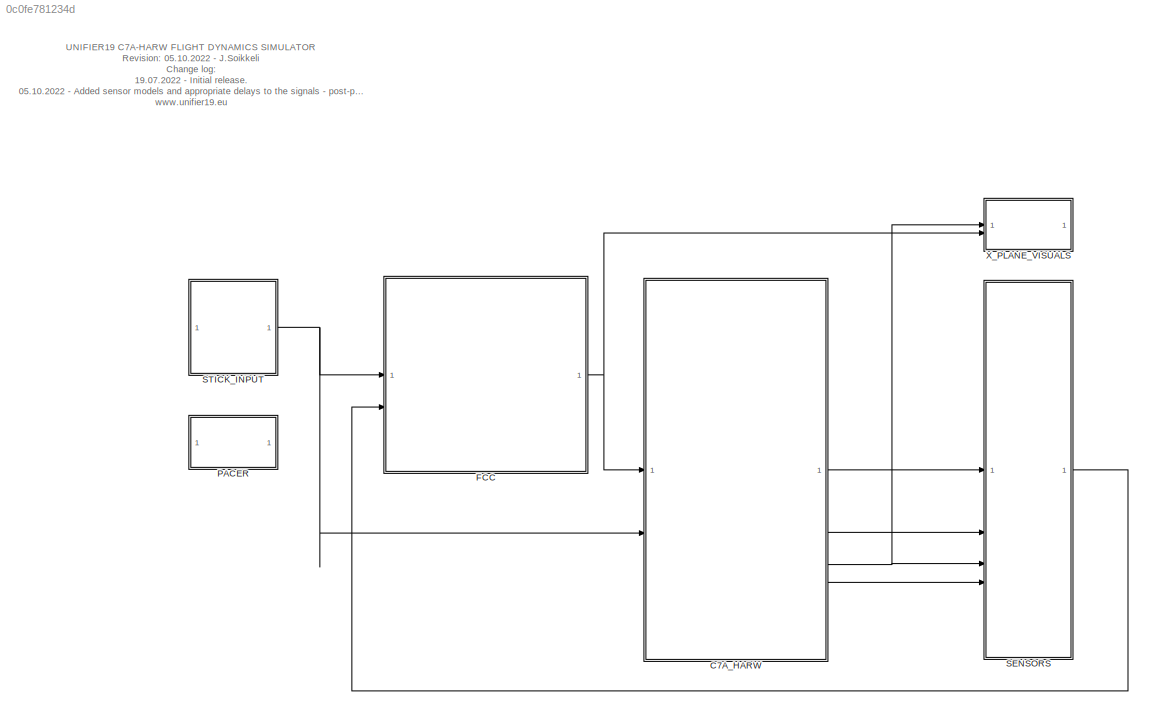
MODEL slx_0c0fe781234d
KIND model
CONFIG AbsTol = auto
CONFIG EnableMultiTasking = off
CONFIG FixedStep = 1/500
CONFIG MaxStep = auto
CONFIG MinStep = auto
CONFIG RelTol = 1e-3
CONFIG SampleTimeConstraint = Unconstrained
CONFIG SolverName = ode1
CONFIG StartTime = 0.0
CONFIG StopTime = 60
BLOCK [SubSystem] C7A_HARW
BLOCK [Delay] C7A_HARW/Actuator processing and transport delay 10 ms
  DelayLength = 5
  InitialCondition = repmat([u1_0,u2_0,u3_0,u4_0]',1,5)
  InputPortMap = u0
BLOCK [SubSystem] C7A_HARW/Aero
BLOCK [SubSystem] C7A_HARW/Aero/AlphaVtail
  TreatAsAtomicUnit = on
BLOCK [Reference] C7A_HARW/Aero/AlphaVtail/3x3 Cross Product  REF=sharedutil/3x3 Cross Product
  SourceBlock = sharedutil/3x3 Cross Product
  SourceType = CrossProduct
BLOCK [Trigonometry] C7A_HARW/Aero/AlphaVtail/Asin
  Operator = asin
BLOCK [Trigonometry] C7A_HARW/Aero/AlphaVtail/Atan
  Operator = atan
BLOCK [DataTypeConversion] C7A_HARW/Aero/AlphaVtail/Cast
  OutDataTypeStr = single
  RndMeth = Floor
  SaturateOnIntegerOverflow = off
BLOCK [Constant] C7A_HARW/Aero/AlphaVtail/Constant
  Value = xyz_cg
BLOCK [Constant] C7A_HARW/Aero/AlphaVtail/Constant1
  OutDataTypeStr = single
  Value = eps
BLOCK [Demux] C7A_HARW/Aero/AlphaVtail/Demux
  Outputs = 3
BLOCK [Product] C7A_HARW/Aero/AlphaVtail/Divide
  Inputs = */
BLOCK [Product] C7A_HARW/Aero/AlphaVtail/Divide1
  Inputs = */
BLOCK [ForEach] C7A_HARW/Aero/AlphaVtail/For Each
  DisableCoverage = on
  SpecifiedNumIters = 16
BLOCK [Mux] C7A_HARW/Aero/AlphaVtail/Mux
  DisplayOption = bar
  Inputs = 3
BLOCK [Sum] C7A_HARW/Aero/AlphaVtail/Sum
  IconShape = rectangular
  Inputs = +-
BLOCK [Sum] C7A_HARW/Aero/AlphaVtail/Sum1
  Inputs = ++|
BLOCK [Sum] C7A_HARW/Aero/AlphaVtail/Sum2
  Inputs = |++
BLOCK [Sum] C7A_HARW/Aero/AlphaVtail/Sum3
  Inputs = |++
BLOCK [Fcn] C7A_HARW/Aero/AlphaVtail/V_inf
  Expr = sqrt(u(1)^2+u(2)^2+u(3)^2)
BLOCK [Outport] C7A_HARW/Aero/AlphaVtail/V_nodes
  ConcatenationDimension = 2
  Port = 3
BLOCK [Inport] C7A_HARW/Aero/AlphaVtail/V_w (m//s)
BLOCK [Outport] C7A_HARW/Aero/AlphaVtail/alpha_nodes
  ConcatenationDimension = 2
BLOCK [Outport] C7A_HARW/Aero/AlphaVtail/beta_nodes
  ConcatenationDimension = 2
  Port = 2
BLOCK [Inport] C7A_HARW/Aero/AlphaVtail/omega_w (rad//s)
  Port = 2
BLOCK [Inport] C7A_HARW/Aero/AlphaVtail/xyz_nodes (m)
  Partition = on
  PartitionDimension = 2
  PartitionOffset = 0
  PartitionWidth = 1
  Port = 3
BLOCK [SubSystem] C7A_HARW/Aero/AlphaWIng
  TreatAsAtomicUnit = on
BLOCK [DataTypeConversion] C7A_HARW/Aero/AlphaWIng/Cast
  OutDataTypeStr = single
  RndMeth = Floor
  SaturateOnIntegerOverflow = off
BLOCK [SubSystem] C7A_HARW/Aero/AlphaWIng/ComputeAlphaBetaV
BLOCK [Trigonometry] C7A_HARW/Aero/AlphaWIng/ComputeAlphaBetaV/Asin
  Operator = asin
BLOCK [Trigonometry] C7A_HARW/Aero/AlphaWIng/ComputeAlphaBetaV/Atan
  Operator = atan
BLOCK [Constant] C7A_HARW/Aero/AlphaWIng/ComputeAlphaBetaV/Constant1
  OutDataTypeStr = single
  Value = eps
BLOCK [Demux] C7A_HARW/Aero/AlphaWIng/ComputeAlphaBetaV/Demux
  Outputs = 3
BLOCK [Product] C7A_HARW/Aero/AlphaWIng/ComputeAlphaBetaV/Divide
  Inputs = */
BLOCK [Product] C7A_HARW/Aero/AlphaWIng/ComputeAlphaBetaV/Divide1
  Inputs = */
BLOCK [DotProduct] C7A_HARW/Aero/AlphaWIng/ComputeAlphaBetaV/Dot Product
  OutDataTypeStr = Inherit: Inherit via internal rule
BLOCK [Sqrt] C7A_HARW/Aero/AlphaWIng/ComputeAlphaBetaV/Square Root
BLOCK [Sum] C7A_HARW/Aero/AlphaWIng/ComputeAlphaBetaV/Sum2
  Inputs = |++
BLOCK [Outport] C7A_HARW/Aero/AlphaWIng/ComputeAlphaBetaV/V_nodes
  Port = 3
BLOCK [Inport] C7A_HARW/Aero/AlphaWIng/ComputeAlphaBetaV/V_w_local
BLOCK [Outport] C7A_HARW/Aero/AlphaWIng/ComputeAlphaBetaV/alpha_nodes
BLOCK [Outport] C7A_HARW/Aero/AlphaWIng/ComputeAlphaBetaV/beta_nodes
  Port = 2
BLOCK [Constant] C7A_HARW/Aero/AlphaWIng/Constant
  Value = xyz_cg
BLOCK [Reference] C7A_HARW/Aero/AlphaWIng/Cross Product  REF=matrix_library/Cross Product
  SourceBlock = matrix_library/Cross Product
  SourceType = CrossProduct
BLOCK [ForEach] C7A_HARW/Aero/AlphaWIng/For Each
  DisableCoverage = on
  SpecifiedNumIters = 14
BLOCK [Sum] C7A_HARW/Aero/AlphaWIng/Sum
  IconShape = rectangular
  Inputs = +-
BLOCK [Sum] C7A_HARW/Aero/AlphaWIng/Sum1
  Inputs = ++|
BLOCK [Terminator] C7A_HARW/Aero/AlphaWIng/Terminator
BLOCK [Outport] C7A_HARW/Aero/AlphaWIng/V_nodes
  ConcatenationDimension = 2
  Port = 2
BLOCK [Inport] C7A_HARW/Aero/AlphaWIng/V_w (m//s)
BLOCK [Outport] C7A_HARW/Aero/AlphaWIng/alpha_nodes
  ConcatenationDimension = 2
BLOCK [Inport] C7A_HARW/Aero/AlphaWIng/omega_w (rad//s)
  Port = 2
BLOCK [Inport] C7A_HARW/Aero/AlphaWIng/xyz_nodes (m)
  Partition = on
  PartitionDimension = 2
  PartitionOffset = 0
  PartitionWidth = 1
  Port = 3
BLOCK [DataTypeConversion] C7A_HARW/Aero/Cast
  NameLocation = right
  OutDataTypeStr = double
  RndMeth = Floor
  SaturateOnIntegerOverflow = off
BLOCK [DataTypeConversion] C7A_HARW/Aero/Cast1
  NameLocation = right
  OutDataTypeStr = double
  RndMeth = Floor
  SaturateOnIntegerOverflow = off
BLOCK [Constant] C7A_HARW/Aero/Constant5
  Value = vtail_nodes
BLOCK [Inport] C7A_HARW/Aero/DEP_J
  LockScale = on
  OutDataTypeStr = single
  Port = 7
BLOCK [Demux] C7A_HARW/Aero/Demux
  Outputs = 3
BLOCK [Demux] C7A_HARW/Aero/Demux1
  Outputs = 3
BLOCK [Outport] C7A_HARW/Aero/F
  LockScale = on
  NameLocation = right
  PortDimensions = 3
  Unit = N
BLOCK [SubSystem] C7A_HARW/Aero/FinFuselageForces
BLOCK [Reference] C7A_HARW/Aero/FinFuselageForces/3x3 Cross Product  REF=sharedutil/3x3 Cross Product
  SourceBlock = sharedutil/3x3 Cross Product
  SourceType = CrossProduct
BLOCK [Constant] C7A_HARW/Aero/FinFuselageForces/CG
  Value = xyz_cg
BLOCK [DataTypeConversion] C7A_HARW/Aero/FinFuselageForces/Cast
  OutDataTypeStr = single
  RndMeth = Floor
  SaturateOnIntegerOverflow = off
BLOCK [DataTypeConversion] C7A_HARW/Aero/FinFuselageForces/Cast1
  OutDataTypeStr = single
  RndMeth = Floor
  SaturateOnIntegerOverflow = off
BLOCK [DataTypeConversion] C7A_HARW/Aero/FinFuselageForces/Cast2
  OutDataTypeStr = single
  RndMeth = Floor
  SaturateOnIntegerOverflow = off
BLOCK [DataTypeConversion] C7A_HARW/Aero/FinFuselageForces/Cast3
  OutDataTypeStr = double
  RndMeth = Floor
  SaturateOnIntegerOverflow = off
BLOCK [Constant] C7A_HARW/Aero/FinFuselageForces/Constant
  Value = [b,c,b]
BLOCK [Demux] C7A_HARW/Aero/FinFuselageForces/Demux
  Outputs = 3
BLOCK [Reference] C7A_HARW/Aero/FinFuselageForces/Direction Cosine Matrix Body to Wind  REF=aerolibtransform2/Direction Cosine Matrix
Body to Wind
  SourceBlock = aerolibtransform2/Direction Cosine Matrix\nBody to Wind
  SourceType = DCM Body to Wind
BLOCK [Outport] C7A_HARW/Aero/FinFuselageForces/F
BLOCK [From] C7A_HARW/Aero/FinFuselageForces/From
  GotoTag = rho
  TagVisibility = scoped
BLOCK [Gain] C7A_HARW/Aero/FinFuselageForces/Gain
  Gain = S/2
BLOCK [Gain] C7A_HARW/Aero/FinFuselageForces/Gain1
  Gain = S/2
BLOCK [Outport] C7A_HARW/Aero/FinFuselageForces/M
  Port = 2
BLOCK [Sum] C7A_HARW/Aero/FinFuselageForces/Minus
  IconShape = rectangular
  Inputs = +-
BLOCK [Mux] C7A_HARW/Aero/FinFuselageForces/Mux
  DisplayOption = bar
  Inputs = 3
BLOCK [Mux] C7A_HARW/Aero/FinFuselageForces/Mux1
  DisplayOption = bar
  Inputs = 3
BLOCK [Mux] C7A_HARW/Aero/FinFuselageForces/Mux2
  DisplayOption = bar
  Inputs = 2
BLOCK [Mux] C7A_HARW/Aero/FinFuselageForces/Mux3
  DisplayOption = bar
  Inputs = 3
BLOCK [Product] C7A_HARW/Aero/FinFuselageForces/Product1
  Multiplication = Matrix(*)
BLOCK [Product] C7A_HARW/Aero/FinFuselageForces/Product2
BLOCK [Product] C7A_HARW/Aero/FinFuselageForces/Product3
BLOCK [Product] C7A_HARW/Aero/FinFuselageForces/Product4
BLOCK [Product] C7A_HARW/Aero/FinFuselageForces/Product5
BLOCK [Product] C7A_HARW/Aero/FinFuselageForces/Product6
BLOCK [Math] C7A_HARW/Aero/FinFuselageForces/Square
  Operator = square
BLOCK [SubSystem] C7A_HARW/Aero/FinFuselageForces/Subsystem1
BLOCK [Outport] C7A_HARW/Aero/FinFuselageForces/Subsystem1/CMx
  Port = 4
BLOCK [Outport] C7A_HARW/Aero/FinFuselageForces/Subsystem1/CMy
  Port = 5
BLOCK [Outport] C7A_HARW/Aero/FinFuselageForces/Subsystem1/CMz
  Port = 6
BLOCK [Outport] C7A_HARW/Aero/FinFuselageForces/Subsystem1/Cd
BLOCK [Outport] C7A_HARW/Aero/FinFuselageForces/Subsystem1/Cl
  Port = 3
BLOCK [Constant] C7A_HARW/Aero/FinFuselageForces/Subsystem1/Constant
  OutDataTypeStr = single
  Value = 0
BLOCK [Outport] C7A_HARW/Aero/FinFuselageForces/Subsystem1/Cs
  Port = 2
BLOCK [Interpolation_n-D] C7A_HARW/Aero/FinFuselageForces/Subsystem1/Interpolation Using Prelookup
  InputPortMap = u0,u1,u2,u3
  IntermediateResultsDataTypeStr = Inherit: Inherit via internal rule
  InternalRulePriority = Speed
  Table = dp_FUSE_FIN.CD
  TableDataTypeStr = single
BLOCK [Interpolation_n-D] C7A_HARW/Aero/FinFuselageForces/Subsystem1/Interpolation Using Prelookup1
  InputPortMap = u0,u1,u2,u3
  IntermediateResultsDataTypeStr = Inherit: Inherit via internal rule
  InternalRulePriority = Speed
  Table = dp_FUSE_FIN.CS
BLOCK [Interpolation_n-D] C7A_HARW/Aero/FinFuselageForces/Subsystem1/Interpolation Using Prelookup3
  InputPortMap = u0,u1,u2,u3
  IntermediateResultsDataTypeStr = Inherit: Inherit via internal rule
  InternalRulePriority = Speed
  Table = dp_FUSE_FIN.CMx
BLOCK [Interpolation_n-D] C7A_HARW/Aero/FinFuselageForces/Subsystem1/Interpolation Using Prelookup4
  InputPortMap = u0,u1,u2,u3
  IntermediateResultsDataTypeStr = Inherit: Inherit via internal rule
  InternalRulePriority = Speed
  Table = dp_FUSE_FIN.CMy
BLOCK [Interpolation_n-D] C7A_HARW/Aero/FinFuselageForces/Subsystem1/Interpolation Using Prelookup5
  InputPortMap = u0,u1,u2,u3
  IntermediateResultsDataTypeStr = Inherit: Inherit via internal rule
  InternalRulePriority = Speed
  Table = dp_FUSE_FIN.CMz
BLOCK [SubSystem] C7A_HARW/Aero/FinFuselageForces/Subsystem1/Subsystem
  NameLocation = left
BLOCK [Outport] C7A_HARW/Aero/FinFuselageForces/Subsystem1/Subsystem/Out1
BLOCK [Outport] C7A_HARW/Aero/FinFuselageForces/Subsystem1/Subsystem/Out2
  Port = 2
BLOCK [Outport] C7A_HARW/Aero/FinFuselageForces/Subsystem1/Subsystem/Out3
  Port = 3
BLOCK [Outport] C7A_HARW/Aero/FinFuselageForces/Subsystem1/Subsystem/Out4
  Port = 4
BLOCK [PreLookup] C7A_HARW/Aero/FinFuselageForces/Subsystem1/Subsystem/Prelookup
  BeginIndexSearchUsingPreviousIndexResult = on
  BreakpointsData = dp_FUSE_FIN.beta
  ExtrapMethod = Linear
  IndexSearchMethod = Linear search
  InputPortMap = u0
BLOCK [PreLookup] C7A_HARW/Aero/FinFuselageForces/Subsystem1/Subsystem/Prelookup1
  BeginIndexSearchUsingPreviousIndexResult = on
  BreakpointsData = dp_FUSE_FIN.aoa
  ExtrapMethod = Linear
  IndexSearchMethod = Linear search
  InputPortMap = u0
BLOCK [Inport] C7A_HARW/Aero/FinFuselageForces/Subsystem1/Subsystem/alpha
  Port = 2
BLOCK [Inport] C7A_HARW/Aero/FinFuselageForces/Subsystem1/Subsystem/beta
BLOCK [Inport] C7A_HARW/Aero/FinFuselageForces/Subsystem1/alpha
  Port = 2
BLOCK [Inport] C7A_HARW/Aero/FinFuselageForces/Subsystem1/beta
BLOCK [Sum] C7A_HARW/Aero/FinFuselageForces/Sum
  Inputs = ++|
BLOCK [Math] C7A_HARW/Aero/FinFuselageForces/Transpose
  Operator = transpose
BLOCK [UnaryMinus] C7A_HARW/Aero/FinFuselageForces/Unary Minus
BLOCK [UnaryMinus] C7A_HARW/Aero/FinFuselageForces/Unary Minus1
BLOCK [Inport] C7A_HARW/Aero/FinFuselageForces/Vrw_mag
  OutDataTypeStr = single
  Port = 3
BLOCK [Inport] C7A_HARW/Aero/FinFuselageForces/alpha
  Port = 2
BLOCK [Inport] C7A_HARW/Aero/FinFuselageForces/beta
BLOCK [Constant] C7A_HARW/Aero/FinFuselageForces/ref_point
  NameLocation = top
  Value = dp_FUSE_FIN.ref_CG
BLOCK [From] C7A_HARW/Aero/From
  GotoTag = rudeL
BLOCK [From] C7A_HARW/Aero/From1
  GotoTag = rudeR
BLOCK [From] C7A_HARW/Aero/From2
  GotoTag = rho
  TagVisibility = scoped
BLOCK [Goto] C7A_HARW/Aero/Goto
  GotoTag = rudeL
BLOCK [GotoTagVisibility] C7A_HARW/Aero/Goto Tag Visibility
  GotoTag = rho
BLOCK [Goto] C7A_HARW/Aero/Goto1
  GotoTag = rho
  TagVisibility = scoped
BLOCK [Goto] C7A_HARW/Aero/Goto2
  GotoTag = rudeR
BLOCK [SubSystem] C7A_HARW/Aero/InducedAngleOfAttack
BLOCK [Lookup_n-D] C7A_HARW/Aero/InducedAngleOfAttack/1-D Lookup Table
  BeginIndexSearchUsingPreviousIndexResult = on
  BreakpointsForDimension1 = wing_nodes(2,5:10)
  ExtrapMethod = Clip
  InputPortMap = u0,p221
  InternalRulePriority = Speed
  NumberOfTableDimensions = 1
  RndMeth = Simplest
  Table = tanh([-5:5])
  TableSource = Input port
BLOCK [Lookup_n-D] C7A_HARW/Aero/InducedAngleOfAttack/1-D Lookup Table1
  BeginIndexSearchUsingPreviousIndexResult = on
  BreakpointsForDimension1 = wing_nodes(2,5:10)
  ExtrapMethod = Clip
  InputPortMap = u0,p221
  InternalRulePriority = Speed
  NumberOfTableDimensions = 1
  RndMeth = Simplest
  Table = tanh([-5:5])
  TableSource = Input port
BLOCK [Lookup_n-D] C7A_HARW/Aero/InducedAngleOfAttack/1-D Lookup Table2
  BeginIndexSearchUsingPreviousIndexResult = on
  BreakpointsForDimension1 = wing_nodes(2,5:10)
  ExtrapMethod = Clip
  InputPortMap = u0,p221
  InternalRulePriority = Speed
  NumberOfTableDimensions = 1
  RndMeth = Simplest
  Table = tanh([-5:5])
  TableSource = Input port
BLOCK [Constant] C7A_HARW/Aero/InducedAngleOfAttack/Constant
  Value = ones(1,8)
BLOCK [Constant] C7A_HARW/Aero/InducedAngleOfAttack/Constant1
  Value = ones(1,8)
BLOCK [Constant] C7A_HARW/Aero/InducedAngleOfAttack/Constant7
  Value = vtail_nodes(2,:)
BLOCK [Mux] C7A_HARW/Aero/InducedAngleOfAttack/Mux
  DisplayOption = bar
  Inputs = 2
BLOCK [Product] C7A_HARW/Aero/InducedAngleOfAttack/Product
BLOCK [Product] C7A_HARW/Aero/InducedAngleOfAttack/Product1
BLOCK [Selector] C7A_HARW/Aero/InducedAngleOfAttack/Selector
  IndexOptions = Index vector (dialog)
  Indices = [5:10]
  InputPortWidth = 14
  OutputSizes = 1
BLOCK [Selector] C7A_HARW/Aero/InducedAngleOfAttack/Selector1
  IndexOptions = Index vector (dialog)
  Indices = [5:10]
  InputPortWidth = 14
  OutputSizes = 1
BLOCK [Selector] C7A_HARW/Aero/InducedAngleOfAttack/Selector2
  IndexOptions = Index vector (dialog)
  Indices = [4:9]
  InputPortWidth = 12
  OutputSizes = 1
BLOCK [Interpolation_n-D] C7A_HARW/Aero/InducedAngleOfAttack/V_induced
  InputPortMap = u0,u1,u2,u3,u4,u5,u6,u7,u8
  IntermediateResultsDataTypeStr = Inherit: Inherit via internal rule
  InternalRulePriority = Speed
  NameLocation = right
  NumSelectionDims = 1
  NumberOfTableDimensions = 5
  Table = dp_VTAIL_INDUCED.V_induced
  TableDataTypeStr = Inherit: Inherit from 'Table data'
BLOCK [SubSystem] C7A_HARW/Aero/InducedAngleOfAttack/addDelay
BLOCK [DataTypeConversion] C7A_HARW/Aero/InducedAngleOfAttack/addDelay/Cast
  OutDataTypeStr = double
  RndMeth = Floor
  SaturateOnIntegerOverflow = off
BLOCK [DataTypeConversion] C7A_HARW/Aero/InducedAngleOfAttack/addDelay/Cast1
  OutDataTypeStr = double
  RndMeth = Floor
  SaturateOnIntegerOverflow = off
BLOCK [DataTypeConversion] C7A_HARW/Aero/InducedAngleOfAttack/addDelay/Cast2
  OutDataTypeStr = double
  RndMeth = Floor
  SaturateOnIntegerOverflow = off
BLOCK [DataTypeConversion] C7A_HARW/Aero/InducedAngleOfAttack/addDelay/Cast3
  OutDataTypeStr = double
  RndMeth = Floor
  SaturateOnIntegerOverflow = off
BLOCK [DataTypeConversion] C7A_HARW/Aero/InducedAngleOfAttack/addDelay/Cast4
  OutDataTypeStr = single
  RndMeth = Floor
  SaturateOnIntegerOverflow = off
BLOCK [DataTypeConversion] C7A_HARW/Aero/InducedAngleOfAttack/addDelay/Cast5
  OutDataTypeStr = single
  RndMeth = Floor
  SaturateOnIntegerOverflow = off
BLOCK [Constant] C7A_HARW/Aero/InducedAngleOfAttack/addDelay/Constant2
  Value = vtail_dist_to_wing
BLOCK [Product] C7A_HARW/Aero/InducedAngleOfAttack/addDelay/Divide
  Inputs = */
BLOCK [Saturate] C7A_HARW/Aero/InducedAngleOfAttack/addDelay/Saturation
  LowerLimit = 10
  UpperLimit = inf
BLOCK [Step] C7A_HARW/Aero/InducedAngleOfAttack/addDelay/Step
  SampleTime = 0
BLOCK [Step] C7A_HARW/Aero/InducedAngleOfAttack/addDelay/Step1
  SampleTime = 0
BLOCK [Sum] C7A_HARW/Aero/InducedAngleOfAttack/addDelay/Sum
  Inputs = |++
BLOCK [Switch] C7A_HARW/Aero/InducedAngleOfAttack/addDelay/Switch
  Criteria = u2 > Threshold
  InputSameDT = off
  SaturateOnIntegerOverflow = off
BLOCK [Switch] C7A_HARW/Aero/InducedAngleOfAttack/addDelay/Switch1
  Criteria = u2 > Threshold
  InputSameDT = off
  SaturateOnIntegerOverflow = off
BLOCK [Outport] C7A_HARW/Aero/InducedAngleOfAttack/addDelay/V_delayed
BLOCK [Inport] C7A_HARW/Aero/InducedAngleOfAttack/addDelay/V_induced
BLOCK [VariableTransportDelay] C7A_HARW/Aero/InducedAngleOfAttack/addDelay/Variable Transport Delay
  MaximumDelay = 10
  MaximumPoints = 5072
  TransDelayFeedthrough = on
  ZeroDelay = on
BLOCK [VariableTransportDelay] C7A_HARW/Aero/InducedAngleOfAttack/addDelay/Variable Transport Delay1
  MaximumDelay = 10
  MaximumPoints = 5072
  TransDelayFeedthrough = on
  ZeroDelay = on
BLOCK [Outport] C7A_HARW/Aero/InducedAngleOfAttack/addDelay/alpha_delayed
  Port = 2
BLOCK [Inport] C7A_HARW/Aero/InducedAngleOfAttack/addDelay/alpha_induced
  Port = 2
BLOCK [Inport] C7A_HARW/Aero/InducedAngleOfAttack/addDelay/vtail_V_nodes
  Port = 3
BLOCK [Interpolation_n-D] C7A_HARW/Aero/InducedAngleOfAttack/alpha_induced
  InputPortMap = u0,u1,u2,u3,u4,u5,u6,u7,u8
  IntermediateResultsDataTypeStr = Inherit: Inherit via internal rule
  InternalRulePriority = Speed
  NameLocation = right
  NumSelectionDims = 1
  NumberOfTableDimensions = 5
  Table = dp_VTAIL_INDUCED.alpha_induced
  TableDataTypeStr = Inherit: Inherit from 'Table data'
BLOCK [Inport] C7A_HARW/Aero/InducedAngleOfAttack/flapL_defl
BLOCK [Inport] C7A_HARW/Aero/InducedAngleOfAttack/flapR_defl
  Port = 2
BLOCK [SubSystem] C7A_HARW/Aero/InducedAngleOfAttack/preLook
BLOCK [Constant] C7A_HARW/Aero/InducedAngleOfAttack/preLook/Constant8
  Value = 0:15
BLOCK [Outport] C7A_HARW/Aero/InducedAngleOfAttack/preLook/Out1
BLOCK [Outport] C7A_HARW/Aero/InducedAngleOfAttack/preLook/Out2
  Port = 2
BLOCK [Outport] C7A_HARW/Aero/InducedAngleOfAttack/preLook/Out3
  Port = 5
BLOCK [Outport] C7A_HARW/Aero/InducedAngleOfAttack/preLook/Out4
  Port = 6
BLOCK [Outport] C7A_HARW/Aero/InducedAngleOfAttack/preLook/Out5
  Port = 9
BLOCK [Outport] C7A_HARW/Aero/InducedAngleOfAttack/preLook/Out6
  Port = 7
BLOCK [Outport] C7A_HARW/Aero/InducedAngleOfAttack/preLook/Out7
  Port = 8
BLOCK [Outport] C7A_HARW/Aero/InducedAngleOfAttack/preLook/Out8
  Port = 3
BLOCK [Outport] C7A_HARW/Aero/InducedAngleOfAttack/preLook/Out9
  Port = 4
BLOCK [PreLookup] C7A_HARW/Aero/InducedAngleOfAttack/preLook/Prelookup
  BeginIndexSearchUsingPreviousIndexResult = on
  BreakpointsData = dp_VTAIL_INDUCED.flap_defl
  ExtrapMethod = Linear
  IndexSearchMethod = Linear search
  InputPortMap = u0
BLOCK [PreLookup] C7A_HARW/Aero/InducedAngleOfAttack/preLook/Prelookup1
  BeginIndexSearchUsingPreviousIndexResult = on
  BreakpointsData = dp_VTAIL_INDUCED.V_infs
  ExtrapMethod = Linear
  IndexSearchMethod = Linear search
  InputPortMap = u0
BLOCK [PreLookup] C7A_HARW/Aero/InducedAngleOfAttack/preLook/Prelookup2
  BeginIndexSearchUsingPreviousIndexResult = on
  BreakpointsData = dp_VTAIL_INDUCED.alphas
  ExtrapMethod = Linear
  IndexSearchMethod = Linear search
  InputPortMap = u0
BLOCK [PreLookup] C7A_HARW/Aero/InducedAngleOfAttack/preLook/Prelookup3
  BeginIndexSearchUsingPreviousIndexResult = on
  BreakpointsData = dp_VTAIL_INDUCED.DEP_J
  IndexSearchMethod = Linear search
  InputPortMap = u0
BLOCK [Inport] C7A_HARW/Aero/InducedAngleOfAttack/preLook/wing_DEP_J
  Port = 4
BLOCK [Inport] C7A_HARW/Aero/InducedAngleOfAttack/preLook/wing_V_inf
  Port = 3
BLOCK [Inport] C7A_HARW/Aero/InducedAngleOfAttack/preLook/wing_alphas
  Port = 2
BLOCK [Inport] C7A_HARW/Aero/InducedAngleOfAttack/preLook/wing_flap_defl
BLOCK [Outport] C7A_HARW/Aero/InducedAngleOfAttack/vtail_V_induced_nodes
  Port = 2
  PortDimensions = 16
BLOCK [Inport] C7A_HARW/Aero/InducedAngleOfAttack/vtail_V_nodes
  Port = 6
BLOCK [Outport] C7A_HARW/Aero/InducedAngleOfAttack/vtail_alpha_induced_nodes
  PortDimensions = 16
BLOCK [Inport] C7A_HARW/Aero/InducedAngleOfAttack/wing_DEP_J
  Port = 5
  PortDimensions = 12
BLOCK [Inport] C7A_HARW/Aero/InducedAngleOfAttack/wing_V_nodes
  Port = 4
  PortDimensions = 14
BLOCK [Inport] C7A_HARW/Aero/InducedAngleOfAttack/wing_alpha_nodes
  Port = 3
  PortDimensions = 14
BLOCK [Outport] C7A_HARW/Aero/M
  LockScale = on
  NameLocation = right
  Port = 2
  PortDimensions = 3
  Unit = N*m
BLOCK [Constant] C7A_HARW/Aero/NodePoints
  Value = wing_nodes
BLOCK [Selector] C7A_HARW/Aero/Selector
  IndexOptions = Index vector (dialog)
  Indices = 1
  InputPortWidth = 6
  OutputSizes = 1
BLOCK [Selector] C7A_HARW/Aero/Selector1
  IndexOptions = Index vector (dialog)
  Indices = 2
  InputPortWidth = 6
  OutputSizes = 1
BLOCK [Selector] C7A_HARW/Aero/Selector2
  IndexOptions = Index vector (dialog)
  Indices = 3
  InputPortWidth = 6
  OutputSizes = 1
BLOCK [Selector] C7A_HARW/Aero/Selector3
  IndexOptions = Index vector (dialog)
  Indices = 4
  InputPortWidth = 6
  OutputSizes = 1
BLOCK [Selector] C7A_HARW/Aero/Selector4
  IndexOptions = Index vector (dialog)
  Indices = 5
  InputPortWidth = 6
  OutputSizes = 1
BLOCK [Selector] C7A_HARW/Aero/Selector5
  IndexOptions = Index vector (dialog)
  Indices = 6
  InputPortWidth = 6
  OutputSizes = 1
BLOCK [Sum] C7A_HARW/Aero/Sum
  Inputs = ++|
BLOCK [Sum] C7A_HARW/Aero/Sum1
  IconShape = rectangular
  Inputs = ++++
  NameLocation = right
BLOCK [Sum] C7A_HARW/Aero/Sum2
  IconShape = rectangular
  Inputs = +++
  NameLocation = right
BLOCK [Sum] C7A_HARW/Aero/Sum3
  Inputs = ++|
BLOCK [ToWorkspace] C7A_HARW/Aero/To Workspace
  FixptAsFi = on
  MaxDataPoints = inf
  SampleTime = 1/100
  SaveFormat = Structure With Time
  VariableName = u1
BLOCK [ToWorkspace] C7A_HARW/Aero/To Workspace1
  FixptAsFi = on
  MaxDataPoints = inf
  SampleTime = 1/100
  SaveFormat = Structure With Time
  VariableName = vtail_alpha
BLOCK [ToWorkspace] C7A_HARW/Aero/To Workspace2
  FixptAsFi = on
  MaxDataPoints = inf
  SampleTime = 1/100
  SaveFormat = Structure With Time
  VariableName = vtail_V_induced
BLOCK [ToWorkspace] C7A_HARW/Aero/To Workspace3
  FixptAsFi = on
  MaxDataPoints = inf
  SampleTime = 1/100
  SaveFormat = Structure With Time
  VariableName = vtail_beta
BLOCK [ToWorkspace] C7A_HARW/Aero/To Workspace4
  FixptAsFi = on
  MaxDataPoints = inf
  SampleTime = 1/100
  SaveFormat = Structure With Time
  VariableName = wing_alpha
BLOCK [Inport] C7A_HARW/Aero/V_rw_mag_tas
  OutDataTypeStr = single
  Port = 3
BLOCK [Inport] C7A_HARW/Aero/V_rw_tas
  LockScale = on
  OutDataTypeStr = single
  PortDimensions = 3
  Unit = m/s
BLOCK [SubSystem] C7A_HARW/Aero/VtailForces
BLOCK [Constant] C7A_HARW/Aero/VtailForces/Constant
  Value = ones(1,8)
BLOCK [Constant] C7A_HARW/Aero/VtailForces/Constant1
  Value = ones(1,8)
BLOCK [Outport] C7A_HARW/Aero/VtailForces/F
BLOCK [Outport] C7A_HARW/Aero/VtailForces/M
  Port = 2
BLOCK [Concatenate] C7A_HARW/Aero/VtailForces/Matrix Concatenate1
  ConcatenateDimension = 2
  Mode = Multidimensional array
  NameLocation = right
  NumInputs = 3
BLOCK [Concatenate] C7A_HARW/Aero/VtailForces/Matrix Concatenate2
  ConcatenateDimension = 2
  Mode = Multidimensional array
  NameLocation = right
  NumInputs = 3
BLOCK [Mux] C7A_HARW/Aero/VtailForces/Mux
  DisplayOption = bar
  Inputs = 2
BLOCK [Product] C7A_HARW/Aero/VtailForces/Product
BLOCK [Product] C7A_HARW/Aero/VtailForces/Product1
BLOCK [Reshape] C7A_HARW/Aero/VtailForces/Reshape
BLOCK [Reshape] C7A_HARW/Aero/VtailForces/Reshape1
BLOCK [SubSystem] C7A_HARW/Aero/VtailForces/Subsystem
BLOCK [DataTypeConversion] C7A_HARW/Aero/VtailForces/Subsystem/Cast To Double1
  OutDataTypeStr = single
  RndMeth = Floor
  SaturateOnIntegerOverflow = off
BLOCK [DataTypeConversion] C7A_HARW/Aero/VtailForces/Subsystem/Cast To Double2
  OutDataTypeStr = double
  RndMeth = Floor
  SaturateOnIntegerOverflow = off
BLOCK [DataTypeConversion] C7A_HARW/Aero/VtailForces/Subsystem/Cast To Double3
  OutDataTypeStr = double
  RndMeth = Floor
  SaturateOnIntegerOverflow = off
BLOCK [DataTypeConversion] C7A_HARW/Aero/VtailForces/Subsystem/Cast To Double4
  OutDataTypeStr = single
  RndMeth = Floor
  SaturateOnIntegerOverflow = off
BLOCK [Constant] C7A_HARW/Aero/VtailForces/Subsystem/Constant1
  OutDataTypeStr = single
  Value = repmat([b;c;b],1,16)
  VectorParams1D = off
BLOCK [SubSystem] C7A_HARW/Aero/VtailForces/Subsystem/CrossProduct1
  TreatAsAtomicUnit = on
BLOCK [Reference] C7A_HARW/Aero/VtailForces/Subsystem/CrossProduct1/3x3 Cross Product  REF=sharedutil/3x3 Cross Product
  SourceBlock = sharedutil/3x3 Cross Product
  SourceType = CrossProduct
BLOCK [Constant] C7A_HARW/Aero/VtailForces/Subsystem/CrossProduct1/CG
  Value = xyz_cg
BLOCK [DataTypeConversion] C7A_HARW/Aero/VtailForces/Subsystem/CrossProduct1/Cast
  OutDataTypeStr = single
  RndMeth = Floor
  SaturateOnIntegerOverflow = off
BLOCK [Inport] C7A_HARW/Aero/VtailForces/Subsystem/CrossProduct1/F
  Partition = on
  PartitionDimension = 2
  PartitionOffset = 0
  PartitionWidth = 1
  Port = 2
BLOCK [ForEach] C7A_HARW/Aero/VtailForces/Subsystem/CrossProduct1/For Each
  DisableCoverage = on
  SpecifiedNumIters = 16
BLOCK [Outport] C7A_HARW/Aero/VtailForces/Subsystem/CrossProduct1/M
  ConcatenationDimension = 2
BLOCK [Sum] C7A_HARW/Aero/VtailForces/Subsystem/CrossProduct1/Minus
  IconShape = rectangular
  Inputs = +-
BLOCK [Inport] C7A_HARW/Aero/VtailForces/Subsystem/CrossProduct1/r
  Partition = on
  PartitionDimension = 2
  PartitionOffset = 0
  PartitionWidth = 1
BLOCK [Outport] C7A_HARW/Aero/VtailForces/Subsystem/F
BLOCK [Inport] C7A_HARW/Aero/VtailForces/Subsystem/F_matrix
  Port = 2
BLOCK [From] C7A_HARW/Aero/VtailForces/Subsystem/From1
  GotoTag = rho
  TagVisibility = scoped
BLOCK [Gain] C7A_HARW/Aero/VtailForces/Subsystem/Gain2
  Gain = S/2
BLOCK [Gain] C7A_HARW/Aero/VtailForces/Subsystem/Gain3
  Gain = S/2
BLOCK [Outport] C7A_HARW/Aero/VtailForces/Subsystem/M
  Port = 2
BLOCK [Inport] C7A_HARW/Aero/VtailForces/Subsystem/M_matrix
  Port = 3
BLOCK [Concatenate] C7A_HARW/Aero/VtailForces/Subsystem/Matrix Concatenate2
  ConcatenateDimension = 2
  Mode = Multidimensional array
  NumInputs = 3
BLOCK [Constant] C7A_HARW/Aero/VtailForces/Subsystem/NodePoints1
  Value = vtail_nodes
BLOCK [Product] C7A_HARW/Aero/VtailForces/Subsystem/Product
BLOCK [Product] C7A_HARW/Aero/VtailForces/Subsystem/Product1
BLOCK [Product] C7A_HARW/Aero/VtailForces/Subsystem/Product7
BLOCK [Product] C7A_HARW/Aero/VtailForces/Subsystem/Product8
BLOCK [Product] C7A_HARW/Aero/VtailForces/Subsystem/Product9
BLOCK [Math] C7A_HARW/Aero/VtailForces/Subsystem/Square1
  Operator = square
BLOCK [Sum] C7A_HARW/Aero/VtailForces/Subsystem/Sum
  Inputs = ++|
BLOCK [Sum] C7A_HARW/Aero/VtailForces/Subsystem/Sum of Elements1
  CollapseDim = 2
  CollapseMode = Specified dimension
  IconShape = rectangular
  Inputs = +
BLOCK [Sum] C7A_HARW/Aero/VtailForces/Subsystem/Sum of Elements2
  CollapseDim = 2
  CollapseMode = Specified dimension
  IconShape = rectangular
  Inputs = +
BLOCK [ToWorkspace] C7A_HARW/Aero/VtailForces/Subsystem/To Workspace
  FixptAsFi = on
  MaxDataPoints = inf
  SampleTime = 1/100
  SaveFormat = Structure With Time
  VariableName = vtail_F
BLOCK [Math] C7A_HARW/Aero/VtailForces/Subsystem/Transpose1
  Operator = transpose
BLOCK [Inport] C7A_HARW/Aero/VtailForces/Subsystem/V_nodes
BLOCK [Math] C7A_HARW/Aero/VtailForces/Transpose
  NameLocation = right
  Operator = transpose
BLOCK [Math] C7A_HARW/Aero/VtailForces/Transpose1
  NameLocation = right
  Operator = transpose
BLOCK [Inport] C7A_HARW/Aero/VtailForces/V_nodes
  Port = 3
  PortDimensions = 16
BLOCK [SubSystem] C7A_HARW/Aero/VtailForces/VtailForces
BLOCK [Outport] C7A_HARW/Aero/VtailForces/VtailForces/CMx
  Port = 4
BLOCK [Outport] C7A_HARW/Aero/VtailForces/VtailForces/CMy
  Port = 5
BLOCK [Outport] C7A_HARW/Aero/VtailForces/VtailForces/CMz
  Port = 6
BLOCK [Outport] C7A_HARW/Aero/VtailForces/VtailForces/Cx
BLOCK [Outport] C7A_HARW/Aero/VtailForces/VtailForces/Cy
  Port = 2
BLOCK [Outport] C7A_HARW/Aero/VtailForces/VtailForces/Cz
  Port = 3
BLOCK [Interpolation_n-D] C7A_HARW/Aero/VtailForces/VtailForces/Interpolation Using Prelookup1
  InputPortMap = u0,u1,u2,u3,u4,u5,u6
  IntermediateResultsDataTypeStr = Inherit: Inherit via internal rule
  InternalRulePriority = Speed
  NumSelectionDims = 1
  NumberOfTableDimensions = 4
  Table = dp_VTAIL.CFx
  TableDataTypeStr = Inherit: Inherit from 'Table data'
BLOCK [Interpolation_n-D] C7A_HARW/Aero/VtailForces/VtailForces/Interpolation Using Prelookup2
  InputPortMap = u0,u1,u2,u3,u4,u5,u6
  IntermediateResultsDataTypeStr = Inherit: Inherit via internal rule
  InternalRulePriority = Speed
  NumSelectionDims = 1
  NumberOfTableDimensions = 4
  Table = dp_VTAIL.CFy
  TableDataTypeStr = Inherit: Inherit from 'Table data'
BLOCK [Interpolation_n-D] C7A_HARW/Aero/VtailForces/VtailForces/Interpolation Using Prelookup3
  InputPortMap = u0,u1,u2,u3,u4,u5,u6
  IntermediateResultsDataTypeStr = Inherit: Inherit via internal rule
  InternalRulePriority = Speed
  NumSelectionDims = 1
  NumberOfTableDimensions = 4
  Table = dp_VTAIL.CFz
  TableDataTypeStr = Inherit: Inherit from 'Table data'
BLOCK [Interpolation_n-D] C7A_HARW/Aero/VtailForces/VtailForces/Interpolation Using Prelookup4
  InputPortMap = u0,u1,u2,u3,u4,u5,u6
  IntermediateResultsDataTypeStr = Inherit: Inherit via internal rule
  InternalRulePriority = Speed
  NumSelectionDims = 1
  NumberOfTableDimensions = 4
  Table = dp_VTAIL.CMx
  TableDataTypeStr = Inherit: Inherit from 'Table data'
BLOCK [Interpolation_n-D] C7A_HARW/Aero/VtailForces/VtailForces/Interpolation Using Prelookup5
  InputPortMap = u0,u1,u2,u3,u4,u5,u6
  IntermediateResultsDataTypeStr = Inherit: Inherit via internal rule
  InternalRulePriority = Speed
  NumSelectionDims = 1
  NumberOfTableDimensions = 4
  Table = dp_VTAIL.CMy
  TableDataTypeStr = Inherit: Inherit from 'Table data'
BLOCK [Interpolation_n-D] C7A_HARW/Aero/VtailForces/VtailForces/Interpolation Using Prelookup6
  InputPortMap = u0,u1,u2,u3,u4,u5,u6
  IntermediateResultsDataTypeStr = Inherit: Inherit via internal rule
  InternalRulePriority = Speed
  NumSelectionDims = 1
  NumberOfTableDimensions = 4
  Table = dp_VTAIL.CMz
  TableDataTypeStr = Inherit: Inherit from 'Table data'
BLOCK [SubSystem] C7A_HARW/Aero/VtailForces/VtailForces/WingRootPreLookup
  NameLocation = right
BLOCK [Constant] C7A_HARW/Aero/VtailForces/VtailForces/WingRootPreLookup/Constant8
  Value = 0:15
BLOCK [Outport] C7A_HARW/Aero/VtailForces/VtailForces/WingRootPreLookup/Out1
BLOCK [Outport] C7A_HARW/Aero/VtailForces/VtailForces/WingRootPreLookup/Out2
  Port = 2
BLOCK [Outport] C7A_HARW/Aero/VtailForces/VtailForces/WingRootPreLookup/Out3
  Port = 3
BLOCK [Outport] C7A_HARW/Aero/VtailForces/VtailForces/WingRootPreLookup/Out4
  Port = 4
BLOCK [Outport] C7A_HARW/Aero/VtailForces/VtailForces/WingRootPreLookup/Out5
  Port = 7
BLOCK [Outport] C7A_HARW/Aero/VtailForces/VtailForces/WingRootPreLookup/Out6
  Port = 5
BLOCK [Outport] C7A_HARW/Aero/VtailForces/VtailForces/WingRootPreLookup/Out7
  Port = 6
BLOCK [PreLookup] C7A_HARW/Aero/VtailForces/VtailForces/WingRootPreLookup/Prelookup
  BeginIndexSearchUsingPreviousIndexResult = on
  BreakpointsData = dp_VTAIL.rude_defl
  ExtrapMethod = Linear
  IndexSearchMethod = Linear search
  InputPortMap = u0
BLOCK [PreLookup] C7A_HARW/Aero/VtailForces/VtailForces/WingRootPreLookup/Prelookup1
  BeginIndexSearchUsingPreviousIndexResult = on
  BreakpointsData = dp_VTAIL.alphas
  ExtrapMethod = Linear
  IndexSearchMethod = Linear search
  InputPortMap = u0
BLOCK [PreLookup] C7A_HARW/Aero/VtailForces/VtailForces/WingRootPreLookup/Prelookup2
  BeginIndexSearchUsingPreviousIndexResult = on
  BreakpointsData = dp_VTAIL.betas
  ExtrapMethod = Linear
  IndexSearchMethod = Linear search
  InputPortMap = u0
BLOCK [Inport] C7A_HARW/Aero/VtailForces/VtailForces/WingRootPreLookup/alpha_nodes
  Port = 2
BLOCK [Inport] C7A_HARW/Aero/VtailForces/VtailForces/WingRootPreLookup/beta_nodes
  Port = 3
BLOCK [Inport] C7A_HARW/Aero/VtailForces/VtailForces/WingRootPreLookup/rude_defl_nodes
BLOCK [Inport] C7A_HARW/Aero/VtailForces/VtailForces/alpha_nodes
  Port = 2
BLOCK [Inport] C7A_HARW/Aero/VtailForces/VtailForces/beta_nodes
  Port = 3
BLOCK [Inport] C7A_HARW/Aero/VtailForces/VtailForces/rude_defl_nodes
BLOCK [Inport] C7A_HARW/Aero/VtailForces/alpha_nodes
  PortDimensions = 16
BLOCK [Inport] C7A_HARW/Aero/VtailForces/beta_nodes
  Port = 2
  PortDimensions = 16
BLOCK [Inport] C7A_HARW/Aero/VtailForces/rudeL_defl
  Port = 4
BLOCK [Inport] C7A_HARW/Aero/VtailForces/rudeR_defl
  Port = 5
BLOCK [SubSystem] C7A_HARW/Aero/WingForces
BLOCK [Inport] C7A_HARW/Aero/WingForces/DEP_J
  Port = 5
  PortDimensions = 12
BLOCK [Demux] C7A_HARW/Aero/WingForces/Demux
  Outputs = 3
BLOCK [Demux] C7A_HARW/Aero/WingForces/Demux1
  Outputs = 3
BLOCK [Outport] C7A_HARW/Aero/WingForces/F
BLOCK [SubSystem] C7A_HARW/Aero/WingForces/Left
BLOCK [Inport] C7A_HARW/Aero/WingForces/Left/DEP_J
  Port = 3
  PortDimensions = 6
BLOCK [Outport] C7A_HARW/Aero/WingForces/Left/F
BLOCK [Outport] C7A_HARW/Aero/WingForces/Left/M
  Port = 2
BLOCK [Concatenate] C7A_HARW/Aero/WingForces/Left/Matrix Concatenate1
  ConcatenateDimension = 2
  Mode = Multidimensional array
  NameLocation = right
  NumInputs = 3
BLOCK [Concatenate] C7A_HARW/Aero/WingForces/Left/Matrix Concatenate2
  ConcatenateDimension = 2
  Mode = Multidimensional array
  NameLocation = right
  NumInputs = 3
BLOCK [Selector] C7A_HARW/Aero/WingForces/Left/Selector
  IndexOptions = Index vector (dialog)
  Indices = [1,2,3,4,5]
  InputPortWidth = 6
  OutputSizes = 1
BLOCK [Selector] C7A_HARW/Aero/WingForces/Left/Selector1
  IndexOptions = Index vector (dialog)
  Indices = [5,6]
  InputPortWidth = 6
  OutputSizes = 1
BLOCK [Selector] C7A_HARW/Aero/WingForces/Left/Selector2
  IndexOptions = Index vector (dialog)
  Indices = [1,2,3,4,5]
  InputPortWidth = 7
  OutputSizes = 1
BLOCK [Selector] C7A_HARW/Aero/WingForces/Left/Selector3
  IndexOptions = Index vector (dialog)
  Indices = [6,7]
  InputPortWidth = 7
  OutputSizes = 1
BLOCK [Selector] C7A_HARW/Aero/WingForces/Left/Selector4
  IndexOptions = Index vector (dialog)
  Indices = [6,7]
  InputPortWidth = 7
  OutputSizes = 1
BLOCK [Selector] C7A_HARW/Aero/WingForces/Left/Selector5
  IndexOptions = Index vector (dialog)
  Indices = [1,2,3,4,5]
  InputPortWidth = 7
  OutputSizes = 1
BLOCK [SubSystem] C7A_HARW/Aero/WingForces/Left/Subsystem
BLOCK [DataTypeConversion] C7A_HARW/Aero/WingForces/Left/Subsystem/Cast To Double1
  OutDataTypeStr = single
  RndMeth = Floor
  SaturateOnIntegerOverflow = off
BLOCK [DataTypeConversion] C7A_HARW/Aero/WingForces/Left/Subsystem/Cast To Double2
  OutDataTypeStr = double
  RndMeth = Floor
  SaturateOnIntegerOverflow = off
BLOCK [DataTypeConversion] C7A_HARW/Aero/WingForces/Left/Subsystem/Cast To Double3
  OutDataTypeStr = single
  RndMeth = Floor
  SaturateOnIntegerOverflow = off
BLOCK [DataTypeConversion] C7A_HARW/Aero/WingForces/Left/Subsystem/Cast To Double4
  OutDataTypeStr = double
  RndMeth = Floor
  SaturateOnIntegerOverflow = off
BLOCK [Constant] C7A_HARW/Aero/WingForces/Left/Subsystem/Constant
  Value = repmat([b;c;b],1,7)
BLOCK [SubSystem] C7A_HARW/Aero/WingForces/Left/Subsystem/CrossProduct
  TreatAsAtomicUnit = on
BLOCK [Reference] C7A_HARW/Aero/WingForces/Left/Subsystem/CrossProduct/3x3 Cross Product  REF=sharedutil/3x3 Cross Product
  SourceBlock = sharedutil/3x3 Cross Product
  SourceType = CrossProduct
BLOCK [Constant] C7A_HARW/Aero/WingForces/Left/Subsystem/CrossProduct/CG
  Value = xyz_cg
BLOCK [DataTypeConversion] C7A_HARW/Aero/WingForces/Left/Subsystem/CrossProduct/Cast
  OutDataTypeStr = single
  RndMeth = Floor
  SaturateOnIntegerOverflow = off
BLOCK [Inport] C7A_HARW/Aero/WingForces/Left/Subsystem/CrossProduct/F
  Partition = on
  PartitionDimension = 2
  PartitionOffset = 0
  PartitionWidth = 1
  Port = 2
BLOCK [ForEach] C7A_HARW/Aero/WingForces/Left/Subsystem/CrossProduct/For Each
  DisableCoverage = on
  SpecifiedNumIters = 7
BLOCK [Outport] C7A_HARW/Aero/WingForces/Left/Subsystem/CrossProduct/M
  ConcatenationDimension = 2
BLOCK [Sum] C7A_HARW/Aero/WingForces/Left/Subsystem/CrossProduct/Minus
  IconShape = rectangular
  Inputs = +-
BLOCK [Inport] C7A_HARW/Aero/WingForces/Left/Subsystem/CrossProduct/r
  Partition = on
  PartitionDimension = 2
  PartitionOffset = 0
  PartitionWidth = 1
BLOCK [Outport] C7A_HARW/Aero/WingForces/Left/Subsystem/F
BLOCK [Inport] C7A_HARW/Aero/WingForces/Left/Subsystem/F_matrix
  Port = 3
BLOCK [From] C7A_HARW/Aero/WingForces/Left/Subsystem/From
  GotoTag = rho
  TagVisibility = scoped
BLOCK [Gain] C7A_HARW/Aero/WingForces/Left/Subsystem/Gain
  Gain = S/2
BLOCK [Gain] C7A_HARW/Aero/WingForces/Left/Subsystem/Gain1
  Gain = S/2
BLOCK [Outport] C7A_HARW/Aero/WingForces/Left/Subsystem/M
  Port = 2
BLOCK [Inport] C7A_HARW/Aero/WingForces/Left/Subsystem/M_matrix
  Port = 4
BLOCK [Concatenate] C7A_HARW/Aero/WingForces/Left/Subsystem/Matrix Concatenate1
  ConcatenateDimension = 2
  Mode = Multidimensional array
  NumInputs = 3
BLOCK [Constant] C7A_HARW/Aero/WingForces/Left/Subsystem/NodePoints
  Value = wing_nodes(:,8:14)
BLOCK [Product] C7A_HARW/Aero/WingForces/Left/Subsystem/Product
BLOCK [Product] C7A_HARW/Aero/WingForces/Left/Subsystem/Product1
BLOCK [Product] C7A_HARW/Aero/WingForces/Left/Subsystem/Product2
BLOCK [Product] C7A_HARW/Aero/WingForces/Left/Subsystem/Product3
BLOCK [Product] C7A_HARW/Aero/WingForces/Left/Subsystem/Product4
BLOCK [Math] C7A_HARW/Aero/WingForces/Left/Subsystem/Square
  Operator = square
BLOCK [Sum] C7A_HARW/Aero/WingForces/Left/Subsystem/Sum
  Inputs = ++|
BLOCK [Sum] C7A_HARW/Aero/WingForces/Left/Subsystem/Sum of Elements1
  CollapseDim = 2
  CollapseMode = Specified dimension
  IconShape = rectangular
  Inputs = +
BLOCK [Sum] C7A_HARW/Aero/WingForces/Left/Subsystem/Sum of Elements2
  CollapseDim = 2
  CollapseMode = Specified dimension
  IconShape = rectangular
  Inputs = +
BLOCK [ToWorkspace] C7A_HARW/Aero/WingForces/Left/Subsystem/To Workspace
  FixptAsFi = on
  MaxDataPoints = inf
  SampleTime = 1/100
  SaveFormat = Structure With Time
  VariableName = wingL_F
BLOCK [Math] C7A_HARW/Aero/WingForces/Left/Subsystem/Transpose
  Operator = transpose
BLOCK [Inport] C7A_HARW/Aero/WingForces/Left/Subsystem/V_nodes
  Port = 2
BLOCK [Inport] C7A_HARW/Aero/WingForces/Left/Subsystem/alpha_nodes
BLOCK [SubSystem] C7A_HARW/Aero/WingForces/Left/Subsystem/w2b
  TreatAsAtomicUnit = on
BLOCK [DataTypeConversion] C7A_HARW/Aero/WingForces/Left/Subsystem/w2b/Cast To Double
  OutDataTypeStr = double
  RndMeth = Floor
  SaturateOnIntegerOverflow = off
BLOCK [DataTypeConversion] C7A_HARW/Aero/WingForces/Left/Subsystem/w2b/Cast To Single
  OutDataTypeStr = single
  RndMeth = Floor
  SaturateOnIntegerOverflow = off
BLOCK [Constant] C7A_HARW/Aero/WingForces/Left/Subsystem/w2b/Constant
  OutDataTypeStr = single
  Value = 0
BLOCK [Demux] C7A_HARW/Aero/WingForces/Left/Subsystem/w2b/Demux
  Outputs = 3
BLOCK [Reference] C7A_HARW/Aero/WingForces/Left/Subsystem/w2b/Direction Cosine Matrix Body to Wind  REF=aerolibtransform2/Direction Cosine Matrix
Body to Wind
  SourceBlock = aerolibtransform2/Direction Cosine Matrix\nBody to Wind
  SourceType = DCM Body to Wind
BLOCK [Display] C7A_HARW/Aero/WingForces/Left/Subsystem/w2b/Display
  Decimation = 1
BLOCK [Display] C7A_HARW/Aero/WingForces/Left/Subsystem/w2b/Display1
  Decimation = 1
BLOCK [Outport] C7A_HARW/Aero/WingForces/Left/Subsystem/w2b/Fb
  ConcatenationDimension = 2
BLOCK [ForEach] C7A_HARW/Aero/WingForces/Left/Subsystem/w2b/For Each
  DisableCoverage = on
  SpecifiedNumIters = 7
BLOCK [Inport] C7A_HARW/Aero/WingForces/Left/Subsystem/w2b/Fw
  Partition = on
  PartitionDimension = 2
  PartitionOffset = 0
  PartitionWidth = 1
  Port = 2
BLOCK [Product] C7A_HARW/Aero/WingForces/Left/Subsystem/w2b/Matrix Multiply
  Multiplication = Matrix(*)
BLOCK [Mux] C7A_HARW/Aero/WingForces/Left/Subsystem/w2b/Mux
  DisplayOption = bar
  Inputs = 3
BLOCK [Mux] C7A_HARW/Aero/WingForces/Left/Subsystem/w2b/Mux1
  DisplayOption = bar
  Inputs = 2
BLOCK [Math] C7A_HARW/Aero/WingForces/Left/Subsystem/w2b/Transpose
  Operator = transpose
BLOCK [UnaryMinus] C7A_HARW/Aero/WingForces/Left/Subsystem/w2b/Unary Minus
BLOCK [UnaryMinus] C7A_HARW/Aero/WingForces/Left/Subsystem/w2b/Unary Minus1
BLOCK [Inport] C7A_HARW/Aero/WingForces/Left/Subsystem/w2b/alpha
  OutDataTypeStr = single
  Partition = on
  PartitionDimension = 1
  PartitionOffset = 0
  PartitionWidth = 1
BLOCK [Math] C7A_HARW/Aero/WingForces/Left/Transpose
  NameLocation = right
  Operator = transpose
BLOCK [Math] C7A_HARW/Aero/WingForces/Left/Transpose1
  NameLocation = right
  Operator = transpose
BLOCK [Inport] C7A_HARW/Aero/WingForces/Left/V_node
  Port = 5
  PortDimensions = 7
BLOCK [Concatenate] C7A_HARW/Aero/WingForces/Left/Vector Concatenate
  NameLocation = right
BLOCK [Concatenate] C7A_HARW/Aero/WingForces/Left/Vector Concatenate1
  NameLocation = right
BLOCK [Concatenate] C7A_HARW/Aero/WingForces/Left/Vector Concatenate2
  NameLocation = right
BLOCK [Concatenate] C7A_HARW/Aero/WingForces/Left/Vector Concatenate3
  NameLocation = right
BLOCK [Concatenate] C7A_HARW/Aero/WingForces/Left/Vector Concatenate4
  NameLocation = right
BLOCK [Concatenate] C7A_HARW/Aero/WingForces/Left/Vector Concatenate5
  NameLocation = right
BLOCK [SubSystem] C7A_HARW/Aero/WingForces/Left/WingRootForces
BLOCK [Outport] C7A_HARW/Aero/WingForces/Left/WingRootForces/CD
BLOCK [Outport] C7A_HARW/Aero/WingForces/Left/WingRootForces/CL
  Port = 3
BLOCK [Outport] C7A_HARW/Aero/WingForces/Left/WingRootForces/CMx
  Port = 4
BLOCK [Outport] C7A_HARW/Aero/WingForces/Left/WingRootForces/CMy
  Port = 5
BLOCK [Outport] C7A_HARW/Aero/WingForces/Left/WingRootForces/CMz
  Port = 6
BLOCK [Outport] C7A_HARW/Aero/WingForces/Left/WingRootForces/CS
  Port = 2
BLOCK [Inport] C7A_HARW/Aero/WingForces/Left/WingRootForces/DEP_J
  Port = 4
BLOCK [Interpolation_n-D] C7A_HARW/Aero/WingForces/Left/WingRootForces/Interpolation Using Prelookup1
  ExtrapMethod = Clip
  InputPortMap = u0,u1,u2,u3,u4,u5,u6,u7,u8
  IntermediateResultsDataTypeStr = Inherit: Inherit via internal rule
  InternalRulePriority = Speed
  NumSelectionDims = 1
  NumberOfTableDimensions = 5
  Table = dp_WING_root.CD
  TableDataTypeStr = Inherit: Inherit from 'Table data'
  ValidIndexMayReachLast = on
BLOCK [Interpolation_n-D] C7A_HARW/Aero/WingForces/Left/WingRootForces/Interpolation Using Prelookup2
  ExtrapMethod = Clip
  InputPortMap = u0,u1,u2,u3,u4,u5,u6,u7,u8
  IntermediateResultsDataTypeStr = Inherit: Inherit via internal rule
  InternalRulePriority = Speed
  NumSelectionDims = 1
  NumberOfTableDimensions = 5
  Table = dp_WING_root.CS
  TableDataTypeStr = Inherit: Inherit from 'Table data'
  ValidIndexMayReachLast = on
BLOCK [Interpolation_n-D] C7A_HARW/Aero/WingForces/Left/WingRootForces/Interpolation Using Prelookup3
  ExtrapMethod = Clip
  InputPortMap = u0,u1,u2,u3,u4,u5,u6,u7,u8
  IntermediateResultsDataTypeStr = Inherit: Inherit via internal rule
  InternalRulePriority = Speed
  NumSelectionDims = 1
  NumberOfTableDimensions = 5
  Table = dp_WING_root.CL
  TableDataTypeStr = Inherit: Inherit from 'Table data'
  ValidIndexMayReachLast = on
BLOCK [Interpolation_n-D] C7A_HARW/Aero/WingForces/Left/WingRootForces/Interpolation Using Prelookup4
  ExtrapMethod = Clip
  InputPortMap = u0,u1,u2,u3,u4,u5,u6,u7,u8
  IntermediateResultsDataTypeStr = Inherit: Inherit via internal rule
  InternalRulePriority = Speed
  NumSelectionDims = 1
  NumberOfTableDimensions = 5
  Table = dp_WING_root.CMx
  TableDataTypeStr = Inherit: Inherit from 'Table data'
  ValidIndexMayReachLast = on
BLOCK [Interpolation_n-D] C7A_HARW/Aero/WingForces/Left/WingRootForces/Interpolation Using Prelookup5
  ExtrapMethod = Clip
  InputPortMap = u0,u1,u2,u3,u4,u5,u6,u7,u8
  IntermediateResultsDataTypeStr = Inherit: Inherit via internal rule
  InternalRulePriority = Speed
  NumSelectionDims = 1
  NumberOfTableDimensions = 5
  Table = dp_WING_root.CMy
  TableDataTypeStr = Inherit: Inherit from 'Table data'
  ValidIndexMayReachLast = on
BLOCK [Interpolation_n-D] C7A_HARW/Aero/WingForces/Left/WingRootForces/Interpolation Using Prelookup6
  ExtrapMethod = Clip
  InputPortMap = u0,u1,u2,u3,u4,u5,u6,u7,u8
  IntermediateResultsDataTypeStr = Inherit: Inherit via internal rule
  InternalRulePriority = Speed
  NumSelectionDims = 1
  NumberOfTableDimensions = 5
  Table = dp_WING_root.CMz
  TableDataTypeStr = Inherit: Inherit from 'Table data'
  ValidIndexMayReachLast = on
BLOCK [Inport] C7A_HARW/Aero/WingForces/Left/WingRootForces/V_node
  Port = 3
BLOCK [SubSystem] C7A_HARW/Aero/WingForces/Left/WingRootForces/WingRootPreLookup
  NameLocation = right
BLOCK [Constant] C7A_HARW/Aero/WingForces/Left/WingRootForces/WingRootPreLookup/Constant8
  Value = 0:4
BLOCK [Inport] C7A_HARW/Aero/WingForces/Left/WingRootForces/WingRootPreLookup/DEP_J
  Port = 4
BLOCK [Outport] C7A_HARW/Aero/WingForces/Left/WingRootForces/WingRootPreLookup/Out1
BLOCK [Outport] C7A_HARW/Aero/WingForces/Left/WingRootForces/WingRootPreLookup/Out2
  Port = 2
BLOCK [Outport] C7A_HARW/Aero/WingForces/Left/WingRootForces/WingRootPreLookup/Out3
  Port = 3
BLOCK [Outport] C7A_HARW/Aero/WingForces/Left/WingRootForces/WingRootPreLookup/Out4
  Port = 4
BLOCK [Outport] C7A_HARW/Aero/WingForces/Left/WingRootForces/WingRootPreLookup/Out5
  Port = 9
BLOCK [Outport] C7A_HARW/Aero/WingForces/Left/WingRootForces/WingRootPreLookup/Out6
  Port = 5
BLOCK [Outport] C7A_HARW/Aero/WingForces/Left/WingRootForces/WingRootPreLookup/Out7
  Port = 6
BLOCK [Outport] C7A_HARW/Aero/WingForces/Left/WingRootForces/WingRootPreLookup/Out8
  Port = 7
BLOCK [Outport] C7A_HARW/Aero/WingForces/Left/WingRootForces/WingRootPreLookup/Out9
  Port = 8
BLOCK [PreLookup] C7A_HARW/Aero/WingForces/Left/WingRootForces/WingRootPreLookup/Prelookup
  BeginIndexSearchUsingPreviousIndexResult = on
  BreakpointsData = dp_WING_root.flap_defl
  IndexSearchMethod = Linear search
  InputPortMap = u0
  UseLastBreakpoint = on
BLOCK [PreLookup] C7A_HARW/Aero/WingForces/Left/WingRootForces/WingRootPreLookup/Prelookup1
  BeginIndexSearchUsingPreviousIndexResult = on
  BreakpointsData = dp_WING_root.alphas
  IndexSearchMethod = Linear search
  InputPortMap = u0
  UseLastBreakpoint = on
BLOCK [PreLookup] C7A_HARW/Aero/WingForces/Left/WingRootForces/WingRootPreLookup/Prelookup2
  BeginIndexSearchUsingPreviousIndexResult = on
  BreakpointsData = dp_WING_root.V
  IndexSearchMethod = Linear search
  InputPortMap = u0
  UseLastBreakpoint = on
BLOCK [PreLookup] C7A_HARW/Aero/WingForces/Left/WingRootForces/WingRootPreLookup/Prelookup3
  BeginIndexSearchUsingPreviousIndexResult = on
  BreakpointsData = dp_WING_root.DEP_J
  IndexSearchMethod = Linear search
  InputPortMap = u0
  UseLastBreakpoint = on
BLOCK [Inport] C7A_HARW/Aero/WingForces/Left/WingRootForces/WingRootPreLookup/V_node
  Port = 3
BLOCK [Inport] C7A_HARW/Aero/WingForces/Left/WingRootForces/WingRootPreLookup/alpha
  Port = 2
BLOCK [Inport] C7A_HARW/Aero/WingForces/Left/WingRootForces/WingRootPreLookup/flap_defl
BLOCK [Inport] C7A_HARW/Aero/WingForces/Left/WingRootForces/alpha
  Port = 2
BLOCK [Inport] C7A_HARW/Aero/WingForces/Left/WingRootForces/flap_defl
BLOCK [SubSystem] C7A_HARW/Aero/WingForces/Left/WingTipForces
BLOCK [Outport] C7A_HARW/Aero/WingForces/Left/WingTipForces/CD
BLOCK [Outport] C7A_HARW/Aero/WingForces/Left/WingTipForces/CL
  Port = 3
BLOCK [Outport] C7A_HARW/Aero/WingForces/Left/WingTipForces/CMx
  Port = 4
BLOCK [Outport] C7A_HARW/Aero/WingForces/Left/WingTipForces/CMy
  Port = 5
BLOCK [Outport] C7A_HARW/Aero/WingForces/Left/WingTipForces/CMz
  Port = 6
BLOCK [Outport] C7A_HARW/Aero/WingForces/Left/WingTipForces/CS
  Port = 2
BLOCK [Inport] C7A_HARW/Aero/WingForces/Left/WingTipForces/DEP_J
  Port = 4
BLOCK [Interpolation_n-D] C7A_HARW/Aero/WingForces/Left/WingTipForces/Interpolation Using Prelookup1
  ExtrapMethod = Clip
  InputPortMap = u0,u1,u2,u3,u4,u5,u6,u7,u8
  IntermediateResultsDataTypeStr = Inherit: Inherit via internal rule
  InternalRulePriority = Speed
  NumSelectionDims = 1
  NumberOfTableDimensions = 5
  Table = dp_WING_tip.CD
  TableDataTypeStr = Inherit: Inherit from 'Table data'
  ValidIndexMayReachLast = on
BLOCK [Interpolation_n-D] C7A_HARW/Aero/WingForces/Left/WingTipForces/Interpolation Using Prelookup2
  ExtrapMethod = Clip
  InputPortMap = u0,u1,u2,u3,u4,u5,u6,u7,u8
  IntermediateResultsDataTypeStr = Inherit: Inherit via internal rule
  InternalRulePriority = Speed
  NumSelectionDims = 1
  NumberOfTableDimensions = 5
  Table = dp_WING_tip.CS
  TableDataTypeStr = Inherit: Inherit from 'Table data'
  ValidIndexMayReachLast = on
BLOCK [Interpolation_n-D] C7A_HARW/Aero/WingForces/Left/WingTipForces/Interpolation Using Prelookup3
  ExtrapMethod = Clip
  InputPortMap = u0,u1,u2,u3,u4,u5,u6,u7,u8
  IntermediateResultsDataTypeStr = Inherit: Inherit via internal rule
  InternalRulePriority = Speed
  NumSelectionDims = 1
  NumberOfTableDimensions = 5
  Table = dp_WING_tip.CL
  TableDataTypeStr = Inherit: Inherit from 'Table data'
  ValidIndexMayReachLast = on
BLOCK [Interpolation_n-D] C7A_HARW/Aero/WingForces/Left/WingTipForces/Interpolation Using Prelookup4
  ExtrapMethod = Clip
  InputPortMap = u0,u1,u2,u3,u4,u5,u6,u7,u8
  IntermediateResultsDataTypeStr = Inherit: Inherit via internal rule
  InternalRulePriority = Speed
  NumSelectionDims = 1
  NumberOfTableDimensions = 5
  Table = dp_WING_tip.CMx
  TableDataTypeStr = Inherit: Inherit from 'Table data'
  ValidIndexMayReachLast = on
BLOCK [Interpolation_n-D] C7A_HARW/Aero/WingForces/Left/WingTipForces/Interpolation Using Prelookup5
  ExtrapMethod = Clip
  InputPortMap = u0,u1,u2,u3,u4,u5,u6,u7,u8
  IntermediateResultsDataTypeStr = Inherit: Inherit via internal rule
  InternalRulePriority = Speed
  NumSelectionDims = 1
  NumberOfTableDimensions = 5
  Table = dp_WING_tip.CMy
  TableDataTypeStr = Inherit: Inherit from 'Table data'
  ValidIndexMayReachLast = on
BLOCK [Interpolation_n-D] C7A_HARW/Aero/WingForces/Left/WingTipForces/Interpolation Using Prelookup6
  ExtrapMethod = Clip
  InputPortMap = u0,u1,u2,u3,u4,u5,u6,u7,u8
  IntermediateResultsDataTypeStr = Inherit: Inherit via internal rule
  InternalRulePriority = Speed
  NumSelectionDims = 1
  NumberOfTableDimensions = 5
  Table = dp_WING_tip.CMz
  TableDataTypeStr = Inherit: Inherit from 'Table data'
  ValidIndexMayReachLast = on
BLOCK [Inport] C7A_HARW/Aero/WingForces/Left/WingTipForces/V_node
  Port = 3
BLOCK [SubSystem] C7A_HARW/Aero/WingForces/Left/WingTipForces/WingRootPreLookup
  NameLocation = right
BLOCK [Constant] C7A_HARW/Aero/WingForces/Left/WingTipForces/WingRootPreLookup/Constant8
  Value = 0:1
BLOCK [Inport] C7A_HARW/Aero/WingForces/Left/WingTipForces/WingRootPreLookup/DEP_J
  Port = 4
BLOCK [Outport] C7A_HARW/Aero/WingForces/Left/WingTipForces/WingRootPreLookup/Out1
BLOCK [Outport] C7A_HARW/Aero/WingForces/Left/WingTipForces/WingRootPreLookup/Out2
  Port = 2
BLOCK [Outport] C7A_HARW/Aero/WingForces/Left/WingTipForces/WingRootPreLookup/Out3
  Port = 3
BLOCK [Outport] C7A_HARW/Aero/WingForces/Left/WingTipForces/WingRootPreLookup/Out4
  Port = 4
BLOCK [Outport] C7A_HARW/Aero/WingForces/Left/WingTipForces/WingRootPreLookup/Out5
  Port = 9
BLOCK [Outport] C7A_HARW/Aero/WingForces/Left/WingTipForces/WingRootPreLookup/Out6
  Port = 5
BLOCK [Outport] C7A_HARW/Aero/WingForces/Left/WingTipForces/WingRootPreLookup/Out7
  Port = 6
BLOCK [Outport] C7A_HARW/Aero/WingForces/Left/WingTipForces/WingRootPreLookup/Out8
  Port = 7
BLOCK [Outport] C7A_HARW/Aero/WingForces/Left/WingTipForces/WingRootPreLookup/Out9
  Port = 8
BLOCK [PreLookup] C7A_HARW/Aero/WingForces/Left/WingTipForces/WingRootPreLookup/Prelookup
  BeginIndexSearchUsingPreviousIndexResult = on
  BreakpointsData = dp_WING_tip.ail_defl
  IndexSearchMethod = Linear search
  InputPortMap = u0
  UseLastBreakpoint = on
BLOCK [PreLookup] C7A_HARW/Aero/WingForces/Left/WingTipForces/WingRootPreLookup/Prelookup1
  BeginIndexSearchUsingPreviousIndexResult = on
  BreakpointsData = dp_WING_tip.alphas
  IndexSearchMethod = Linear search
  InputPortMap = u0
  UseLastBreakpoint = on
BLOCK [PreLookup] C7A_HARW/Aero/WingForces/Left/WingTipForces/WingRootPreLookup/Prelookup2
  BeginIndexSearchUsingPreviousIndexResult = on
  BreakpointsData = dp_WING_tip.V
  IndexSearchMethod = Linear search
  InputPortMap = u0
  UseLastBreakpoint = on
BLOCK [PreLookup] C7A_HARW/Aero/WingForces/Left/WingTipForces/WingRootPreLookup/Prelookup3
  BeginIndexSearchUsingPreviousIndexResult = on
  BreakpointsData = dp_WING_tip.DEP_J
  IndexSearchMethod = Linear search
  InputPortMap = u0
  UseLastBreakpoint = on
BLOCK [Inport] C7A_HARW/Aero/WingForces/Left/WingTipForces/WingRootPreLookup/V_node
  Port = 3
BLOCK [Inport] C7A_HARW/Aero/WingForces/Left/WingTipForces/WingRootPreLookup/ail_defl
BLOCK [Inport] C7A_HARW/Aero/WingForces/Left/WingTipForces/WingRootPreLookup/alpha
  Port = 2
BLOCK [Inport] C7A_HARW/Aero/WingForces/Left/WingTipForces/ail_defl
BLOCK [Inport] C7A_HARW/Aero/WingForces/Left/WingTipForces/alpha
  Port = 2
BLOCK [Inport] C7A_HARW/Aero/WingForces/Left/aile_defl
  Port = 2
BLOCK [Inport] C7A_HARW/Aero/WingForces/Left/alpha
  Port = 4
  PortDimensions = 7
BLOCK [Inport] C7A_HARW/Aero/WingForces/Left/flap_defl
BLOCK [Outport] C7A_HARW/Aero/WingForces/M
  Port = 2
BLOCK [Mux] C7A_HARW/Aero/WingForces/Mux
  DisplayOption = bar
  Inputs = 3
BLOCK [Mux] C7A_HARW/Aero/WingForces/Mux1
  DisplayOption = bar
  Inputs = 3
BLOCK [Reshape] C7A_HARW/Aero/WingForces/Reshape
BLOCK [Reshape] C7A_HARW/Aero/WingForces/Reshape1
BLOCK [SubSystem] C7A_HARW/Aero/WingForces/Right
BLOCK [Inport] C7A_HARW/Aero/WingForces/Right/DEP_J
  Port = 3
  PortDimensions = 6
BLOCK [Outport] C7A_HARW/Aero/WingForces/Right/F
BLOCK [Outport] C7A_HARW/Aero/WingForces/Right/M
  Port = 2
BLOCK [Concatenate] C7A_HARW/Aero/WingForces/Right/Matrix Concatenate1
  ConcatenateDimension = 2
  Mode = Multidimensional array
  NameLocation = right
  NumInputs = 3
BLOCK [Concatenate] C7A_HARW/Aero/WingForces/Right/Matrix Concatenate2
  ConcatenateDimension = 2
  Mode = Multidimensional array
  NameLocation = right
  NumInputs = 3
BLOCK [Selector] C7A_HARW/Aero/WingForces/Right/Selector
  IndexOptions = Index vector (dialog)
  Indices = [1,2,3,4,5]
  InputPortWidth = 6
  OutputSizes = 1
BLOCK [Selector] C7A_HARW/Aero/WingForces/Right/Selector1
  IndexOptions = Index vector (dialog)
  Indices = [5,6]
  InputPortWidth = 6
  OutputSizes = 1
BLOCK [Selector] C7A_HARW/Aero/WingForces/Right/Selector2
  IndexOptions = Index vector (dialog)
  Indices = [1,2,3,4,5]
  InputPortWidth = 7
  OutputSizes = 1
BLOCK [Selector] C7A_HARW/Aero/WingForces/Right/Selector3
  IndexOptions = Index vector (dialog)
  Indices = [6,7]
  InputPortWidth = 7
  OutputSizes = 1
BLOCK [Selector] C7A_HARW/Aero/WingForces/Right/Selector4
  IndexOptions = Index vector (dialog)
  Indices = [6,7]
  InputPortWidth = 7
  OutputSizes = 1
BLOCK [Selector] C7A_HARW/Aero/WingForces/Right/Selector5
  IndexOptions = Index vector (dialog)
  Indices = [1,2,3,4,5]
  InputPortWidth = 7
  OutputSizes = 1
BLOCK [SubSystem] C7A_HARW/Aero/WingForces/Right/Subsystem
BLOCK [DataTypeConversion] C7A_HARW/Aero/WingForces/Right/Subsystem/Cast To Double1
  OutDataTypeStr = single
  RndMeth = Floor
  SaturateOnIntegerOverflow = off
BLOCK [DataTypeConversion] C7A_HARW/Aero/WingForces/Right/Subsystem/Cast To Double2
  OutDataTypeStr = double
  RndMeth = Floor
  SaturateOnIntegerOverflow = off
BLOCK [DataTypeConversion] C7A_HARW/Aero/WingForces/Right/Subsystem/Cast To Double3
  OutDataTypeStr = single
  RndMeth = Floor
  SaturateOnIntegerOverflow = off
BLOCK [DataTypeConversion] C7A_HARW/Aero/WingForces/Right/Subsystem/Cast To Double4
  OutDataTypeStr = double
  RndMeth = Floor
  SaturateOnIntegerOverflow = off
BLOCK [Constant] C7A_HARW/Aero/WingForces/Right/Subsystem/Constant
  Value = repmat([b;c;b],1,7)
BLOCK [SubSystem] C7A_HARW/Aero/WingForces/Right/Subsystem/CrossProduct
  TreatAsAtomicUnit = on
BLOCK [Reference] C7A_HARW/Aero/WingForces/Right/Subsystem/CrossProduct/3x3 Cross Product  REF=sharedutil/3x3 Cross Product
  SourceBlock = sharedutil/3x3 Cross Product
  SourceType = CrossProduct
BLOCK [Constant] C7A_HARW/Aero/WingForces/Right/Subsystem/CrossProduct/CG
  Value = xyz_cg
BLOCK [DataTypeConversion] C7A_HARW/Aero/WingForces/Right/Subsystem/CrossProduct/Cast
  OutDataTypeStr = single
  RndMeth = Floor
  SaturateOnIntegerOverflow = off
BLOCK [Inport] C7A_HARW/Aero/WingForces/Right/Subsystem/CrossProduct/F
  Partition = on
  PartitionDimension = 2
  PartitionOffset = 0
  PartitionWidth = 1
  Port = 2
BLOCK [ForEach] C7A_HARW/Aero/WingForces/Right/Subsystem/CrossProduct/For Each
  DisableCoverage = on
  SpecifiedNumIters = 7
BLOCK [Outport] C7A_HARW/Aero/WingForces/Right/Subsystem/CrossProduct/M
  ConcatenationDimension = 2
BLOCK [Sum] C7A_HARW/Aero/WingForces/Right/Subsystem/CrossProduct/Minus
  IconShape = rectangular
  Inputs = +-
BLOCK [Inport] C7A_HARW/Aero/WingForces/Right/Subsystem/CrossProduct/r
  Partition = on
  PartitionDimension = 2
  PartitionOffset = 0
  PartitionWidth = 1
BLOCK [Outport] C7A_HARW/Aero/WingForces/Right/Subsystem/F
BLOCK [Inport] C7A_HARW/Aero/WingForces/Right/Subsystem/F_matrix
  Port = 3
BLOCK [From] C7A_HARW/Aero/WingForces/Right/Subsystem/From
  GotoTag = rho
  TagVisibility = scoped
BLOCK [Gain] C7A_HARW/Aero/WingForces/Right/Subsystem/Gain
  Gain = S/2
BLOCK [Gain] C7A_HARW/Aero/WingForces/Right/Subsystem/Gain1
  Gain = S/2
BLOCK [Outport] C7A_HARW/Aero/WingForces/Right/Subsystem/M
  Port = 2
BLOCK [Inport] C7A_HARW/Aero/WingForces/Right/Subsystem/M_matrix
  Port = 4
BLOCK [Concatenate] C7A_HARW/Aero/WingForces/Right/Subsystem/Matrix Concatenate1
  ConcatenateDimension = 2
  Mode = Multidimensional array
  NumInputs = 3
BLOCK [Constant] C7A_HARW/Aero/WingForces/Right/Subsystem/NodePoints
  Value = wing_nodes(:,8:14)
BLOCK [Product] C7A_HARW/Aero/WingForces/Right/Subsystem/Product
BLOCK [Product] C7A_HARW/Aero/WingForces/Right/Subsystem/Product1
BLOCK [Product] C7A_HARW/Aero/WingForces/Right/Subsystem/Product2
BLOCK [Product] C7A_HARW/Aero/WingForces/Right/Subsystem/Product3
BLOCK [Product] C7A_HARW/Aero/WingForces/Right/Subsystem/Product4
BLOCK [Math] C7A_HARW/Aero/WingForces/Right/Subsystem/Square
  Operator = square
BLOCK [Sum] C7A_HARW/Aero/WingForces/Right/Subsystem/Sum
  Inputs = ++|
BLOCK [Sum] C7A_HARW/Aero/WingForces/Right/Subsystem/Sum of Elements1
  CollapseDim = 2
  CollapseMode = Specified dimension
  IconShape = rectangular
  Inputs = +
BLOCK [Sum] C7A_HARW/Aero/WingForces/Right/Subsystem/Sum of Elements2
  CollapseDim = 2
  CollapseMode = Specified dimension
  IconShape = rectangular
  Inputs = +
BLOCK [ToWorkspace] C7A_HARW/Aero/WingForces/Right/Subsystem/To Workspace
  FixptAsFi = on
  MaxDataPoints = inf
  SampleTime = 1/100
  SaveFormat = Structure With Time
  VariableName = wingR_F
BLOCK [Math] C7A_HARW/Aero/WingForces/Right/Subsystem/Transpose
  Operator = transpose
BLOCK [Inport] C7A_HARW/Aero/WingForces/Right/Subsystem/V_nodes
  Port = 2
BLOCK [Inport] C7A_HARW/Aero/WingForces/Right/Subsystem/alpha_nodes
BLOCK [SubSystem] C7A_HARW/Aero/WingForces/Right/Subsystem/w2b
  TreatAsAtomicUnit = on
BLOCK [DataTypeConversion] C7A_HARW/Aero/WingForces/Right/Subsystem/w2b/Cast To Double
  OutDataTypeStr = double
  RndMeth = Floor
  SaturateOnIntegerOverflow = off
BLOCK [DataTypeConversion] C7A_HARW/Aero/WingForces/Right/Subsystem/w2b/Cast To Single
  OutDataTypeStr = single
  RndMeth = Floor
  SaturateOnIntegerOverflow = off
BLOCK [Constant] C7A_HARW/Aero/WingForces/Right/Subsystem/w2b/Constant
  OutDataTypeStr = single
  Value = 0
BLOCK [Demux] C7A_HARW/Aero/WingForces/Right/Subsystem/w2b/Demux
  Outputs = 3
BLOCK [Reference] C7A_HARW/Aero/WingForces/Right/Subsystem/w2b/Direction Cosine Matrix Body to Wind  REF=aerolibtransform2/Direction Cosine Matrix
Body to Wind
  SourceBlock = aerolibtransform2/Direction Cosine Matrix\nBody to Wind
  SourceType = DCM Body to Wind
BLOCK [Display] C7A_HARW/Aero/WingForces/Right/Subsystem/w2b/Display
  Decimation = 1
BLOCK [Display] C7A_HARW/Aero/WingForces/Right/Subsystem/w2b/Display1
  Decimation = 1
BLOCK [Outport] C7A_HARW/Aero/WingForces/Right/Subsystem/w2b/Fb
  ConcatenationDimension = 2
BLOCK [ForEach] C7A_HARW/Aero/WingForces/Right/Subsystem/w2b/For Each
  DisableCoverage = on
  SpecifiedNumIters = 7
BLOCK [Inport] C7A_HARW/Aero/WingForces/Right/Subsystem/w2b/Fw
  Partition = on
  PartitionDimension = 2
  PartitionOffset = 0
  PartitionWidth = 1
  Port = 2
BLOCK [Product] C7A_HARW/Aero/WingForces/Right/Subsystem/w2b/Matrix Multiply
  Multiplication = Matrix(*)
BLOCK [Mux] C7A_HARW/Aero/WingForces/Right/Subsystem/w2b/Mux
  DisplayOption = bar
  Inputs = 3
BLOCK [Mux] C7A_HARW/Aero/WingForces/Right/Subsystem/w2b/Mux1
  DisplayOption = bar
  Inputs = 2
BLOCK [Math] C7A_HARW/Aero/WingForces/Right/Subsystem/w2b/Transpose
  Operator = transpose
BLOCK [UnaryMinus] C7A_HARW/Aero/WingForces/Right/Subsystem/w2b/Unary Minus
BLOCK [UnaryMinus] C7A_HARW/Aero/WingForces/Right/Subsystem/w2b/Unary Minus1
BLOCK [Inport] C7A_HARW/Aero/WingForces/Right/Subsystem/w2b/alpha
  OutDataTypeStr = single
  Partition = on
  PartitionDimension = 1
  PartitionOffset = 0
  PartitionWidth = 1
BLOCK [Math] C7A_HARW/Aero/WingForces/Right/Transpose
  NameLocation = right
  Operator = transpose
BLOCK [Math] C7A_HARW/Aero/WingForces/Right/Transpose1
  NameLocation = right
  Operator = transpose
BLOCK [Inport] C7A_HARW/Aero/WingForces/Right/V_node
  Port = 5
  PortDimensions = 7
BLOCK [Concatenate] C7A_HARW/Aero/WingForces/Right/Vector Concatenate
  NameLocation = right
BLOCK [Concatenate] C7A_HARW/Aero/WingForces/Right/Vector Concatenate1
  NameLocation = right
BLOCK [Concatenate] C7A_HARW/Aero/WingForces/Right/Vector Concatenate2
  NameLocation = right
BLOCK [Concatenate] C7A_HARW/Aero/WingForces/Right/Vector Concatenate3
  NameLocation = right
BLOCK [Concatenate] C7A_HARW/Aero/WingForces/Right/Vector Concatenate4
  NameLocation = right
BLOCK [Concatenate] C7A_HARW/Aero/WingForces/Right/Vector Concatenate5
  NameLocation = right
BLOCK [SubSystem] C7A_HARW/Aero/WingForces/Right/WingRootForces
BLOCK [Outport] C7A_HARW/Aero/WingForces/Right/WingRootForces/CD
BLOCK [Outport] C7A_HARW/Aero/WingForces/Right/WingRootForces/CL
  Port = 3
BLOCK [Outport] C7A_HARW/Aero/WingForces/Right/WingRootForces/CMx
  Port = 4
BLOCK [Outport] C7A_HARW/Aero/WingForces/Right/WingRootForces/CMy
  Port = 5
BLOCK [Outport] C7A_HARW/Aero/WingForces/Right/WingRootForces/CMz
  Port = 6
BLOCK [Outport] C7A_HARW/Aero/WingForces/Right/WingRootForces/CS
  Port = 2
BLOCK [Inport] C7A_HARW/Aero/WingForces/Right/WingRootForces/DEP_J
  Port = 4
BLOCK [Interpolation_n-D] C7A_HARW/Aero/WingForces/Right/WingRootForces/Interpolation Using Prelookup1
  ExtrapMethod = Clip
  InputPortMap = u0,u1,u2,u3,u4,u5,u6,u7,u8
  IntermediateResultsDataTypeStr = Inherit: Inherit via internal rule
  InternalRulePriority = Speed
  NumSelectionDims = 1
  NumberOfTableDimensions = 5
  Table = dp_WING_root.CD
  TableDataTypeStr = Inherit: Inherit from 'Table data'
  ValidIndexMayReachLast = on
BLOCK [Interpolation_n-D] C7A_HARW/Aero/WingForces/Right/WingRootForces/Interpolation Using Prelookup2
  ExtrapMethod = Clip
  InputPortMap = u0,u1,u2,u3,u4,u5,u6,u7,u8
  IntermediateResultsDataTypeStr = Inherit: Inherit via internal rule
  InternalRulePriority = Speed
  NumSelectionDims = 1
  NumberOfTableDimensions = 5
  Table = dp_WING_root.CS
  TableDataTypeStr = Inherit: Inherit from 'Table data'
  ValidIndexMayReachLast = on
BLOCK [Interpolation_n-D] C7A_HARW/Aero/WingForces/Right/WingRootForces/Interpolation Using Prelookup3
  ExtrapMethod = Clip
  InputPortMap = u0,u1,u2,u3,u4,u5,u6,u7,u8
  IntermediateResultsDataTypeStr = Inherit: Inherit via internal rule
  InternalRulePriority = Speed
  NumSelectionDims = 1
  NumberOfTableDimensions = 5
  Table = dp_WING_root.CL
  TableDataTypeStr = Inherit: Inherit from 'Table data'
  ValidIndexMayReachLast = on
BLOCK [Interpolation_n-D] C7A_HARW/Aero/WingForces/Right/WingRootForces/Interpolation Using Prelookup4
  ExtrapMethod = Clip
  InputPortMap = u0,u1,u2,u3,u4,u5,u6,u7,u8
  IntermediateResultsDataTypeStr = Inherit: Inherit via internal rule
  InternalRulePriority = Speed
  NumSelectionDims = 1
  NumberOfTableDimensions = 5
  Table = dp_WING_root.CMx
  TableDataTypeStr = Inherit: Inherit from 'Table data'
  ValidIndexMayReachLast = on
BLOCK [Interpolation_n-D] C7A_HARW/Aero/WingForces/Right/WingRootForces/Interpolation Using Prelookup5
  ExtrapMethod = Clip
  InputPortMap = u0,u1,u2,u3,u4,u5,u6,u7,u8
  IntermediateResultsDataTypeStr = Inherit: Inherit via internal rule
  InternalRulePriority = Speed
  NumSelectionDims = 1
  NumberOfTableDimensions = 5
  Table = dp_WING_root.CMy
  TableDataTypeStr = Inherit: Inherit from 'Table data'
  ValidIndexMayReachLast = on
BLOCK [Interpolation_n-D] C7A_HARW/Aero/WingForces/Right/WingRootForces/Interpolation Using Prelookup6
  ExtrapMethod = Clip
  InputPortMap = u0,u1,u2,u3,u4,u5,u6,u7,u8
  IntermediateResultsDataTypeStr = Inherit: Inherit via internal rule
  InternalRulePriority = Speed
  NumSelectionDims = 1
  NumberOfTableDimensions = 5
  Table = dp_WING_root.CMz
  TableDataTypeStr = Inherit: Inherit from 'Table data'
  ValidIndexMayReachLast = on
BLOCK [Inport] C7A_HARW/Aero/WingForces/Right/WingRootForces/V_node
  Port = 3
BLOCK [SubSystem] C7A_HARW/Aero/WingForces/Right/WingRootForces/WingRootPreLookup
  NameLocation = right
BLOCK [Constant] C7A_HARW/Aero/WingForces/Right/WingRootForces/WingRootPreLookup/Constant8
  Value = 0:4
BLOCK [Inport] C7A_HARW/Aero/WingForces/Right/WingRootForces/WingRootPreLookup/DEP_J
  Port = 4
BLOCK [Outport] C7A_HARW/Aero/WingForces/Right/WingRootForces/WingRootPreLookup/Out1
BLOCK [Outport] C7A_HARW/Aero/WingForces/Right/WingRootForces/WingRootPreLookup/Out2
  Port = 2
BLOCK [Outport] C7A_HARW/Aero/WingForces/Right/WingRootForces/WingRootPreLookup/Out3
  Port = 3
BLOCK [Outport] C7A_HARW/Aero/WingForces/Right/WingRootForces/WingRootPreLookup/Out4
  Port = 4
BLOCK [Outport] C7A_HARW/Aero/WingForces/Right/WingRootForces/WingRootPreLookup/Out5
  Port = 9
BLOCK [Outport] C7A_HARW/Aero/WingForces/Right/WingRootForces/WingRootPreLookup/Out6
  Port = 5
BLOCK [Outport] C7A_HARW/Aero/WingForces/Right/WingRootForces/WingRootPreLookup/Out7
  Port = 6
BLOCK [Outport] C7A_HARW/Aero/WingForces/Right/WingRootForces/WingRootPreLookup/Out8
  Port = 7
BLOCK [Outport] C7A_HARW/Aero/WingForces/Right/WingRootForces/WingRootPreLookup/Out9
  Port = 8
BLOCK [PreLookup] C7A_HARW/Aero/WingForces/Right/WingRootForces/WingRootPreLookup/Prelookup
  BeginIndexSearchUsingPreviousIndexResult = on
  BreakpointsData = dp_WING_root.flap_defl
  IndexSearchMethod = Linear search
  InputPortMap = u0
  UseLastBreakpoint = on
BLOCK [PreLookup] C7A_HARW/Aero/WingForces/Right/WingRootForces/WingRootPreLookup/Prelookup1
  BeginIndexSearchUsingPreviousIndexResult = on
  BreakpointsData = dp_WING_root.alphas
  IndexSearchMethod = Linear search
  InputPortMap = u0
  UseLastBreakpoint = on
BLOCK [PreLookup] C7A_HARW/Aero/WingForces/Right/WingRootForces/WingRootPreLookup/Prelookup2
  BeginIndexSearchUsingPreviousIndexResult = on
  BreakpointsData = dp_WING_root.V
  IndexSearchMethod = Linear search
  InputPortMap = u0
  UseLastBreakpoint = on
BLOCK [PreLookup] C7A_HARW/Aero/WingForces/Right/WingRootForces/WingRootPreLookup/Prelookup3
  BeginIndexSearchUsingPreviousIndexResult = on
  BreakpointsData = dp_WING_root.DEP_J
  IndexSearchMethod = Linear search
  InputPortMap = u0
  UseLastBreakpoint = on
BLOCK [Inport] C7A_HARW/Aero/WingForces/Right/WingRootForces/WingRootPreLookup/V_node
  Port = 3
BLOCK [Inport] C7A_HARW/Aero/WingForces/Right/WingRootForces/WingRootPreLookup/alpha
  Port = 2
BLOCK [Inport] C7A_HARW/Aero/WingForces/Right/WingRootForces/WingRootPreLookup/flap_defl
BLOCK [Inport] C7A_HARW/Aero/WingForces/Right/WingRootForces/alpha
  Port = 2
BLOCK [Inport] C7A_HARW/Aero/WingForces/Right/WingRootForces/flap_defl
BLOCK [SubSystem] C7A_HARW/Aero/WingForces/Right/WingTipForces
BLOCK [Outport] C7A_HARW/Aero/WingForces/Right/WingTipForces/CD
BLOCK [Outport] C7A_HARW/Aero/WingForces/Right/WingTipForces/CL
  Port = 3
BLOCK [Outport] C7A_HARW/Aero/WingForces/Right/WingTipForces/CMx
  Port = 4
BLOCK [Outport] C7A_HARW/Aero/WingForces/Right/WingTipForces/CMy
  Port = 5
BLOCK [Outport] C7A_HARW/Aero/WingForces/Right/WingTipForces/CMz
  Port = 6
BLOCK [Outport] C7A_HARW/Aero/WingForces/Right/WingTipForces/CS
  Port = 2
BLOCK [Inport] C7A_HARW/Aero/WingForces/Right/WingTipForces/DEP_J
  Port = 4
BLOCK [Interpolation_n-D] C7A_HARW/Aero/WingForces/Right/WingTipForces/Interpolation Using Prelookup1
  ExtrapMethod = Clip
  InputPortMap = u0,u1,u2,u3,u4,u5,u6,u7,u8
  IntermediateResultsDataTypeStr = Inherit: Inherit via internal rule
  InternalRulePriority = Speed
  NumSelectionDims = 1
  NumberOfTableDimensions = 5
  Table = dp_WING_tip.CD
  TableDataTypeStr = Inherit: Inherit from 'Table data'
  ValidIndexMayReachLast = on
BLOCK [Interpolation_n-D] C7A_HARW/Aero/WingForces/Right/WingTipForces/Interpolation Using Prelookup2
  ExtrapMethod = Clip
  InputPortMap = u0,u1,u2,u3,u4,u5,u6,u7,u8
  IntermediateResultsDataTypeStr = Inherit: Inherit via internal rule
  InternalRulePriority = Speed
  NumSelectionDims = 1
  NumberOfTableDimensions = 5
  Table = dp_WING_tip.CS
  TableDataTypeStr = Inherit: Inherit from 'Table data'
  ValidIndexMayReachLast = on
BLOCK [Interpolation_n-D] C7A_HARW/Aero/WingForces/Right/WingTipForces/Interpolation Using Prelookup3
  ExtrapMethod = Clip
  InputPortMap = u0,u1,u2,u3,u4,u5,u6,u7,u8
  IntermediateResultsDataTypeStr = Inherit: Inherit via internal rule
  InternalRulePriority = Speed
  NumSelectionDims = 1
  NumberOfTableDimensions = 5
  Table = dp_WING_tip.CL
  TableDataTypeStr = Inherit: Inherit from 'Table data'
  ValidIndexMayReachLast = on
BLOCK [Interpolation_n-D] C7A_HARW/Aero/WingForces/Right/WingTipForces/Interpolation Using Prelookup4
  ExtrapMethod = Clip
  InputPortMap = u0,u1,u2,u3,u4,u5,u6,u7,u8
  IntermediateResultsDataTypeStr = Inherit: Inherit via internal rule
  InternalRulePriority = Speed
  NumSelectionDims = 1
  NumberOfTableDimensions = 5
  Table = dp_WING_tip.CMx
  TableDataTypeStr = Inherit: Inherit from 'Table data'
  ValidIndexMayReachLast = on
BLOCK [Interpolation_n-D] C7A_HARW/Aero/WingForces/Right/WingTipForces/Interpolation Using Prelookup5
  ExtrapMethod = Clip
  InputPortMap = u0,u1,u2,u3,u4,u5,u6,u7,u8
  IntermediateResultsDataTypeStr = Inherit: Inherit via internal rule
  InternalRulePriority = Speed
  NumSelectionDims = 1
  NumberOfTableDimensions = 5
  Table = dp_WING_tip.CMy
  TableDataTypeStr = Inherit: Inherit from 'Table data'
  ValidIndexMayReachLast = on
BLOCK [Interpolation_n-D] C7A_HARW/Aero/WingForces/Right/WingTipForces/Interpolation Using Prelookup6
  ExtrapMethod = Clip
  InputPortMap = u0,u1,u2,u3,u4,u5,u6,u7,u8
  IntermediateResultsDataTypeStr = Inherit: Inherit via internal rule
  InternalRulePriority = Speed
  NumSelectionDims = 1
  NumberOfTableDimensions = 5
  Table = dp_WING_tip.CMz
  TableDataTypeStr = Inherit: Inherit from 'Table data'
  ValidIndexMayReachLast = on
BLOCK [Inport] C7A_HARW/Aero/WingForces/Right/WingTipForces/V_node
  Port = 3
BLOCK [SubSystem] C7A_HARW/Aero/WingForces/Right/WingTipForces/WingRootPreLookup
  NameLocation = right
BLOCK [Constant] C7A_HARW/Aero/WingForces/Right/WingTipForces/WingRootPreLookup/Constant8
  Value = 0:1
BLOCK [Inport] C7A_HARW/Aero/WingForces/Right/WingTipForces/WingRootPreLookup/DEP_J
  Port = 4
BLOCK [Outport] C7A_HARW/Aero/WingForces/Right/WingTipForces/WingRootPreLookup/Out1
BLOCK [Outport] C7A_HARW/Aero/WingForces/Right/WingTipForces/WingRootPreLookup/Out2
  Port = 2
BLOCK [Outport] C7A_HARW/Aero/WingForces/Right/WingTipForces/WingRootPreLookup/Out3
  Port = 3
BLOCK [Outport] C7A_HARW/Aero/WingForces/Right/WingTipForces/WingRootPreLookup/Out4
  Port = 4
BLOCK [Outport] C7A_HARW/Aero/WingForces/Right/WingTipForces/WingRootPreLookup/Out5
  Port = 9
BLOCK [Outport] C7A_HARW/Aero/WingForces/Right/WingTipForces/WingRootPreLookup/Out6
  Port = 5
BLOCK [Outport] C7A_HARW/Aero/WingForces/Right/WingTipForces/WingRootPreLookup/Out7
  Port = 6
BLOCK [Outport] C7A_HARW/Aero/WingForces/Right/WingTipForces/WingRootPreLookup/Out8
  Port = 7
BLOCK [Outport] C7A_HARW/Aero/WingForces/Right/WingTipForces/WingRootPreLookup/Out9
  Port = 8
BLOCK [PreLookup] C7A_HARW/Aero/WingForces/Right/WingTipForces/WingRootPreLookup/Prelookup
  BeginIndexSearchUsingPreviousIndexResult = on
  BreakpointsData = dp_WING_tip.ail_defl
  IndexSearchMethod = Linear search
  InputPortMap = u0
  UseLastBreakpoint = on
BLOCK [PreLookup] C7A_HARW/Aero/WingForces/Right/WingTipForces/WingRootPreLookup/Prelookup1
  BeginIndexSearchUsingPreviousIndexResult = on
  BreakpointsData = dp_WING_tip.alphas
  IndexSearchMethod = Linear search
  InputPortMap = u0
  UseLastBreakpoint = on
BLOCK [PreLookup] C7A_HARW/Aero/WingForces/Right/WingTipForces/WingRootPreLookup/Prelookup2
  BeginIndexSearchUsingPreviousIndexResult = on
  BreakpointsData = dp_WING_tip.V
  IndexSearchMethod = Linear search
  InputPortMap = u0
  UseLastBreakpoint = on
BLOCK [PreLookup] C7A_HARW/Aero/WingForces/Right/WingTipForces/WingRootPreLookup/Prelookup3
  BeginIndexSearchUsingPreviousIndexResult = on
  BreakpointsData = dp_WING_tip.DEP_J
  IndexSearchMethod = Linear search
  InputPortMap = u0
  UseLastBreakpoint = on
BLOCK [Inport] C7A_HARW/Aero/WingForces/Right/WingTipForces/WingRootPreLookup/V_node
  Port = 3
BLOCK [Inport] C7A_HARW/Aero/WingForces/Right/WingTipForces/WingRootPreLookup/ail_defl
BLOCK [Inport] C7A_HARW/Aero/WingForces/Right/WingTipForces/WingRootPreLookup/alpha
  Port = 2
BLOCK [Inport] C7A_HARW/Aero/WingForces/Right/WingTipForces/ail_defl
BLOCK [Inport] C7A_HARW/Aero/WingForces/Right/WingTipForces/alpha
  Port = 2
BLOCK [Inport] C7A_HARW/Aero/WingForces/Right/aile_defl
  Port = 2
BLOCK [Inport] C7A_HARW/Aero/WingForces/Right/alpha
  Port = 4
  PortDimensions = 7
BLOCK [Inport] C7A_HARW/Aero/WingForces/Right/flap_defl
BLOCK [SubSystem] C7A_HARW/Aero/WingForces/Subsystem
BLOCK [Inport] C7A_HARW/Aero/WingForces/Subsystem/DEP_J
BLOCK [Outport] C7A_HARW/Aero/WingForces/Subsystem/DEP_J_Left
  PortDimensions = 6
BLOCK [Outport] C7A_HARW/Aero/WingForces/Subsystem/DEP_J_Right
  Port = 4
  PortDimensions = 6
BLOCK [Demux] C7A_HARW/Aero/WingForces/Subsystem/Demux1
  Outputs = 2
BLOCK [Demux] C7A_HARW/Aero/WingForces/Subsystem/Demux2
  Outputs = 2
BLOCK [Demux] C7A_HARW/Aero/WingForces/Subsystem/Demux3
  Outputs = 2
BLOCK [Selector] C7A_HARW/Aero/WingForces/Subsystem/Selector
  IndexOptions = Index vector (dialog)
  Indices = [6,5,4,3,2,1]
  InputPortWidth = 6
  OutputSizes = 1
BLOCK [Selector] C7A_HARW/Aero/WingForces/Subsystem/Selector1
  IndexOptions = Index vector (dialog)
  Indices = [7,6,5,4,3,2,1]
  InputPortWidth = 7
  OutputSizes = 1
BLOCK [Selector] C7A_HARW/Aero/WingForces/Subsystem/Selector2
  IndexOptions = Index vector (dialog)
  Indices = [7,6,5,4,3,2,1]
  InputPortWidth = 7
  OutputSizes = 1
BLOCK [Inport] C7A_HARW/Aero/WingForces/Subsystem/V_nodes
  Port = 3
BLOCK [Outport] C7A_HARW/Aero/WingForces/Subsystem/V_nodes_Left
  Port = 3
  PortDimensions = 7
BLOCK [Outport] C7A_HARW/Aero/WingForces/Subsystem/V_nodes_Right
  Port = 6
  PortDimensions = 7
BLOCK [Inport] C7A_HARW/Aero/WingForces/Subsystem/alpha_nodes
  Port = 2
BLOCK [Outport] C7A_HARW/Aero/WingForces/Subsystem/alpha_nodes_Left
  Port = 2
  PortDimensions = 7
BLOCK [Outport] C7A_HARW/Aero/WingForces/Subsystem/alpha_nodes_Right
  Port = 5
  PortDimensions = 7
BLOCK [Sum] C7A_HARW/Aero/WingForces/Sum
  Inputs = |++
BLOCK [Sum] C7A_HARW/Aero/WingForces/Sum1
  Inputs = |++
BLOCK [UnaryMinus] C7A_HARW/Aero/WingForces/Unary Minus
BLOCK [UnaryMinus] C7A_HARW/Aero/WingForces/Unary Minus1
BLOCK [UnaryMinus] C7A_HARW/Aero/WingForces/Unary Minus2
BLOCK [Inport] C7A_HARW/Aero/WingForces/V_node
  Port = 7
  PortDimensions = 14
BLOCK [Inport] C7A_HARW/Aero/WingForces/ailL_defl
  Port = 3
BLOCK [Inport] C7A_HARW/Aero/WingForces/ailR_defl
  Port = 4
BLOCK [Inport] C7A_HARW/Aero/WingForces/alpha_nodes
  Port = 6
  PortDimensions = 14
BLOCK [Inport] C7A_HARW/Aero/WingForces/flapL_defl
BLOCK [Inport] C7A_HARW/Aero/WingForces/flapR_defl
  Port = 2
BLOCK [SubSystem] C7A_HARW/Aero/additionalDrag
BLOCK [DataTypeConversion] C7A_HARW/Aero/additionalDrag/Cast
  OutDataTypeStr = single
  RndMeth = Floor
  SaturateOnIntegerOverflow = off
BLOCK [DataTypeConversion] C7A_HARW/Aero/additionalDrag/Cast1
  OutDataTypeStr = single
  RndMeth = Floor
  SaturateOnIntegerOverflow = off
BLOCK [DataTypeConversion] C7A_HARW/Aero/additionalDrag/Cast2
  OutDataTypeStr = double
  RndMeth = Floor
  SaturateOnIntegerOverflow = off
BLOCK [Constant] C7A_HARW/Aero/additionalDrag/Constant1
  OutDataTypeStr = single
  Value = 0
BLOCK [Reference] C7A_HARW/Aero/additionalDrag/Direction Cosine Matrix Body to Wind  REF=aerolibtransform2/Direction Cosine Matrix
Body to Wind
  SourceBlock = aerolibtransform2/Direction Cosine Matrix\nBody to Wind
  SourceType = DCM Body to Wind
BLOCK [Outport] C7A_HARW/Aero/additionalDrag/F_additional
BLOCK [Gain] C7A_HARW/Aero/additionalDrag/Gain
  Gain = S/2
BLOCK [Math] C7A_HARW/Aero/additionalDrag/Math Function
  Operator = square
BLOCK [Mux] C7A_HARW/Aero/additionalDrag/Mux
  DisplayOption = bar
  Inputs = 2
BLOCK [Mux] C7A_HARW/Aero/additionalDrag/Mux1
  DisplayOption = bar
  Inputs = 3
BLOCK [Product] C7A_HARW/Aero/additionalDrag/Product
  OutDataTypeStr = single
BLOCK [Product] C7A_HARW/Aero/additionalDrag/Product1
  Multiplication = Matrix(*)
BLOCK [Product] C7A_HARW/Aero/additionalDrag/Product2
BLOCK [Product] C7A_HARW/Aero/additionalDrag/Product3
BLOCK [Sum] C7A_HARW/Aero/additionalDrag/Sum
  Inputs = |++
BLOCK [Math] C7A_HARW/Aero/additionalDrag/Transpose
  Operator = transpose
BLOCK [UnaryMinus] C7A_HARW/Aero/additionalDrag/Unary Minus
BLOCK [Inport] C7A_HARW/Aero/additionalDrag/Vrw_mag
  Port = 3
BLOCK [Inport] C7A_HARW/Aero/additionalDrag/alpha (rad)
BLOCK [Inport] C7A_HARW/Aero/additionalDrag/beta (rad)
  Port = 2
BLOCK [Constant] C7A_HARW/Aero/additionalDrag/extra_drag
  OutDataTypeStr = single
  Value = 0.00258+0.015
BLOCK [Constant] C7A_HARW/Aero/additionalDrag/gear_drag
  OutDataTypeStr = single
  Value = 0.015
BLOCK [Inport] C7A_HARW/Aero/additionalDrag/rho (kg//m^3)
  Port = 4
BLOCK [Inport] C7A_HARW/Aero/additionalDrag/u4 (gear)
  Port = 5
BLOCK [Scope] C7A_HARW/Aero/aeroF
  Floating = off
  NumInputPorts = 3
  ScopeSpecificationString = Simulink.scopes.TimeScopeBlockCfg('CurrentConfiguration', extmgr.ConfigurationSet(extmgr.Configuration('Core','General UI',true),extmgr.Configuration('Core','Source UI',true),extmgr.Configuration('Sources','WiredSimulink',true,'DataLoggingVariableName','ScopeData4'),extmgr.Configuration('Visuals','Time Domain',true,'SerializedDisplays',{struct('MinYLimReal','-1768.92555','MaxYLimReal','15168.76625...<+2759ch>
BLOCK [Scope] C7A_HARW/Aero/aeroM
  Floating = off
  NumInputPorts = 3
  ScopeSpecificationString = Simulink.scopes.TimeScopeBlockCfg('CurrentConfiguration', extmgr.ConfigurationSet(extmgr.Configuration('Core','General UI',true),extmgr.Configuration('Core','Source UI',true),extmgr.Configuration('Sources','WiredSimulink',true,'DataLoggingVariableName','ScopeData5'),extmgr.Configuration('Visuals','Time Domain',true,'SerializedDisplays',{struct('MinYLimReal','-11198.83874','MaxYLimReal','12150.3584...<+2783ch>
BLOCK [Inport] C7A_HARW/Aero/alpha
  OutDataTypeStr = single
  Port = 5
BLOCK [Inport] C7A_HARW/Aero/beta
  OutDataTypeStr = single
  Port = 4
BLOCK [Inport] C7A_HARW/Aero/omega_rw
  LockScale = on
  OutDataTypeStr = single
  Port = 2
  PortDimensions = 3
  Unit = rad/s
BLOCK [Inport] C7A_HARW/Aero/rho
  LockScale = on
  OutDataTypeStr = single
  Port = 6
  PortDimensions = 1
  Unit = kg/m^3
BLOCK [Inport] C7A_HARW/Aero/u1 (rad)
  Port = 8
BLOCK [Inport] C7A_HARW/Aero/u4 (gear)
  Port = 9
BLOCK [BusSelector] C7A_HARW/Bus Selector
  OutputSignals = V_rw_tas,omega_rw,V_rw_mag_tas,beta,alpha,rho
BLOCK [DataTypeConversion] C7A_HARW/Cast1
  OutDataTypeStr = single
  RndMeth = Floor
  SaturateOnIntegerOverflow = off
BLOCK [DataTypeConversion] C7A_HARW/Cast10
  OutDataTypeStr = single
  RndMeth = Floor
  SaturateOnIntegerOverflow = off
BLOCK [DataTypeConversion] C7A_HARW/Cast11
  OutDataTypeStr = single
  RndMeth = Floor
  SaturateOnIntegerOverflow = off
BLOCK [DataTypeConversion] C7A_HARW/Cast12
  OutDataTypeStr = single
  RndMeth = Floor
  SaturateOnIntegerOverflow = off
BLOCK [DataTypeConversion] C7A_HARW/Cast6
  OutDataTypeStr = single
  RndMeth = Floor
  SaturateOnIntegerOverflow = off
BLOCK [DataTypeConversion] C7A_HARW/Cast7
  OutDataTypeStr = single
  RndMeth = Floor
  SaturateOnIntegerOverflow = off
BLOCK [DataTypeConversion] C7A_HARW/Cast8
  OutDataTypeStr = single
  RndMeth = Floor
  SaturateOnIntegerOverflow = off
BLOCK [DataTypeConversion] C7A_HARW/Cast9
  OutDataTypeStr = single
  RndMeth = Floor
  SaturateOnIntegerOverflow = off
BLOCK [Demux] C7A_HARW/Demux
  Outputs = [6,12,1,1]
BLOCK [SubSystem] C7A_HARW/EOMandEnviroment1
BLOCK [BusCreator] C7A_HARW/EOMandEnviroment1/Bus Creator
  DisplayOption = bar
  InheritFromInputs = on
  Inputs = 12
  NameLocation = left
BLOCK [SubSystem] C7A_HARW/EOMandEnviroment1/Conversion
BLOCK [Sum] C7A_HARW/EOMandEnviroment1/Conversion/Add
  IconShape = rectangular
BLOCK [Constant] C7A_HARW/EOMandEnviroment1/Conversion/Constant1
  Value = eps
BLOCK [Demux] C7A_HARW/EOMandEnviroment1/Conversion/Demux3
  Outputs = 3
BLOCK [Product] C7A_HARW/EOMandEnviroment1/Conversion/Divide1
  Inputs = */
BLOCK [DotProduct] C7A_HARW/EOMandEnviroment1/Conversion/Dot Product
  OutDataTypeStr = Inherit: Inherit via internal rule
BLOCK [Gain] C7A_HARW/EOMandEnviroment1/Conversion/Gain
  Gain = 1/1.225
BLOCK [Product] C7A_HARW/EOMandEnviroment1/Conversion/Product
BLOCK [Sqrt] C7A_HARW/EOMandEnviroment1/Conversion/Sqrt
BLOCK [Sqrt] C7A_HARW/EOMandEnviroment1/Conversion/Sqrt1
BLOCK [Trigonometry] C7A_HARW/EOMandEnviroment1/Conversion/Trigonometric Function
  Operator = atan2
BLOCK [Trigonometry] C7A_HARW/EOMandEnviroment1/Conversion/Trigonometric Function1
  Operator = asin
BLOCK [Inport] C7A_HARW/EOMandEnviroment1/Conversion/Vrw
BLOCK [Outport] C7A_HARW/EOMandEnviroment1/Conversion/Vrw_mag
BLOCK [Outport] C7A_HARW/EOMandEnviroment1/Conversion/Vrw_mag_eas
  Port = 2
BLOCK [Outport] C7A_HARW/EOMandEnviroment1/Conversion/alpha
  Port = 3
BLOCK [Outport] C7A_HARW/EOMandEnviroment1/Conversion/beta
  Port = 4
BLOCK [Inport] C7A_HARW/EOMandEnviroment1/Conversion/rho
  Port = 2
BLOCK [Reference] C7A_HARW/EOMandEnviroment1/EOM: 6DOF (Euler Angles)  REF=shared6dof/6DOF (Euler Angles)
  SourceBlock = shared6dof/6DOF (Euler Angles)
  SourceType = 6DOF EoM (Body Axis)
BLOCK [SubSystem] C7A_HARW/EOMandEnviroment1/Enviroment
BLOCK [DataTypeConversion] C7A_HARW/EOMandEnviroment1/Enviroment/Cast
  OutDataTypeStr = single
  RndMeth = Floor
  SaturateOnIntegerOverflow = off
BLOCK [Inport] C7A_HARW/EOMandEnviroment1/Enviroment/DCM
  Port = 3
BLOCK [Demux] C7A_HARW/EOMandEnviroment1/Enviroment/Demux
  Outputs = 3
BLOCK [Reference] C7A_HARW/EOMandEnviroment1/Enviroment/ISA Atmosphere Model  REF=aerolibatmos2/ISA Atmosphere Model
  SourceBlock = aerolibatmos2/ISA Atmosphere Model
  SourceType = International Standard Atmosphere Model
BLOCK [ManualSwitch] C7A_HARW/EOMandEnviroment1/Enviroment/Manual Switch
BLOCK [ManualSwitch] C7A_HARW/EOMandEnviroment1/Enviroment/Manual Switch1
  CurrentSetting = 0
BLOCK [Outport] C7A_HARW/EOMandEnviroment1/Enviroment/P
  Port = 4
BLOCK [Math] C7A_HARW/EOMandEnviroment1/Enviroment/Square
  Operator = square
BLOCK [Sqrt] C7A_HARW/EOMandEnviroment1/Enviroment/Square Root
BLOCK [Sum] C7A_HARW/EOMandEnviroment1/Enviroment/Sum
  Inputs = |++
BLOCK [Sum] C7A_HARW/EOMandEnviroment1/Enviroment/Sum of Elements
  IconShape = rectangular
  Inputs = +
BLOCK [Sum] C7A_HARW/EOMandEnviroment1/Enviroment/Sum1
  Inputs = ++|
BLOCK [Outport] C7A_HARW/EOMandEnviroment1/Enviroment/T
  Port = 3
BLOCK [Terminator] C7A_HARW/EOMandEnviroment1/Enviroment/Terminator
BLOCK [Terminator] C7A_HARW/EOMandEnviroment1/Enviroment/Terminator1
BLOCK [Terminator] C7A_HARW/EOMandEnviroment1/Enviroment/Terminator2
BLOCK [UnaryMinus] C7A_HARW/EOMandEnviroment1/Enviroment/Unary Minus
BLOCK [Inport] C7A_HARW/EOMandEnviroment1/Enviroment/Vb
  Port = 2
  PortDimensions = 3
BLOCK [Outport] C7A_HARW/EOMandEnviroment1/Enviroment/Vrw
BLOCK [SubSystem] C7A_HARW/EOMandEnviroment1/Enviroment/Wind model
BLOCK [Constant] C7A_HARW/EOMandEnviroment1/Enviroment/Wind model/Constant
  Value = [0,0,0]
BLOCK [Constant] C7A_HARW/EOMandEnviroment1/Enviroment/Wind model/Constant1
  Commented = on
  Value = 0.25
BLOCK [Inport] C7A_HARW/EOMandEnviroment1/Enviroment/Wind model/DCM
  Port = 3
BLOCK [Reference] C7A_HARW/EOMandEnviroment1/Enviroment/Wind model/Discrete Wind Gust Model  REF=aerolibwind2/Discrete Wind Gust Model
  Commented = on
  SourceBlock = aerolibwind2/Discrete Wind Gust Model
  SourceType = Discrete Wind Gust Model
BLOCK [Reference] C7A_HARW/EOMandEnviroment1/Enviroment/Wind model/Discrete Wind Gust Model1  REF=aerolibwind2/Discrete Wind Gust Model
  SourceBlock = aerolibwind2/Discrete Wind Gust Model
  SourceType = Discrete Wind Gust Model
BLOCK [Reference] C7A_HARW/EOMandEnviroment1/Enviroment/Wind model/Dryden Wind Turbulence Model (Continuous (+q +r))  REF=aerolibwind2/Dryden Wind Turbulence Model 
(Continuous (+q -r))
  Commented = on
  SourceBlock = aerolibwind2/Dryden Wind Turbulence Model \n(Continuous (+q -r))
  SourceType = Wind Turbulence Model
BLOCK [Reference] C7A_HARW/EOMandEnviroment1/Enviroment/Wind model/Horizontal Wind Model  REF=aerolibwind2/Horizontal Wind Model
  Commented = on
  SourceBlock = aerolibwind2/Horizontal Wind Model
  SourceType = Horizontal Wind Model
BLOCK [Integrator] C7A_HARW/EOMandEnviroment1/Enviroment/Wind model/Integrator
  Commented = on
  LimitOutput = on
  LowerSaturationLimit = 0
  UpperSaturationLimit = 15
BLOCK [Scope] C7A_HARW/EOMandEnviroment1/Enviroment/Wind model/Scope
  Floating = off
  NumInputPorts = 1
  ScopeSpecificationString = Simulink.scopes.TimeScopeBlockCfg('CurrentConfiguration', extmgr.ConfigurationSet(extmgr.Configuration('Core','General UI',true),extmgr.Configuration('Core','Source UI',true),extmgr.Configuration('Sources','WiredSimulink',true,'DataLoggingVariableName','ScopeData4'),extmgr.Configuration('Visuals','Time Domain',true,'SerializedDisplays',{struct('MinYLimReal','-2.36144','MaxYLimReal','2.78685','YLab...<+1556ch>
BLOCK [Scope] C7A_HARW/EOMandEnviroment1/Enviroment/Wind model/Scope1
  Floating = off
  NumInputPorts = 1
  ScopeSpecificationString = Simulink.scopes.TimeScopeBlockCfg('CurrentConfiguration', extmgr.ConfigurationSet(extmgr.Configuration('Core','General UI',true),extmgr.Configuration('Core','Source UI',true),extmgr.Configuration('Sources','WiredSimulink',true,'DataLoggingVariableName','ScopeData5'),extmgr.Configuration('Visuals','Time Domain',true),extmgr.Configuration('Tools','Plot Navigation',true),extmgr.Configuration('Tools',...<+40ch>
BLOCK [Terminator] C7A_HARW/EOMandEnviroment1/Enviroment/Wind model/Terminator
BLOCK [Terminator] C7A_HARW/EOMandEnviroment1/Enviroment/Wind model/Terminator1
BLOCK [Inport] C7A_HARW/EOMandEnviroment1/Enviroment/Wind model/Vb_mag
  Port = 2
BLOCK [Outport] C7A_HARW/EOMandEnviroment1/Enviroment/Wind model/Vb_wind
BLOCK [Inport] C7A_HARW/EOMandEnviroment1/Enviroment/Wind model/h
BLOCK [Outport] C7A_HARW/EOMandEnviroment1/Enviroment/Wind model/omegab_wind
  Port = 2
BLOCK [Inport] C7A_HARW/EOMandEnviroment1/Enviroment/Xe
BLOCK [Inport] C7A_HARW/EOMandEnviroment1/Enviroment/omega
  Port = 4
BLOCK [Outport] C7A_HARW/EOMandEnviroment1/Enviroment/omegaw
  Port = 2
BLOCK [Outport] C7A_HARW/EOMandEnviroment1/Enviroment/rho
  Port = 5
BLOCK [SubSystem] C7A_HARW/EOMandEnviroment1/Enviroment/scope_V
BLOCK [Inport] C7A_HARW/EOMandEnviroment1/Enviroment/scope_V/<V_b>
  Port = 2
BLOCK [Demux] C7A_HARW/EOMandEnviroment1/Enviroment/scope_V/Demux
  Outputs = 3
BLOCK [Demux] C7A_HARW/EOMandEnviroment1/Enviroment/scope_V/Demux1
  Outputs = 3
BLOCK [Mux] C7A_HARW/EOMandEnviroment1/Enviroment/scope_V/Mux
  DisplayOption = bar
  Inputs = 2
  NameLocation = right
BLOCK [Mux] C7A_HARW/EOMandEnviroment1/Enviroment/scope_V/Mux1
  DisplayOption = bar
  Inputs = 2
  NameLocation = right
BLOCK [Mux] C7A_HARW/EOMandEnviroment1/Enviroment/scope_V/Mux2
  DisplayOption = bar
  Inputs = 2
  NameLocation = right
BLOCK [Scope] C7A_HARW/EOMandEnviroment1/Enviroment/scope_V/V_comparison
  Floating = off
  NumInputPorts = 3
  ScopeSpecificationString = Simulink.scopes.TimeScopeBlockCfg('CurrentConfiguration', extmgr.ConfigurationSet(extmgr.Configuration('Core','General UI',true),extmgr.Configuration('Core','Source UI',true),extmgr.Configuration('Sources','WiredSimulink',true,'DataLoggingVariableName','ScopeData3'),extmgr.Configuration('Visuals','Time Domain',true,'SerializedDisplays',{struct('MinYLimReal','43.79513','MaxYLimReal','50.69069','YLa...<+2765ch>
BLOCK [Inport] C7A_HARW/EOMandEnviroment1/Enviroment/scope_V/V_w
BLOCK [SubSystem] C7A_HARW/EOMandEnviroment1/Enviroment/scope_omega
BLOCK [Inport] C7A_HARW/EOMandEnviroment1/Enviroment/scope_omega/<omega>
  Port = 2
BLOCK [Demux] C7A_HARW/EOMandEnviroment1/Enviroment/scope_omega/Demux
  Outputs = 3
BLOCK [Demux] C7A_HARW/EOMandEnviroment1/Enviroment/scope_omega/Demux1
  Outputs = 3
BLOCK [Mux] C7A_HARW/EOMandEnviroment1/Enviroment/scope_omega/Mux
  DisplayOption = bar
  Inputs = 2
  NameLocation = right
BLOCK [Mux] C7A_HARW/EOMandEnviroment1/Enviroment/scope_omega/Mux1
  DisplayOption = bar
  Inputs = 2
  NameLocation = right
BLOCK [Mux] C7A_HARW/EOMandEnviroment1/Enviroment/scope_omega/Mux2
  DisplayOption = bar
  Inputs = 2
  NameLocation = right
BLOCK [Scope] C7A_HARW/EOMandEnviroment1/Enviroment/scope_omega/omega_comparison
  Floating = off
  NumInputPorts = 3
  ScopeSpecificationString = Simulink.scopes.TimeScopeBlockCfg('CurrentConfiguration', extmgr.ConfigurationSet(extmgr.Configuration('Core','General UI',true),extmgr.Configuration('Core','Source UI',true),extmgr.Configuration('Sources','WiredSimulink',true,'DataLoggingVariableName','ScopeData3'),extmgr.Configuration('Visuals','Time Domain',true,'SerializedDisplays',{struct('MinYLimReal','-0.10131','MaxYLimReal','0.13948','YLab...<+2722ch>
BLOCK [Inport] C7A_HARW/EOMandEnviroment1/Enviroment/scope_omega/omega_w
BLOCK [Inport] C7A_HARW/EOMandEnviroment1/F
BLOCK [Inport] C7A_HARW/EOMandEnviroment1/M
  Port = 2
BLOCK [Mux] C7A_HARW/EOMandEnviroment1/Mux
  DisplayOption = bar
  Inputs = 2
  NameLocation = left
BLOCK [Mux] C7A_HARW/EOMandEnviroment1/Mux1
  DisplayOption = bar
  Inputs = 2
  NameLocation = left
BLOCK [Mux] C7A_HARW/EOMandEnviroment1/Mux2
  DisplayOption = bar
  Inputs = 2
  NameLocation = left
BLOCK [ToWorkspace] C7A_HARW/EOMandEnviroment1/To Workspace
  FixptAsFi = on
  MaxDataPoints = inf
  SampleTime = 1/100
  SaveFormat = Structure With Time
  VariableName = alpha
BLOCK [ToWorkspace] C7A_HARW/EOMandEnviroment1/To Workspace1
  FixptAsFi = on
  MaxDataPoints = inf
  SampleTime = 1/100
  SaveFormat = Structure With Time
  VariableName = X3
BLOCK [ToWorkspace] C7A_HARW/EOMandEnviroment1/To Workspace2
  FixptAsFi = on
  MaxDataPoints = inf
  SampleTime = 1/100
  SaveFormat = Structure With Time
  VariableName = X2
BLOCK [ToWorkspace] C7A_HARW/EOMandEnviroment1/To Workspace3
  FixptAsFi = on
  MaxDataPoints = inf
  SampleTime = 1/100
  SaveFormat = Structure With Time
  VariableName = X1
BLOCK [ToWorkspace] C7A_HARW/EOMandEnviroment1/To Workspace4
  FixptAsFi = on
  MaxDataPoints = inf
  SampleTime = 1/100
  SaveFormat = Structure With Time
  VariableName = beta
BLOCK [ToWorkspace] C7A_HARW/EOMandEnviroment1/To Workspace5
  FixptAsFi = on
  MaxDataPoints = inf
  SampleTime = 1/100
  SaveFormat = Structure With Time
  VariableName = Vrw_mag
BLOCK [Outport] C7A_HARW/EOMandEnviroment1/X1
BLOCK [Outport] C7A_HARW/EOMandEnviroment1/X2
  Port = 2
BLOCK [Outport] C7A_HARW/EOMandEnviroment1/X3
  Port = 3
BLOCK [Outport] C7A_HARW/EOMandEnviroment1/X4
  Port = 4
BLOCK [Delay] C7A_HARW/FCC frame delay 10 ms (assumed 100Hz FCC)
  DelayLength = 5
  InitialCondition = repmat([u1_0,u2_0,u3_0,u4_0]',1,5)
  InputPortMap = u0
BLOCK [SubSystem] C7A_HARW/Scopes
BLOCK [BusSelector] C7A_HARW/Scopes/Bus Selector
  OutputSignals = V_rw_mag_tas,V_rw_mag_eas,alpha,beta
BLOCK [Demux] C7A_HARW/Scopes/Demux
  Outputs = 6
BLOCK [Demux] C7A_HARW/Scopes/Demux1
  Outputs = 6
BLOCK [Demux] C7A_HARW/Scopes/Demux2
  Outputs = 6
BLOCK [Reference] C7A_HARW/Scopes/Radians to Degrees  REF=simulink_extras/Transformations/Radians
to Degrees
  SourceBlock = simulink_extras/Transformations/Radians\nto Degrees
  SourceType = RadiansToDegrees
BLOCK [Reference] C7A_HARW/Scopes/Radians to Degrees1  REF=simulink_extras/Transformations/Radians
to Degrees
  SourceBlock = simulink_extras/Transformations/Radians\nto Degrees
  SourceType = RadiansToDegrees
BLOCK [Reference] C7A_HARW/Scopes/Radians to Degrees2  REF=simulink_extras/Transformations/Radians
to Degrees
  SourceBlock = simulink_extras/Transformations/Radians\nto Degrees
  SourceType = RadiansToDegrees
BLOCK [Reference] C7A_HARW/Scopes/Radians to Degrees3  REF=simulink_extras/Transformations/Radians
to Degrees
  SourceBlock = simulink_extras/Transformations/Radians\nto Degrees
  SourceType = RadiansToDegrees
BLOCK [Reference] C7A_HARW/Scopes/Radians to Degrees4  REF=simulink_extras/Transformations/Radians
to Degrees
  SourceBlock = simulink_extras/Transformations/Radians\nto Degrees
  SourceType = RadiansToDegrees
BLOCK [Scope] C7A_HARW/Scopes/Vrw_mag
  Floating = off
  NumInputPorts = 2
  ScopeSpecificationString = Simulink.scopes.TimeScopeBlockCfg('CurrentConfiguration', extmgr.ConfigurationSet(extmgr.Configuration('Core','General UI',true),extmgr.Configuration('Core','Source UI',true),extmgr.Configuration('Sources','WiredSimulink',true,'DataLoggingVariableName','ScopeData3'),extmgr.Configuration('Visuals','Time Domain',true,'SerializedDisplays',{struct('MinYLimReal','39.72389','MaxYLimReal','55.19754','YLa...<+1520ch>
BLOCK [Inport] C7A_HARW/Scopes/X1
BLOCK [Inport] C7A_HARW/Scopes/X2
  Port = 2
BLOCK [Inport] C7A_HARW/Scopes/X3
  Port = 3
BLOCK [Inport] C7A_HARW/Scopes/X4
  Port = 4
BLOCK [Scope] C7A_HARW/Scopes/alphabeta
  Floating = off
  NumInputPorts = 2
  ScopeSpecificationString = Simulink.scopes.TimeScopeBlockCfg('CurrentConfiguration', extmgr.ConfigurationSet(extmgr.Configuration('Core','General UI',true),extmgr.Configuration('Core','Source UI',true),extmgr.Configuration('Sources','WiredSimulink',true,'DataLoggingVariableName','ScopeData2'),extmgr.Configuration('Visuals','Time Domain',true,'SerializedDisplays',{struct('MinYLimReal','2.78042','MaxYLimReal','9.31253','YLabe...<+2124ch>
BLOCK [Scope] C7A_HARW/Scopes/phithetapsi
  Floating = off
  NumInputPorts = 3
  ScopeSpecificationString = Simulink.scopes.TimeScopeBlockCfg('CurrentConfiguration', extmgr.ConfigurationSet(extmgr.Configuration('Core','General UI',true),extmgr.Configuration('Core','Source UI',true),extmgr.Configuration('Sources','WiredSimulink',true,'DataLoggingVariableName','ScopeData1'),extmgr.Configuration('Visuals','Time Domain',true,'SerializedDisplays',{struct('MinYLimReal','-180.3743','MaxYLimReal','23.36879','YL...<+1590ch>
BLOCK [Scope] C7A_HARW/Scopes/pqr
  Floating = off
  NumInputPorts = 3
  ScopeSpecificationString = Simulink.scopes.TimeScopeBlockCfg('CurrentConfiguration', extmgr.ConfigurationSet(extmgr.Configuration('Core','General UI',true),extmgr.Configuration('Core','Source UI',true),extmgr.Configuration('Sources','WiredSimulink',true,'DataLoggingVariableName','ScopeData4'),extmgr.Configuration('Visuals','Time Domain',true,'SerializedDisplays',{struct('MinYLimReal','-0.00029','MaxYLimReal','0.00024','YLab...<+1440ch>
BLOCK [Scope] C7A_HARW/Scopes/pqr_dot
  Floating = off
  NumInputPorts = 3
  ScopeSpecificationString = Simulink.scopes.TimeScopeBlockCfg('CurrentConfiguration', extmgr.ConfigurationSet(extmgr.Configuration('Core','General UI',true),extmgr.Configuration('Core','Source UI',true),extmgr.Configuration('Sources','WiredSimulink',true,'DataLoggingVariableName','ScopeData2'),extmgr.Configuration('Visuals','Time Domain',true,'SerializedDisplays',{struct('MinYLimReal','-0.04041','MaxYLimReal','0.36731','YLab...<+1438ch>
BLOCK [Scope] C7A_HARW/Scopes/uvw
  Floating = off
  NumInputPorts = 3
  ScopeSpecificationString = Simulink.scopes.TimeScopeBlockCfg('CurrentConfiguration', extmgr.ConfigurationSet(extmgr.Configuration('Core','General UI',true),extmgr.Configuration('Core','Source UI',true),extmgr.Configuration('Sources','WiredSimulink',true,'DataLoggingVariableName','ScopeData5'),extmgr.Configuration('Visuals','Time Domain',true,'SerializedDisplays',{struct('MinYLimReal','-6.58925','MaxYLimReal','59.29586','YLa...<+1448ch>
BLOCK [Scope] C7A_HARW/Scopes/uvw_dot
  Floating = off
  NumInputPorts = 3
  ScopeSpecificationString = Simulink.scopes.TimeScopeBlockCfg('CurrentConfiguration', extmgr.ConfigurationSet(extmgr.Configuration('Core','General UI',true),extmgr.Configuration('Core','Source UI',true),extmgr.Configuration('Sources','WiredSimulink',true,'DataLoggingVariableName','ScopeData1'),extmgr.Configuration('Visuals','Time Domain',true,'SerializedDisplays',{struct('MinYLimReal','-9.64342','MaxYLimReal','12.50242','YLa...<+1435ch>
BLOCK [Scope] C7A_HARW/Scopes/xyz
  Floating = off
  NumInputPorts = 3
  ScopeSpecificationString = Simulink.scopes.TimeScopeBlockCfg('CurrentConfiguration', extmgr.ConfigurationSet(extmgr.Configuration('Core','General UI',true),extmgr.Configuration('Core','Source UI',true),extmgr.Configuration('Sources','WiredSimulink',true,'DataLoggingVariableName','ScopeData2'),extmgr.Configuration('Visuals','Time Domain',true,'SerializedDisplays',{struct('MinYLimReal','-1254.10643','MaxYLimReal','139.34516',...<+1481ch>
BLOCK [SubSystem] C7A_HARW/Subsystems
BLOCK [SubSystem] C7A_HARW/Subsystems/Actuators
BLOCK [Demux] C7A_HARW/Subsystems/Actuators/Demux
  Commented = on
  Outputs = 6
BLOCK [Mux] C7A_HARW/Subsystems/Actuators/Mux
  Commented = on
  DisplayOption = bar
  Inputs = 6
BLOCK [Reference] C7A_HARW/Subsystems/Actuators/Nonlinear Second-Order Actuator  REF=aerolibactuator/Nonlinear Second-Order Actuator
  Commented = on
  SourceBlock = aerolibactuator/Nonlinear Second-Order Actuator
  SourceType = NonlinearSecondOrderActuator
BLOCK [Reference] C7A_HARW/Subsystems/Actuators/Nonlinear Second-Order Actuator1  REF=aerolibactuator/Nonlinear Second-Order Actuator
  Commented = on
  SourceBlock = aerolibactuator/Nonlinear Second-Order Actuator
  SourceType = NonlinearSecondOrderActuator
BLOCK [Reference] C7A_HARW/Subsystems/Actuators/Nonlinear Second-Order Actuator2  REF=aerolibactuator/Nonlinear Second-Order Actuator
  Commented = on
  SourceBlock = aerolibactuator/Nonlinear Second-Order Actuator
  SourceType = NonlinearSecondOrderActuator
BLOCK [Reference] C7A_HARW/Subsystems/Actuators/Nonlinear Second-Order Actuator3  REF=aerolibactuator/Nonlinear Second-Order Actuator
  Commented = on
  NameLocation = top
  SourceBlock = aerolibactuator/Nonlinear Second-Order Actuator
  SourceType = NonlinearSecondOrderActuator
BLOCK [Reference] C7A_HARW/Subsystems/Actuators/Nonlinear Second-Order Actuator4  REF=aerolibactuator/Nonlinear Second-Order Actuator
  Commented = on
  SourceBlock = aerolibactuator/Nonlinear Second-Order Actuator
  SourceType = NonlinearSecondOrderActuator
BLOCK [Reference] C7A_HARW/Subsystems/Actuators/Nonlinear Second-Order Actuator5  REF=aerolibactuator/Nonlinear Second-Order Actuator
  Commented = on
  SourceBlock = aerolibactuator/Nonlinear Second-Order Actuator
  SourceType = NonlinearSecondOrderActuator
BLOCK [Inport] C7A_HARW/Subsystems/Actuators/u1
BLOCK [Outport] C7A_HARW/Subsystems/Actuators/u1_actual
BLOCK [SubSystem] C7A_HARW/Subsystems/DEP
BLOCK [SubSystem] C7A_HARW/Subsystems/DEP/AngularVelocityComponent
BLOCK [Constant] C7A_HARW/Subsystems/DEP/AngularVelocityComponent/Constant
  Value = xyz_DEP
BLOCK [Constant] C7A_HARW/Subsystems/DEP/AngularVelocityComponent/Constant4
  Value = xyz_cg
BLOCK [Gain] C7A_HARW/Subsystems/DEP/AngularVelocityComponent/Gain
  Gain = ones(1,12)
BLOCK [Product] C7A_HARW/Subsystems/DEP/AngularVelocityComponent/Product
BLOCK [Reshape] C7A_HARW/Subsystems/DEP/AngularVelocityComponent/Reshape
BLOCK [Reshape] C7A_HARW/Subsystems/DEP/AngularVelocityComponent/Reshape3
BLOCK [Selector] C7A_HARW/Subsystems/DEP/AngularVelocityComponent/Selector1
  IndexOptions = Index vector (dialog),Select all
  Indices = 2,1
  InputPortWidth = 6
  NumberOfDimensions = 2
  OutputSizes = 1,1
BLOCK [Selector] C7A_HARW/Subsystems/DEP/AngularVelocityComponent/Selector3
  IndexOptions = Index vector (dialog)
  Indices = 2
  InputPortWidth = 3
  OutputSizes = 1
BLOCK [Sum] C7A_HARW/Subsystems/DEP/AngularVelocityComponent/Sum1
  Inputs = |+-
BLOCK [Inport] C7A_HARW/Subsystems/DEP/AngularVelocityComponent/r
BLOCK [Outport] C7A_HARW/Subsystems/DEP/AngularVelocityComponent/u_induced
BLOCK [BusSelector] C7A_HARW/Subsystems/DEP/Bus Selector
  OutputSignals = V_rw_tas,rho
BLOCK [Constant] C7A_HARW/Subsystems/DEP/Constant1
  Value = xyz_DEP
BLOCK [Constant] C7A_HARW/Subsystems/DEP/Constant2
  Value = [ones(1,6),-ones(1,6)]
BLOCK [Trigonometry] C7A_HARW/Subsystems/DEP/Cos
  Operator = cos
BLOCK [SubSystem] C7A_HARW/Subsystems/DEP/DEP
  TreatAsAtomicUnit = on
BLOCK [SubSystem] C7A_HARW/Subsystems/DEP/DEP/Controller
BLOCK [Constant] C7A_HARW/Subsystems/DEP/DEP/Controller/Constant3
  Value = 0
BLOCK [From] C7A_HARW/Subsystems/DEP/DEP/Controller/From1
  GotoTag = V
  TagVisibility = scoped
BLOCK [Switch] C7A_HARW/Subsystems/DEP/DEP/Controller/Switch1
  Criteria = u2 > Threshold
  InputSameDT = off
  SaturateOnIntegerOverflow = off
  Threshold = 0.05
BLOCK [Lookup_n-D] C7A_HARW/Subsystems/DEP/DEP/Controller/T2rpm
  BeginIndexSearchUsingPreviousIndexResult = on
  BreakpointsForDimension1 = dp_DEP.rpm_lookup.V_vec
  BreakpointsForDimension2 = dp_DEP.rpm_lookup.T_vec
  ExtrapMethod = Clip
  IndexSearchMethod = Linear search
  InputPortMap = u0,u1
  InternalRulePriority = Speed
  RndMeth = Simplest
  Table = dp_DEP.rpm_lookup.rpm_gird
BLOCK [Inport] C7A_HARW/Subsystems/DEP/DEP/Controller/actf
BLOCK [Gain] C7A_HARW/Subsystems/DEP/DEP/Controller/actf2T
  Gain = 800
BLOCK [Outport] C7A_HARW/Subsystems/DEP/DEP/Controller/rpm_cmd
BLOCK [SubSystem] C7A_HARW/Subsystems/DEP/DEP/Conversion
BLOCK [Reference] C7A_HARW/Subsystems/DEP/DEP/Conversion/3x3 Cross Product1  REF=sharedutil/3x3 Cross Product
  SourceBlock = sharedutil/3x3 Cross Product
  SourceType = CrossProduct
BLOCK [Constant] C7A_HARW/Subsystems/DEP/DEP/Conversion/CG
  Value = xyz_cg
BLOCK [DataTypeConversion] C7A_HARW/Subsystems/DEP/DEP/Conversion/Cast
  OutDataTypeStr = single
  RndMeth = Floor
  SaturateOnIntegerOverflow = off
BLOCK [Constant] C7A_HARW/Subsystems/DEP/DEP/Conversion/Constant
  Value = 0
BLOCK [Constant] C7A_HARW/Subsystems/DEP/DEP/Conversion/Constant1
  Value = 0
BLOCK [Constant] C7A_HARW/Subsystems/DEP/DEP/Conversion/DEP_incidence
  Value = deg2rad(-5)
BLOCK [Outport] C7A_HARW/Subsystems/DEP/DEP/Conversion/F
BLOCK [Outport] C7A_HARW/Subsystems/DEP/DEP/Conversion/M
  Port = 2
BLOCK [Product] C7A_HARW/Subsystems/DEP/DEP/Conversion/Matrix Multiply
  Multiplication = Matrix(*)
BLOCK [Product] C7A_HARW/Subsystems/DEP/DEP/Conversion/Matrix Multiply1
  Multiplication = Matrix(*)
BLOCK [Sum] C7A_HARW/Subsystems/DEP/DEP/Conversion/Minus
  IconShape = rectangular
  Inputs = +-
BLOCK [Mux] C7A_HARW/Subsystems/DEP/DEP/Conversion/Mux
  DisplayOption = bar
  Inputs = 3
BLOCK [Mux] C7A_HARW/Subsystems/DEP/DEP/Conversion/Mux1
  DisplayOption = bar
  Inputs = 3
BLOCK [Mux] C7A_HARW/Subsystems/DEP/DEP/Conversion/Mux2
  DisplayOption = bar
  Inputs = 3
BLOCK [Product] C7A_HARW/Subsystems/DEP/DEP/Conversion/Product4
BLOCK [Inport] C7A_HARW/Subsystems/DEP/DEP/Conversion/Q
  Port = 2
BLOCK [Reference] C7A_HARW/Subsystems/DEP/DEP/Conversion/Rotation Angles to Direction Cosine Matrix  REF=sharedtransform/Rotation Angles to
Direction Cosine Matrix
  AttributesFormatString = Rotation Order: %<rotationOrder>
  SourceBlock = sharedtransform/Rotation Angles to\nDirection Cosine Matrix
  SourceType = Ang2DCM
BLOCK [Saturate] C7A_HARW/Subsystems/DEP/DEP/Conversion/Saturation
  LowerLimit = 0
  UpperLimit = inf
BLOCK [Saturate] C7A_HARW/Subsystems/DEP/DEP/Conversion/Saturation1
  LowerLimit = 0
  UpperLimit = inf
BLOCK [Sum] C7A_HARW/Subsystems/DEP/DEP/Conversion/Sum2
  Inputs = ++|
BLOCK [Inport] C7A_HARW/Subsystems/DEP/DEP/Conversion/T
  Port = 3
BLOCK [Math] C7A_HARW/Subsystems/DEP/DEP/Conversion/Transpose
  Operator = transpose
BLOCK [Inport] C7A_HARW/Subsystems/DEP/DEP/Conversion/torque_multiplier
BLOCK [Inport] C7A_HARW/Subsystems/DEP/DEP/Conversion/xyz_DEP
  Port = 4
BLOCK [Reference] C7A_HARW/Subsystems/DEP/DEP/EM  REF=slpidlib/PID Controller
  SourceBlock = slpidlib/PID Controller
  SourceType = PID 1dof
BLOCK [Outport] C7A_HARW/Subsystems/DEP/DEP/F (N)
  ConcatenationDimension = 2
  Port = 3
BLOCK [ForEach] C7A_HARW/Subsystems/DEP/DEP/For Each
  DisableCoverage = on
  SpecifiedNumIters = 12
BLOCK [Gain] C7A_HARW/Subsystems/DEP/DEP/Gain3
  Gain = 2*pi
BLOCK [Gain] C7A_HARW/Subsystems/DEP/DEP/Gain5
  Gain = 60
  NameLocation = top
BLOCK [Gain] C7A_HARW/Subsystems/DEP/DEP/Gain7
  Gain = 1/(2*pi)
BLOCK [GotoTagVisibility] C7A_HARW/Subsystems/DEP/DEP/Goto Tag Visibility2
  GotoTag = V
BLOCK [GotoTagVisibility] C7A_HARW/Subsystems/DEP/DEP/Goto Tag Visibility3
  GotoTag = rho
BLOCK [Goto] C7A_HARW/Subsystems/DEP/DEP/Goto2
  GotoTag = V
  TagVisibility = scoped
BLOCK [Goto] C7A_HARW/Subsystems/DEP/DEP/Goto3
  GotoTag = rho
  TagVisibility = scoped
BLOCK [Integrator] C7A_HARW/Subsystems/DEP/DEP/Integrator1
  InitialCondition = DEP_INTEG_IC
BLOCK [Outport] C7A_HARW/Subsystems/DEP/DEP/J
  ConcatenationDimension = 1
  Port = 2
BLOCK [Outport] C7A_HARW/Subsystems/DEP/DEP/M (Nm)
  ConcatenationDimension = 2
  Port = 4
BLOCK [Gain] C7A_HARW/Subsystems/DEP/DEP/Multiply1
  Gain = 1/0.08
BLOCK [Outport] C7A_HARW/Subsystems/DEP/DEP/P (W)
  ConcatenationDimension = 1
  Port = 5
BLOCK [Product] C7A_HARW/Subsystems/DEP/DEP/Product2
BLOCK [SubSystem] C7A_HARW/Subsystems/DEP/DEP/Propeller
BLOCK [Outport] C7A_HARW/Subsystems/DEP/DEP/Propeller/C_T
  Port = 4
BLOCK [Constant] C7A_HARW/Subsystems/DEP/DEP/Propeller/Constant
  Value = eps
BLOCK [Product] C7A_HARW/Subsystems/DEP/DEP/Propeller/Divide
  Inputs = */
BLOCK [From] C7A_HARW/Subsystems/DEP/DEP/Propeller/From
  GotoTag = rho
  TagVisibility = scoped
BLOCK [From] C7A_HARW/Subsystems/DEP/DEP/Propeller/From1
  GotoTag = V
  TagVisibility = scoped
BLOCK [Gain] C7A_HARW/Subsystems/DEP/DEP/Propeller/Gain
  Gain = 1.6^5
BLOCK [Gain] C7A_HARW/Subsystems/DEP/DEP/Propeller/Gain2
  Gain = 1.6
BLOCK [Gain] C7A_HARW/Subsystems/DEP/DEP/Propeller/Gain3
  Gain = 1.6^4
BLOCK [Outport] C7A_HARW/Subsystems/DEP/DEP/Propeller/J
BLOCK [Product] C7A_HARW/Subsystems/DEP/DEP/Propeller/Product
BLOCK [Product] C7A_HARW/Subsystems/DEP/DEP/Propeller/Product1
BLOCK [Product] C7A_HARW/Subsystems/DEP/DEP/Propeller/Product2
BLOCK [Product] C7A_HARW/Subsystems/DEP/DEP/Propeller/Product3
BLOCK [Lookup_n-D] C7A_HARW/Subsystems/DEP/DEP/Propeller/Propeller data LOOKUP C_Q
  BeginIndexSearchUsingPreviousIndexResult = on
  BreakpointsForDimension1 = dp_DEP.J
  ExtrapMethod = Clip
  IndexSearchMethod = Linear search
  InputPortMap = u0
  InternalRulePriority = Speed
  NumberOfTableDimensions = 1
  RndMeth = Simplest
  Table = dp_DEP.C_Q
  UseLastTableValue = on
BLOCK [Lookup_n-D] C7A_HARW/Subsystems/DEP/DEP/Propeller/Propeller data LOOKUP C_T
  BeginIndexSearchUsingPreviousIndexResult = on
  BreakpointsForDimension1 = dp_DEP.J
  ExtrapMethod = Clip
  IndexSearchMethod = Linear search
  InputPortMap = u0
  InternalRulePriority = Speed
  NumberOfTableDimensions = 1
  RndMeth = Simplest
  Table = dp_DEP.C_T
  UseLastTableValue = on
BLOCK [Outport] C7A_HARW/Subsystems/DEP/DEP/Propeller/Q
  Port = 2
BLOCK [Saturate] C7A_HARW/Subsystems/DEP/DEP/Propeller/Saturation
  LowerLimit = 0
  UpperLimit = inf
BLOCK [Saturate] C7A_HARW/Subsystems/DEP/DEP/Propeller/Saturation1
  LowerLimit = 0.3
  UpperLimit = 2.5
BLOCK [Math] C7A_HARW/Subsystems/DEP/DEP/Propeller/Square
  Operator = square
BLOCK [Sum] C7A_HARW/Subsystems/DEP/DEP/Propeller/Sum2
  Inputs = |++
BLOCK [Outport] C7A_HARW/Subsystems/DEP/DEP/Propeller/T
  Port = 3
BLOCK [Inport] C7A_HARW/Subsystems/DEP/DEP/Propeller/n
BLOCK [Saturate] C7A_HARW/Subsystems/DEP/DEP/Saturation2
  LowerLimit = 0
  UpperLimit = 1
BLOCK [Saturate] C7A_HARW/Subsystems/DEP/DEP/Saturation3
  LowerLimit = 0.2
  UpperLimit = 5
BLOCK [Sum] C7A_HARW/Subsystems/DEP/DEP/Sum3
  Inputs = |+-
BLOCK [Sum] C7A_HARW/Subsystems/DEP/DEP/Sum4
  Inputs = -+|
BLOCK [Terminator] C7A_HARW/Subsystems/DEP/DEP/Terminator
BLOCK [Inport] C7A_HARW/Subsystems/DEP/DEP/V_axial
  Partition = on
  PartitionDimension = 1
  PartitionOffset = 0
  PartitionWidth = 1
  Port = 2
BLOCK [Inport] C7A_HARW/Subsystems/DEP/DEP/activity_f_cmd
  Partition = on
  PartitionDimension = 1
  PartitionOffset = 0
  PartitionWidth = 1
BLOCK [Inport] C7A_HARW/Subsystems/DEP/DEP/rho
  Port = 5
BLOCK [Outport] C7A_HARW/Subsystems/DEP/DEP/rpm
  ConcatenationDimension = 1
BLOCK [Inport] C7A_HARW/Subsystems/DEP/DEP/torque_multiplier
  Partition = on
  PartitionDimension = 1
  PartitionOffset = 0
  PartitionWidth = 1
  Port = 4
BLOCK [Inport] C7A_HARW/Subsystems/DEP/DEP/xyz_DEP
  Partition = on
  PartitionDimension = 2
  PartitionOffset = 0
  PartitionWidth = 1
  Port = 3
BLOCK [Outport] C7A_HARW/Subsystems/DEP/DEP_J
BLOCK [Scope] C7A_HARW/Subsystems/DEP/DEP_Js
  Floating = off
  NumInputPorts = 1
  ScopeSpecificationString = Simulink.scopes.TimeScopeBlockCfg('CurrentConfiguration', extmgr.ConfigurationSet(extmgr.Configuration('Core','General UI',true),extmgr.Configuration('Core','Source UI',true),extmgr.Configuration('Sources','WiredSimulink',true,'DataLoggingVariableName','ScopeData4'),extmgr.Configuration('Visuals','Time Domain',true,'SerializedDisplays',{struct('MinYLimReal','1.34654','MaxYLimReal','2.62816','YLabe...<+1804ch>
BLOCK [Outport] C7A_HARW/Subsystems/DEP/F
  Port = 2
BLOCK [Gain] C7A_HARW/Subsystems/DEP/Gain1
  Gain = 1/1000
BLOCK [Gain] C7A_HARW/Subsystems/DEP/Gain2
  Gain = 1/0.88
BLOCK [Constant] C7A_HARW/Subsystems/DEP/Inclination
  Value = deg2rad(5)
BLOCK [Outport] C7A_HARW/Subsystems/DEP/M
  Port = 3
BLOCK [Outport] C7A_HARW/Subsystems/DEP/P (kW)
  Port = 4
BLOCK [Product] C7A_HARW/Subsystems/DEP/Product1
BLOCK [Reshape] C7A_HARW/Subsystems/DEP/Reshape1
BLOCK [Reshape] C7A_HARW/Subsystems/DEP/Reshape2
BLOCK [Selector] C7A_HARW/Subsystems/DEP/Selector
  IndexOptions = Index vector (dialog)
  Indices = 6
  InputPortWidth = 6
  OutputSizes = 1
BLOCK [Selector] C7A_HARW/Subsystems/DEP/Selector2
  IndexOptions = Index vector (dialog)
  Indices = 1
  InputPortWidth = 3
  OutputSizes = 1
BLOCK [Sum] C7A_HARW/Subsystems/DEP/Sum
  Inputs = |++
BLOCK [Sum] C7A_HARW/Subsystems/DEP/Sum of Elements
  CollapseDim = 2
  CollapseMode = Specified dimension
  IconShape = rectangular
  Inputs = +
BLOCK [Sum] C7A_HARW/Subsystems/DEP/Sum of Elements1
  CollapseDim = 2
  CollapseMode = Specified dimension
  IconShape = rectangular
  Inputs = +
BLOCK [Sum] C7A_HARW/Subsystems/DEP/Sum of Elements2
  CollapseMode = Specified dimension
  IconShape = rectangular
  Inputs = +
BLOCK [ToWorkspace] C7A_HARW/Subsystems/DEP/To Workspace
  FixptAsFi = on
  MaxDataPoints = inf
  SampleTime = 1/100
  SaveFormat = Structure With Time
  VariableName = rpm
BLOCK [Inport] C7A_HARW/Subsystems/DEP/X2
BLOCK [Inport] C7A_HARW/Subsystems/DEP/X4
  Port = 2
BLOCK [Inport] C7A_HARW/Subsystems/DEP/u2 (actf)
  Port = 3
BLOCK [Outport] C7A_HARW/Subsystems/DEP_J
BLOCK [Outport] C7A_HARW/Subsystems/F
  NameLocation = right
  Port = 3
BLOCK [SubSystem] C7A_HARW/Subsystems/Gravity
BLOCK [BusSelector] C7A_HARW/Subsystems/Gravity/Bus Selector
  OutputSignals = DCMbe
BLOCK [Constant] C7A_HARW/Subsystems/Gravity/Constant
  Value = 0
BLOCK [Constant] C7A_HARW/Subsystems/Gravity/Constant1
  Value = m
BLOCK [Outport] C7A_HARW/Subsystems/Gravity/F
BLOCK [Gain] C7A_HARW/Subsystems/Gravity/Multiply
  Gain = 9.80665
BLOCK [Mux] C7A_HARW/Subsystems/Gravity/Mux
  DisplayOption = bar
  Inputs = 3
BLOCK [Product] C7A_HARW/Subsystems/Gravity/Product
  Multiplication = Matrix(*)
BLOCK [Inport] C7A_HARW/Subsystems/Gravity/X4
BLOCK [SubSystem] C7A_HARW/Subsystems/HTU
BLOCK [Lookup_n-D] C7A_HARW/Subsystems/HTU/1-D Lookup Table1
  BeginIndexSearchUsingPreviousIndexResult = on
  BreakpointsForDimension1 = [-0.5,1.5]
  ExtrapMethod = Clip
  IndexSearchMethod = Linear search
  InputPortMap = u0
  InternalRulePriority = Speed
  NumberOfTableDimensions = 1
  RndMeth = Simplest
  Table = [-5000, 15000]
BLOCK [BusSelector] C7A_HARW/Subsystems/HTU/Bus Selector
  OutputSignals = V_rw_mag_eas
BLOCK [Constant] C7A_HARW/Subsystems/HTU/Constant
  Value = 0
BLOCK [Outport] C7A_HARW/Subsystems/HTU/F (N)
BLOCK [Gain] C7A_HARW/Subsystems/HTU/Gain
  Gain = 1/0.92
BLOCK [Outport] C7A_HARW/Subsystems/HTU/M (Nm)
  Port = 2
BLOCK [Mux] C7A_HARW/Subsystems/HTU/Mux
  DisplayOption = bar
  Inputs = 3
BLOCK [Mux] C7A_HARW/Subsystems/HTU/Mux1
  DisplayOption = bar
  Inputs = 3
BLOCK [Outport] C7A_HARW/Subsystems/HTU/P (kW)
  Port = 3
BLOCK [SubSystem] C7A_HARW/Subsystems/HTU/PropAndMotor
BLOCK [Lookup_n-D] C7A_HARW/Subsystems/HTU/PropAndMotor/1-D Lookup Table
  BeginIndexSearchUsingPreviousIndexResult = on
  BreakpointsForDimension1 = dp_HTU.limits.V_low_lim
  IndexSearchMethod = Linear search
  InputPortMap = u0
  InternalRulePriority = Speed
  NumberOfTableDimensions = 1
  RndMeth = Simplest
  Table = dp_HTU.limits.T_low_lim
BLOCK [Lookup_n-D] C7A_HARW/Subsystems/HTU/PropAndMotor/1-D Lookup Table1
  BeginIndexSearchUsingPreviousIndexResult = on
  BreakpointsForDimension1 = dp_HTU.limits.V_up_lim
  IndexSearchMethod = Linear search
  InputPortMap = u0
  InternalRulePriority = Speed
  NumberOfTableDimensions = 1
  RndMeth = Simplest
  Table = dp_HTU.limits.T_up_lim
BLOCK [Reference] C7A_HARW/Subsystems/HTU/PropAndMotor/Linear Second-Order Actuator  REF=aerolibactuator/Linear Second-Order Actuator
  SourceBlock = aerolibactuator/Linear Second-Order Actuator
  SourceType = LinearSecondOrderActuator
BLOCK [Outport] C7A_HARW/Subsystems/HTU/PropAndMotor/P (kW)
BLOCK [Lookup_n-D] C7A_HARW/Subsystems/HTU/PropAndMotor/P lookup
  BeginIndexSearchUsingPreviousIndexResult = on
  BreakpointsForDimension1 = dp_HTU.V_vec
  BreakpointsForDimension2 = dp_HTU.T_vec
  IndexSearchMethod = Linear search
  InputPortMap = u0,u1
  InternalRulePriority = Speed
  RndMeth = Simplest
  Table = dp_HTU.P_grid
BLOCK [Reference] C7A_HARW/Subsystems/HTU/PropAndMotor/Saturation Dynamic  REF=simulink/Discontinuities/Saturation
Dynamic
  SourceBlock = simulink/Discontinuities/Saturation\nDynamic
  SourceType = Saturation Dynamic
BLOCK [Outport] C7A_HARW/Subsystems/HTU/PropAndMotor/T (N)
  Port = 2
BLOCK [Inport] C7A_HARW/Subsystems/HTU/PropAndMotor/T_cmd (N)
  Port = 2
BLOCK [Inport] C7A_HARW/Subsystems/HTU/PropAndMotor/Vrw_mag_eas
BLOCK [Scope] C7A_HARW/Subsystems/HTU/Scope
  Floating = off
  NumInputPorts = 1
  ScopeSpecificationString = Simulink.scopes.TimeScopeBlockCfg('CurrentConfiguration', extmgr.ConfigurationSet(extmgr.Configuration('Core','General UI',true),extmgr.Configuration('Core','Source UI',true),extmgr.Configuration('Sources','WiredSimulink',true,'DataLoggingVariableName','ScopeData3'),extmgr.Configuration('Visuals','Time Domain',true,'SerializedDisplays',{struct('MinYLimReal','-4755.9001','MaxYLimReal','9476.09497',...<+1423ch>
BLOCK [ToWorkspace] C7A_HARW/Subsystems/HTU/To Workspace
  FixptAsFi = on
  MaxDataPoints = inf
  SampleTime = 1/100
  SaveFormat = Structure With Time
  VariableName = HTU
BLOCK [Inport] C7A_HARW/Subsystems/HTU/X4
  Port = 2
BLOCK [Inport] C7A_HARW/Subsystems/HTU/u3 (actf)
BLOCK [SubSystem] C7A_HARW/Subsystems/LandingGears
BLOCK [Constant] C7A_HARW/Subsystems/LandingGears/Constant
  Value = [-8.8,-2,2]
BLOCK [Constant] C7A_HARW/Subsystems/LandingGears/Constant1
  Value = [-8.8,2,2]
BLOCK [Constant] C7A_HARW/Subsystems/LandingGears/Constant2
  Value = [-1.3,0,1.9]
BLOCK [Constant] C7A_HARW/Subsystems/LandingGears/Constant3
  Value = ground_alt
BLOCK [Demux] C7A_HARW/Subsystems/LandingGears/Demux
  NameLocation = left
  Outputs = 2
BLOCK [Demux] C7A_HARW/Subsystems/LandingGears/Demux1
  NameLocation = left
  Outputs = 2
BLOCK [Outport] C7A_HARW/Subsystems/LandingGears/F
BLOCK [SubSystem] C7A_HARW/Subsystems/LandingGears/LeftMain
BLOCK [SubSystem] C7A_HARW/Subsystems/LandingGears/LeftMain/DetermineGroundImpact
BLOCK [SubSystem] C7A_HARW/Subsystems/LandingGears/LeftMain/DetermineGroundImpact/MATLAB Function
  ErrorFcn = Stateflow.Translate.translate
  PermitHierarchicalResolution = ExplicitOnly
  SFBlockType = MATLAB Function
  TreatAsAtomicUnit = on
BLOCK [Demux] C7A_HARW/Subsystems/LandingGears/LeftMain/DetermineGroundImpact/MATLAB Function/ Demux 
  Outputs = 1
BLOCK [S-Function] C7A_HARW/Subsystems/LandingGears/LeftMain/DetermineGroundImpact/MATLAB Function/ SFunction 
  EnableBusSupport = on
  FunctionName = sf_sfun
  PortCounts = [3 3]
  SFcnIsStateOwnerBlock = off
  SFunctionDeploymentMode = off
  Tag = Stateflow S-Function 14
BLOCK [Terminator] C7A_HARW/Subsystems/LandingGears/LeftMain/DetermineGroundImpact/MATLAB Function/ Terminator 
BLOCK [Inport] C7A_HARW/Subsystems/LandingGears/LeftMain/DetermineGroundImpact/MATLAB Function/X_tip_in
BLOCK [Outport] C7A_HARW/Subsystems/LandingGears/LeftMain/DetermineGroundImpact/MATLAB Function/X_tip_memory
  Port = 2
BLOCK [Inport] C7A_HARW/Subsystems/LandingGears/LeftMain/DetermineGroundImpact/MATLAB Function/X_tip_memory 
  Port = 3
BLOCK [Outport] C7A_HARW/Subsystems/LandingGears/LeftMain/DetermineGroundImpact/MATLAB Function/X_tip_out
BLOCK [Inport] C7A_HARW/Subsystems/LandingGears/LeftMain/DetermineGroundImpact/MATLAB Function/impact_flag
  Port = 2
BLOCK [Memory] C7A_HARW/Subsystems/LandingGears/LeftMain/DetermineGroundImpact/Memory
  InitialCondition = [0,0,0]
  NameLocation = top
BLOCK [Inport] C7A_HARW/Subsystems/LandingGears/LeftMain/DetermineGroundImpact/X_gear
BLOCK [Outport] C7A_HARW/Subsystems/LandingGears/LeftMain/DetermineGroundImpact/X_impact
  Port = 3
BLOCK [Outport] C7A_HARW/Subsystems/LandingGears/LeftMain/DetermineGroundImpact/dz_to_ground
  NameLocation = right
BLOCK [Inport] C7A_HARW/Subsystems/LandingGears/LeftMain/DetermineGroundImpact/ground_alt
  Port = 2
BLOCK [SubSystem] C7A_HARW/Subsystems/LandingGears/LeftMain/DetermineGroundImpact/impactDetection
BLOCK [Constant] C7A_HARW/Subsystems/LandingGears/LeftMain/DetermineGroundImpact/impactDetection/Constant
  OutDataTypeStr = boolean
BLOCK [Constant] C7A_HARW/Subsystems/LandingGears/LeftMain/DetermineGroundImpact/impactDetection/Constant1
  OutDataTypeStr = boolean
  Value = 0
BLOCK [Selector] C7A_HARW/Subsystems/LandingGears/LeftMain/DetermineGroundImpact/impactDetection/Selector1
  IndexOptions = Index vector (dialog)
  Indices = 3
  InputPortWidth = 3
  OutputSizes = 1
BLOCK [Sum] C7A_HARW/Subsystems/LandingGears/LeftMain/DetermineGroundImpact/impactDetection/Sum
  Inputs = -+|
BLOCK [Switch] C7A_HARW/Subsystems/LandingGears/LeftMain/DetermineGroundImpact/impactDetection/Switch
  Criteria = u2 > Threshold
  InputSameDT = off
  SaturateOnIntegerOverflow = off
BLOCK [Inport] C7A_HARW/Subsystems/LandingGears/LeftMain/DetermineGroundImpact/impactDetection/X_tip
BLOCK [Outport] C7A_HARW/Subsystems/LandingGears/LeftMain/DetermineGroundImpact/impactDetection/distance_to_ground
  Port = 2
BLOCK [Inport] C7A_HARW/Subsystems/LandingGears/LeftMain/DetermineGroundImpact/impactDetection/ground_alt
  Port = 2
BLOCK [Outport] C7A_HARW/Subsystems/LandingGears/LeftMain/DetermineGroundImpact/impactDetection/impact_flag
BLOCK [Outport] C7A_HARW/Subsystems/LandingGears/LeftMain/DetermineGroundImpact/impact_flag
  NameLocation = right
  Port = 2
BLOCK [Inport] C7A_HARW/Subsystems/LandingGears/LeftMain/Euler
  Port = 2
  PortDimensions = 3
BLOCK [Outport] C7A_HARW/Subsystems/LandingGears/LeftMain/F
BLOCK [SubSystem] C7A_HARW/Subsystems/LandingGears/LeftMain/FrameTransfer
BLOCK [Constant] C7A_HARW/Subsystems/LandingGears/LeftMain/FrameTransfer/Constant
  Value = xyz_cg
BLOCK [Outport] C7A_HARW/Subsystems/LandingGears/LeftMain/FrameTransfer/F_b
BLOCK [Inport] C7A_HARW/Subsystems/LandingGears/LeftMain/FrameTransfer/F_gear_total
  Port = 2
BLOCK [Outport] C7A_HARW/Subsystems/LandingGears/LeftMain/FrameTransfer/M_b
  Port = 2
BLOCK [Sum] C7A_HARW/Subsystems/LandingGears/LeftMain/FrameTransfer/Sum
  IconShape = rectangular
  Inputs = +-
BLOCK [Reference] C7A_HARW/Subsystems/LandingGears/LeftMain/FrameTransfer/cross product  REF=sharedutil/3x3 Cross Product
  SourceBlock = sharedutil/3x3 Cross Product
  SourceType = CrossProduct
BLOCK [Inport] C7A_HARW/Subsystems/LandingGears/LeftMain/FrameTransfer/xyz_shock_absorber
BLOCK [SubSystem] C7A_HARW/Subsystems/LandingGears/LeftMain/GearForceSystem
  PortSchema = {"entries":[{"content":{"sides":[{"content":{"connectorIds":["In1","In2"]},"type":"ConnectorPlacement.EquallySpacedRectSide","uuid":"d290905f-60cf-4bc0-bab1-4e61329254ed"},{"content":{"connectorIds":["Out1"],"side":"RIGHT"},"type":"ConnectorPlacement.EquallySpacedRectSide","uuid":"8978d452-e293-46ff-9875-eaa6c076b0ed"},{"content":{"connectorIds":["In3"],"side":"TOP"},"type":"ConnectorPlacement.Equ...<+395ch>  <repeated x3 — deduplicated; at blocks: GearForceSystem>
BLOCK [Constant] C7A_HARW/Subsystems/LandingGears/LeftMain/GearForceSystem/Constant
  Value = 0
BLOCK [Demux] C7A_HARW/Subsystems/LandingGears/LeftMain/GearForceSystem/Demux
  Outputs = 3
BLOCK [Outport] C7A_HARW/Subsystems/LandingGears/LeftMain/GearForceSystem/F_gear_total
BLOCK [SubSystem] C7A_HARW/Subsystems/LandingGears/LeftMain/GearForceSystem/Forcez
BLOCK [Constant] C7A_HARW/Subsystems/LandingGears/LeftMain/GearForceSystem/Forcez/Constant
  Value = 110000
BLOCK [Constant] C7A_HARW/Subsystems/LandingGears/LeftMain/GearForceSystem/Forcez/Constant1
  Value = 7000
BLOCK [Constant] C7A_HARW/Subsystems/LandingGears/LeftMain/GearForceSystem/Forcez/Constant2
  Value = 0.15
BLOCK [Outport] C7A_HARW/Subsystems/LandingGears/LeftMain/GearForceSystem/Forcez/Fz
BLOCK [Product] C7A_HARW/Subsystems/LandingGears/LeftMain/GearForceSystem/Forcez/Product
BLOCK [Product] C7A_HARW/Subsystems/LandingGears/LeftMain/GearForceSystem/Forcez/Product1
BLOCK [Saturate] C7A_HARW/Subsystems/LandingGears/LeftMain/GearForceSystem/Forcez/Saturation
  LowerLimit = -inf
  UpperLimit = 0
BLOCK [Saturate] C7A_HARW/Subsystems/LandingGears/LeftMain/GearForceSystem/Forcez/Saturation1
  LowerLimit = -inf
  UpperLimit = 0
BLOCK [Scope] C7A_HARW/Subsystems/LandingGears/LeftMain/GearForceSystem/Forcez/Scope
  Floating = off
  NumInputPorts = 2
  ScopeSpecificationString = Simulink.scopes.TimeScopeBlockCfg('CurrentConfiguration', extmgr.ConfigurationSet(extmgr.Configuration('Core','General UI',true),extmgr.Configuration('Core','Source UI',true),extmgr.Configuration('Sources','WiredSimulink',true,'DataLoggingVariableName','ScopeData3'),extmgr.Configuration('Visuals','Time Domain',true,'SerializedDisplays',{struct('MinYLimReal','-20723.53399','MaxYLimReal','4985.34347...<+1453ch>
BLOCK [Scope] C7A_HARW/Subsystems/LandingGears/LeftMain/GearForceSystem/Forcez/Scope1
  Floating = off
  NumInputPorts = 1
  ScopeSpecificationString = Simulink.scopes.TimeScopeBlockCfg('CurrentConfiguration', extmgr.ConfigurationSet(extmgr.Configuration('Core','General UI',true),extmgr.Configuration('Core','Source UI',true),extmgr.Configuration('Sources','WiredSimulink',true,'DataLoggingVariableName','ScopeData4'),extmgr.Configuration('Visuals','Time Domain',true,'SerializedDisplays',{struct('MinYLimReal','-1.00000','MaxYLimReal','1.00000','YLab...<+1415ch>  <repeated x3 — deduplicated; at blocks: Scope1>
BLOCK [Sum] C7A_HARW/Subsystems/LandingGears/LeftMain/GearForceSystem/Forcez/Sum
  Inputs = |++
BLOCK [Sum] C7A_HARW/Subsystems/LandingGears/LeftMain/GearForceSystem/Forcez/Sum1
  Inputs = |++
BLOCK [Inport] C7A_HARW/Subsystems/LandingGears/LeftMain/GearForceSystem/Forcez/d
BLOCK [Inport] C7A_HARW/Subsystems/LandingGears/LeftMain/GearForceSystem/Forcez/d_dt
  Port = 2
BLOCK [Mux] C7A_HARW/Subsystems/LandingGears/LeftMain/GearForceSystem/Mux
  DisplayOption = bar
  Inputs = 3
  NameLocation = right
BLOCK [Terminator] C7A_HARW/Subsystems/LandingGears/LeftMain/GearForceSystem/Terminator1
BLOCK [Terminator] C7A_HARW/Subsystems/LandingGears/LeftMain/GearForceSystem/Terminator2
BLOCK [UnaryMinus] C7A_HARW/Subsystems/LandingGears/LeftMain/GearForceSystem/Unary Minus
BLOCK [Inport] C7A_HARW/Subsystems/LandingGears/LeftMain/GearForceSystem/V_gear
BLOCK [Inport] C7A_HARW/Subsystems/LandingGears/LeftMain/GearForceSystem/dz
  Port = 2
BLOCK [SubSystem] C7A_HARW/Subsystems/LandingGears/LeftMain/GearForceSystem/groundContactLogic3
BLOCK [Constant] C7A_HARW/Subsystems/LandingGears/LeftMain/GearForceSystem/groundContactLogic3/Constant
  Value = 0
BLOCK [Switch] C7A_HARW/Subsystems/LandingGears/LeftMain/GearForceSystem/groundContactLogic3/Switch
  Criteria = u2 ~= 0
  InputSameDT = off
  SaturateOnIntegerOverflow = off
BLOCK [Switch] C7A_HARW/Subsystems/LandingGears/LeftMain/GearForceSystem/groundContactLogic3/Switch1
  Criteria = u2 > Threshold
  InputSameDT = off
  SaturateOnIntegerOverflow = off
BLOCK [Inport] C7A_HARW/Subsystems/LandingGears/LeftMain/GearForceSystem/groundContactLogic3/flag
  OutDataTypeStr = boolean
  Port = 3
BLOCK [Inport] C7A_HARW/Subsystems/LandingGears/LeftMain/GearForceSystem/groundContactLogic3/in
BLOCK [Inport] C7A_HARW/Subsystems/LandingGears/LeftMain/GearForceSystem/groundContactLogic3/in_dt
  Port = 2
BLOCK [Outport] C7A_HARW/Subsystems/LandingGears/LeftMain/GearForceSystem/groundContactLogic3/out
BLOCK [Outport] C7A_HARW/Subsystems/LandingGears/LeftMain/GearForceSystem/groundContactLogic3/out_dt
  Port = 2
BLOCK [Inport] C7A_HARW/Subsystems/LandingGears/LeftMain/GearForceSystem/impact_flag
  OutDataTypeStr = boolean
  Port = 3
BLOCK [SubSystem] C7A_HARW/Subsystems/LandingGears/LeftMain/GetDeflection
BLOCK [Demux] C7A_HARW/Subsystems/LandingGears/LeftMain/GetDeflection/Demux
  Outputs = 3
BLOCK [Sum] C7A_HARW/Subsystems/LandingGears/LeftMain/GetDeflection/Sum1
  Inputs = |+-
BLOCK [Terminator] C7A_HARW/Subsystems/LandingGears/LeftMain/GetDeflection/Terminator
BLOCK [Terminator] C7A_HARW/Subsystems/LandingGears/LeftMain/GetDeflection/Terminator1
BLOCK [Inport] C7A_HARW/Subsystems/LandingGears/LeftMain/GetDeflection/X_impact
BLOCK [Inport] C7A_HARW/Subsystems/LandingGears/LeftMain/GetDeflection/X_tip
  Port = 2
BLOCK [Outport] C7A_HARW/Subsystems/LandingGears/LeftMain/GetDeflection/dz
BLOCK [Outport] C7A_HARW/Subsystems/LandingGears/LeftMain/M
  Port = 2
BLOCK [SubSystem] C7A_HARW/Subsystems/LandingGears/LeftMain/PointAndVelocityTransformation
BLOCK [Constant] C7A_HARW/Subsystems/LandingGears/LeftMain/PointAndVelocityTransformation/Constant
  Value = xyz_cg
BLOCK [Constant] C7A_HARW/Subsystems/LandingGears/LeftMain/PointAndVelocityTransformation/Constant1
  Value = 0
BLOCK [Demux] C7A_HARW/Subsystems/LandingGears/LeftMain/PointAndVelocityTransformation/Demux1
  Outputs = 3
BLOCK [Demux] C7A_HARW/Subsystems/LandingGears/LeftMain/PointAndVelocityTransformation/Demux3
  Outputs = 3
BLOCK [Inport] C7A_HARW/Subsystems/LandingGears/LeftMain/PointAndVelocityTransformation/Euler
  Port = 3
BLOCK [Mux] C7A_HARW/Subsystems/LandingGears/LeftMain/PointAndVelocityTransformation/Mux
  DisplayOption = bar
  Inputs = 3
BLOCK [Mux] C7A_HARW/Subsystems/LandingGears/LeftMain/PointAndVelocityTransformation/Mux2
  DisplayOption = bar
  Inputs = 3
BLOCK [Product] C7A_HARW/Subsystems/LandingGears/LeftMain/PointAndVelocityTransformation/Product
  Multiplication = Matrix(*)
BLOCK [Product] C7A_HARW/Subsystems/LandingGears/LeftMain/PointAndVelocityTransformation/Product1
  Multiplication = Matrix(*)
BLOCK [Reference] C7A_HARW/Subsystems/LandingGears/LeftMain/PointAndVelocityTransformation/Rotation Angles to Direction Cosine Matrix  REF=sharedtransform/Rotation Angles to
Direction Cosine Matrix
  AttributesFormatString = Rotation Order: %<rotationOrder>
  SourceBlock = sharedtransform/Rotation Angles to\nDirection Cosine Matrix
  SourceType = Ang2DCM
BLOCK [Reference] C7A_HARW/Subsystems/LandingGears/LeftMain/PointAndVelocityTransformation/Rotation Angles to Direction Cosine Matrix1  REF=sharedtransform/Rotation Angles to
Direction Cosine Matrix
  AttributesFormatString = Rotation Order: %<rotationOrder>
  SourceBlock = sharedtransform/Rotation Angles to\nDirection Cosine Matrix
  SourceType = Ang2DCM
BLOCK [Sum] C7A_HARW/Subsystems/LandingGears/LeftMain/PointAndVelocityTransformation/Sum
  IconShape = rectangular
  Inputs = +-
BLOCK [Sum] C7A_HARW/Subsystems/LandingGears/LeftMain/PointAndVelocityTransformation/Sum1
  Inputs = ++|
BLOCK [Sum] C7A_HARW/Subsystems/LandingGears/LeftMain/PointAndVelocityTransformation/Sum3
  Inputs = ++|
BLOCK [Terminator] C7A_HARW/Subsystems/LandingGears/LeftMain/PointAndVelocityTransformation/Terminator
BLOCK [Math] C7A_HARW/Subsystems/LandingGears/LeftMain/PointAndVelocityTransformation/Transpose
  Operator = transpose
BLOCK [Math] C7A_HARW/Subsystems/LandingGears/LeftMain/PointAndVelocityTransformation/Transpose1
  Operator = transpose
BLOCK [Inport] C7A_HARW/Subsystems/LandingGears/LeftMain/PointAndVelocityTransformation/V_b
  Port = 5
BLOCK [Outport] C7A_HARW/Subsystems/LandingGears/LeftMain/PointAndVelocityTransformation/V_gear
  Port = 2
BLOCK [Inport] C7A_HARW/Subsystems/LandingGears/LeftMain/PointAndVelocityTransformation/X_e
  Port = 2
BLOCK [Outport] C7A_HARW/Subsystems/LandingGears/LeftMain/PointAndVelocityTransformation/X_gear
BLOCK [Reference] C7A_HARW/Subsystems/LandingGears/LeftMain/PointAndVelocityTransformation/cross product1  REF=sharedutil/3x3 Cross Product
  SourceBlock = sharedutil/3x3 Cross Product
  SourceType = CrossProduct
BLOCK [Inport] C7A_HARW/Subsystems/LandingGears/LeftMain/PointAndVelocityTransformation/omega
  Port = 4
BLOCK [Inport] C7A_HARW/Subsystems/LandingGears/LeftMain/PointAndVelocityTransformation/xyz_gear
BLOCK [Scope] C7A_HARW/Subsystems/LandingGears/LeftMain/Scope
  Floating = off
  NumInputPorts = 1
  ScopeSpecificationString = Simulink.scopes.TimeScopeBlockCfg('CurrentConfiguration', extmgr.ConfigurationSet(extmgr.Configuration('Core','General UI',true),extmgr.Configuration('Core','Source UI',true),extmgr.Configuration('Sources','WiredSimulink',true,'DataLoggingVariableName','ScopeData2'),extmgr.Configuration('Visuals','Time Domain',true,'SerializedDisplays',{struct('MinYLimReal','-13.84557','MaxYLimReal','121.80126','Y...<+1465ch>
BLOCK [Scope] C7A_HARW/Subsystems/LandingGears/LeftMain/Scope1
  Floating = off
  NumInputPorts = 1
  ScopeSpecificationString = Simulink.scopes.TimeScopeBlockCfg('CurrentConfiguration', extmgr.ConfigurationSet(extmgr.Configuration('Core','General UI',true),extmgr.Configuration('Core','Source UI',true),extmgr.Configuration('Sources','WiredSimulink',true,'DataLoggingVariableName','ScopeData6'),extmgr.Configuration('Visuals','Time Domain',true,'SerializedDisplays',{struct('MinYLimReal','-26966.46954','MaxYLimReal','16872.9832...<+1518ch>  <repeated x3 — deduplicated; at blocks: Scope1>
BLOCK [Scope] C7A_HARW/Subsystems/LandingGears/LeftMain/Scope3
  Floating = off
  NumInputPorts = 1
  ScopeSpecificationString = Simulink.scopes.TimeScopeBlockCfg('CurrentConfiguration', extmgr.ConfigurationSet(extmgr.Configuration('Core','General UI',true),extmgr.Configuration('Core','Source UI',true),extmgr.Configuration('Sources','WiredSimulink',true,'DataLoggingVariableName','ScopeData8'),extmgr.Configuration('Visuals','Time Domain',true,'SerializedDisplays',{struct('MinYLimReal','-0.125','MaxYLimReal','1.125','YLabelRe...<+1426ch>
BLOCK [Inport] C7A_HARW/Subsystems/LandingGears/LeftMain/V_b
  Port = 6
  PortDimensions = 3
BLOCK [Inport] C7A_HARW/Subsystems/LandingGears/LeftMain/X_e
  Port = 3
  PortDimensions = 3
BLOCK [Inport] C7A_HARW/Subsystems/LandingGears/LeftMain/ground_alt
  Port = 4
BLOCK [Outport] C7A_HARW/Subsystems/LandingGears/LeftMain/impact_flag
  Port = 3
BLOCK [Inport] C7A_HARW/Subsystems/LandingGears/LeftMain/omega
  Port = 5
BLOCK [Inport] C7A_HARW/Subsystems/LandingGears/LeftMain/xyz_gear
  PortDimensions = 3
BLOCK [Outport] C7A_HARW/Subsystems/LandingGears/M
  Port = 2
BLOCK [SubSystem] C7A_HARW/Subsystems/LandingGears/Nose
BLOCK [SubSystem] C7A_HARW/Subsystems/LandingGears/Nose/DetermineGroundImpact
BLOCK [SubSystem] C7A_HARW/Subsystems/LandingGears/Nose/DetermineGroundImpact/MATLAB Function
  ErrorFcn = Stateflow.Translate.translate
  PermitHierarchicalResolution = ExplicitOnly
  SFBlockType = MATLAB Function
  TreatAsAtomicUnit = on
BLOCK [Demux] C7A_HARW/Subsystems/LandingGears/Nose/DetermineGroundImpact/MATLAB Function/ Demux 
  Outputs = 1
BLOCK [S-Function] C7A_HARW/Subsystems/LandingGears/Nose/DetermineGroundImpact/MATLAB Function/ SFunction 
  EnableBusSupport = on
  FunctionName = sf_sfun
  PortCounts = [3 3]
  SFcnIsStateOwnerBlock = off
  SFunctionDeploymentMode = off
  Tag = Stateflow S-Function 15
BLOCK [Terminator] C7A_HARW/Subsystems/LandingGears/Nose/DetermineGroundImpact/MATLAB Function/ Terminator 
BLOCK [Inport] C7A_HARW/Subsystems/LandingGears/Nose/DetermineGroundImpact/MATLAB Function/X_tip_in
BLOCK [Outport] C7A_HARW/Subsystems/LandingGears/Nose/DetermineGroundImpact/MATLAB Function/X_tip_memory
  Port = 2
BLOCK [Inport] C7A_HARW/Subsystems/LandingGears/Nose/DetermineGroundImpact/MATLAB Function/X_tip_memory 
  Port = 3
BLOCK [Outport] C7A_HARW/Subsystems/LandingGears/Nose/DetermineGroundImpact/MATLAB Function/X_tip_out
BLOCK [Inport] C7A_HARW/Subsystems/LandingGears/Nose/DetermineGroundImpact/MATLAB Function/impact_flag
  Port = 2
BLOCK [Memory] C7A_HARW/Subsystems/LandingGears/Nose/DetermineGroundImpact/Memory
  InitialCondition = [0,0,0]
  NameLocation = top
BLOCK [Inport] C7A_HARW/Subsystems/LandingGears/Nose/DetermineGroundImpact/X_gear
BLOCK [Outport] C7A_HARW/Subsystems/LandingGears/Nose/DetermineGroundImpact/X_impact
  Port = 3
BLOCK [Outport] C7A_HARW/Subsystems/LandingGears/Nose/DetermineGroundImpact/dz_to_ground
  NameLocation = right
BLOCK [Inport] C7A_HARW/Subsystems/LandingGears/Nose/DetermineGroundImpact/ground_alt
  Port = 2
BLOCK [SubSystem] C7A_HARW/Subsystems/LandingGears/Nose/DetermineGroundImpact/impactDetection
BLOCK [Constant] C7A_HARW/Subsystems/LandingGears/Nose/DetermineGroundImpact/impactDetection/Constant
  OutDataTypeStr = boolean
BLOCK [Constant] C7A_HARW/Subsystems/LandingGears/Nose/DetermineGroundImpact/impactDetection/Constant1
  OutDataTypeStr = boolean
  Value = 0
BLOCK [Selector] C7A_HARW/Subsystems/LandingGears/Nose/DetermineGroundImpact/impactDetection/Selector1
  IndexOptions = Index vector (dialog)
  Indices = 3
  InputPortWidth = 3
  OutputSizes = 1
BLOCK [Sum] C7A_HARW/Subsystems/LandingGears/Nose/DetermineGroundImpact/impactDetection/Sum
  Inputs = -+|
BLOCK [Switch] C7A_HARW/Subsystems/LandingGears/Nose/DetermineGroundImpact/impactDetection/Switch
  Criteria = u2 > Threshold
  InputSameDT = off
  SaturateOnIntegerOverflow = off
BLOCK [Inport] C7A_HARW/Subsystems/LandingGears/Nose/DetermineGroundImpact/impactDetection/X_tip
BLOCK [Outport] C7A_HARW/Subsystems/LandingGears/Nose/DetermineGroundImpact/impactDetection/distance_to_ground
  Port = 2
BLOCK [Inport] C7A_HARW/Subsystems/LandingGears/Nose/DetermineGroundImpact/impactDetection/ground_alt
  Port = 2
BLOCK [Outport] C7A_HARW/Subsystems/LandingGears/Nose/DetermineGroundImpact/impactDetection/impact_flag
BLOCK [Outport] C7A_HARW/Subsystems/LandingGears/Nose/DetermineGroundImpact/impact_flag
  NameLocation = right
  Port = 2
BLOCK [Inport] C7A_HARW/Subsystems/LandingGears/Nose/Euler
  Port = 2
  PortDimensions = 3
BLOCK [Outport] C7A_HARW/Subsystems/LandingGears/Nose/F
BLOCK [SubSystem] C7A_HARW/Subsystems/LandingGears/Nose/FrameTransfer
BLOCK [Constant] C7A_HARW/Subsystems/LandingGears/Nose/FrameTransfer/Constant
  Value = xyz_cg
BLOCK [Outport] C7A_HARW/Subsystems/LandingGears/Nose/FrameTransfer/F_b
BLOCK [Inport] C7A_HARW/Subsystems/LandingGears/Nose/FrameTransfer/F_gear_total
  Port = 2
BLOCK [Outport] C7A_HARW/Subsystems/LandingGears/Nose/FrameTransfer/M_b
  Port = 2
BLOCK [Sum] C7A_HARW/Subsystems/LandingGears/Nose/FrameTransfer/Sum
  IconShape = rectangular
  Inputs = +-
BLOCK [Reference] C7A_HARW/Subsystems/LandingGears/Nose/FrameTransfer/cross product  REF=sharedutil/3x3 Cross Product
  SourceBlock = sharedutil/3x3 Cross Product
  SourceType = CrossProduct
BLOCK [Inport] C7A_HARW/Subsystems/LandingGears/Nose/FrameTransfer/xyz_shock_absorber
BLOCK [SubSystem] C7A_HARW/Subsystems/LandingGears/Nose/GearForceSystem
BLOCK [Constant] C7A_HARW/Subsystems/LandingGears/Nose/GearForceSystem/Constant
  Value = 0
BLOCK [Demux] C7A_HARW/Subsystems/LandingGears/Nose/GearForceSystem/Demux
  Outputs = 3
BLOCK [Outport] C7A_HARW/Subsystems/LandingGears/Nose/GearForceSystem/F_gear_total
BLOCK [SubSystem] C7A_HARW/Subsystems/LandingGears/Nose/GearForceSystem/Forcez
BLOCK [Constant] C7A_HARW/Subsystems/LandingGears/Nose/GearForceSystem/Forcez/Constant
  Value = 110000
BLOCK [Constant] C7A_HARW/Subsystems/LandingGears/Nose/GearForceSystem/Forcez/Constant1
  Value = 7000
BLOCK [Constant] C7A_HARW/Subsystems/LandingGears/Nose/GearForceSystem/Forcez/Constant2
  Value = 0.15
BLOCK [Outport] C7A_HARW/Subsystems/LandingGears/Nose/GearForceSystem/Forcez/Fz
BLOCK [Product] C7A_HARW/Subsystems/LandingGears/Nose/GearForceSystem/Forcez/Product
BLOCK [Product] C7A_HARW/Subsystems/LandingGears/Nose/GearForceSystem/Forcez/Product1
BLOCK [Saturate] C7A_HARW/Subsystems/LandingGears/Nose/GearForceSystem/Forcez/Saturation
  LowerLimit = -inf
  UpperLimit = 0
BLOCK [Saturate] C7A_HARW/Subsystems/LandingGears/Nose/GearForceSystem/Forcez/Saturation1
  LowerLimit = -inf
  UpperLimit = 0
BLOCK [Scope] C7A_HARW/Subsystems/LandingGears/Nose/GearForceSystem/Forcez/Scope
  Floating = off
  NumInputPorts = 2
  ScopeSpecificationString = Simulink.scopes.TimeScopeBlockCfg('CurrentConfiguration', extmgr.ConfigurationSet(extmgr.Configuration('Core','General UI',true),extmgr.Configuration('Core','Source UI',true),extmgr.Configuration('Sources','WiredSimulink',true,'DataLoggingVariableName','ScopeData3'),extmgr.Configuration('Visuals','Time Domain',true,'SerializedDisplays',{struct('MinYLimReal','-21174.49485','MaxYLimReal','2198.14644...<+1453ch>
BLOCK [Scope] C7A_HARW/Subsystems/LandingGears/Nose/GearForceSystem/Forcez/Scope1
  Floating = off
  NumInputPorts = 1
BLOCK [Sum] C7A_HARW/Subsystems/LandingGears/Nose/GearForceSystem/Forcez/Sum
  Inputs = |++
BLOCK [Sum] C7A_HARW/Subsystems/LandingGears/Nose/GearForceSystem/Forcez/Sum1
  Inputs = |++
BLOCK [Inport] C7A_HARW/Subsystems/LandingGears/Nose/GearForceSystem/Forcez/d
BLOCK [Inport] C7A_HARW/Subsystems/LandingGears/Nose/GearForceSystem/Forcez/d_dt
  Port = 2
BLOCK [Mux] C7A_HARW/Subsystems/LandingGears/Nose/GearForceSystem/Mux
  DisplayOption = bar
  Inputs = 3
  NameLocation = right
BLOCK [Terminator] C7A_HARW/Subsystems/LandingGears/Nose/GearForceSystem/Terminator1
BLOCK [Terminator] C7A_HARW/Subsystems/LandingGears/Nose/GearForceSystem/Terminator2
BLOCK [UnaryMinus] C7A_HARW/Subsystems/LandingGears/Nose/GearForceSystem/Unary Minus
BLOCK [Inport] C7A_HARW/Subsystems/LandingGears/Nose/GearForceSystem/V_gear
BLOCK [Inport] C7A_HARW/Subsystems/LandingGears/Nose/GearForceSystem/dz
  Port = 2
BLOCK [SubSystem] C7A_HARW/Subsystems/LandingGears/Nose/GearForceSystem/groundContactLogic3
BLOCK [Constant] C7A_HARW/Subsystems/LandingGears/Nose/GearForceSystem/groundContactLogic3/Constant
  Value = 0
BLOCK [Switch] C7A_HARW/Subsystems/LandingGears/Nose/GearForceSystem/groundContactLogic3/Switch
  Criteria = u2 ~= 0
  InputSameDT = off
  SaturateOnIntegerOverflow = off
BLOCK [Switch] C7A_HARW/Subsystems/LandingGears/Nose/GearForceSystem/groundContactLogic3/Switch1
  Criteria = u2 > Threshold
  InputSameDT = off
  SaturateOnIntegerOverflow = off
BLOCK [Inport] C7A_HARW/Subsystems/LandingGears/Nose/GearForceSystem/groundContactLogic3/flag
  OutDataTypeStr = boolean
  Port = 3
BLOCK [Inport] C7A_HARW/Subsystems/LandingGears/Nose/GearForceSystem/groundContactLogic3/in
BLOCK [Inport] C7A_HARW/Subsystems/LandingGears/Nose/GearForceSystem/groundContactLogic3/in_dt
  Port = 2
BLOCK [Outport] C7A_HARW/Subsystems/LandingGears/Nose/GearForceSystem/groundContactLogic3/out
BLOCK [Outport] C7A_HARW/Subsystems/LandingGears/Nose/GearForceSystem/groundContactLogic3/out_dt
  Port = 2
BLOCK [Inport] C7A_HARW/Subsystems/LandingGears/Nose/GearForceSystem/impact_flag
  OutDataTypeStr = boolean
  Port = 3
BLOCK [SubSystem] C7A_HARW/Subsystems/LandingGears/Nose/GetDeflection
BLOCK [Demux] C7A_HARW/Subsystems/LandingGears/Nose/GetDeflection/Demux
  Outputs = 3
BLOCK [Sum] C7A_HARW/Subsystems/LandingGears/Nose/GetDeflection/Sum1
  Inputs = |+-
BLOCK [Terminator] C7A_HARW/Subsystems/LandingGears/Nose/GetDeflection/Terminator
BLOCK [Terminator] C7A_HARW/Subsystems/LandingGears/Nose/GetDeflection/Terminator1
BLOCK [Inport] C7A_HARW/Subsystems/LandingGears/Nose/GetDeflection/X_impact
BLOCK [Inport] C7A_HARW/Subsystems/LandingGears/Nose/GetDeflection/X_tip
  Port = 2
BLOCK [Outport] C7A_HARW/Subsystems/LandingGears/Nose/GetDeflection/dz
BLOCK [Outport] C7A_HARW/Subsystems/LandingGears/Nose/M
  Port = 2
BLOCK [SubSystem] C7A_HARW/Subsystems/LandingGears/Nose/PointAndVelocityTransformation
BLOCK [Constant] C7A_HARW/Subsystems/LandingGears/Nose/PointAndVelocityTransformation/Constant
  Value = xyz_cg
BLOCK [Constant] C7A_HARW/Subsystems/LandingGears/Nose/PointAndVelocityTransformation/Constant1
  Value = 0
BLOCK [Demux] C7A_HARW/Subsystems/LandingGears/Nose/PointAndVelocityTransformation/Demux1
  Outputs = 3
BLOCK [Demux] C7A_HARW/Subsystems/LandingGears/Nose/PointAndVelocityTransformation/Demux3
  Outputs = 3
BLOCK [Inport] C7A_HARW/Subsystems/LandingGears/Nose/PointAndVelocityTransformation/Euler
  Port = 3
BLOCK [Mux] C7A_HARW/Subsystems/LandingGears/Nose/PointAndVelocityTransformation/Mux
  DisplayOption = bar
  Inputs = 3
BLOCK [Mux] C7A_HARW/Subsystems/LandingGears/Nose/PointAndVelocityTransformation/Mux2
  DisplayOption = bar
  Inputs = 3
BLOCK [Product] C7A_HARW/Subsystems/LandingGears/Nose/PointAndVelocityTransformation/Product
  Multiplication = Matrix(*)
BLOCK [Product] C7A_HARW/Subsystems/LandingGears/Nose/PointAndVelocityTransformation/Product1
  Multiplication = Matrix(*)
BLOCK [Reference] C7A_HARW/Subsystems/LandingGears/Nose/PointAndVelocityTransformation/Rotation Angles to Direction Cosine Matrix  REF=sharedtransform/Rotation Angles to
Direction Cosine Matrix
  AttributesFormatString = Rotation Order: %<rotationOrder>
  SourceBlock = sharedtransform/Rotation Angles to\nDirection Cosine Matrix
  SourceType = Ang2DCM
BLOCK [Reference] C7A_HARW/Subsystems/LandingGears/Nose/PointAndVelocityTransformation/Rotation Angles to Direction Cosine Matrix1  REF=sharedtransform/Rotation Angles to
Direction Cosine Matrix
  AttributesFormatString = Rotation Order: %<rotationOrder>
  SourceBlock = sharedtransform/Rotation Angles to\nDirection Cosine Matrix
  SourceType = Ang2DCM
BLOCK [Sum] C7A_HARW/Subsystems/LandingGears/Nose/PointAndVelocityTransformation/Sum
  IconShape = rectangular
  Inputs = +-
BLOCK [Sum] C7A_HARW/Subsystems/LandingGears/Nose/PointAndVelocityTransformation/Sum1
  Inputs = ++|
BLOCK [Sum] C7A_HARW/Subsystems/LandingGears/Nose/PointAndVelocityTransformation/Sum3
  Inputs = ++|
BLOCK [Terminator] C7A_HARW/Subsystems/LandingGears/Nose/PointAndVelocityTransformation/Terminator
BLOCK [Math] C7A_HARW/Subsystems/LandingGears/Nose/PointAndVelocityTransformation/Transpose
  Operator = transpose
BLOCK [Math] C7A_HARW/Subsystems/LandingGears/Nose/PointAndVelocityTransformation/Transpose1
  Operator = transpose
BLOCK [Inport] C7A_HARW/Subsystems/LandingGears/Nose/PointAndVelocityTransformation/V_b
  Port = 5
BLOCK [Outport] C7A_HARW/Subsystems/LandingGears/Nose/PointAndVelocityTransformation/V_gear
  Port = 2
BLOCK [Inport] C7A_HARW/Subsystems/LandingGears/Nose/PointAndVelocityTransformation/X_e
  Port = 2
BLOCK [Outport] C7A_HARW/Subsystems/LandingGears/Nose/PointAndVelocityTransformation/X_gear
BLOCK [Reference] C7A_HARW/Subsystems/LandingGears/Nose/PointAndVelocityTransformation/cross product1  REF=sharedutil/3x3 Cross Product
  SourceBlock = sharedutil/3x3 Cross Product
  SourceType = CrossProduct
BLOCK [Inport] C7A_HARW/Subsystems/LandingGears/Nose/PointAndVelocityTransformation/omega
  Port = 4
BLOCK [Inport] C7A_HARW/Subsystems/LandingGears/Nose/PointAndVelocityTransformation/xyz_gear
BLOCK [Scope] C7A_HARW/Subsystems/LandingGears/Nose/Scope
  Floating = off
  NumInputPorts = 1
  ScopeSpecificationString = Simulink.scopes.TimeScopeBlockCfg('CurrentConfiguration', extmgr.ConfigurationSet(extmgr.Configuration('Core','General UI',true),extmgr.Configuration('Core','Source UI',true),extmgr.Configuration('Sources','WiredSimulink',true,'DataLoggingVariableName','ScopeData2'),extmgr.Configuration('Visuals','Time Domain',true,'SerializedDisplays',{struct('MinYLimReal','-0.38049','MaxYLimReal','-0.2572','YLab...<+1457ch>
BLOCK [Scope] C7A_HARW/Subsystems/LandingGears/Nose/Scope1
  Floating = off
  NumInputPorts = 1
BLOCK [Scope] C7A_HARW/Subsystems/LandingGears/Nose/Scope3
  Floating = off
  NumInputPorts = 1
  ScopeSpecificationString = Simulink.scopes.TimeScopeBlockCfg('CurrentConfiguration', extmgr.ConfigurationSet(extmgr.Configuration('Core','General UI',true),extmgr.Configuration('Core','Source UI',true),extmgr.Configuration('Sources','WiredSimulink',true,'DataLoggingVariableName','ScopeData8'),extmgr.Configuration('Visuals','Time Domain',true,'SerializedDisplays',{struct('MinYLimReal','-1.00000','MaxYLimReal','1.00000','YLab...<+1438ch>
BLOCK [Inport] C7A_HARW/Subsystems/LandingGears/Nose/V_b
  Port = 6
  PortDimensions = 3
BLOCK [Inport] C7A_HARW/Subsystems/LandingGears/Nose/X_e
  Port = 3
  PortDimensions = 3
BLOCK [Inport] C7A_HARW/Subsystems/LandingGears/Nose/ground_alt
  Port = 4
BLOCK [Outport] C7A_HARW/Subsystems/LandingGears/Nose/impact_flag
  Port = 3
BLOCK [Inport] C7A_HARW/Subsystems/LandingGears/Nose/omega
  Port = 5
BLOCK [Inport] C7A_HARW/Subsystems/LandingGears/Nose/xyz_gear
  PortDimensions = 3
BLOCK [Logic] C7A_HARW/Subsystems/LandingGears/OR
  AllPortsSameDT = off
  IconShape = distinctive
  NameLocation = right
  Operator = OR
  OutDataTypeStr = boolean
BLOCK [SubSystem] C7A_HARW/Subsystems/LandingGears/RightMain
BLOCK [SubSystem] C7A_HARW/Subsystems/LandingGears/RightMain/DetermineGroundImpact
BLOCK [SubSystem] C7A_HARW/Subsystems/LandingGears/RightMain/DetermineGroundImpact/MATLAB Function
  ErrorFcn = Stateflow.Translate.translate
  PermitHierarchicalResolution = ExplicitOnly
  SFBlockType = MATLAB Function
  TreatAsAtomicUnit = on
BLOCK [Demux] C7A_HARW/Subsystems/LandingGears/RightMain/DetermineGroundImpact/MATLAB Function/ Demux 
  Outputs = 1
BLOCK [S-Function] C7A_HARW/Subsystems/LandingGears/RightMain/DetermineGroundImpact/MATLAB Function/ SFunction 
  EnableBusSupport = on
  FunctionName = sf_sfun
  PortCounts = [3 3]
  SFcnIsStateOwnerBlock = off
  SFunctionDeploymentMode = off
  Tag = Stateflow S-Function 6
BLOCK [Terminator] C7A_HARW/Subsystems/LandingGears/RightMain/DetermineGroundImpact/MATLAB Function/ Terminator 
BLOCK [Inport] C7A_HARW/Subsystems/LandingGears/RightMain/DetermineGroundImpact/MATLAB Function/X_tip_in
BLOCK [Outport] C7A_HARW/Subsystems/LandingGears/RightMain/DetermineGroundImpact/MATLAB Function/X_tip_memory
  Port = 2
BLOCK [Inport] C7A_HARW/Subsystems/LandingGears/RightMain/DetermineGroundImpact/MATLAB Function/X_tip_memory 
  Port = 3
BLOCK [Outport] C7A_HARW/Subsystems/LandingGears/RightMain/DetermineGroundImpact/MATLAB Function/X_tip_out
BLOCK [Inport] C7A_HARW/Subsystems/LandingGears/RightMain/DetermineGroundImpact/MATLAB Function/impact_flag
  Port = 2
BLOCK [Memory] C7A_HARW/Subsystems/LandingGears/RightMain/DetermineGroundImpact/Memory
  InitialCondition = [0,0,0]
  NameLocation = top
BLOCK [Inport] C7A_HARW/Subsystems/LandingGears/RightMain/DetermineGroundImpact/X_gear
BLOCK [Outport] C7A_HARW/Subsystems/LandingGears/RightMain/DetermineGroundImpact/X_impact
  Port = 3
BLOCK [Outport] C7A_HARW/Subsystems/LandingGears/RightMain/DetermineGroundImpact/dz_to_ground
  NameLocation = right
BLOCK [Inport] C7A_HARW/Subsystems/LandingGears/RightMain/DetermineGroundImpact/ground_alt
  Port = 2
BLOCK [SubSystem] C7A_HARW/Subsystems/LandingGears/RightMain/DetermineGroundImpact/impactDetection
BLOCK [Constant] C7A_HARW/Subsystems/LandingGears/RightMain/DetermineGroundImpact/impactDetection/Constant
  OutDataTypeStr = boolean
BLOCK [Constant] C7A_HARW/Subsystems/LandingGears/RightMain/DetermineGroundImpact/impactDetection/Constant1
  OutDataTypeStr = boolean
  Value = 0
BLOCK [Selector] C7A_HARW/Subsystems/LandingGears/RightMain/DetermineGroundImpact/impactDetection/Selector1
  IndexOptions = Index vector (dialog)
  Indices = 3
  InputPortWidth = 3
  OutputSizes = 1
BLOCK [Sum] C7A_HARW/Subsystems/LandingGears/RightMain/DetermineGroundImpact/impactDetection/Sum
  Inputs = -+|
BLOCK [Switch] C7A_HARW/Subsystems/LandingGears/RightMain/DetermineGroundImpact/impactDetection/Switch
  Criteria = u2 > Threshold
  InputSameDT = off
  SaturateOnIntegerOverflow = off
BLOCK [Inport] C7A_HARW/Subsystems/LandingGears/RightMain/DetermineGroundImpact/impactDetection/X_tip
BLOCK [Outport] C7A_HARW/Subsystems/LandingGears/RightMain/DetermineGroundImpact/impactDetection/distance_to_ground
  Port = 2
BLOCK [Inport] C7A_HARW/Subsystems/LandingGears/RightMain/DetermineGroundImpact/impactDetection/ground_alt
  Port = 2
BLOCK [Outport] C7A_HARW/Subsystems/LandingGears/RightMain/DetermineGroundImpact/impactDetection/impact_flag
BLOCK [Outport] C7A_HARW/Subsystems/LandingGears/RightMain/DetermineGroundImpact/impact_flag
  NameLocation = right
  Port = 2
BLOCK [Inport] C7A_HARW/Subsystems/LandingGears/RightMain/Euler
  Port = 2
  PortDimensions = 3
BLOCK [Outport] C7A_HARW/Subsystems/LandingGears/RightMain/F
BLOCK [SubSystem] C7A_HARW/Subsystems/LandingGears/RightMain/FrameTransfer
BLOCK [Constant] C7A_HARW/Subsystems/LandingGears/RightMain/FrameTransfer/Constant
  Value = xyz_cg
BLOCK [Outport] C7A_HARW/Subsystems/LandingGears/RightMain/FrameTransfer/F_b
BLOCK [Inport] C7A_HARW/Subsystems/LandingGears/RightMain/FrameTransfer/F_gear_total
  Port = 2
BLOCK [Outport] C7A_HARW/Subsystems/LandingGears/RightMain/FrameTransfer/M_b
  Port = 2
BLOCK [Sum] C7A_HARW/Subsystems/LandingGears/RightMain/FrameTransfer/Sum
  IconShape = rectangular
  Inputs = +-
BLOCK [Reference] C7A_HARW/Subsystems/LandingGears/RightMain/FrameTransfer/cross product  REF=sharedutil/3x3 Cross Product
  SourceBlock = sharedutil/3x3 Cross Product
  SourceType = CrossProduct
BLOCK [Inport] C7A_HARW/Subsystems/LandingGears/RightMain/FrameTransfer/xyz_shock_absorber
BLOCK [SubSystem] C7A_HARW/Subsystems/LandingGears/RightMain/GearForceSystem
BLOCK [Constant] C7A_HARW/Subsystems/LandingGears/RightMain/GearForceSystem/Constant
  Value = 0
BLOCK [Demux] C7A_HARW/Subsystems/LandingGears/RightMain/GearForceSystem/Demux
  Outputs = 3
BLOCK [Outport] C7A_HARW/Subsystems/LandingGears/RightMain/GearForceSystem/F_gear_total
BLOCK [SubSystem] C7A_HARW/Subsystems/LandingGears/RightMain/GearForceSystem/Forcez
BLOCK [Constant] C7A_HARW/Subsystems/LandingGears/RightMain/GearForceSystem/Forcez/Constant
  Value = 110000
BLOCK [Constant] C7A_HARW/Subsystems/LandingGears/RightMain/GearForceSystem/Forcez/Constant1
  Value = 7000
BLOCK [Constant] C7A_HARW/Subsystems/LandingGears/RightMain/GearForceSystem/Forcez/Constant2
  Value = 0.15
BLOCK [Outport] C7A_HARW/Subsystems/LandingGears/RightMain/GearForceSystem/Forcez/Fz
BLOCK [Product] C7A_HARW/Subsystems/LandingGears/RightMain/GearForceSystem/Forcez/Product
BLOCK [Product] C7A_HARW/Subsystems/LandingGears/RightMain/GearForceSystem/Forcez/Product1
BLOCK [Saturate] C7A_HARW/Subsystems/LandingGears/RightMain/GearForceSystem/Forcez/Saturation
  LowerLimit = -inf
  UpperLimit = 0
BLOCK [Saturate] C7A_HARW/Subsystems/LandingGears/RightMain/GearForceSystem/Forcez/Saturation1
  LowerLimit = -inf
  UpperLimit = 0
BLOCK [Scope] C7A_HARW/Subsystems/LandingGears/RightMain/GearForceSystem/Forcez/Scope
  Floating = off
  NumInputPorts = 2
  ScopeSpecificationString = Simulink.scopes.TimeScopeBlockCfg('CurrentConfiguration', extmgr.ConfigurationSet(extmgr.Configuration('Core','General UI',true),extmgr.Configuration('Core','Source UI',true),extmgr.Configuration('Sources','WiredSimulink',true,'DataLoggingVariableName','ScopeData3'),extmgr.Configuration('Visuals','Time Domain',true,'SerializedDisplays',{struct('MinYLimReal','-21174.49485','MaxYLimReal','2198.14644...<+1453ch>
BLOCK [Scope] C7A_HARW/Subsystems/LandingGears/RightMain/GearForceSystem/Forcez/Scope1
  Floating = off
  NumInputPorts = 1
BLOCK [Sum] C7A_HARW/Subsystems/LandingGears/RightMain/GearForceSystem/Forcez/Sum
  Inputs = |++
BLOCK [Sum] C7A_HARW/Subsystems/LandingGears/RightMain/GearForceSystem/Forcez/Sum1
  Inputs = |++
BLOCK [Inport] C7A_HARW/Subsystems/LandingGears/RightMain/GearForceSystem/Forcez/d
BLOCK [Inport] C7A_HARW/Subsystems/LandingGears/RightMain/GearForceSystem/Forcez/d_dt
  Port = 2
BLOCK [Mux] C7A_HARW/Subsystems/LandingGears/RightMain/GearForceSystem/Mux
  DisplayOption = bar
  Inputs = 3
  NameLocation = right
BLOCK [Terminator] C7A_HARW/Subsystems/LandingGears/RightMain/GearForceSystem/Terminator1
BLOCK [Terminator] C7A_HARW/Subsystems/LandingGears/RightMain/GearForceSystem/Terminator2
BLOCK [UnaryMinus] C7A_HARW/Subsystems/LandingGears/RightMain/GearForceSystem/Unary Minus
BLOCK [Inport] C7A_HARW/Subsystems/LandingGears/RightMain/GearForceSystem/V_gear
BLOCK [Inport] C7A_HARW/Subsystems/LandingGears/RightMain/GearForceSystem/dz
  Port = 2
BLOCK [SubSystem] C7A_HARW/Subsystems/LandingGears/RightMain/GearForceSystem/groundContactLogic3
BLOCK [Constant] C7A_HARW/Subsystems/LandingGears/RightMain/GearForceSystem/groundContactLogic3/Constant
  Value = 0
BLOCK [Switch] C7A_HARW/Subsystems/LandingGears/RightMain/GearForceSystem/groundContactLogic3/Switch
  Criteria = u2 ~= 0
  InputSameDT = off
  SaturateOnIntegerOverflow = off
BLOCK [Switch] C7A_HARW/Subsystems/LandingGears/RightMain/GearForceSystem/groundContactLogic3/Switch1
  Criteria = u2 > Threshold
  InputSameDT = off
  SaturateOnIntegerOverflow = off
BLOCK [Inport] C7A_HARW/Subsystems/LandingGears/RightMain/GearForceSystem/groundContactLogic3/flag
  OutDataTypeStr = boolean
  Port = 3
BLOCK [Inport] C7A_HARW/Subsystems/LandingGears/RightMain/GearForceSystem/groundContactLogic3/in
BLOCK [Inport] C7A_HARW/Subsystems/LandingGears/RightMain/GearForceSystem/groundContactLogic3/in_dt
  Port = 2
BLOCK [Outport] C7A_HARW/Subsystems/LandingGears/RightMain/GearForceSystem/groundContactLogic3/out
BLOCK [Outport] C7A_HARW/Subsystems/LandingGears/RightMain/GearForceSystem/groundContactLogic3/out_dt
  Port = 2
BLOCK [Inport] C7A_HARW/Subsystems/LandingGears/RightMain/GearForceSystem/impact_flag
  OutDataTypeStr = boolean
  Port = 3
BLOCK [SubSystem] C7A_HARW/Subsystems/LandingGears/RightMain/GetDeflection
BLOCK [Demux] C7A_HARW/Subsystems/LandingGears/RightMain/GetDeflection/Demux
  Outputs = 3
BLOCK [Sum] C7A_HARW/Subsystems/LandingGears/RightMain/GetDeflection/Sum1
  Inputs = |+-
BLOCK [Terminator] C7A_HARW/Subsystems/LandingGears/RightMain/GetDeflection/Terminator
BLOCK [Terminator] C7A_HARW/Subsystems/LandingGears/RightMain/GetDeflection/Terminator1
BLOCK [Inport] C7A_HARW/Subsystems/LandingGears/RightMain/GetDeflection/X_impact
BLOCK [Inport] C7A_HARW/Subsystems/LandingGears/RightMain/GetDeflection/X_tip
  Port = 2
BLOCK [Outport] C7A_HARW/Subsystems/LandingGears/RightMain/GetDeflection/dz
BLOCK [Outport] C7A_HARW/Subsystems/LandingGears/RightMain/M
  Port = 2
BLOCK [SubSystem] C7A_HARW/Subsystems/LandingGears/RightMain/PointAndVelocityTransformation
BLOCK [Constant] C7A_HARW/Subsystems/LandingGears/RightMain/PointAndVelocityTransformation/Constant
  Value = xyz_cg
BLOCK [Constant] C7A_HARW/Subsystems/LandingGears/RightMain/PointAndVelocityTransformation/Constant1
  Value = 0
BLOCK [Demux] C7A_HARW/Subsystems/LandingGears/RightMain/PointAndVelocityTransformation/Demux1
  Outputs = 3
BLOCK [Demux] C7A_HARW/Subsystems/LandingGears/RightMain/PointAndVelocityTransformation/Demux3
  Outputs = 3
BLOCK [Inport] C7A_HARW/Subsystems/LandingGears/RightMain/PointAndVelocityTransformation/Euler
  Port = 3
BLOCK [Mux] C7A_HARW/Subsystems/LandingGears/RightMain/PointAndVelocityTransformation/Mux
  DisplayOption = bar
  Inputs = 3
BLOCK [Mux] C7A_HARW/Subsystems/LandingGears/RightMain/PointAndVelocityTransformation/Mux2
  DisplayOption = bar
  Inputs = 3
BLOCK [Product] C7A_HARW/Subsystems/LandingGears/RightMain/PointAndVelocityTransformation/Product
  Multiplication = Matrix(*)
BLOCK [Product] C7A_HARW/Subsystems/LandingGears/RightMain/PointAndVelocityTransformation/Product1
  Multiplication = Matrix(*)
BLOCK [Reference] C7A_HARW/Subsystems/LandingGears/RightMain/PointAndVelocityTransformation/Rotation Angles to Direction Cosine Matrix  REF=sharedtransform/Rotation Angles to
Direction Cosine Matrix
  AttributesFormatString = Rotation Order: %<rotationOrder>
  SourceBlock = sharedtransform/Rotation Angles to\nDirection Cosine Matrix
  SourceType = Ang2DCM
BLOCK [Reference] C7A_HARW/Subsystems/LandingGears/RightMain/PointAndVelocityTransformation/Rotation Angles to Direction Cosine Matrix1  REF=sharedtransform/Rotation Angles to
Direction Cosine Matrix
  AttributesFormatString = Rotation Order: %<rotationOrder>
  SourceBlock = sharedtransform/Rotation Angles to\nDirection Cosine Matrix
  SourceType = Ang2DCM
BLOCK [Sum] C7A_HARW/Subsystems/LandingGears/RightMain/PointAndVelocityTransformation/Sum
  IconShape = rectangular
  Inputs = +-
BLOCK [Sum] C7A_HARW/Subsystems/LandingGears/RightMain/PointAndVelocityTransformation/Sum1
  Inputs = ++|
BLOCK [Sum] C7A_HARW/Subsystems/LandingGears/RightMain/PointAndVelocityTransformation/Sum3
  Inputs = ++|
BLOCK [Terminator] C7A_HARW/Subsystems/LandingGears/RightMain/PointAndVelocityTransformation/Terminator
BLOCK [Math] C7A_HARW/Subsystems/LandingGears/RightMain/PointAndVelocityTransformation/Transpose
  Operator = transpose
BLOCK [Math] C7A_HARW/Subsystems/LandingGears/RightMain/PointAndVelocityTransformation/Transpose1
  Operator = transpose
BLOCK [Inport] C7A_HARW/Subsystems/LandingGears/RightMain/PointAndVelocityTransformation/V_b
  Port = 5
BLOCK [Outport] C7A_HARW/Subsystems/LandingGears/RightMain/PointAndVelocityTransformation/V_gear
  Port = 2
BLOCK [Inport] C7A_HARW/Subsystems/LandingGears/RightMain/PointAndVelocityTransformation/X_e
  Port = 2
BLOCK [Outport] C7A_HARW/Subsystems/LandingGears/RightMain/PointAndVelocityTransformation/X_gear
BLOCK [Reference] C7A_HARW/Subsystems/LandingGears/RightMain/PointAndVelocityTransformation/cross product1  REF=sharedutil/3x3 Cross Product
  SourceBlock = sharedutil/3x3 Cross Product
  SourceType = CrossProduct
BLOCK [Inport] C7A_HARW/Subsystems/LandingGears/RightMain/PointAndVelocityTransformation/omega
  Port = 4
BLOCK [Inport] C7A_HARW/Subsystems/LandingGears/RightMain/PointAndVelocityTransformation/xyz_gear
BLOCK [Scope] C7A_HARW/Subsystems/LandingGears/RightMain/Scope
  Floating = off
  NumInputPorts = 1
  ScopeSpecificationString = Simulink.scopes.TimeScopeBlockCfg('CurrentConfiguration', extmgr.ConfigurationSet(extmgr.Configuration('Core','General UI',true),extmgr.Configuration('Core','Source UI',true),extmgr.Configuration('Sources','WiredSimulink',true,'DataLoggingVariableName','ScopeData2'),extmgr.Configuration('Visuals','Time Domain',true,'SerializedDisplays',{struct('MinYLimReal','-0.38049','MaxYLimReal','-0.2572','YLab...<+1457ch>
BLOCK [Scope] C7A_HARW/Subsystems/LandingGears/RightMain/Scope1
  Floating = off
  NumInputPorts = 1
BLOCK [Scope] C7A_HARW/Subsystems/LandingGears/RightMain/Scope3
  Floating = off
  NumInputPorts = 1
  ScopeSpecificationString = Simulink.scopes.TimeScopeBlockCfg('CurrentConfiguration', extmgr.ConfigurationSet(extmgr.Configuration('Core','General UI',true),extmgr.Configuration('Core','Source UI',true),extmgr.Configuration('Sources','WiredSimulink',true,'DataLoggingVariableName','ScopeData8'),extmgr.Configuration('Visuals','Time Domain',true,'SerializedDisplays',{struct('MinYLimReal','-1.00000','MaxYLimReal','1.00000','YLab...<+1438ch>
BLOCK [Inport] C7A_HARW/Subsystems/LandingGears/RightMain/V_b
  Port = 6
  PortDimensions = 3
BLOCK [Inport] C7A_HARW/Subsystems/LandingGears/RightMain/X_e
  Port = 3
  PortDimensions = 3
BLOCK [Inport] C7A_HARW/Subsystems/LandingGears/RightMain/ground_alt
  Port = 4
BLOCK [Outport] C7A_HARW/Subsystems/LandingGears/RightMain/impact_flag
  Port = 3
BLOCK [Inport] C7A_HARW/Subsystems/LandingGears/RightMain/omega
  Port = 5
BLOCK [Inport] C7A_HARW/Subsystems/LandingGears/RightMain/xyz_gear
  PortDimensions = 3
BLOCK [Selector] C7A_HARW/Subsystems/LandingGears/Selector
  IndexOptions = Index vector (dialog)
  Indices = 3
  InputPortWidth = 3
  OutputSizes = 1
BLOCK [Selector] C7A_HARW/Subsystems/LandingGears/Selector1
  IndexOptions = Index vector (dialog)
  Indices = 3
  InputPortWidth = 3
  OutputSizes = 1
BLOCK [SubSystem] C7A_HARW/Subsystems/LandingGears/SideForceAndSteeringAndBraking
BLOCK [BusSelector] C7A_HARW/Subsystems/LandingGears/SideForceAndSteeringAndBraking/Bus Selector
  OutputSignals = yaw_raw,buttons
BLOCK [Constant] C7A_HARW/Subsystems/LandingGears/SideForceAndSteeringAndBraking/Constant1
  Value = [-8.8,0,2]
BLOCK [Constant] C7A_HARW/Subsystems/LandingGears/SideForceAndSteeringAndBraking/Constant2
  Value = [-1.3,0,1.9]
BLOCK [Outport] C7A_HARW/Subsystems/LandingGears/SideForceAndSteeringAndBraking/F_b
BLOCK [SubSystem] C7A_HARW/Subsystems/LandingGears/SideForceAndSteeringAndBraking/ForceSystem
BLOCK [Constant] C7A_HARW/Subsystems/LandingGears/SideForceAndSteeringAndBraking/ForceSystem/Constant2
  Value = 0
BLOCK [Constant] C7A_HARW/Subsystems/LandingGears/SideForceAndSteeringAndBraking/ForceSystem/Constant3
  Value = 0
BLOCK [Demux] C7A_HARW/Subsystems/LandingGears/SideForceAndSteeringAndBraking/ForceSystem/Demux
  Outputs = 3
BLOCK [Outport] C7A_HARW/Subsystems/LandingGears/SideForceAndSteeringAndBraking/ForceSystem/F_main_gear
BLOCK [Outport] C7A_HARW/Subsystems/LandingGears/SideForceAndSteeringAndBraking/ForceSystem/F_nose_gear
  Port = 2
BLOCK [Inport] C7A_HARW/Subsystems/LandingGears/SideForceAndSteeringAndBraking/ForceSystem/Fz_main
  Port = 4
BLOCK [Inport] C7A_HARW/Subsystems/LandingGears/SideForceAndSteeringAndBraking/ForceSystem/Fz_nose
  Port = 5
BLOCK [SubSystem] C7A_HARW/Subsystems/LandingGears/SideForceAndSteeringAndBraking/ForceSystem/MainGearBrake
BLOCK [Abs] C7A_HARW/Subsystems/LandingGears/SideForceAndSteeringAndBraking/ForceSystem/MainGearBrake/Abs2
  SaturateOnIntegerOverflow = off
BLOCK [Constant] C7A_HARW/Subsystems/LandingGears/SideForceAndSteeringAndBraking/ForceSystem/MainGearBrake/Constant1
  Value = -10000
BLOCK [Gain] C7A_HARW/Subsystems/LandingGears/SideForceAndSteeringAndBraking/ForceSystem/MainGearBrake/FrictionCoefficient
  Gain = 0.7
BLOCK [Outport] C7A_HARW/Subsystems/LandingGears/SideForceAndSteeringAndBraking/ForceSystem/MainGearBrake/Fx
BLOCK [Inport] C7A_HARW/Subsystems/LandingGears/SideForceAndSteeringAndBraking/ForceSystem/MainGearBrake/Fz_main
  Port = 2
BLOCK [Product] C7A_HARW/Subsystems/LandingGears/SideForceAndSteeringAndBraking/ForceSystem/MainGearBrake/Product1
BLOCK [Reference] C7A_HARW/Subsystems/LandingGears/SideForceAndSteeringAndBraking/ForceSystem/MainGearBrake/Saturation Dynamic  REF=simulink/Discontinuities/Saturation
Dynamic
  SourceBlock = simulink/Discontinuities/Saturation\nDynamic
  SourceType = Saturation Dynamic
BLOCK [UnaryMinus] C7A_HARW/Subsystems/LandingGears/SideForceAndSteeringAndBraking/ForceSystem/MainGearBrake/Unary Minus1
BLOCK [Inport] C7A_HARW/Subsystems/LandingGears/SideForceAndSteeringAndBraking/ForceSystem/MainGearBrake/brake
BLOCK [SubSystem] C7A_HARW/Subsystems/LandingGears/SideForceAndSteeringAndBraking/ForceSystem/MainGearSideForce
BLOCK [Abs] C7A_HARW/Subsystems/LandingGears/SideForceAndSteeringAndBraking/ForceSystem/MainGearSideForce/Abs2
  SaturateOnIntegerOverflow = off
BLOCK [Constant] C7A_HARW/Subsystems/LandingGears/SideForceAndSteeringAndBraking/ForceSystem/MainGearSideForce/Constant1
  Value = 150000
BLOCK [Gain] C7A_HARW/Subsystems/LandingGears/SideForceAndSteeringAndBraking/ForceSystem/MainGearSideForce/FrictionCoefficient
  Gain = 0.7
BLOCK [Outport] C7A_HARW/Subsystems/LandingGears/SideForceAndSteeringAndBraking/ForceSystem/MainGearSideForce/Fy
BLOCK [Inport] C7A_HARW/Subsystems/LandingGears/SideForceAndSteeringAndBraking/ForceSystem/MainGearSideForce/Fz_main
  Port = 2
BLOCK [Product] C7A_HARW/Subsystems/LandingGears/SideForceAndSteeringAndBraking/ForceSystem/MainGearSideForce/Product1
BLOCK [Reference] C7A_HARW/Subsystems/LandingGears/SideForceAndSteeringAndBraking/ForceSystem/MainGearSideForce/Saturation Dynamic  REF=simulink/Discontinuities/Saturation
Dynamic
  SourceBlock = simulink/Discontinuities/Saturation\nDynamic
  SourceType = Saturation Dynamic
BLOCK [UnaryMinus] C7A_HARW/Subsystems/LandingGears/SideForceAndSteeringAndBraking/ForceSystem/MainGearSideForce/Unary Minus1
BLOCK [Inport] C7A_HARW/Subsystems/LandingGears/SideForceAndSteeringAndBraking/ForceSystem/MainGearSideForce/d_dt
BLOCK [Mux] C7A_HARW/Subsystems/LandingGears/SideForceAndSteeringAndBraking/ForceSystem/Mux
  DisplayOption = bar
  Inputs = 3
BLOCK [Mux] C7A_HARW/Subsystems/LandingGears/SideForceAndSteeringAndBraking/ForceSystem/Mux1
  DisplayOption = bar
  Inputs = 3
BLOCK [SubSystem] C7A_HARW/Subsystems/LandingGears/SideForceAndSteeringAndBraking/ForceSystem/NoseWheelSteer
BLOCK [Abs] C7A_HARW/Subsystems/LandingGears/SideForceAndSteeringAndBraking/ForceSystem/NoseWheelSteer/Abs2
  SaturateOnIntegerOverflow = off
BLOCK [Constant] C7A_HARW/Subsystems/LandingGears/SideForceAndSteeringAndBraking/ForceSystem/NoseWheelSteer/Constant1
  Value = 0
BLOCK [Gain] C7A_HARW/Subsystems/LandingGears/SideForceAndSteeringAndBraking/ForceSystem/NoseWheelSteer/FrictionCoefficient
  Gain = 0.7
BLOCK [Inport] C7A_HARW/Subsystems/LandingGears/SideForceAndSteeringAndBraking/ForceSystem/NoseWheelSteer/Fz_nose
  Port = 3
BLOCK [Gain] C7A_HARW/Subsystems/LandingGears/SideForceAndSteeringAndBraking/ForceSystem/NoseWheelSteer/Gain
  Gain = 4000
BLOCK [Reference] C7A_HARW/Subsystems/LandingGears/SideForceAndSteeringAndBraking/ForceSystem/NoseWheelSteer/Saturation Dynamic  REF=simulink/Discontinuities/Saturation
Dynamic
  SourceBlock = simulink/Discontinuities/Saturation\nDynamic
  SourceType = Saturation Dynamic
BLOCK [Switch] C7A_HARW/Subsystems/LandingGears/SideForceAndSteeringAndBraking/ForceSystem/NoseWheelSteer/Switch
  Criteria = u2 > Threshold
  InputSameDT = off
  SaturateOnIntegerOverflow = off
BLOCK [UnaryMinus] C7A_HARW/Subsystems/LandingGears/SideForceAndSteeringAndBraking/ForceSystem/NoseWheelSteer/Unary Minus1
BLOCK [Inport] C7A_HARW/Subsystems/LandingGears/SideForceAndSteeringAndBraking/ForceSystem/NoseWheelSteer/impact_flag_nose
  Port = 2
BLOCK [Outport] C7A_HARW/Subsystems/LandingGears/SideForceAndSteeringAndBraking/ForceSystem/NoseWheelSteer/y
BLOCK [Inport] C7A_HARW/Subsystems/LandingGears/SideForceAndSteeringAndBraking/ForceSystem/NoseWheelSteer/yaw_raw
BLOCK [Scope] C7A_HARW/Subsystems/LandingGears/SideForceAndSteeringAndBraking/ForceSystem/Scope
  Floating = off
  NumInputPorts = 1
  ScopeSpecificationString = Simulink.scopes.TimeScopeBlockCfg('CurrentConfiguration', extmgr.ConfigurationSet(extmgr.Configuration('Core','General UI',true),extmgr.Configuration('Core','Source UI',true),extmgr.Configuration('Sources','WiredSimulink',true,'DataLoggingVariableName','ScopeData1'),extmgr.Configuration('Visuals','Time Domain',true),extmgr.Configuration('Tools','Plot Navigation',true),extmgr.Configuration('Tools',...<+40ch>  <repeated x3 — deduplicated; at blocks: Scope>
BLOCK [Selector] C7A_HARW/Subsystems/LandingGears/SideForceAndSteeringAndBraking/ForceSystem/Selector
  IndexOptions = Index vector (dialog)
  Indices = 1
  InputPortWidth = 12
  OutputSizes = 1
BLOCK [Terminator] C7A_HARW/Subsystems/LandingGears/SideForceAndSteeringAndBraking/ForceSystem/Terminator1
BLOCK [Terminator] C7A_HARW/Subsystems/LandingGears/SideForceAndSteeringAndBraking/ForceSystem/Terminator2
BLOCK [UnaryMinus] C7A_HARW/Subsystems/LandingGears/SideForceAndSteeringAndBraking/ForceSystem/Unary Minus
BLOCK [Inport] C7A_HARW/Subsystems/LandingGears/SideForceAndSteeringAndBraking/ForceSystem/V_b
  Port = 3
BLOCK [Inport] C7A_HARW/Subsystems/LandingGears/SideForceAndSteeringAndBraking/ForceSystem/buttons
  Port = 7
BLOCK [SubSystem] C7A_HARW/Subsystems/LandingGears/SideForceAndSteeringAndBraking/ForceSystem/groundContactLogic3
BLOCK [Constant] C7A_HARW/Subsystems/LandingGears/SideForceAndSteeringAndBraking/ForceSystem/groundContactLogic3/Constant
  Value = 0
BLOCK [Switch] C7A_HARW/Subsystems/LandingGears/SideForceAndSteeringAndBraking/ForceSystem/groundContactLogic3/Switch1
  Criteria = u2 > Threshold
  InputSameDT = off
  SaturateOnIntegerOverflow = off
BLOCK [Inport] C7A_HARW/Subsystems/LandingGears/SideForceAndSteeringAndBraking/ForceSystem/groundContactLogic3/flag
  OutDataTypeStr = boolean
  Port = 2
BLOCK [Inport] C7A_HARW/Subsystems/LandingGears/SideForceAndSteeringAndBraking/ForceSystem/groundContactLogic3/in_dt
BLOCK [Outport] C7A_HARW/Subsystems/LandingGears/SideForceAndSteeringAndBraking/ForceSystem/groundContactLogic3/out_dt
BLOCK [Inport] C7A_HARW/Subsystems/LandingGears/SideForceAndSteeringAndBraking/ForceSystem/impact_flag_main
  OutDataTypeStr = boolean
BLOCK [Inport] C7A_HARW/Subsystems/LandingGears/SideForceAndSteeringAndBraking/ForceSystem/impact_flag_nose
  OutDataTypeStr = boolean
  Port = 2
BLOCK [Inport] C7A_HARW/Subsystems/LandingGears/SideForceAndSteeringAndBraking/ForceSystem/yaw_raw
  Port = 6
BLOCK [SubSystem] C7A_HARW/Subsystems/LandingGears/SideForceAndSteeringAndBraking/FrameTransfer1
BLOCK [Constant] C7A_HARW/Subsystems/LandingGears/SideForceAndSteeringAndBraking/FrameTransfer1/Constant
  Value = xyz_cg
BLOCK [Outport] C7A_HARW/Subsystems/LandingGears/SideForceAndSteeringAndBraking/FrameTransfer1/F_b
BLOCK [Inport] C7A_HARW/Subsystems/LandingGears/SideForceAndSteeringAndBraking/FrameTransfer1/F_total
  Port = 2
BLOCK [Outport] C7A_HARW/Subsystems/LandingGears/SideForceAndSteeringAndBraking/FrameTransfer1/M_b
  Port = 2
BLOCK [Sum] C7A_HARW/Subsystems/LandingGears/SideForceAndSteeringAndBraking/FrameTransfer1/Sum
  IconShape = rectangular
  Inputs = +-
BLOCK [Reference] C7A_HARW/Subsystems/LandingGears/SideForceAndSteeringAndBraking/FrameTransfer1/cross product  REF=sharedutil/3x3 Cross Product
  SourceBlock = sharedutil/3x3 Cross Product
  SourceType = CrossProduct
BLOCK [Inport] C7A_HARW/Subsystems/LandingGears/SideForceAndSteeringAndBraking/FrameTransfer1/xyz
BLOCK [SubSystem] C7A_HARW/Subsystems/LandingGears/SideForceAndSteeringAndBraking/FrameTransfer2
BLOCK [Constant] C7A_HARW/Subsystems/LandingGears/SideForceAndSteeringAndBraking/FrameTransfer2/Constant
  Value = xyz_cg
BLOCK [Outport] C7A_HARW/Subsystems/LandingGears/SideForceAndSteeringAndBraking/FrameTransfer2/F_b
BLOCK [Inport] C7A_HARW/Subsystems/LandingGears/SideForceAndSteeringAndBraking/FrameTransfer2/F_total
  Port = 2
BLOCK [Outport] C7A_HARW/Subsystems/LandingGears/SideForceAndSteeringAndBraking/FrameTransfer2/M_b
  Port = 2
BLOCK [Sum] C7A_HARW/Subsystems/LandingGears/SideForceAndSteeringAndBraking/FrameTransfer2/Sum
  IconShape = rectangular
  Inputs = +-
BLOCK [Reference] C7A_HARW/Subsystems/LandingGears/SideForceAndSteeringAndBraking/FrameTransfer2/cross product  REF=sharedutil/3x3 Cross Product
  SourceBlock = sharedutil/3x3 Cross Product
  SourceType = CrossProduct
BLOCK [Inport] C7A_HARW/Subsystems/LandingGears/SideForceAndSteeringAndBraking/FrameTransfer2/xyz
BLOCK [Inport] C7A_HARW/Subsystems/LandingGears/SideForceAndSteeringAndBraking/Fz_main
  Port = 4
BLOCK [Inport] C7A_HARW/Subsystems/LandingGears/SideForceAndSteeringAndBraking/Fz_nose
  Port = 5
BLOCK [Outport] C7A_HARW/Subsystems/LandingGears/SideForceAndSteeringAndBraking/M_b
  Port = 2
BLOCK [Sum] C7A_HARW/Subsystems/LandingGears/SideForceAndSteeringAndBraking/Sum
  Inputs = |++
BLOCK [Sum] C7A_HARW/Subsystems/LandingGears/SideForceAndSteeringAndBraking/Sum1
  Inputs = |++
BLOCK [Inport] C7A_HARW/Subsystems/LandingGears/SideForceAndSteeringAndBraking/V_b
  Port = 3
  PortDimensions = 3
BLOCK [Inport] C7A_HARW/Subsystems/LandingGears/SideForceAndSteeringAndBraking/impact_flag_main
BLOCK [Inport] C7A_HARW/Subsystems/LandingGears/SideForceAndSteeringAndBraking/impact_flag_nose
  Port = 2
BLOCK [Inport] C7A_HARW/Subsystems/LandingGears/SideForceAndSteeringAndBraking/sidestick_bus
  Port = 6
BLOCK [Sum] C7A_HARW/Subsystems/LandingGears/Sum
  IconShape = rectangular
  NameLocation = right
BLOCK [Sum] C7A_HARW/Subsystems/LandingGears/Sum1
  IconShape = rectangular
  Inputs = ++++
  NameLocation = right
BLOCK [Sum] C7A_HARW/Subsystems/LandingGears/Sum2
  IconShape = rectangular
  Inputs = ++++
  NameLocation = right
BLOCK [Inport] C7A_HARW/Subsystems/LandingGears/X2
BLOCK [Inport] C7A_HARW/Subsystems/LandingGears/X3
  Port = 2
BLOCK [Inport] C7A_HARW/Subsystems/LandingGears/sidestick_bus
  Port = 3
BLOCK [Outport] C7A_HARW/Subsystems/M
  NameLocation = right
  Port = 4
BLOCK [Scope] C7A_HARW/Subsystems/Scope
  Floating = off
  NumInputPorts = 1
  ScopeSpecificationString = Simulink.scopes.TimeScopeBlockCfg('CurrentConfiguration', extmgr.ConfigurationSet(extmgr.Configuration('Core','General UI',true),extmgr.Configuration('Core','Source UI',true),extmgr.Configuration('Sources','WiredSimulink',true,'DataLoggingVariableName','ScopeData2'),extmgr.Configuration('Visuals','Time Domain',true,'SerializedDisplays',{struct('MinYLimReal','-145.72614','MaxYLimReal','1122.69808',...<+1427ch>
BLOCK [SubSystem] C7A_HARW/Subsystems/Scopes
BLOCK [Demux] C7A_HARW/Subsystems/Scopes/Demux2
  Outputs = 6
BLOCK [Demux] C7A_HARW/Subsystems/Scopes/Demux3
  Outputs = 6
BLOCK [Mux] C7A_HARW/Subsystems/Scopes/Mux
  DisplayOption = bar
  Inputs = 2
  NameLocation = right
BLOCK [Mux] C7A_HARW/Subsystems/Scopes/Mux1
  DisplayOption = bar
  Inputs = 2
  NameLocation = right
BLOCK [Mux] C7A_HARW/Subsystems/Scopes/Mux2
  DisplayOption = bar
  Inputs = 2
  NameLocation = right
BLOCK [Mux] C7A_HARW/Subsystems/Scopes/Mux3
  DisplayOption = bar
  Inputs = 2
  NameLocation = right
BLOCK [Reference] C7A_HARW/Subsystems/Scopes/Radians to Degrees  REF=simulink_extras/Transformations/Radians
to Degrees
  SourceBlock = simulink_extras/Transformations/Radians\nto Degrees
  SourceType = RadiansToDegrees
BLOCK [Reference] C7A_HARW/Subsystems/Scopes/Radians to Degrees1  REF=simulink_extras/Transformations/Radians
to Degrees
  SourceBlock = simulink_extras/Transformations/Radians\nto Degrees
  SourceType = RadiansToDegrees
BLOCK [Scope] C7A_HARW/Subsystems/Scopes/Surface_deflection
  Floating = off
  NumInputPorts = 4
  ScopeSpecificationString = Simulink.scopes.TimeScopeBlockCfg('CurrentConfiguration', extmgr.ConfigurationSet(extmgr.Configuration('Core','General UI',true),extmgr.Configuration('Core','Source UI',true),extmgr.Configuration('Sources','WiredSimulink',true,'DataLoggingVariableName','ScopeData11'),extmgr.Configuration('Visuals','Time Domain',true,'SerializedDisplays',{struct('MinYLimReal','-30.37079','MaxYLimReal','23.3371','YL...<+3597ch>
BLOCK [Terminator] C7A_HARW/Subsystems/Scopes/Terminator3
BLOCK [Terminator] C7A_HARW/Subsystems/Scopes/Terminator4
BLOCK [Terminator] C7A_HARW/Subsystems/Scopes/Terminator5
BLOCK [Terminator] C7A_HARW/Subsystems/Scopes/Terminator6
BLOCK [Inport] C7A_HARW/Subsystems/Scopes/actual
BLOCK [Inport] C7A_HARW/Subsystems/Scopes/cmd
  Port = 2
BLOCK [Sum] C7A_HARW/Subsystems/Sum
  IconShape = rectangular
  Inputs = ++++
  NameLocation = right
BLOCK [Sum] C7A_HARW/Subsystems/Sum1
  IconShape = rectangular
  Inputs = +++
  NameLocation = right
BLOCK [Sum] C7A_HARW/Subsystems/Sum2
  Inputs = |++
BLOCK [Inport] C7A_HARW/Subsystems/X2
  Port = 7
BLOCK [Inport] C7A_HARW/Subsystems/X3
  Port = 6
BLOCK [Inport] C7A_HARW/Subsystems/X4
BLOCK [Inport] C7A_HARW/Subsystems/sidestick_bus
  Port = 5
BLOCK [Inport] C7A_HARW/Subsystems/u1_in (rad)
  Port = 2
BLOCK [Outport] C7A_HARW/Subsystems/u1_out (rad)
  Port = 2
BLOCK [Inport] C7A_HARW/Subsystems/u2 (actf)
  Port = 3
BLOCK [Inport] C7A_HARW/Subsystems/u3 (actf)
  Port = 4
BLOCK [Sum] C7A_HARW/Sum
  Inputs = |++
BLOCK [Sum] C7A_HARW/Sum1
  Inputs = |++
BLOCK [Outport] C7A_HARW/X1
BLOCK [Outport] C7A_HARW/X2
  Port = 2
BLOCK [Outport] C7A_HARW/X3
  Port = 3
BLOCK [Outport] C7A_HARW/X4
  Port = 4
BLOCK [Inport] C7A_HARW/sidestick_bus
  Port = 2
BLOCK [Inport] C7A_HARW/u
BLOCK [SubSystem] FCC
  SystemSampleTime = fcc.dt
  TreatAsAtomicUnit = on
BLOCK [BusSelector] FCC/Bus Selector
  OutputSignals = roll_raw,pitch_raw,yaw_raw,throttle_raw
BLOCK [Constant] FCC/Constant1
  Value = u2_0
BLOCK [Constant] FCC/Constant2
  Value = u3_0
BLOCK [Constant] FCC/Constant3
  Value = u1_0
BLOCK [Constant] FCC/Constant4
  SampleTime = -1
BLOCK [Constant] FCC/Constant6
  Value = u4_0
BLOCK [SubSystem] FCC/Manual
BLOCK [Constant] FCC/Manual/Constant
  Value = deg2rad(10)
BLOCK [Constant] FCC/Manual/Constant1
BLOCK [Constant] FCC/Manual/Constant2
  Value = 0
BLOCK [DeadZone] FCC/Manual/Dead Zone
  LowerValue = -0.1
  UpperValue = 0.1
BLOCK [DeadZone] FCC/Manual/Dead Zone1
  LowerValue = -0.1
  UpperValue = 0.1
BLOCK [DeadZone] FCC/Manual/Dead Zone2
  LowerValue = -0.1
  UpperValue = 0.1
BLOCK [Gain] FCC/Manual/Gain
  Gain = deg2rad(20)
BLOCK [Gain] FCC/Manual/Gain1
  Gain = -deg2rad(30)
BLOCK [Gain] FCC/Manual/Gain2
  Gain = deg2rad(15)
BLOCK [Gain] FCC/Manual/Gain3
  Gain = 1.5
BLOCK [Mux] FCC/Manual/Mux
  DisplayOption = bar
  Inputs = 6
BLOCK [Mux] FCC/Manual/Mux1
  DisplayOption = bar
  Inputs = 12
BLOCK [Saturate] FCC/Manual/Saturation
  LowerLimit = -deg2rad(30)
  UpperLimit = deg2rad(30)
BLOCK [Saturate] FCC/Manual/Saturation1
  LowerLimit = -deg2rad(30)
  UpperLimit = deg2rad(30)
BLOCK [Saturate] FCC/Manual/Saturation2
  LowerLimit = -deg2rad(20)
  UpperLimit = deg2rad(20)
BLOCK [Saturate] FCC/Manual/Saturation3
  LowerLimit = -deg2rad(20)
  UpperLimit = deg2rad(20)
BLOCK [Sum] FCC/Manual/Sum
  Inputs = |++
BLOCK [Sum] FCC/Manual/Sum1
  Inputs = |++
BLOCK [UnaryMinus] FCC/Manual/Unary Minus
BLOCK [UnaryMinus] FCC/Manual/Unary Minus1
  NameLocation = right
BLOCK [Concatenate] FCC/Manual/Vector Concatenate
  NumInputs = 4
BLOCK [Inport] FCC/Manual/aileron
BLOCK [Inport] FCC/Manual/elevator
  Port = 2
BLOCK [Inport] FCC/Manual/rudder
  Port = 3
BLOCK [Inport] FCC/Manual/throttle
  Port = 4
BLOCK [Outport] FCC/Manual/u
BLOCK [MultiPortSwitch] FCC/Multiport Switch
  InputSameDT = off
  Inputs = 2
  SaturateOnIntegerOverflow = off
BLOCK [Mux] FCC/Mux
  DisplayOption = bar
BLOCK [Terminator] FCC/Terminator
BLOCK [Inport] FCC/sensor_bus
  Port = 2
BLOCK [Inport] FCC/sidestick_bus
BLOCK [Outport] FCC/u
BLOCK [SubSystem] PACER
BLOCK [Constant] PACER/Constant1
  Value = 0
BLOCK [Constant] PACER/Constant2
BLOCK [Display] PACER/Display
  Decimation = 1
BLOCK [ManualSwitch] PACER/Manual Switch1
  CurrentSetting = 0
BLOCK [Mux] PACER/Mux
  DisplayOption = bar
  Inputs = 3
BLOCK [SubSystem] PACER/Output to Console
  TreatAsAtomicUnit = on
BLOCK [EnablePort] PACER/Output to Console/Enable
BLOCK [Constant] PACER/Output to Console/Number of sim steps to skip
  NameLocation = top
  Value = 1000
BLOCK [S-Function] PACER/Output to Console/S-Function
  EnableBusSupport = off
  FunctionName = sfun_output_to_console
  Parameters = '[tSimElapsed, tWallElapsed, absTimeErr (s)]: '
  SFcnIsStateOwnerBlock = off
  SFunctionDeploymentMode = off
BLOCK [Inport] PACER/Output to Console/data to console
BLOCK [Display] PACER/Output to Console/skip every N'th
  Decimation = 1
BLOCK [SubSystem] PACER/Subsystem
  OpenFcn = h_fixed=0.001
BLOCK [Scope] PACER/pace error (s) 
  Floating = off
  NumInputPorts = 1
  ScopeSpecificationString = Simulink.scopes.TimeScopeBlockCfg('CurrentConfiguration', extmgr.ConfigurationSet(extmgr.Configuration('Core','General UI',true),extmgr.Configuration('Core','Source UI',true),extmgr.Configuration('Sources','WiredSimulink',true,'DataLoggingLimitDataPoints',true,'DataLoggingVariableName','ScopeData1'),extmgr.Configuration('Visuals','Time Domain',true,'SerializedDisplays',{struct('MinYLimReal','-0.00...<+1575ch>
BLOCK [Clock] PACER/simulation time (s)1
BLOCK [SubSystem] PACER/soft real time subsystem
BLOCK [Constant] PACER/soft real time subsystem/Constant
  Value = 0
BLOCK [Display] PACER/soft real time subsystem/Display
  Decimation = 1
BLOCK [MinMax] PACER/soft real time subsystem/MinMax
  Function = max
  Inputs = 2
BLOCK [S-Function] PACER/soft real time subsystem/S-Function
  EnableBusSupport = off
  FunctionName = sfun_sleep
  Parameters = t_sample
  SFcnIsStateOwnerBlock = off
  SFunctionDeploymentMode = off
BLOCK [Sum] PACER/soft real time subsystem/Sum
  Inputs = |+-
BLOCK [SubSystem] PACER/soft real time subsystem/get elapsed wall-clock time
BLOCK [Clock] PACER/soft real time subsystem/get elapsed wall-clock time/Clock
BLOCK [Reference] PACER/soft real time subsystem/get elapsed wall-clock time/Compare To Zero  REF=simulink/Logic and Bit
Operations/Compare
To Zero
  SourceBlock = simulink/Logic and Bit\nOperations/Compare\nTo Zero
  SourceType = Compare To Zero
BLOCK [S-Function] PACER/soft real time subsystem/get elapsed wall-clock time/S-Function
  AttributesFormatString = %<FunctionName>
  EnableBusSupport = off
  FunctionName = sfun_getSystemClockTimeval
  SFcnIsStateOwnerBlock = off
  SFunctionDeploymentMode = off
BLOCK [Sum] PACER/soft real time subsystem/get elapsed wall-clock time/Sum
  Inputs = |+-
BLOCK [Display] PACER/soft real time subsystem/get elapsed wall-clock time/captured value at t==0
  Format = long
BLOCK [Display] PACER/soft real time subsystem/get elapsed wall-clock time/elapsed wall-clock time (s) (real wall-clock seconds)
  Decimation = 1
  Format = long
BLOCK [Display] PACER/soft real time subsystem/get elapsed wall-clock time/microseconds
  Format = long
BLOCK [Display] PACER/soft real time subsystem/get elapsed wall-clock time/seconds since January 1st, 1970
  Format = long
BLOCK [Display] PACER/soft real time subsystem/get elapsed wall-clock time/seconds since January 1st, 1970 
  Format = long
  NameLocation = top
BLOCK [Display] PACER/soft real time subsystem/get elapsed wall-clock time/simulation seconds (s)
  Decimation = 1
  Format = long
BLOCK [Outport] PACER/soft real time subsystem/get elapsed wall-clock time/t_wall_clock_elapsed (s)
BLOCK [SubSystem] PACER/soft real time subsystem/get elapsed wall-clock time/triggered capture & hold
BLOCK [UnitDelay] PACER/soft real time subsystem/get elapsed wall-clock time/triggered capture & hold/.
  HasFrameUpgradeWarning = on
  SampleTime = -1
BLOCK [RelationalOperator] PACER/soft real time subsystem/get elapsed wall-clock time/triggered capture & hold/Relational Operator
  InputSameDT = off
  Operator = ==
BLOCK [Switch] PACER/soft real time subsystem/get elapsed wall-clock time/triggered capture & hold/Switch
  InputSameDT = off
  Threshold = 0.5
BLOCK [Constant] PACER/soft real time subsystem/get elapsed wall-clock time/triggered capture & hold/const
BLOCK [Outport] PACER/soft real time subsystem/get elapsed wall-clock time/triggered capture & hold/out
BLOCK [Inport] PACER/soft real time subsystem/get elapsed wall-clock time/triggered capture & hold/trigger
  Port = 2
BLOCK [Inport] PACER/soft real time subsystem/get elapsed wall-clock time/triggered capture & hold/value to capture
BLOCK [Outport] PACER/soft real time subsystem/pace error (s)
  Port = 2
BLOCK [Gain] PACER/soft real time subsystem/s --> ms
  Gain = 1000
BLOCK [Clock] PACER/soft real time subsystem/simulation time (s)
  Decimation = 1
BLOCK [Outport] PACER/soft real time subsystem/t_elapsed_wall_clock (s)
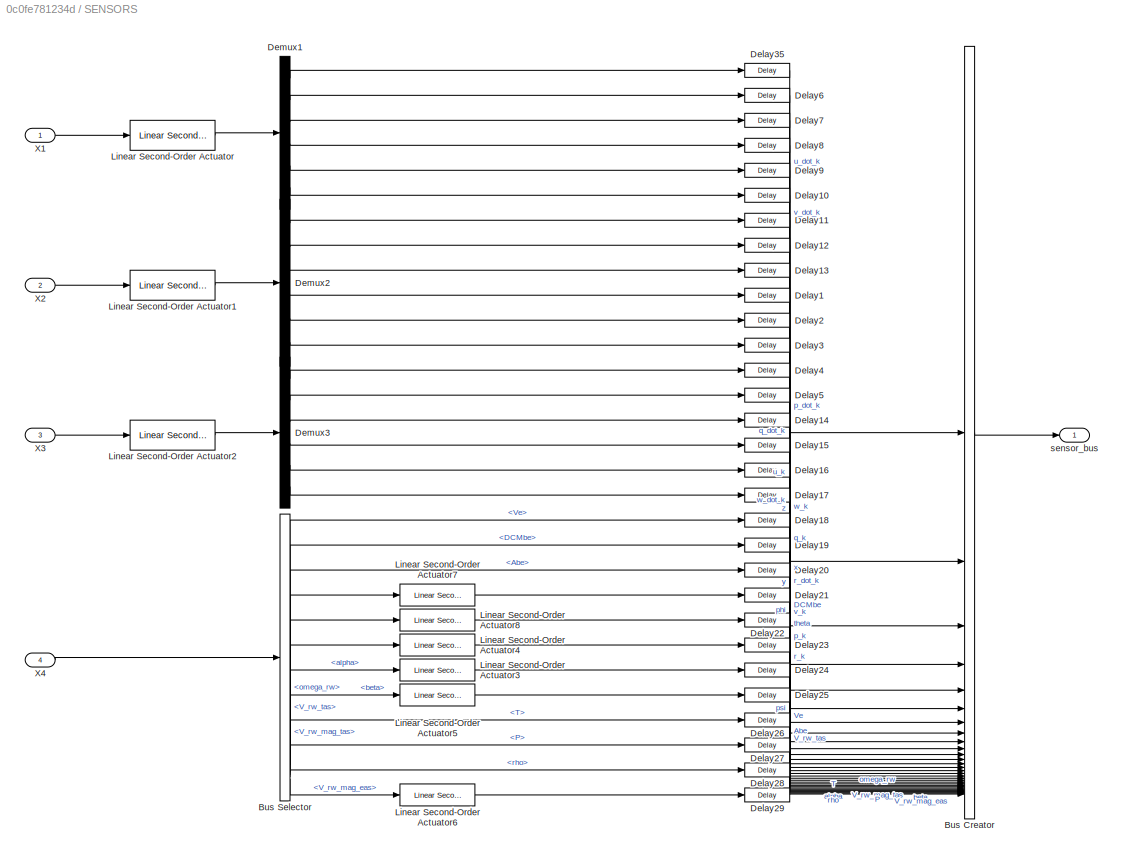
BLOCK [SubSystem] SENSORS
BLOCK [BusCreator] SENSORS/Bus Creator
  DisplayOption = bar
  InheritFromInputs = on
  Inputs = 30
BLOCK [BusSelector] SENSORS/Bus Selector
  OutputSignals = Ve,DCMbe,Abe,V_rw_tas,omega_rw,V_rw_mag_tas,alpha,beta,T,P,rho,V_rw_mag_eas
BLOCK [Delay] SENSORS/Delay1
  DelayLength = sensor_delay_steps
  InputPortMap = u0
BLOCK [Delay] SENSORS/Delay10
  DelayLength = sensor_delay_steps
  InputPortMap = u0
BLOCK [Delay] SENSORS/Delay11
  DelayLength = sensor_delay_steps
  InitialCondition = Vb0(1)
  InputPortMap = u0
BLOCK [Delay] SENSORS/Delay12
  DelayLength = sensor_delay_steps
  InitialCondition = Vb0(2)
  InputPortMap = u0
BLOCK [Delay] SENSORS/Delay13
  DelayLength = sensor_delay_steps
  InitialCondition = Vb0(3)
  InputPortMap = u0
BLOCK [Delay] SENSORS/Delay14
  DelayLength = sensor_delay_steps
  InitialCondition = Xe0(3)
  InputPortMap = u0
BLOCK [Delay] SENSORS/Delay15
  DelayLength = sensor_delay_steps
  InitialCondition = Euler0(1)
  InputPortMap = u0
BLOCK [Delay] SENSORS/Delay16
  DelayLength = sensor_delay_steps
  InitialCondition = Euler0(2)
  InputPortMap = u0
BLOCK [Delay] SENSORS/Delay17
  DelayLength = sensor_delay_steps
  InitialCondition = Euler0(3)
  InputPortMap = u0
BLOCK [Delay] SENSORS/Delay18
  DelayLength = sensor_delay_steps
  InitialCondition = repmat(Vb0',1,sensor_delay_steps)
  InputPortMap = u0
BLOCK [Delay] SENSORS/Delay19
  DelayLength = sensor_delay_steps
  InitialCondition = 0
  InputPortMap = u0
BLOCK [Delay] SENSORS/Delay2
  DelayLength = sensor_delay_steps
  InputPortMap = u0
BLOCK [Delay] SENSORS/Delay20
  DelayLength = sensor_delay_steps
  InitialCondition = 0
  InputPortMap = u0
BLOCK [Delay] SENSORS/Delay21
  DelayLength = sensor_delay_steps
  InitialCondition = repmat(Vb0',1,sensor_delay_steps)
  InputPortMap = u0
BLOCK [Delay] SENSORS/Delay22
  DelayLength = sensor_delay_steps
  InitialCondition = 0
  InputPortMap = u0
BLOCK [Delay] SENSORS/Delay23
  DelayLength = sensor_delay_steps
  InitialCondition = sqrt(dot(Vb0,Vb0))
  InputPortMap = u0
BLOCK [Delay] SENSORS/Delay24
  DelayLength = sensor_delay_steps
  InitialCondition = atan(Vb0(3)/Vb0(1))
  InputPortMap = u0
BLOCK [Delay] SENSORS/Delay25
  DelayLength = sensor_delay_steps
  InitialCondition = asin(Vb0(2)/sqrt(dot(Vb0,Vb0)))
  InputPortMap = u0
BLOCK [Delay] SENSORS/Delay26
  DelayLength = sensor_delay_steps
  InitialCondition = 273
  InputPortMap = u0
BLOCK [Delay] SENSORS/Delay27
  DelayLength = sensor_delay_steps
  InitialCondition = 101325
  InputPortMap = u0
BLOCK [Delay] SENSORS/Delay28
  DelayLength = sensor_delay_steps
  InitialCondition = 1.225
  InputPortMap = u0
BLOCK [Delay] SENSORS/Delay29
  DelayLength = sensor_delay_steps
  InitialCondition = sqrt(dot(Vb0,Vb0))
  InputPortMap = u0
BLOCK [Delay] SENSORS/Delay3
  DelayLength = sensor_delay_steps
  InputPortMap = u0
BLOCK [Delay] SENSORS/Delay35
  DelayLength = sensor_delay_steps
  InputPortMap = u0
BLOCK [Delay] SENSORS/Delay4
  DelayLength = sensor_delay_steps
  InitialCondition = Xe0(1)
  InputPortMap = u0
BLOCK [Delay] SENSORS/Delay5
  DelayLength = sensor_delay_steps
  InitialCondition = Xe0(2)
  InputPortMap = u0
BLOCK [Delay] SENSORS/Delay6
  DelayLength = sensor_delay_steps
  InputPortMap = u0
BLOCK [Delay] SENSORS/Delay7
  DelayLength = sensor_delay_steps
  InputPortMap = u0
BLOCK [Delay] SENSORS/Delay8
  DelayLength = sensor_delay_steps
  InputPortMap = u0
BLOCK [Delay] SENSORS/Delay9
  DelayLength = sensor_delay_steps
  InputPortMap = u0
BLOCK [Demux] SENSORS/Demux1
  Outputs = 6
BLOCK [Demux] SENSORS/Demux2
  Outputs = 6
BLOCK [Demux] SENSORS/Demux3
  Outputs = 6
BLOCK [Reference] SENSORS/Linear Second-Order Actuator  REF=aerolibactuator/Linear Second-Order Actuator
  SourceBlock = aerolibactuator/Linear Second-Order Actuator
  SourceType = LinearSecondOrderActuator
BLOCK [Reference] SENSORS/Linear Second-Order Actuator1  REF=aerolibactuator/Linear Second-Order Actuator
  SourceBlock = aerolibactuator/Linear Second-Order Actuator
  SourceType = LinearSecondOrderActuator
BLOCK [Reference] SENSORS/Linear Second-Order Actuator2  REF=aerolibactuator/Linear Second-Order Actuator
  SourceBlock = aerolibactuator/Linear Second-Order Actuator
  SourceType = LinearSecondOrderActuator
BLOCK [Reference] SENSORS/Linear Second-Order Actuator3  REF=aerolibactuator/Linear Second-Order Actuator
  SourceBlock = aerolibactuator/Linear Second-Order Actuator
  SourceType = LinearSecondOrderActuator
BLOCK [Reference] SENSORS/Linear Second-Order Actuator4  REF=aerolibactuator/Linear Second-Order Actuator
  SourceBlock = aerolibactuator/Linear Second-Order Actuator
  SourceType = LinearSecondOrderActuator
BLOCK [Reference] SENSORS/Linear Second-Order Actuator5  REF=aerolibactuator/Linear Second-Order Actuator
  SourceBlock = aerolibactuator/Linear Second-Order Actuator
  SourceType = LinearSecondOrderActuator
BLOCK [Reference] SENSORS/Linear Second-Order Actuator6  REF=aerolibactuator/Linear Second-Order Actuator
  SourceBlock = aerolibactuator/Linear Second-Order Actuator
  SourceType = LinearSecondOrderActuator
BLOCK [Reference] SENSORS/Linear Second-Order Actuator7  REF=aerolibactuator/Linear Second-Order Actuator
  SourceBlock = aerolibactuator/Linear Second-Order Actuator
  SourceType = LinearSecondOrderActuator
BLOCK [Reference] SENSORS/Linear Second-Order Actuator8  REF=aerolibactuator/Linear Second-Order Actuator
  SourceBlock = aerolibactuator/Linear Second-Order Actuator
  SourceType = LinearSecondOrderActuator
BLOCK [Inport] SENSORS/X1
BLOCK [Inport] SENSORS/X2
  Port = 2
BLOCK [Inport] SENSORS/X3
  Port = 3
BLOCK [Inport] SENSORS/X4
  Port = 4
BLOCK [Outport] SENSORS/sensor_bus
BLOCK [SubSystem] STICK_INPUT
BLOCK [Lookup_n-D] STICK_INPUT/1-D Lookup Table
  BeginIndexSearchUsingPreviousIndexResult = on
  BreakpointsForDimension1 = [0,32770,65540]
  ExtrapMethod = Clip
  IndexSearchMethod = Linear search
  InputPortMap = u0
  InternalRulePriority = Speed
  NumberOfTableDimensions = 1
  RemoveProtectionInput = on
  RndMeth = Simplest
  Table = [-1,0,1]
  UseLastTableValue = on
BLOCK [BusCreator] STICK_INPUT/Bus Creator
  DisplayOption = bar
  InheritFromInputs = on
  Inputs = 5
  NameLocation = right
BLOCK [Constant] STICK_INPUT/Constant
  Value = 0.5
BLOCK [Demux] STICK_INPUT/Demux
  Outputs = 16
BLOCK [Demux] STICK_INPUT/Demux1
BLOCK [Gain] STICK_INPUT/Gain
  Gain = 0.5
BLOCK [Mux] STICK_INPUT/Mux
  DisplayOption = bar
  Inputs = 12
BLOCK [Mux] STICK_INPUT/Mux1
  DisplayOption = bar
BLOCK [S-Function] STICK_INPUT/S-Function
  EnableBusSupport = off
  FunctionName = sfun_joyinfoex
  SFcnIsStateOwnerBlock = off
  SFunctionDeploymentMode = off
BLOCK [Sum] STICK_INPUT/Sum
  Inputs = ++|
BLOCK [UnaryMinus] STICK_INPUT/Unary Minus
BLOCK [Constant] STICK_INPUT/deviceID
  Value = 0
BLOCK [Outport] STICK_INPUT/sidestick_bus
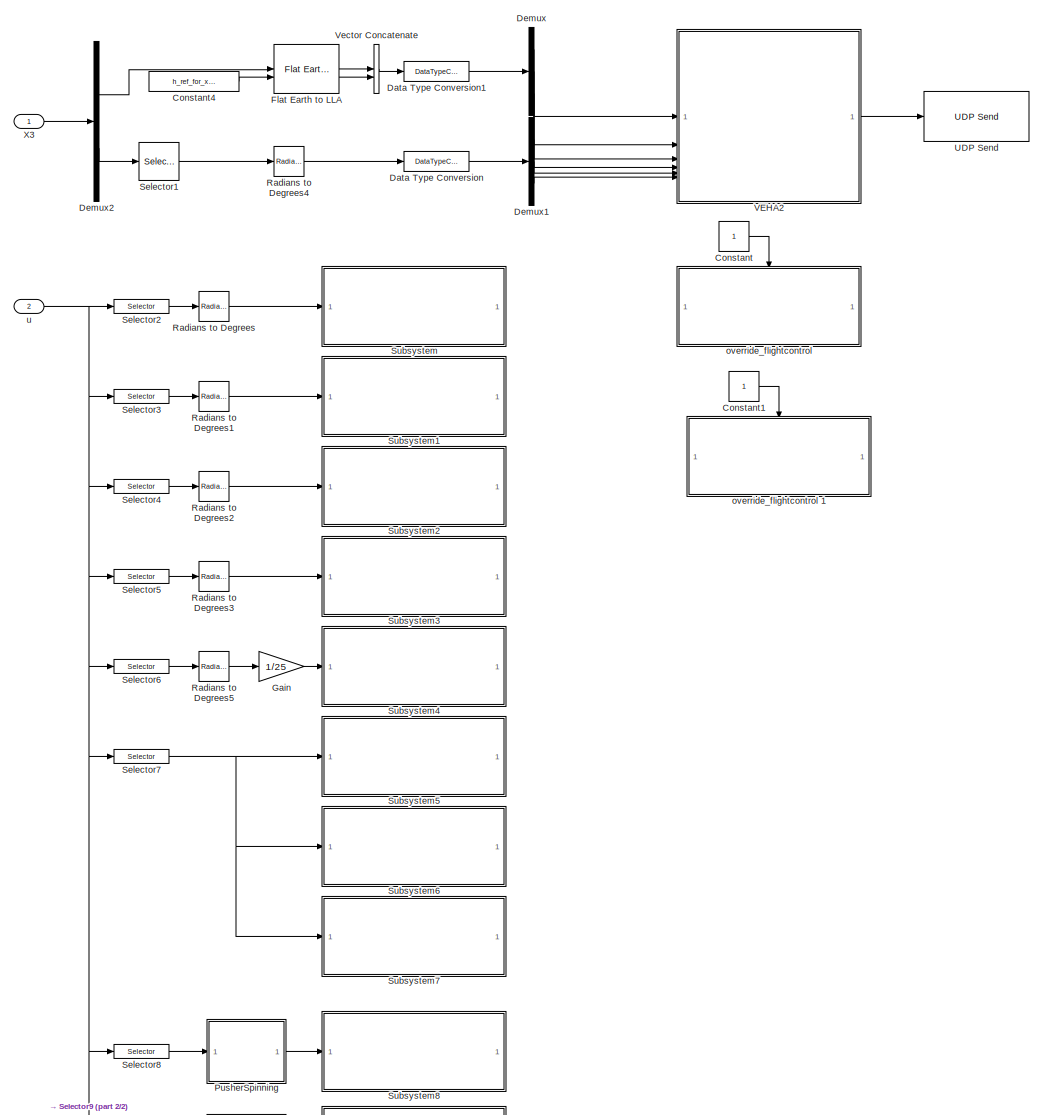
[diagram: X_PLANE_VISUALS - part 1/2, most of the canvas]
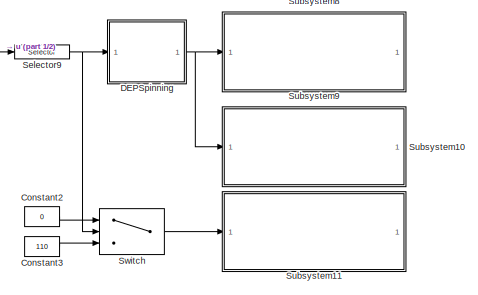
[diagram: X_PLANE_VISUALS - part 2/2, bottom left region]
BLOCK [SubSystem] X_PLANE_VISUALS
BLOCK [Constant] X_PLANE_VISUALS/Constant
BLOCK [Constant] X_PLANE_VISUALS/Constant1
BLOCK [Constant] X_PLANE_VISUALS/Constant2
  Value = 0
BLOCK [Constant] X_PLANE_VISUALS/Constant3
  Value = 110
BLOCK [Constant] X_PLANE_VISUALS/Constant4
  Value = h_ref_for_xplane
BLOCK [SubSystem] X_PLANE_VISUALS/DEPSpinning
BLOCK [Constant] X_PLANE_VISUALS/DEPSpinning/Constant2
  Value = 0
BLOCK [Constant] X_PLANE_VISUALS/DEPSpinning/Constant3
  Value = 10
BLOCK [Memory] X_PLANE_VISUALS/DEPSpinning/Memory1
  InheritSampleTime = on
  NameLocation = top
BLOCK [Product] X_PLANE_VISUALS/DEPSpinning/Product
BLOCK [Scope] X_PLANE_VISUALS/DEPSpinning/Scope
  Floating = off
  NumInputPorts = 1
BLOCK [Sum] X_PLANE_VISUALS/DEPSpinning/Sum
  Inputs = |++
BLOCK [Switch] X_PLANE_VISUALS/DEPSpinning/Switch
  Criteria = u2 > Threshold
  InputSameDT = off
  SaturateOnIntegerOverflow = off
  Threshold = 360
BLOCK [Inport] X_PLANE_VISUALS/DEPSpinning/actf
BLOCK [Outport] X_PLANE_VISUALS/DEPSpinning/angle
BLOCK [DataTypeConversion] X_PLANE_VISUALS/Data Type Conversion
  OutDataTypeStr = single
  RndMeth = Floor
  SaturateOnIntegerOverflow = off
BLOCK [DataTypeConversion] X_PLANE_VISUALS/Data Type Conversion1
  OutDataTypeStr = double
  RndMeth = Floor
  SaturateOnIntegerOverflow = off
BLOCK [Demux] X_PLANE_VISUALS/Demux
  Outputs = 3
BLOCK [Demux] X_PLANE_VISUALS/Demux1
  Outputs = 3
BLOCK [Demux] X_PLANE_VISUALS/Demux2
  Outputs = 2
BLOCK [Reference] X_PLANE_VISUALS/Flat Earth to LLA  REF=aerolibtransform2/Flat Earth to LLA
  SourceBlock = aerolibtransform2/Flat Earth to LLA
  SourceType = Flat Earth to LLA
BLOCK [Gain] X_PLANE_VISUALS/Gain
  Gain = 1/25
BLOCK [SubSystem] X_PLANE_VISUALS/PusherSpinning
BLOCK [Constant] X_PLANE_VISUALS/PusherSpinning/Constant2
  Value = 0
BLOCK [Constant] X_PLANE_VISUALS/PusherSpinning/Constant3
  Value = 10
BLOCK [Memory] X_PLANE_VISUALS/PusherSpinning/Memory1
  InheritSampleTime = on
  NameLocation = top
BLOCK [Product] X_PLANE_VISUALS/PusherSpinning/Product
BLOCK [Scope] X_PLANE_VISUALS/PusherSpinning/Scope
  Floating = off
  NumInputPorts = 1
BLOCK [Sum] X_PLANE_VISUALS/PusherSpinning/Sum
  Inputs = |++
BLOCK [Switch] X_PLANE_VISUALS/PusherSpinning/Switch
  Criteria = u2 > Threshold
  InputSameDT = off
  SaturateOnIntegerOverflow = off
  Threshold = 360
BLOCK [Inport] X_PLANE_VISUALS/PusherSpinning/actf
BLOCK [Outport] X_PLANE_VISUALS/PusherSpinning/angle
BLOCK [Reference] X_PLANE_VISUALS/Radians to Degrees  REF=simulink_extras/Transformations/Radians
to Degrees
  SourceBlock = simulink_extras/Transformations/Radians\nto Degrees
  SourceType = RadiansToDegrees
BLOCK [Reference] X_PLANE_VISUALS/Radians to Degrees1  REF=simulink_extras/Transformations/Radians
to Degrees
  SourceBlock = simulink_extras/Transformations/Radians\nto Degrees
  SourceType = RadiansToDegrees
BLOCK [Reference] X_PLANE_VISUALS/Radians to Degrees2  REF=simulink_extras/Transformations/Radians
to Degrees
  SourceBlock = simulink_extras/Transformations/Radians\nto Degrees
  SourceType = RadiansToDegrees
BLOCK [Reference] X_PLANE_VISUALS/Radians to Degrees3  REF=simulink_extras/Transformations/Radians
to Degrees
  SourceBlock = simulink_extras/Transformations/Radians\nto Degrees
  SourceType = RadiansToDegrees
BLOCK [Reference] X_PLANE_VISUALS/Radians to Degrees4  REF=simulink_extras/Transformations/Radians
to Degrees
  SourceBlock = simulink_extras/Transformations/Radians\nto Degrees
  SourceType = RadiansToDegrees
BLOCK [Reference] X_PLANE_VISUALS/Radians to Degrees5  REF=simulink_extras/Transformations/Radians
to Degrees
  SourceBlock = simulink_extras/Transformations/Radians\nto Degrees
  SourceType = RadiansToDegrees
BLOCK [Selector] X_PLANE_VISUALS/Selector1
  IndexOptions = Index vector (dialog)
  Indices = [3,2,1]
  InputPortWidth = 3
  OutputSizes = 1
BLOCK [Selector] X_PLANE_VISUALS/Selector2
  IndexOptions = Index vector (dialog)
  Indices = 1
  InputPortWidth = 20
  OutputSizes = 1
BLOCK [Selector] X_PLANE_VISUALS/Selector3
  IndexOptions = Index vector (dialog)
  Indices = 2
  InputPortWidth = 20
  OutputSizes = 1
BLOCK [Selector] X_PLANE_VISUALS/Selector4
  IndexOptions = Index vector (dialog)
  Indices = 3
  InputPortWidth = 20
  OutputSizes = 1
BLOCK [Selector] X_PLANE_VISUALS/Selector5
  IndexOptions = Index vector (dialog)
  Indices = 4
  InputPortWidth = 20
  OutputSizes = 1
BLOCK [Selector] X_PLANE_VISUALS/Selector6
  IndexOptions = Index vector (dialog)
  Indices = 5
  InputPortWidth = 20
  OutputSizes = 1
BLOCK [Selector] X_PLANE_VISUALS/Selector7
  IndexOptions = Index vector (dialog)
  Indices = 20
  InputPortWidth = 20
  OutputSizes = 1
BLOCK [Selector] X_PLANE_VISUALS/Selector8
  IndexOptions = Index vector (dialog)
  Indices = 19
  InputPortWidth = 20
  OutputSizes = 1
BLOCK [Selector] X_PLANE_VISUALS/Selector9
  IndexOptions = Index vector (dialog)
  Indices = 12
  InputPortWidth = 20
  OutputSizes = 1
BLOCK [SubSystem] X_PLANE_VISUALS/Subsystem
BLOCK [Constant] X_PLANE_VISUALS/Subsystem/Constant
  Value = uint8(str)
BLOCK [SubSystem] X_PLANE_VISUALS/Subsystem/DREF
  ErrorFcn = Stateflow.Translate.translate
  PermitHierarchicalResolution = ExplicitOnly
  SFBlockType = MATLAB Function
  TreatAsAtomicUnit = on
BLOCK [Demux] X_PLANE_VISUALS/Subsystem/DREF/ Demux 
  Outputs = 1
BLOCK [S-Function] X_PLANE_VISUALS/Subsystem/DREF/ SFunction 
  EnableBusSupport = on
  FunctionName = sf_sfun
  PortCounts = [2 2]
  SFcnIsStateOwnerBlock = off
  SFunctionDeploymentMode = off
  Tag = Stateflow S-Function 3
BLOCK [Terminator] X_PLANE_VISUALS/Subsystem/DREF/ Terminator 
BLOCK [Inport] X_PLANE_VISUALS/Subsystem/DREF/str
BLOCK [Outport] X_PLANE_VISUALS/Subsystem/DREF/uint8_out
BLOCK [Inport] X_PLANE_VISUALS/Subsystem/DREF/value
  Port = 2
BLOCK [DataTypeConversion] X_PLANE_VISUALS/Subsystem/Data Type Conversion2
  OutDataTypeStr = single
  RndMeth = Floor
  SaturateOnIntegerOverflow = off
BLOCK [Reference] X_PLANE_VISUALS/Subsystem/UDP Send1  REF=dspnetwork/UDP Send
  SourceBlock = dspnetwork/UDP Send
  SourceType = UDP Send
BLOCK [Inport] X_PLANE_VISUALS/Subsystem/value
BLOCK [SubSystem] X_PLANE_VISUALS/Subsystem1
BLOCK [Constant] X_PLANE_VISUALS/Subsystem1/Constant
  Value = uint8(str)
BLOCK [SubSystem] X_PLANE_VISUALS/Subsystem1/DREF
  ErrorFcn = Stateflow.Translate.translate
  PermitHierarchicalResolution = ExplicitOnly
  SFBlockType = MATLAB Function
  TreatAsAtomicUnit = on
BLOCK [Demux] X_PLANE_VISUALS/Subsystem1/DREF/ Demux 
  Outputs = 1
BLOCK [S-Function] X_PLANE_VISUALS/Subsystem1/DREF/ SFunction 
  EnableBusSupport = on
  FunctionName = sf_sfun
  PortCounts = [2 2]
  SFcnIsStateOwnerBlock = off
  SFunctionDeploymentMode = off
  Tag = Stateflow S-Function 7
BLOCK [Terminator] X_PLANE_VISUALS/Subsystem1/DREF/ Terminator 
BLOCK [Inport] X_PLANE_VISUALS/Subsystem1/DREF/str
BLOCK [Outport] X_PLANE_VISUALS/Subsystem1/DREF/uint8_out
BLOCK [Inport] X_PLANE_VISUALS/Subsystem1/DREF/value
  Port = 2
BLOCK [DataTypeConversion] X_PLANE_VISUALS/Subsystem1/Data Type Conversion2
  OutDataTypeStr = single
  RndMeth = Floor
  SaturateOnIntegerOverflow = off
BLOCK [Reference] X_PLANE_VISUALS/Subsystem1/UDP Send1  REF=dspnetwork/UDP Send
  SourceBlock = dspnetwork/UDP Send
  SourceType = UDP Send
BLOCK [Inport] X_PLANE_VISUALS/Subsystem1/value
BLOCK [SubSystem] X_PLANE_VISUALS/Subsystem10
BLOCK [Constant] X_PLANE_VISUALS/Subsystem10/Constant
  Value = uint8(str)
BLOCK [SubSystem] X_PLANE_VISUALS/Subsystem10/DREF
  ErrorFcn = Stateflow.Translate.translate
  PermitHierarchicalResolution = ExplicitOnly
  SFBlockType = MATLAB Function
  TreatAsAtomicUnit = on
BLOCK [Demux] X_PLANE_VISUALS/Subsystem10/DREF/ Demux 
  Outputs = 1
BLOCK [S-Function] X_PLANE_VISUALS/Subsystem10/DREF/ SFunction 
  EnableBusSupport = on
  FunctionName = sf_sfun
  PortCounts = [2 2]
  SFcnIsStateOwnerBlock = off
  SFunctionDeploymentMode = off
  Tag = Stateflow S-Function 23
BLOCK [Terminator] X_PLANE_VISUALS/Subsystem10/DREF/ Terminator 
BLOCK [Inport] X_PLANE_VISUALS/Subsystem10/DREF/str
BLOCK [Outport] X_PLANE_VISUALS/Subsystem10/DREF/uint8_out
BLOCK [Inport] X_PLANE_VISUALS/Subsystem10/DREF/value
  Port = 2
BLOCK [DataTypeConversion] X_PLANE_VISUALS/Subsystem10/Data Type Conversion2
  OutDataTypeStr = single
  RndMeth = Floor
  SaturateOnIntegerOverflow = off
BLOCK [Reference] X_PLANE_VISUALS/Subsystem10/UDP Send1  REF=dspnetwork/UDP Send
  SourceBlock = dspnetwork/UDP Send
  SourceType = UDP Send
BLOCK [Inport] X_PLANE_VISUALS/Subsystem10/value
BLOCK [SubSystem] X_PLANE_VISUALS/Subsystem11
BLOCK [Constant] X_PLANE_VISUALS/Subsystem11/Constant
  Value = uint8(str)
BLOCK [SubSystem] X_PLANE_VISUALS/Subsystem11/DREF
  ErrorFcn = Stateflow.Translate.translate
  PermitHierarchicalResolution = ExplicitOnly
  SFBlockType = MATLAB Function
  TreatAsAtomicUnit = on
BLOCK [Demux] X_PLANE_VISUALS/Subsystem11/DREF/ Demux 
  Outputs = 1
BLOCK [S-Function] X_PLANE_VISUALS/Subsystem11/DREF/ SFunction 
  EnableBusSupport = on
  FunctionName = sf_sfun
  PortCounts = [2 2]
  SFcnIsStateOwnerBlock = off
  SFunctionDeploymentMode = off
  Tag = Stateflow S-Function 24
BLOCK [Terminator] X_PLANE_VISUALS/Subsystem11/DREF/ Terminator 
BLOCK [Inport] X_PLANE_VISUALS/Subsystem11/DREF/str
BLOCK [Outport] X_PLANE_VISUALS/Subsystem11/DREF/uint8_out
BLOCK [Inport] X_PLANE_VISUALS/Subsystem11/DREF/value
  Port = 2
BLOCK [DataTypeConversion] X_PLANE_VISUALS/Subsystem11/Data Type Conversion2
  OutDataTypeStr = single
  RndMeth = Floor
  SaturateOnIntegerOverflow = off
BLOCK [Reference] X_PLANE_VISUALS/Subsystem11/UDP Send1  REF=dspnetwork/UDP Send
  SourceBlock = dspnetwork/UDP Send
  SourceType = UDP Send
BLOCK [Inport] X_PLANE_VISUALS/Subsystem11/value
BLOCK [SubSystem] X_PLANE_VISUALS/Subsystem2
BLOCK [Constant] X_PLANE_VISUALS/Subsystem2/Constant
  Value = uint8(str)
BLOCK [SubSystem] X_PLANE_VISUALS/Subsystem2/DREF
  ErrorFcn = Stateflow.Translate.translate
  PermitHierarchicalResolution = ExplicitOnly
  SFBlockType = MATLAB Function
  TreatAsAtomicUnit = on
BLOCK [Demux] X_PLANE_VISUALS/Subsystem2/DREF/ Demux 
  Outputs = 1
BLOCK [S-Function] X_PLANE_VISUALS/Subsystem2/DREF/ SFunction 
  EnableBusSupport = on
  FunctionName = sf_sfun
  PortCounts = [2 2]
  SFcnIsStateOwnerBlock = off
  SFunctionDeploymentMode = off
  Tag = Stateflow S-Function 8
BLOCK [Terminator] X_PLANE_VISUALS/Subsystem2/DREF/ Terminator 
BLOCK [Inport] X_PLANE_VISUALS/Subsystem2/DREF/str
BLOCK [Outport] X_PLANE_VISUALS/Subsystem2/DREF/uint8_out
BLOCK [Inport] X_PLANE_VISUALS/Subsystem2/DREF/value
  Port = 2
BLOCK [DataTypeConversion] X_PLANE_VISUALS/Subsystem2/Data Type Conversion2
  OutDataTypeStr = single
  RndMeth = Floor
  SaturateOnIntegerOverflow = off
BLOCK [Reference] X_PLANE_VISUALS/Subsystem2/UDP Send1  REF=dspnetwork/UDP Send
  SourceBlock = dspnetwork/UDP Send
  SourceType = UDP Send
BLOCK [Inport] X_PLANE_VISUALS/Subsystem2/value
BLOCK [SubSystem] X_PLANE_VISUALS/Subsystem3
BLOCK [Constant] X_PLANE_VISUALS/Subsystem3/Constant
  Value = uint8(str)
BLOCK [SubSystem] X_PLANE_VISUALS/Subsystem3/DREF
  ErrorFcn = Stateflow.Translate.translate
  PermitHierarchicalResolution = ExplicitOnly
  SFBlockType = MATLAB Function
  TreatAsAtomicUnit = on
BLOCK [Demux] X_PLANE_VISUALS/Subsystem3/DREF/ Demux 
  Outputs = 1
BLOCK [S-Function] X_PLANE_VISUALS/Subsystem3/DREF/ SFunction 
  EnableBusSupport = on
  FunctionName = sf_sfun
  PortCounts = [2 2]
  SFcnIsStateOwnerBlock = off
  SFunctionDeploymentMode = off
  Tag = Stateflow S-Function 13
BLOCK [Terminator] X_PLANE_VISUALS/Subsystem3/DREF/ Terminator 
BLOCK [Inport] X_PLANE_VISUALS/Subsystem3/DREF/str
BLOCK [Outport] X_PLANE_VISUALS/Subsystem3/DREF/uint8_out
BLOCK [Inport] X_PLANE_VISUALS/Subsystem3/DREF/value
  Port = 2
BLOCK [DataTypeConversion] X_PLANE_VISUALS/Subsystem3/Data Type Conversion2
  OutDataTypeStr = single
  RndMeth = Floor
  SaturateOnIntegerOverflow = off
BLOCK [Reference] X_PLANE_VISUALS/Subsystem3/UDP Send1  REF=dspnetwork/UDP Send
  SourceBlock = dspnetwork/UDP Send
  SourceType = UDP Send
BLOCK [Inport] X_PLANE_VISUALS/Subsystem3/value
BLOCK [SubSystem] X_PLANE_VISUALS/Subsystem4
BLOCK [Constant] X_PLANE_VISUALS/Subsystem4/Constant
  Value = uint8(str)
BLOCK [SubSystem] X_PLANE_VISUALS/Subsystem4/DREF
  ErrorFcn = Stateflow.Translate.translate
  PermitHierarchicalResolution = ExplicitOnly
  SFBlockType = MATLAB Function
  TreatAsAtomicUnit = on
BLOCK [Demux] X_PLANE_VISUALS/Subsystem4/DREF/ Demux 
  Outputs = 1
BLOCK [S-Function] X_PLANE_VISUALS/Subsystem4/DREF/ SFunction 
  EnableBusSupport = on
  FunctionName = sf_sfun
  PortCounts = [2 2]
  SFcnIsStateOwnerBlock = off
  SFunctionDeploymentMode = off
  Tag = Stateflow S-Function 16
BLOCK [Terminator] X_PLANE_VISUALS/Subsystem4/DREF/ Terminator 
BLOCK [Inport] X_PLANE_VISUALS/Subsystem4/DREF/str
BLOCK [Outport] X_PLANE_VISUALS/Subsystem4/DREF/uint8_out
BLOCK [Inport] X_PLANE_VISUALS/Subsystem4/DREF/value
  Port = 2
BLOCK [DataTypeConversion] X_PLANE_VISUALS/Subsystem4/Data Type Conversion2
  OutDataTypeStr = single
  RndMeth = Floor
  SaturateOnIntegerOverflow = off
BLOCK [Reference] X_PLANE_VISUALS/Subsystem4/UDP Send1  REF=dspnetwork/UDP Send
  SourceBlock = dspnetwork/UDP Send
  SourceType = UDP Send
BLOCK [Inport] X_PLANE_VISUALS/Subsystem4/value
BLOCK [SubSystem] X_PLANE_VISUALS/Subsystem5
BLOCK [Constant] X_PLANE_VISUALS/Subsystem5/Constant
  Value = uint8(str)
BLOCK [SubSystem] X_PLANE_VISUALS/Subsystem5/DREF
  ErrorFcn = Stateflow.Translate.translate
  PermitHierarchicalResolution = ExplicitOnly
  SFBlockType = MATLAB Function
  TreatAsAtomicUnit = on
BLOCK [Demux] X_PLANE_VISUALS/Subsystem5/DREF/ Demux 
  Outputs = 1
BLOCK [S-Function] X_PLANE_VISUALS/Subsystem5/DREF/ SFunction 
  EnableBusSupport = on
  FunctionName = sf_sfun
  PortCounts = [2 2]
  SFcnIsStateOwnerBlock = off
  SFunctionDeploymentMode = off
  Tag = Stateflow S-Function 17
BLOCK [Terminator] X_PLANE_VISUALS/Subsystem5/DREF/ Terminator 
BLOCK [Inport] X_PLANE_VISUALS/Subsystem5/DREF/str
BLOCK [Outport] X_PLANE_VISUALS/Subsystem5/DREF/uint8_out
BLOCK [Inport] X_PLANE_VISUALS/Subsystem5/DREF/value
  Port = 2
BLOCK [DataTypeConversion] X_PLANE_VISUALS/Subsystem5/Data Type Conversion2
  OutDataTypeStr = single
  RndMeth = Floor
  SaturateOnIntegerOverflow = off
BLOCK [Reference] X_PLANE_VISUALS/Subsystem5/UDP Send1  REF=dspnetwork/UDP Send
  SourceBlock = dspnetwork/UDP Send
  SourceType = UDP Send
BLOCK [Inport] X_PLANE_VISUALS/Subsystem5/value
BLOCK [SubSystem] X_PLANE_VISUALS/Subsystem6
BLOCK [Constant] X_PLANE_VISUALS/Subsystem6/Constant
  Value = uint8(str)
BLOCK [SubSystem] X_PLANE_VISUALS/Subsystem6/DREF
  ErrorFcn = Stateflow.Translate.translate
  PermitHierarchicalResolution = ExplicitOnly
  SFBlockType = MATLAB Function
  TreatAsAtomicUnit = on
BLOCK [Demux] X_PLANE_VISUALS/Subsystem6/DREF/ Demux 
  Outputs = 1
BLOCK [S-Function] X_PLANE_VISUALS/Subsystem6/DREF/ SFunction 
  EnableBusSupport = on
  FunctionName = sf_sfun
  PortCounts = [2 2]
  SFcnIsStateOwnerBlock = off
  SFunctionDeploymentMode = off
  Tag = Stateflow S-Function 18
BLOCK [Terminator] X_PLANE_VISUALS/Subsystem6/DREF/ Terminator 
BLOCK [Inport] X_PLANE_VISUALS/Subsystem6/DREF/str
BLOCK [Outport] X_PLANE_VISUALS/Subsystem6/DREF/uint8_out
BLOCK [Inport] X_PLANE_VISUALS/Subsystem6/DREF/value
  Port = 2
BLOCK [DataTypeConversion] X_PLANE_VISUALS/Subsystem6/Data Type Conversion2
  OutDataTypeStr = single
  RndMeth = Floor
  SaturateOnIntegerOverflow = off
BLOCK [Reference] X_PLANE_VISUALS/Subsystem6/UDP Send1  REF=dspnetwork/UDP Send
  SourceBlock = dspnetwork/UDP Send
  SourceType = UDP Send
BLOCK [Inport] X_PLANE_VISUALS/Subsystem6/value
BLOCK [SubSystem] X_PLANE_VISUALS/Subsystem7
BLOCK [Constant] X_PLANE_VISUALS/Subsystem7/Constant
  Value = uint8(str)
BLOCK [SubSystem] X_PLANE_VISUALS/Subsystem7/DREF
  ErrorFcn = Stateflow.Translate.translate
  PermitHierarchicalResolution = ExplicitOnly
  SFBlockType = MATLAB Function
  TreatAsAtomicUnit = on
BLOCK [Demux] X_PLANE_VISUALS/Subsystem7/DREF/ Demux 
  Outputs = 1
BLOCK [S-Function] X_PLANE_VISUALS/Subsystem7/DREF/ SFunction 
  EnableBusSupport = on
  FunctionName = sf_sfun
  PortCounts = [2 2]
  SFcnIsStateOwnerBlock = off
  SFunctionDeploymentMode = off
  Tag = Stateflow S-Function 19
BLOCK [Terminator] X_PLANE_VISUALS/Subsystem7/DREF/ Terminator 
BLOCK [Inport] X_PLANE_VISUALS/Subsystem7/DREF/str
BLOCK [Outport] X_PLANE_VISUALS/Subsystem7/DREF/uint8_out
BLOCK [Inport] X_PLANE_VISUALS/Subsystem7/DREF/value
  Port = 2
BLOCK [DataTypeConversion] X_PLANE_VISUALS/Subsystem7/Data Type Conversion2
  OutDataTypeStr = single
  RndMeth = Floor
  SaturateOnIntegerOverflow = off
BLOCK [Reference] X_PLANE_VISUALS/Subsystem7/UDP Send1  REF=dspnetwork/UDP Send
  SourceBlock = dspnetwork/UDP Send
  SourceType = UDP Send
BLOCK [Inport] X_PLANE_VISUALS/Subsystem7/value
BLOCK [SubSystem] X_PLANE_VISUALS/Subsystem8
BLOCK [Constant] X_PLANE_VISUALS/Subsystem8/Constant
  Value = uint8(str)
BLOCK [SubSystem] X_PLANE_VISUALS/Subsystem8/DREF
  ErrorFcn = Stateflow.Translate.translate
  PermitHierarchicalResolution = ExplicitOnly
  SFBlockType = MATLAB Function
  TreatAsAtomicUnit = on
BLOCK [Demux] X_PLANE_VISUALS/Subsystem8/DREF/ Demux 
  Outputs = 1
BLOCK [S-Function] X_PLANE_VISUALS/Subsystem8/DREF/ SFunction 
  EnableBusSupport = on
  FunctionName = sf_sfun
  PortCounts = [2 2]
  SFcnIsStateOwnerBlock = off
  SFunctionDeploymentMode = off
  Tag = Stateflow S-Function 21
BLOCK [Terminator] X_PLANE_VISUALS/Subsystem8/DREF/ Terminator 
BLOCK [Inport] X_PLANE_VISUALS/Subsystem8/DREF/str
BLOCK [Outport] X_PLANE_VISUALS/Subsystem8/DREF/uint8_out
BLOCK [Inport] X_PLANE_VISUALS/Subsystem8/DREF/value
  Port = 2
BLOCK [DataTypeConversion] X_PLANE_VISUALS/Subsystem8/Data Type Conversion2
  OutDataTypeStr = single
  RndMeth = Floor
  SaturateOnIntegerOverflow = off
BLOCK [Reference] X_PLANE_VISUALS/Subsystem8/UDP Send1  REF=dspnetwork/UDP Send
  SourceBlock = dspnetwork/UDP Send
  SourceType = UDP Send
BLOCK [Inport] X_PLANE_VISUALS/Subsystem8/value
BLOCK [SubSystem] X_PLANE_VISUALS/Subsystem9
BLOCK [Constant] X_PLANE_VISUALS/Subsystem9/Constant
  Value = uint8(str)
BLOCK [SubSystem] X_PLANE_VISUALS/Subsystem9/DREF
  ErrorFcn = Stateflow.Translate.translate
  PermitHierarchicalResolution = ExplicitOnly
  SFBlockType = MATLAB Function
  TreatAsAtomicUnit = on
BLOCK [Demux] X_PLANE_VISUALS/Subsystem9/DREF/ Demux 
  Outputs = 1
BLOCK [S-Function] X_PLANE_VISUALS/Subsystem9/DREF/ SFunction 
  EnableBusSupport = on
  FunctionName = sf_sfun
  PortCounts = [2 2]
  SFcnIsStateOwnerBlock = off
  SFunctionDeploymentMode = off
  Tag = Stateflow S-Function 22
BLOCK [Terminator] X_PLANE_VISUALS/Subsystem9/DREF/ Terminator 
BLOCK [Inport] X_PLANE_VISUALS/Subsystem9/DREF/str
BLOCK [Outport] X_PLANE_VISUALS/Subsystem9/DREF/uint8_out
BLOCK [Inport] X_PLANE_VISUALS/Subsystem9/DREF/value
  Port = 2
BLOCK [DataTypeConversion] X_PLANE_VISUALS/Subsystem9/Data Type Conversion2
  OutDataTypeStr = single
  RndMeth = Floor
  SaturateOnIntegerOverflow = off
BLOCK [Reference] X_PLANE_VISUALS/Subsystem9/UDP Send1  REF=dspnetwork/UDP Send
  SourceBlock = dspnetwork/UDP Send
  SourceType = UDP Send
BLOCK [Inport] X_PLANE_VISUALS/Subsystem9/value
BLOCK [Switch] X_PLANE_VISUALS/Switch
  Criteria = u2 > Threshold
  InputSameDT = off
  SaturateOnIntegerOverflow = off
  Threshold = 0.05
BLOCK [Reference] X_PLANE_VISUALS/UDP Send  REF=dspnetwork/UDP Send
  SourceBlock = dspnetwork/UDP Send
  SourceType = UDP Send
BLOCK [SubSystem] X_PLANE_VISUALS/VEHA2
  ErrorFcn = Stateflow.Translate.translate
  PermitHierarchicalResolution = ExplicitOnly
  SFBlockType = MATLAB Function
  TreatAsAtomicUnit = on
BLOCK [Demux] X_PLANE_VISUALS/VEHA2/ Demux 
  Outputs = 1
BLOCK [S-Function] X_PLANE_VISUALS/VEHA2/ SFunction 
  EnableBusSupport = on
  FunctionName = sf_sfun
  PortCounts = [6 2]
  SFcnIsStateOwnerBlock = off
  SFunctionDeploymentMode = off
  Tag = Stateflow S-Function 44
BLOCK [Terminator] X_PLANE_VISUALS/VEHA2/ Terminator 
BLOCK [Inport] X_PLANE_VISUALS/VEHA2/h
  Port = 3
BLOCK [Inport] X_PLANE_VISUALS/VEHA2/lat
BLOCK [Inport] X_PLANE_VISUALS/VEHA2/lon
  Port = 2
BLOCK [Inport] X_PLANE_VISUALS/VEHA2/phi
  Port = 6
BLOCK [Inport] X_PLANE_VISUALS/VEHA2/psi
  Port = 4
BLOCK [Inport] X_PLANE_VISUALS/VEHA2/the
  Port = 5
BLOCK [Outport] X_PLANE_VISUALS/VEHA2/uint8_out
BLOCK [Concatenate] X_PLANE_VISUALS/Vector Concatenate
BLOCK [Inport] X_PLANE_VISUALS/X3
BLOCK [SubSystem] X_PLANE_VISUALS/override_flightcontrol 
  TreatAsAtomicUnit = on
BLOCK [Constant] X_PLANE_VISUALS/override_flightcontrol /Constant
BLOCK [SubSystem] X_PLANE_VISUALS/override_flightcontrol /Subsystem
BLOCK [Constant] X_PLANE_VISUALS/override_flightcontrol /Subsystem/Constant
  Value = uint8(str)
BLOCK [SubSystem] X_PLANE_VISUALS/override_flightcontrol /Subsystem/DREF
  ErrorFcn = Stateflow.Translate.translate
  PermitHierarchicalResolution = ExplicitOnly
  SFBlockType = MATLAB Function
  TreatAsAtomicUnit = on
BLOCK [Demux] X_PLANE_VISUALS/override_flightcontrol /Subsystem/DREF/ Demux 
  Outputs = 1
BLOCK [S-Function] X_PLANE_VISUALS/override_flightcontrol /Subsystem/DREF/ SFunction 
  EnableBusSupport = on
  FunctionName = sf_sfun
  PortCounts = [2 2]
  SFcnIsStateOwnerBlock = off
  SFunctionDeploymentMode = off
  Tag = Stateflow S-Function 5
BLOCK [Terminator] X_PLANE_VISUALS/override_flightcontrol /Subsystem/DREF/ Terminator 
BLOCK [Inport] X_PLANE_VISUALS/override_flightcontrol /Subsystem/DREF/str
BLOCK [Outport] X_PLANE_VISUALS/override_flightcontrol /Subsystem/DREF/uint8_out
BLOCK [Inport] X_PLANE_VISUALS/override_flightcontrol /Subsystem/DREF/value
  Port = 2
BLOCK [DataTypeConversion] X_PLANE_VISUALS/override_flightcontrol /Subsystem/Data Type Conversion2
  OutDataTypeStr = single
  RndMeth = Floor
  SaturateOnIntegerOverflow = off
BLOCK [Reference] X_PLANE_VISUALS/override_flightcontrol /Subsystem/UDP Send1  REF=dspnetwork/UDP Send
  SourceBlock = dspnetwork/UDP Send
  SourceType = UDP Send
BLOCK [Inport] X_PLANE_VISUALS/override_flightcontrol /Subsystem/value
BLOCK [TriggerPort] X_PLANE_VISUALS/override_flightcontrol /Trigger
  InitialTriggerSignalState = zero
  StatesWhenEnabling = held
  VariantControl = (inherit)
BLOCK [SubSystem] X_PLANE_VISUALS/override_flightcontrol 1
  TreatAsAtomicUnit = on
BLOCK [Constant] X_PLANE_VISUALS/override_flightcontrol 1/Constant
BLOCK [SubSystem] X_PLANE_VISUALS/override_flightcontrol 1/Subsystem
BLOCK [Constant] X_PLANE_VISUALS/override_flightcontrol 1/Subsystem/Constant
  Value = uint8(str)
BLOCK [SubSystem] X_PLANE_VISUALS/override_flightcontrol 1/Subsystem/DREF
  ErrorFcn = Stateflow.Translate.translate
  PermitHierarchicalResolution = ExplicitOnly
  SFBlockType = MATLAB Function
  TreatAsAtomicUnit = on
BLOCK [Demux] X_PLANE_VISUALS/override_flightcontrol 1/Subsystem/DREF/ Demux 
  Outputs = 1
BLOCK [S-Function] X_PLANE_VISUALS/override_flightcontrol 1/Subsystem/DREF/ SFunction 
  EnableBusSupport = on
  FunctionName = sf_sfun
  PortCounts = [2 2]
  SFcnIsStateOwnerBlock = off
  SFunctionDeploymentMode = off
  Tag = Stateflow S-Function 12
BLOCK [Terminator] X_PLANE_VISUALS/override_flightcontrol 1/Subsystem/DREF/ Terminator 
BLOCK [Inport] X_PLANE_VISUALS/override_flightcontrol 1/Subsystem/DREF/str
BLOCK [Outport] X_PLANE_VISUALS/override_flightcontrol 1/Subsystem/DREF/uint8_out
BLOCK [Inport] X_PLANE_VISUALS/override_flightcontrol 1/Subsystem/DREF/value
  Port = 2
BLOCK [DataTypeConversion] X_PLANE_VISUALS/override_flightcontrol 1/Subsystem/Data Type Conversion2
  OutDataTypeStr = single
  RndMeth = Floor
  SaturateOnIntegerOverflow = off
BLOCK [Reference] X_PLANE_VISUALS/override_flightcontrol 1/Subsystem/UDP Send1  REF=dspnetwork/UDP Send
  SourceBlock = dspnetwork/UDP Send
  SourceType = UDP Send
BLOCK [Inport] X_PLANE_VISUALS/override_flightcontrol 1/Subsystem/value
BLOCK [TriggerPort] X_PLANE_VISUALS/override_flightcontrol 1/Trigger
  InitialTriggerSignalState = zero
  StatesWhenEnabling = held
  VariantControl = (inherit)
BLOCK [Inport] X_PLANE_VISUALS/u
  Port = 2
ANNOTATION (root): UNIFIER19 C7A-HARW FLIGHT DYNAMICS SIMULATOR Revision: 05.10.2022 - J.Soikkeli Change log: 19.07.2022 - Initial release. 05.10.2022 - Added sensor models and appropriate delays to the signals - post-project change by J.Soikkeli www.unifier19.eu The project has received funding from the CleanSky2 Joint Undertaking (JU) under grant agreement NO 864901. The JU receives support from the European Union...<+102ch>
ANNOTATION C7A_HARW/Aero/additionalDrag: Wing mounted nacelles: (Estimate using OpenVSP - Jenkinson Wing Mounted Nacelle) =6*0.00043=0.00258 + cooling drag of 0.015
ANNOTATION C7A_HARW/Aero/additionalDrag: Landing gear drag: Loftin Jr, L. K. (1980). Subsonic aircraft: Evolution and the matching of size to performance (No. L-13367).
ANNOTATION C7A_HARW/Subsystems/DEP/DEP/Conversion: DEP disk inclined 5 degree down
ANNOTATION C7A_HARW/Subsystems/LandingGears/LeftMain/DetermineGroundImpact/impactDetection: Impact
ANNOTATION C7A_HARW/Subsystems/LandingGears/LeftMain/DetermineGroundImpact/impactDetection: No impact
ANNOTATION C7A_HARW/Subsystems/LandingGears/Nose/DetermineGroundImpact/impactDetection: Impact
ANNOTATION C7A_HARW/Subsystems/LandingGears/Nose/DetermineGroundImpact/impactDetection: No impact
ANNOTATION C7A_HARW/Subsystems/LandingGears/RightMain/DetermineGroundImpact/impactDetection: Impact
ANNOTATION C7A_HARW/Subsystems/LandingGears/RightMain/DetermineGroundImpact/impactDetection: No impact
ANNOTATION FCC: As a part of the UNIFIER19 project, flight control laws (based on non-linear dynamic inversion) were developed. The litearature and findings using these control laws is available on the GIT page. Here we invite you to develop your version of the control laws!
ANNOTATION PACER: Soft real time block and associated s-function source codes: - sfun_sleep.c - sfun_getSystemClockTimeval.c - sfun_output_to_console.c are copyrighted by Marc Compere <email> created : 28 May 2018 modified: 28 May 2018
ANNOTATION PACER/Output to Console: Note: Constant in green block can be changed on the fly.
ANNOTATION PACER/soft real time subsystem: Sleep this amount to advance sim time same as wall time
ANNOTATION PACER/soft real time subsystem: Typically a simple (enough) simulation will fun faster than wall-clock time. This means it's possible for Simulink to simulate, say, 10 seconds in perhps 0.1 or 1 seconds of real wall-clock time. So the challenge is this: how much pause should be inserted every so often to cause the simulation time to advance at the same average rate as real wall-clock time? Using total elapsed time as an absolute...<+315ch>
ANNOTATION PACER/soft real time subsystem: What is elapsed simulation time?
ANNOTATION PACER/soft real time subsystem: What is elapsed real wall-clock time?
ANNOTATION PACER/soft real time subsystem/get elapsed wall-clock time: Block pulled from Mathworks File Exchange entry titled " Raspberry Pi 2, get system clock with timeval " https://www.mathworks.com/matlabcentral/fileexchange/54546-raspberry-pi-2--get-system-clock-with-timeval
ANNOTATION PACER/soft real time subsystem/get elapsed wall-clock time/triggered capture & hold: Marc Compere <email> created : 13 September 2002 modified: 24 February 2004
ANNOTATION PACER/soft real time subsystem/get elapsed wall-clock time/triggered capture & hold: if trigger==1, out(k) = value_to_capture(k) else, out(k) = out(k-1)
ANNOTATION X_PLANE_VISUALS/DEPSpinning: MAKE THE PUSHER PROP SPIN IN VISUALIZATION
ANNOTATION X_PLANE_VISUALS/PusherSpinning: MAKE THE PUSHER PROP SPIN IN VISUALIZATION
LINE C7A_HARW/Actuator processing and transport delay 10 ms:1 -> C7A_HARW/Demux:1
LINE C7A_HARW/Aero/AlphaVtail/3x3 Cross Product:1 -> C7A_HARW/Aero/AlphaVtail/Sum1:1
LINE C7A_HARW/Aero/AlphaVtail/Asin:1 -> C7A_HARW/Aero/AlphaVtail/beta_nodes:1
LINE C7A_HARW/Aero/AlphaVtail/Atan:1 -> C7A_HARW/Aero/AlphaVtail/alpha_nodes:1
LINE C7A_HARW/Aero/AlphaVtail/Cast:1 -> C7A_HARW/Aero/AlphaVtail/Sum:1
NET C7A_HARW/Aero/AlphaVtail/Constant1:1 -> C7A_HARW/Aero/AlphaVtail/Sum2:2, C7A_HARW/Aero/AlphaVtail/Sum3:2
LINE C7A_HARW/Aero/AlphaVtail/Constant:1 -> C7A_HARW/Aero/AlphaVtail/Cast:1
NET C7A_HARW/Aero/AlphaVtail/Demux:1 -> C7A_HARW/Aero/AlphaVtail/Mux:1, C7A_HARW/Aero/AlphaVtail/Sum2:1
NET C7A_HARW/Aero/AlphaVtail/Demux:2 -> C7A_HARW/Aero/AlphaVtail/Divide1:1, C7A_HARW/Aero/AlphaVtail/Mux:2
NET C7A_HARW/Aero/AlphaVtail/Demux:3 -> C7A_HARW/Aero/AlphaVtail/Divide:1, C7A_HARW/Aero/AlphaVtail/Mux:3
LINE C7A_HARW/Aero/AlphaVtail/Divide1:1 -> C7A_HARW/Aero/AlphaVtail/Asin:1
LINE C7A_HARW/Aero/AlphaVtail/Divide:1 -> C7A_HARW/Aero/AlphaVtail/Atan:1
LINE C7A_HARW/Aero/AlphaVtail/Mux:1 -> C7A_HARW/Aero/AlphaVtail/V_inf:1
LINE C7A_HARW/Aero/AlphaVtail/Sum1:1 -> C7A_HARW/Aero/AlphaVtail/Demux:1
LINE C7A_HARW/Aero/AlphaVtail/Sum2:1 -> C7A_HARW/Aero/AlphaVtail/Divide:2
NET C7A_HARW/Aero/AlphaVtail/Sum3:1 -> C7A_HARW/Aero/AlphaVtail/Divide1:2, C7A_HARW/Aero/AlphaVtail/V_nodes:1
LINE C7A_HARW/Aero/AlphaVtail/Sum:1 -> C7A_HARW/Aero/AlphaVtail/3x3 Cross Product:1
LINE C7A_HARW/Aero/AlphaVtail/V_inf:1 -> C7A_HARW/Aero/AlphaVtail/Sum3:1
LINE C7A_HARW/Aero/AlphaVtail/V_w (m//s):1 -> C7A_HARW/Aero/AlphaVtail/Sum1:2
LINE C7A_HARW/Aero/AlphaVtail/omega_w (rad//s):1 -> C7A_HARW/Aero/AlphaVtail/3x3 Cross Product:2
LINE C7A_HARW/Aero/AlphaVtail/xyz_nodes (m):1 -> C7A_HARW/Aero/AlphaVtail/Sum:2
LINE C7A_HARW/Aero/AlphaVtail:1 -> C7A_HARW/Aero/Sum:2
NET C7A_HARW/Aero/AlphaVtail:2 -> C7A_HARW/Aero/To Workspace3:1, C7A_HARW/Aero/VtailForces:2
NET C7A_HARW/Aero/AlphaVtail:3 -> C7A_HARW/Aero/InducedAngleOfAttack:6, C7A_HARW/Aero/Sum3:2
LINE C7A_HARW/Aero/AlphaWIng/Cast:1 -> C7A_HARW/Aero/AlphaWIng/Sum:1
LINE C7A_HARW/Aero/AlphaWIng/ComputeAlphaBetaV/Asin:1 -> C7A_HARW/Aero/AlphaWIng/ComputeAlphaBetaV/beta_nodes:1
LINE C7A_HARW/Aero/AlphaWIng/ComputeAlphaBetaV/Atan:1 -> C7A_HARW/Aero/AlphaWIng/ComputeAlphaBetaV/alpha_nodes:1
LINE C7A_HARW/Aero/AlphaWIng/ComputeAlphaBetaV/Constant1:1 -> C7A_HARW/Aero/AlphaWIng/ComputeAlphaBetaV/Sum2:2
LINE C7A_HARW/Aero/AlphaWIng/ComputeAlphaBetaV/Demux:1 -> C7A_HARW/Aero/AlphaWIng/ComputeAlphaBetaV/Sum2:1
LINE C7A_HARW/Aero/AlphaWIng/ComputeAlphaBetaV/Demux:2 -> C7A_HARW/Aero/AlphaWIng/ComputeAlphaBetaV/Divide1:1
LINE C7A_HARW/Aero/AlphaWIng/ComputeAlphaBetaV/Demux:3 -> C7A_HARW/Aero/AlphaWIng/ComputeAlphaBetaV/Divide:1
LINE C7A_HARW/Aero/AlphaWIng/ComputeAlphaBetaV/Divide1:1 -> C7A_HARW/Aero/AlphaWIng/ComputeAlphaBetaV/Asin:1
LINE C7A_HARW/Aero/AlphaWIng/ComputeAlphaBetaV/Divide:1 -> C7A_HARW/Aero/AlphaWIng/ComputeAlphaBetaV/Atan:1
LINE C7A_HARW/Aero/AlphaWIng/ComputeAlphaBetaV/Dot Product:1 -> C7A_HARW/Aero/AlphaWIng/ComputeAlphaBetaV/Square Root:1
NET C7A_HARW/Aero/AlphaWIng/ComputeAlphaBetaV/Square Root:1 -> C7A_HARW/Aero/AlphaWIng/ComputeAlphaBetaV/Divide1:2, C7A_HARW/Aero/AlphaWIng/ComputeAlphaBetaV/V_nodes:1
LINE C7A_HARW/Aero/AlphaWIng/ComputeAlphaBetaV/Sum2:1 -> C7A_HARW/Aero/AlphaWIng/ComputeAlphaBetaV/Divide:2
NET C7A_HARW/Aero/AlphaWIng/ComputeAlphaBetaV/V_w_local:1 -> C7A_HARW/Aero/AlphaWIng/ComputeAlphaBetaV/Demux:1, C7A_HARW/Aero/AlphaWIng/ComputeAlphaBetaV/Dot Product:1, C7A_HARW/Aero/AlphaWIng/ComputeAlphaBetaV/Dot Product:2
LINE C7A_HARW/Aero/AlphaWIng/ComputeAlphaBetaV:1 -> C7A_HARW/Aero/AlphaWIng/alpha_nodes:1
LINE C7A_HARW/Aero/AlphaWIng/ComputeAlphaBetaV:2 -> C7A_HARW/Aero/AlphaWIng/Terminator:1
LINE C7A_HARW/Aero/AlphaWIng/ComputeAlphaBetaV:3 -> C7A_HARW/Aero/AlphaWIng/V_nodes:1
LINE C7A_HARW/Aero/AlphaWIng/Constant:1 -> C7A_HARW/Aero/AlphaWIng/Cast:1
LINE C7A_HARW/Aero/AlphaWIng/Cross Product:1 -> C7A_HARW/Aero/AlphaWIng/Sum1:1
LINE C7A_HARW/Aero/AlphaWIng/Sum1:1 -> C7A_HARW/Aero/AlphaWIng/ComputeAlphaBetaV:1
LINE C7A_HARW/Aero/AlphaWIng/Sum:1 -> C7A_HARW/Aero/AlphaWIng/Cross Product:1
LINE C7A_HARW/Aero/AlphaWIng/V_w (m//s):1 -> C7A_HARW/Aero/AlphaWIng/Sum1:2
LINE C7A_HARW/Aero/AlphaWIng/omega_w (rad//s):1 -> C7A_HARW/Aero/AlphaWIng/Cross Product:2
LINE C7A_HARW/Aero/AlphaWIng/xyz_nodes (m):1 -> C7A_HARW/Aero/AlphaWIng/Sum:2
NET C7A_HARW/Aero/AlphaWIng:1 -> C7A_HARW/Aero/InducedAngleOfAttack:3, C7A_HARW/Aero/To Workspace4:1, C7A_HARW/Aero/WingForces:6
NET C7A_HARW/Aero/AlphaWIng:2 -> C7A_HARW/Aero/InducedAngleOfAttack:4, C7A_HARW/Aero/WingForces:7
LINE C7A_HARW/Aero/Cast1:1 -> C7A_HARW/Aero/M:1
LINE C7A_HARW/Aero/Cast:1 -> C7A_HARW/Aero/F:1
LINE C7A_HARW/Aero/Constant5:1 -> C7A_HARW/Aero/AlphaVtail:3
NET C7A_HARW/Aero/DEP_J:1 -> C7A_HARW/Aero/InducedAngleOfAttack:5, C7A_HARW/Aero/WingForces:5
LINE C7A_HARW/Aero/Demux1:1 -> C7A_HARW/Aero/aeroM:1
LINE C7A_HARW/Aero/Demux1:2 -> C7A_HARW/Aero/aeroM:2
LINE C7A_HARW/Aero/Demux1:3 -> C7A_HARW/Aero/aeroM:3
LINE C7A_HARW/Aero/Demux:1 -> C7A_HARW/Aero/aeroF:1
LINE C7A_HARW/Aero/Demux:2 -> C7A_HARW/Aero/aeroF:2
LINE C7A_HARW/Aero/Demux:3 -> C7A_HARW/Aero/aeroF:3
LINE C7A_HARW/Aero/FinFuselageForces/3x3 Cross Product:1 -> C7A_HARW/Aero/FinFuselageForces/Sum:1
LINE C7A_HARW/Aero/FinFuselageForces/CG:1 -> C7A_HARW/Aero/FinFuselageForces/Cast:1
LINE C7A_HARW/Aero/FinFuselageForces/Cast1:1 -> C7A_HARW/Aero/FinFuselageForces/Minus:1
LINE C7A_HARW/Aero/FinFuselageForces/Cast2:1 -> C7A_HARW/Aero/FinFuselageForces/Transpose:1
LINE C7A_HARW/Aero/FinFuselageForces/Cast3:1 -> C7A_HARW/Aero/FinFuselageForces/Direction Cosine Matrix Body to Wind:1
LINE C7A_HARW/Aero/FinFuselageForces/Cast:1 -> C7A_HARW/Aero/FinFuselageForces/Minus:2
LINE C7A_HARW/Aero/FinFuselageForces/Constant:1 -> C7A_HARW/Aero/FinFuselageForces/Product4:2
LINE C7A_HARW/Aero/FinFuselageForces/Demux:1 -> C7A_HARW/Aero/FinFuselageForces/Unary Minus1:1
LINE C7A_HARW/Aero/FinFuselageForces/Demux:2 -> C7A_HARW/Aero/FinFuselageForces/Mux3:2
LINE C7A_HARW/Aero/FinFuselageForces/Demux:3 -> C7A_HARW/Aero/FinFuselageForces/Unary Minus:1
LINE C7A_HARW/Aero/FinFuselageForces/Direction Cosine Matrix Body to Wind:1 -> C7A_HARW/Aero/FinFuselageForces/Cast2:1
NET C7A_HARW/Aero/FinFuselageForces/From:1 -> C7A_HARW/Aero/FinFuselageForces/Product2:2, C7A_HARW/Aero/FinFuselageForces/Product3:1
LINE C7A_HARW/Aero/FinFuselageForces/Gain1:1 -> C7A_HARW/Aero/FinFuselageForces/Sum:2
NET C7A_HARW/Aero/FinFuselageForces/Gain:1 -> C7A_HARW/Aero/FinFuselageForces/3x3 Cross Product:2, C7A_HARW/Aero/FinFuselageForces/F:1
LINE C7A_HARW/Aero/FinFuselageForces/Minus:1 -> C7A_HARW/Aero/FinFuselageForces/3x3 Cross Product:1
LINE C7A_HARW/Aero/FinFuselageForces/Mux1:1 -> C7A_HARW/Aero/FinFuselageForces/Product6:1
LINE C7A_HARW/Aero/FinFuselageForces/Mux2:1 -> C7A_HARW/Aero/FinFuselageForces/Cast3:1
LINE C7A_HARW/Aero/FinFuselageForces/Mux3:1 -> C7A_HARW/Aero/FinFuselageForces/Product1:2
LINE C7A_HARW/Aero/FinFuselageForces/Mux:1 -> C7A_HARW/Aero/FinFuselageForces/Demux:1
LINE C7A_HARW/Aero/FinFuselageForces/Product1:1 -> C7A_HARW/Aero/FinFuselageForces/Product5:1
LINE C7A_HARW/Aero/FinFuselageForces/Product2:1 -> C7A_HARW/Aero/FinFuselageForces/Gain:1
LINE C7A_HARW/Aero/FinFuselageForces/Product3:1 -> C7A_HARW/Aero/FinFuselageForces/Gain1:1
LINE C7A_HARW/Aero/FinFuselageForces/Product4:1 -> C7A_HARW/Aero/FinFuselageForces/Product3:2
LINE C7A_HARW/Aero/FinFuselageForces/Product5:1 -> C7A_HARW/Aero/FinFuselageForces/Product2:1
LINE C7A_HARW/Aero/FinFuselageForces/Product6:1 -> C7A_HARW/Aero/FinFuselageForces/Product4:1
NET C7A_HARW/Aero/FinFuselageForces/Square:1 -> C7A_HARW/Aero/FinFuselageForces/Product5:2, C7A_HARW/Aero/FinFuselageForces/Product6:2
LINE C7A_HARW/Aero/FinFuselageForces/Subsystem1/Constant:1 -> C7A_HARW/Aero/FinFuselageForces/Subsystem1/Cl:1
LINE C7A_HARW/Aero/FinFuselageForces/Subsystem1/Interpolation Using Prelookup1:1 -> C7A_HARW/Aero/FinFuselageForces/Subsystem1/Cs:1
LINE C7A_HARW/Aero/FinFuselageForces/Subsystem1/Interpolation Using Prelookup3:1 -> C7A_HARW/Aero/FinFuselageForces/Subsystem1/CMx:1
LINE C7A_HARW/Aero/FinFuselageForces/Subsystem1/Interpolation Using Prelookup4:1 -> C7A_HARW/Aero/FinFuselageForces/Subsystem1/CMy:1
LINE C7A_HARW/Aero/FinFuselageForces/Subsystem1/Interpolation Using Prelookup5:1 -> C7A_HARW/Aero/FinFuselageForces/Subsystem1/CMz:1
LINE C7A_HARW/Aero/FinFuselageForces/Subsystem1/Interpolation Using Prelookup:1 -> C7A_HARW/Aero/FinFuselageForces/Subsystem1/Cd:1
LINE C7A_HARW/Aero/FinFuselageForces/Subsystem1/Subsystem/Prelookup1:1 -> C7A_HARW/Aero/FinFuselageForces/Subsystem1/Subsystem/Out3:1
LINE C7A_HARW/Aero/FinFuselageForces/Subsystem1/Subsystem/Prelookup1:2 -> C7A_HARW/Aero/FinFuselageForces/Subsystem1/Subsystem/Out4:1
LINE C7A_HARW/Aero/FinFuselageForces/Subsystem1/Subsystem/Prelookup:1 -> C7A_HARW/Aero/FinFuselageForces/Subsystem1/Subsystem/Out1:1
LINE C7A_HARW/Aero/FinFuselageForces/Subsystem1/Subsystem/Prelookup:2 -> C7A_HARW/Aero/FinFuselageForces/Subsystem1/Subsystem/Out2:1
LINE C7A_HARW/Aero/FinFuselageForces/Subsystem1/Subsystem/alpha:1 -> C7A_HARW/Aero/FinFuselageForces/Subsystem1/Subsystem/Prelookup1:1
LINE C7A_HARW/Aero/FinFuselageForces/Subsystem1/Subsystem/beta:1 -> C7A_HARW/Aero/FinFuselageForces/Subsystem1/Subsystem/Prelookup:1
NET C7A_HARW/Aero/FinFuselageForces/Subsystem1/Subsystem:1 -> C7A_HARW/Aero/FinFuselageForces/Subsystem1/Interpolation Using Prelookup1:1, C7A_HARW/Aero/FinFuselageForces/Subsystem1/Interpolation Using Prelookup3:1, C7A_HARW/Aero/FinFuselageForces/Subsystem1/Interpolation Using Prelookup4:1, C7A_HARW/Aero/FinFuselageForces/Subsystem1/Interpolation Using Prelookup5:1, C7A_HARW/Aero/FinFuselageForces/Subsystem1/Interpolation Using Prelookup:1
NET C7A_HARW/Aero/FinFuselageForces/Subsystem1/Subsystem:2 -> C7A_HARW/Aero/FinFuselageForces/Subsystem1/Interpolation Using Prelookup1:2, C7A_HARW/Aero/FinFuselageForces/Subsystem1/Interpolation Using Prelookup3:2, C7A_HARW/Aero/FinFuselageForces/Subsystem1/Interpolation Using Prelookup4:2, C7A_HARW/Aero/FinFuselageForces/Subsystem1/Interpolation Using Prelookup5:2, C7A_HARW/Aero/FinFuselageForces/Subsystem1/Interpolation Using Prelookup:2
NET C7A_HARW/Aero/FinFuselageForces/Subsystem1/Subsystem:3 -> C7A_HARW/Aero/FinFuselageForces/Subsystem1/Interpolation Using Prelookup1:3, C7A_HARW/Aero/FinFuselageForces/Subsystem1/Interpolation Using Prelookup3:3, C7A_HARW/Aero/FinFuselageForces/Subsystem1/Interpolation Using Prelookup4:3, C7A_HARW/Aero/FinFuselageForces/Subsystem1/Interpolation Using Prelookup5:3, C7A_HARW/Aero/FinFuselageForces/Subsystem1/Interpolation Using Prelookup:3
NET C7A_HARW/Aero/FinFuselageForces/Subsystem1/Subsystem:4 -> C7A_HARW/Aero/FinFuselageForces/Subsystem1/Interpolation Using Prelookup1:4, C7A_HARW/Aero/FinFuselageForces/Subsystem1/Interpolation Using Prelookup3:4, C7A_HARW/Aero/FinFuselageForces/Subsystem1/Interpolation Using Prelookup4:4, C7A_HARW/Aero/FinFuselageForces/Subsystem1/Interpolation Using Prelookup5:4, C7A_HARW/Aero/FinFuselageForces/Subsystem1/Interpolation Using Prelookup:4
LINE C7A_HARW/Aero/FinFuselageForces/Subsystem1/alpha:1 -> C7A_HARW/Aero/FinFuselageForces/Subsystem1/Subsystem:2
LINE C7A_HARW/Aero/FinFuselageForces/Subsystem1/beta:1 -> C7A_HARW/Aero/FinFuselageForces/Subsystem1/Subsystem:1
LINE C7A_HARW/Aero/FinFuselageForces/Subsystem1:1 -> C7A_HARW/Aero/FinFuselageForces/Mux:1
LINE C7A_HARW/Aero/FinFuselageForces/Subsystem1:2 -> C7A_HARW/Aero/FinFuselageForces/Mux:2
LINE C7A_HARW/Aero/FinFuselageForces/Subsystem1:3 -> C7A_HARW/Aero/FinFuselageForces/Mux:3
LINE C7A_HARW/Aero/FinFuselageForces/Subsystem1:4 -> C7A_HARW/Aero/FinFuselageForces/Mux1:1
LINE C7A_HARW/Aero/FinFuselageForces/Subsystem1:5 -> C7A_HARW/Aero/FinFuselageForces/Mux1:2
LINE C7A_HARW/Aero/FinFuselageForces/Subsystem1:6 -> C7A_HARW/Aero/FinFuselageForces/Mux1:3
LINE C7A_HARW/Aero/FinFuselageForces/Sum:1 -> C7A_HARW/Aero/FinFuselageForces/M:1
LINE C7A_HARW/Aero/FinFuselageForces/Transpose:1 -> C7A_HARW/Aero/FinFuselageForces/Product1:1
LINE C7A_HARW/Aero/FinFuselageForces/Unary Minus1:1 -> C7A_HARW/Aero/FinFuselageForces/Mux3:1
LINE C7A_HARW/Aero/FinFuselageForces/Unary Minus:1 -> C7A_HARW/Aero/FinFuselageForces/Mux3:3
LINE C7A_HARW/Aero/FinFuselageForces/Vrw_mag:1 -> C7A_HARW/Aero/FinFuselageForces/Square:1
NET C7A_HARW/Aero/FinFuselageForces/alpha:1 -> C7A_HARW/Aero/FinFuselageForces/Mux2:1, C7A_HARW/Aero/FinFuselageForces/Subsystem1:2
NET C7A_HARW/Aero/FinFuselageForces/beta:1 -> C7A_HARW/Aero/FinFuselageForces/Mux2:2, C7A_HARW/Aero/FinFuselageForces/Subsystem1:1
LINE C7A_HARW/Aero/FinFuselageForces/ref_point:1 -> C7A_HARW/Aero/FinFuselageForces/Cast1:1
LINE C7A_HARW/Aero/FinFuselageForces:1 -> C7A_HARW/Aero/Sum1:3
LINE C7A_HARW/Aero/FinFuselageForces:2 -> C7A_HARW/Aero/Sum2:3
LINE C7A_HARW/Aero/From1:1 -> C7A_HARW/Aero/VtailForces:5
LINE C7A_HARW/Aero/From2:1 -> C7A_HARW/Aero/additionalDrag:4
LINE C7A_HARW/Aero/From:1 -> C7A_HARW/Aero/VtailForces:4
LINE C7A_HARW/Aero/InducedAngleOfAttack/1-D Lookup Table1:1 -> C7A_HARW/Aero/InducedAngleOfAttack/preLook:3
LINE C7A_HARW/Aero/InducedAngleOfAttack/1-D Lookup Table2:1 -> C7A_HARW/Aero/InducedAngleOfAttack/preLook:4
LINE C7A_HARW/Aero/InducedAngleOfAttack/1-D Lookup Table:1 -> C7A_HARW/Aero/InducedAngleOfAttack/preLook:2
LINE C7A_HARW/Aero/InducedAngleOfAttack/Constant1:1 -> C7A_HARW/Aero/InducedAngleOfAttack/Product1:1
NET C7A_HARW/Aero/InducedAngleOfAttack/Constant7:1 -> C7A_HARW/Aero/InducedAngleOfAttack/1-D Lookup Table1:1, C7A_HARW/Aero/InducedAngleOfAttack/1-D Lookup Table2:1, C7A_HARW/Aero/InducedAngleOfAttack/1-D Lookup Table:1
LINE C7A_HARW/Aero/InducedAngleOfAttack/Constant:1 -> C7A_HARW/Aero/InducedAngleOfAttack/Product:1
LINE C7A_HARW/Aero/InducedAngleOfAttack/Mux:1 -> C7A_HARW/Aero/InducedAngleOfAttack/preLook:1
LINE C7A_HARW/Aero/InducedAngleOfAttack/Product1:1 -> C7A_HARW/Aero/InducedAngleOfAttack/Mux:2
LINE C7A_HARW/Aero/InducedAngleOfAttack/Product:1 -> C7A_HARW/Aero/InducedAngleOfAttack/Mux:1
LINE C7A_HARW/Aero/InducedAngleOfAttack/Selector1:1 -> C7A_HARW/Aero/InducedAngleOfAttack/1-D Lookup Table1:2
LINE C7A_HARW/Aero/InducedAngleOfAttack/Selector2:1 -> C7A_HARW/Aero/InducedAngleOfAttack/1-D Lookup Table2:2
LINE C7A_HARW/Aero/InducedAngleOfAttack/Selector:1 -> C7A_HARW/Aero/InducedAngleOfAttack/1-D Lookup Table:2
LINE C7A_HARW/Aero/InducedAngleOfAttack/V_induced:1 -> C7A_HARW/Aero/InducedAngleOfAttack/addDelay:1
NET C7A_HARW/Aero/InducedAngleOfAttack/addDelay/Cast1:1 -> C7A_HARW/Aero/InducedAngleOfAttack/addDelay/Switch:3, C7A_HARW/Aero/InducedAngleOfAttack/addDelay/Variable Transport Delay1:1
NET C7A_HARW/Aero/InducedAngleOfAttack/addDelay/Cast2:1 -> C7A_HARW/Aero/InducedAngleOfAttack/addDelay/Switch1:3, C7A_HARW/Aero/InducedAngleOfAttack/addDelay/Variable Transport Delay:1
LINE C7A_HARW/Aero/InducedAngleOfAttack/addDelay/Cast3:1 -> C7A_HARW/Aero/InducedAngleOfAttack/addDelay/Variable Transport Delay:2
LINE C7A_HARW/Aero/InducedAngleOfAttack/addDelay/Cast4:1 -> C7A_HARW/Aero/InducedAngleOfAttack/addDelay/V_delayed:1
LINE C7A_HARW/Aero/InducedAngleOfAttack/addDelay/Cast5:1 -> C7A_HARW/Aero/InducedAngleOfAttack/addDelay/alpha_delayed:1
LINE C7A_HARW/Aero/InducedAngleOfAttack/addDelay/Cast:1 -> C7A_HARW/Aero/InducedAngleOfAttack/addDelay/Variable Transport Delay1:2
LINE C7A_HARW/Aero/InducedAngleOfAttack/addDelay/Constant2:1 -> C7A_HARW/Aero/InducedAngleOfAttack/addDelay/Divide:1
NET C7A_HARW/Aero/InducedAngleOfAttack/addDelay/Divide:1 -> C7A_HARW/Aero/InducedAngleOfAttack/addDelay/Cast3:1, C7A_HARW/Aero/InducedAngleOfAttack/addDelay/Cast:1
LINE C7A_HARW/Aero/InducedAngleOfAttack/addDelay/Saturation:1 -> C7A_HARW/Aero/InducedAngleOfAttack/addDelay/Divide:2
LINE C7A_HARW/Aero/InducedAngleOfAttack/addDelay/Step1:1 -> C7A_HARW/Aero/InducedAngleOfAttack/addDelay/Switch1:2
LINE C7A_HARW/Aero/InducedAngleOfAttack/addDelay/Step:1 -> C7A_HARW/Aero/InducedAngleOfAttack/addDelay/Switch:2
LINE C7A_HARW/Aero/InducedAngleOfAttack/addDelay/Sum:1 -> C7A_HARW/Aero/InducedAngleOfAttack/addDelay/Saturation:1
LINE C7A_HARW/Aero/InducedAngleOfAttack/addDelay/Switch1:1 -> C7A_HARW/Aero/InducedAngleOfAttack/addDelay/Cast5:1
LINE C7A_HARW/Aero/InducedAngleOfAttack/addDelay/Switch:1 -> C7A_HARW/Aero/InducedAngleOfAttack/addDelay/Cast4:1
NET C7A_HARW/Aero/InducedAngleOfAttack/addDelay/V_induced:1 -> C7A_HARW/Aero/InducedAngleOfAttack/addDelay/Cast1:1, C7A_HARW/Aero/InducedAngleOfAttack/addDelay/Sum:1
LINE C7A_HARW/Aero/InducedAngleOfAttack/addDelay/Variable Transport Delay1:1 -> C7A_HARW/Aero/InducedAngleOfAttack/addDelay/Switch:1
LINE C7A_HARW/Aero/InducedAngleOfAttack/addDelay/Variable Transport Delay:1 -> C7A_HARW/Aero/InducedAngleOfAttack/addDelay/Switch1:1
LINE C7A_HARW/Aero/InducedAngleOfAttack/addDelay/alpha_induced:1 -> C7A_HARW/Aero/InducedAngleOfAttack/addDelay/Cast2:1
LINE C7A_HARW/Aero/InducedAngleOfAttack/addDelay/vtail_V_nodes:1 -> C7A_HARW/Aero/InducedAngleOfAttack/addDelay/Sum:2
LINE C7A_HARW/Aero/InducedAngleOfAttack/addDelay:1 -> C7A_HARW/Aero/InducedAngleOfAttack/vtail_V_induced_nodes:1
LINE C7A_HARW/Aero/InducedAngleOfAttack/addDelay:2 -> C7A_HARW/Aero/InducedAngleOfAttack/vtail_alpha_induced_nodes:1
LINE C7A_HARW/Aero/InducedAngleOfAttack/alpha_induced:1 -> C7A_HARW/Aero/InducedAngleOfAttack/addDelay:2
LINE C7A_HARW/Aero/InducedAngleOfAttack/flapL_defl:1 -> C7A_HARW/Aero/InducedAngleOfAttack/Product:2
LINE C7A_HARW/Aero/InducedAngleOfAttack/flapR_defl:1 -> C7A_HARW/Aero/InducedAngleOfAttack/Product1:2
LINE C7A_HARW/Aero/InducedAngleOfAttack/preLook/Constant8:1 -> C7A_HARW/Aero/InducedAngleOfAttack/preLook/Out5:1
LINE C7A_HARW/Aero/InducedAngleOfAttack/preLook/Prelookup1:1 -> C7A_HARW/Aero/InducedAngleOfAttack/preLook/Out3:1
LINE C7A_HARW/Aero/InducedAngleOfAttack/preLook/Prelookup1:2 -> C7A_HARW/Aero/InducedAngleOfAttack/preLook/Out4:1
LINE C7A_HARW/Aero/InducedAngleOfAttack/preLook/Prelookup2:1 -> C7A_HARW/Aero/InducedAngleOfAttack/preLook/Out8:1
LINE C7A_HARW/Aero/InducedAngleOfAttack/preLook/Prelookup2:2 -> C7A_HARW/Aero/InducedAngleOfAttack/preLook/Out9:1
LINE C7A_HARW/Aero/InducedAngleOfAttack/preLook/Prelookup3:1 -> C7A_HARW/Aero/InducedAngleOfAttack/preLook/Out6:1
LINE C7A_HARW/Aero/InducedAngleOfAttack/preLook/Prelookup3:2 -> C7A_HARW/Aero/InducedAngleOfAttack/preLook/Out7:1
LINE C7A_HARW/Aero/InducedAngleOfAttack/preLook/Prelookup:1 -> C7A_HARW/Aero/InducedAngleOfAttack/preLook/Out1:1
LINE C7A_HARW/Aero/InducedAngleOfAttack/preLook/Prelookup:2 -> C7A_HARW/Aero/InducedAngleOfAttack/preLook/Out2:1
LINE C7A_HARW/Aero/InducedAngleOfAttack/preLook/wing_DEP_J:1 -> C7A_HARW/Aero/InducedAngleOfAttack/preLook/Prelookup3:1
LINE C7A_HARW/Aero/InducedAngleOfAttack/preLook/wing_V_inf:1 -> C7A_HARW/Aero/InducedAngleOfAttack/preLook/Prelookup1:1
LINE C7A_HARW/Aero/InducedAngleOfAttack/preLook/wing_alphas:1 -> C7A_HARW/Aero/InducedAngleOfAttack/preLook/Prelookup2:1
LINE C7A_HARW/Aero/InducedAngleOfAttack/preLook/wing_flap_defl:1 -> C7A_HARW/Aero/InducedAngleOfAttack/preLook/Prelookup:1
NET C7A_HARW/Aero/InducedAngleOfAttack/preLook:1 -> C7A_HARW/Aero/InducedAngleOfAttack/V_induced:1, C7A_HARW/Aero/InducedAngleOfAttack/alpha_induced:1
NET C7A_HARW/Aero/InducedAngleOfAttack/preLook:2 -> C7A_HARW/Aero/InducedAngleOfAttack/V_induced:2, C7A_HARW/Aero/InducedAngleOfAttack/alpha_induced:2
NET C7A_HARW/Aero/InducedAngleOfAttack/preLook:3 -> C7A_HARW/Aero/InducedAngleOfAttack/V_induced:3, C7A_HARW/Aero/InducedAngleOfAttack/alpha_induced:3
NET C7A_HARW/Aero/InducedAngleOfAttack/preLook:4 -> C7A_HARW/Aero/InducedAngleOfAttack/V_induced:4, C7A_HARW/Aero/InducedAngleOfAttack/alpha_induced:4
NET C7A_HARW/Aero/InducedAngleOfAttack/preLook:5 -> C7A_HARW/Aero/InducedAngleOfAttack/V_induced:5, C7A_HARW/Aero/InducedAngleOfAttack/alpha_induced:5
NET C7A_HARW/Aero/InducedAngleOfAttack/preLook:6 -> C7A_HARW/Aero/InducedAngleOfAttack/V_induced:6, C7A_HARW/Aero/InducedAngleOfAttack/alpha_induced:6
NET C7A_HARW/Aero/InducedAngleOfAttack/preLook:7 -> C7A_HARW/Aero/InducedAngleOfAttack/V_induced:7, C7A_HARW/Aero/InducedAngleOfAttack/alpha_induced:7
NET C7A_HARW/Aero/InducedAngleOfAttack/preLook:8 -> C7A_HARW/Aero/InducedAngleOfAttack/V_induced:8, C7A_HARW/Aero/InducedAngleOfAttack/alpha_induced:8
NET C7A_HARW/Aero/InducedAngleOfAttack/preLook:9 -> C7A_HARW/Aero/InducedAngleOfAttack/V_induced:9, C7A_HARW/Aero/InducedAngleOfAttack/alpha_induced:9
LINE C7A_HARW/Aero/InducedAngleOfAttack/vtail_V_nodes:1 -> C7A_HARW/Aero/InducedAngleOfAttack/addDelay:3
LINE C7A_HARW/Aero/InducedAngleOfAttack/wing_DEP_J:1 -> C7A_HARW/Aero/InducedAngleOfAttack/Selector2:1
LINE C7A_HARW/Aero/InducedAngleOfAttack/wing_V_nodes:1 -> C7A_HARW/Aero/InducedAngleOfAttack/Selector1:1
LINE C7A_HARW/Aero/InducedAngleOfAttack/wing_alpha_nodes:1 -> C7A_HARW/Aero/InducedAngleOfAttack/Selector:1
LINE C7A_HARW/Aero/InducedAngleOfAttack:1 -> C7A_HARW/Aero/Sum:1
NET C7A_HARW/Aero/InducedAngleOfAttack:2 -> C7A_HARW/Aero/Sum3:1, C7A_HARW/Aero/To Workspace2:1
LINE C7A_HARW/Aero/NodePoints:1 -> C7A_HARW/Aero/AlphaWIng:3
LINE C7A_HARW/Aero/Selector1:1 -> C7A_HARW/Aero/WingForces:4
LINE C7A_HARW/Aero/Selector2:1 -> C7A_HARW/Aero/Goto:1
LINE C7A_HARW/Aero/Selector3:1 -> C7A_HARW/Aero/Goto2:1
NET C7A_HARW/Aero/Selector4:1 -> C7A_HARW/Aero/InducedAngleOfAttack:1, C7A_HARW/Aero/WingForces:1
NET C7A_HARW/Aero/Selector5:1 -> C7A_HARW/Aero/InducedAngleOfAttack:2, C7A_HARW/Aero/WingForces:2
LINE C7A_HARW/Aero/Selector:1 -> C7A_HARW/Aero/WingForces:3
NET C7A_HARW/Aero/Sum1:1 -> C7A_HARW/Aero/Cast:1, C7A_HARW/Aero/Demux:1
NET C7A_HARW/Aero/Sum2:1 -> C7A_HARW/Aero/Cast1:1, C7A_HARW/Aero/Demux1:1
LINE C7A_HARW/Aero/Sum3:1 -> C7A_HARW/Aero/VtailForces:3
NET C7A_HARW/Aero/Sum:1 -> C7A_HARW/Aero/To Workspace1:1, C7A_HARW/Aero/VtailForces:1
NET C7A_HARW/Aero/V_rw_mag_tas:1 -> C7A_HARW/Aero/FinFuselageForces:3, C7A_HARW/Aero/additionalDrag:3
NET C7A_HARW/Aero/V_rw_tas:1 -> C7A_HARW/Aero/AlphaVtail:1, C7A_HARW/Aero/AlphaWIng:1
LINE C7A_HARW/Aero/VtailForces/Constant1:1 -> C7A_HARW/Aero/VtailForces/Product1:1
LINE C7A_HARW/Aero/VtailForces/Constant:1 -> C7A_HARW/Aero/VtailForces/Product:1
LINE C7A_HARW/Aero/VtailForces/Matrix Concatenate1:1 -> C7A_HARW/Aero/VtailForces/Transpose:1
LINE C7A_HARW/Aero/VtailForces/Matrix Concatenate2:1 -> C7A_HARW/Aero/VtailForces/Transpose1:1
LINE C7A_HARW/Aero/VtailForces/Mux:1 -> C7A_HARW/Aero/VtailForces/VtailForces:1
LINE C7A_HARW/Aero/VtailForces/Product1:1 -> C7A_HARW/Aero/VtailForces/Mux:2
LINE C7A_HARW/Aero/VtailForces/Product:1 -> C7A_HARW/Aero/VtailForces/Mux:1
LINE C7A_HARW/Aero/VtailForces/Reshape1:1 -> C7A_HARW/Aero/VtailForces/F:1
LINE C7A_HARW/Aero/VtailForces/Reshape:1 -> C7A_HARW/Aero/VtailForces/M:1
LINE C7A_HARW/Aero/VtailForces/Subsystem/Cast To Double1:1 -> C7A_HARW/Aero/VtailForces/Subsystem/F:1
LINE C7A_HARW/Aero/VtailForces/Subsystem/Cast To Double2:1 -> C7A_HARW/Aero/VtailForces/Subsystem/Sum of Elements1:1
LINE C7A_HARW/Aero/VtailForces/Subsystem/Cast To Double3:1 -> C7A_HARW/Aero/VtailForces/Subsystem/Sum of Elements2:1
LINE C7A_HARW/Aero/VtailForces/Subsystem/Cast To Double4:1 -> C7A_HARW/Aero/VtailForces/Subsystem/M:1
LINE C7A_HARW/Aero/VtailForces/Subsystem/Constant1:1 -> C7A_HARW/Aero/VtailForces/Subsystem/Product9:2
LINE C7A_HARW/Aero/VtailForces/Subsystem/CrossProduct1/3x3 Cross Product:1 -> C7A_HARW/Aero/VtailForces/Subsystem/CrossProduct1/M:1
LINE C7A_HARW/Aero/VtailForces/Subsystem/CrossProduct1/CG:1 -> C7A_HARW/Aero/VtailForces/Subsystem/CrossProduct1/Cast:1
LINE C7A_HARW/Aero/VtailForces/Subsystem/CrossProduct1/Cast:1 -> C7A_HARW/Aero/VtailForces/Subsystem/CrossProduct1/Minus:2
LINE C7A_HARW/Aero/VtailForces/Subsystem/CrossProduct1/F:1 -> C7A_HARW/Aero/VtailForces/Subsystem/CrossProduct1/3x3 Cross Product:2
LINE C7A_HARW/Aero/VtailForces/Subsystem/CrossProduct1/Minus:1 -> C7A_HARW/Aero/VtailForces/Subsystem/CrossProduct1/3x3 Cross Product:1
LINE C7A_HARW/Aero/VtailForces/Subsystem/CrossProduct1/r:1 -> C7A_HARW/Aero/VtailForces/Subsystem/CrossProduct1/Minus:1
LINE C7A_HARW/Aero/VtailForces/Subsystem/CrossProduct1:1 -> C7A_HARW/Aero/VtailForces/Subsystem/Sum:1
LINE C7A_HARW/Aero/VtailForces/Subsystem/F_matrix:1 -> C7A_HARW/Aero/VtailForces/Subsystem/Product:2
NET C7A_HARW/Aero/VtailForces/Subsystem/From1:1 -> C7A_HARW/Aero/VtailForces/Subsystem/Product7:2, C7A_HARW/Aero/VtailForces/Subsystem/Product8:1
NET C7A_HARW/Aero/VtailForces/Subsystem/Gain2:1 -> C7A_HARW/Aero/VtailForces/Subsystem/Cast To Double2:1, C7A_HARW/Aero/VtailForces/Subsystem/CrossProduct1:2, C7A_HARW/Aero/VtailForces/Subsystem/To Workspace:1
LINE C7A_HARW/Aero/VtailForces/Subsystem/Gain3:1 -> C7A_HARW/Aero/VtailForces/Subsystem/Sum:2
LINE C7A_HARW/Aero/VtailForces/Subsystem/M_matrix:1 -> C7A_HARW/Aero/VtailForces/Subsystem/Product1:2
LINE C7A_HARW/Aero/VtailForces/Subsystem/Matrix Concatenate2:1 -> C7A_HARW/Aero/VtailForces/Subsystem/Transpose1:1
LINE C7A_HARW/Aero/VtailForces/Subsystem/NodePoints1:1 -> C7A_HARW/Aero/VtailForces/Subsystem/CrossProduct1:1
LINE C7A_HARW/Aero/VtailForces/Subsystem/Product1:1 -> C7A_HARW/Aero/VtailForces/Subsystem/Product9:1
LINE C7A_HARW/Aero/VtailForces/Subsystem/Product7:1 -> C7A_HARW/Aero/VtailForces/Subsystem/Gain2:1
LINE C7A_HARW/Aero/VtailForces/Subsystem/Product8:1 -> C7A_HARW/Aero/VtailForces/Subsystem/Gain3:1
LINE C7A_HARW/Aero/VtailForces/Subsystem/Product9:1 -> C7A_HARW/Aero/VtailForces/Subsystem/Product8:2
LINE C7A_HARW/Aero/VtailForces/Subsystem/Product:1 -> C7A_HARW/Aero/VtailForces/Subsystem/Product7:1
NET C7A_HARW/Aero/VtailForces/Subsystem/Square1:1 -> C7A_HARW/Aero/VtailForces/Subsystem/Product1:1, C7A_HARW/Aero/VtailForces/Subsystem/Product:1
LINE C7A_HARW/Aero/VtailForces/Subsystem/Sum of Elements1:1 -> C7A_HARW/Aero/VtailForces/Subsystem/Cast To Double1:1
LINE C7A_HARW/Aero/VtailForces/Subsystem/Sum of Elements2:1 -> C7A_HARW/Aero/VtailForces/Subsystem/Cast To Double4:1
LINE C7A_HARW/Aero/VtailForces/Subsystem/Sum:1 -> C7A_HARW/Aero/VtailForces/Subsystem/Cast To Double3:1
LINE C7A_HARW/Aero/VtailForces/Subsystem/Transpose1:1 -> C7A_HARW/Aero/VtailForces/Subsystem/Square1:1
NET C7A_HARW/Aero/VtailForces/Subsystem/V_nodes:1 -> C7A_HARW/Aero/VtailForces/Subsystem/Matrix Concatenate2:1, C7A_HARW/Aero/VtailForces/Subsystem/Matrix Concatenate2:2, C7A_HARW/Aero/VtailForces/Subsystem/Matrix Concatenate2:3
LINE C7A_HARW/Aero/VtailForces/Subsystem:1 -> C7A_HARW/Aero/VtailForces/Reshape1:1
LINE C7A_HARW/Aero/VtailForces/Subsystem:2 -> C7A_HARW/Aero/VtailForces/Reshape:1
LINE C7A_HARW/Aero/VtailForces/Transpose1:1 -> C7A_HARW/Aero/VtailForces/Subsystem:3
LINE C7A_HARW/Aero/VtailForces/Transpose:1 -> C7A_HARW/Aero/VtailForces/Subsystem:2
LINE C7A_HARW/Aero/VtailForces/V_nodes:1 -> C7A_HARW/Aero/VtailForces/Subsystem:1
LINE C7A_HARW/Aero/VtailForces/VtailForces/Interpolation Using Prelookup1:1 -> C7A_HARW/Aero/VtailForces/VtailForces/Cx:1
LINE C7A_HARW/Aero/VtailForces/VtailForces/Interpolation Using Prelookup2:1 -> C7A_HARW/Aero/VtailForces/VtailForces/Cy:1
LINE C7A_HARW/Aero/VtailForces/VtailForces/Interpolation Using Prelookup3:1 -> C7A_HARW/Aero/VtailForces/VtailForces/Cz:1
LINE C7A_HARW/Aero/VtailForces/VtailForces/Interpolation Using Prelookup4:1 -> C7A_HARW/Aero/VtailForces/VtailForces/CMx:1
LINE C7A_HARW/Aero/VtailForces/VtailForces/Interpolation Using Prelookup5:1 -> C7A_HARW/Aero/VtailForces/VtailForces/CMy:1
LINE C7A_HARW/Aero/VtailForces/VtailForces/Interpolation Using Prelookup6:1 -> C7A_HARW/Aero/VtailForces/VtailForces/CMz:1
LINE C7A_HARW/Aero/VtailForces/VtailForces/WingRootPreLookup/Constant8:1 -> C7A_HARW/Aero/VtailForces/VtailForces/WingRootPreLookup/Out5:1
LINE C7A_HARW/Aero/VtailForces/VtailForces/WingRootPreLookup/Prelookup1:1 -> C7A_HARW/Aero/VtailForces/VtailForces/WingRootPreLookup/Out3:1
LINE C7A_HARW/Aero/VtailForces/VtailForces/WingRootPreLookup/Prelookup1:2 -> C7A_HARW/Aero/VtailForces/VtailForces/WingRootPreLookup/Out4:1
LINE C7A_HARW/Aero/VtailForces/VtailForces/WingRootPreLookup/Prelookup2:1 -> C7A_HARW/Aero/VtailForces/VtailForces/WingRootPreLookup/Out6:1
LINE C7A_HARW/Aero/VtailForces/VtailForces/WingRootPreLookup/Prelookup2:2 -> C7A_HARW/Aero/VtailForces/VtailForces/WingRootPreLookup/Out7:1
LINE C7A_HARW/Aero/VtailForces/VtailForces/WingRootPreLookup/Prelookup:1 -> C7A_HARW/Aero/VtailForces/VtailForces/WingRootPreLookup/Out1:1
LINE C7A_HARW/Aero/VtailForces/VtailForces/WingRootPreLookup/Prelookup:2 -> C7A_HARW/Aero/VtailForces/VtailForces/WingRootPreLookup/Out2:1
LINE C7A_HARW/Aero/VtailForces/VtailForces/WingRootPreLookup/alpha_nodes:1 -> C7A_HARW/Aero/VtailForces/VtailForces/WingRootPreLookup/Prelookup1:1
LINE C7A_HARW/Aero/VtailForces/VtailForces/WingRootPreLookup/beta_nodes:1 -> C7A_HARW/Aero/VtailForces/VtailForces/WingRootPreLookup/Prelookup2:1
LINE C7A_HARW/Aero/VtailForces/VtailForces/WingRootPreLookup/rude_defl_nodes:1 -> C7A_HARW/Aero/VtailForces/VtailForces/WingRootPreLookup/Prelookup:1
NET C7A_HARW/Aero/VtailForces/VtailForces/WingRootPreLookup:1 -> C7A_HARW/Aero/VtailForces/VtailForces/Interpolation Using Prelookup1:1, C7A_HARW/Aero/VtailForces/VtailForces/Interpolation Using Prelookup2:1, C7A_HARW/Aero/VtailForces/VtailForces/Interpolation Using Prelookup3:1, C7A_HARW/Aero/VtailForces/VtailForces/Interpolation Using Prelookup4:1, C7A_HARW/Aero/VtailForces/VtailForces/Interpolation Using Prelookup5:1, C7A_HARW/Aero/VtailForces/VtailForces/Interpolation Using Prelookup6:1
NET C7A_HARW/Aero/VtailForces/VtailForces/WingRootPreLookup:2 -> C7A_HARW/Aero/VtailForces/VtailForces/Interpolation Using Prelookup1:2, C7A_HARW/Aero/VtailForces/VtailForces/Interpolation Using Prelookup2:2, C7A_HARW/Aero/VtailForces/VtailForces/Interpolation Using Prelookup3:2, C7A_HARW/Aero/VtailForces/VtailForces/Interpolation Using Prelookup4:2, C7A_HARW/Aero/VtailForces/VtailForces/Interpolation Using Prelookup5:2, C7A_HARW/Aero/VtailForces/VtailForces/Interpolation Using Prelookup6:2
NET C7A_HARW/Aero/VtailForces/VtailForces/WingRootPreLookup:3 -> C7A_HARW/Aero/VtailForces/VtailForces/Interpolation Using Prelookup1:3, C7A_HARW/Aero/VtailForces/VtailForces/Interpolation Using Prelookup2:3, C7A_HARW/Aero/VtailForces/VtailForces/Interpolation Using Prelookup3:3, C7A_HARW/Aero/VtailForces/VtailForces/Interpolation Using Prelookup4:3, C7A_HARW/Aero/VtailForces/VtailForces/Interpolation Using Prelookup5:3, C7A_HARW/Aero/VtailForces/VtailForces/Interpolation Using Prelookup6:3
NET C7A_HARW/Aero/VtailForces/VtailForces/WingRootPreLookup:4 -> C7A_HARW/Aero/VtailForces/VtailForces/Interpolation Using Prelookup1:4, C7A_HARW/Aero/VtailForces/VtailForces/Interpolation Using Prelookup2:4, C7A_HARW/Aero/VtailForces/VtailForces/Interpolation Using Prelookup3:4, C7A_HARW/Aero/VtailForces/VtailForces/Interpolation Using Prelookup4:4, C7A_HARW/Aero/VtailForces/VtailForces/Interpolation Using Prelookup5:4, C7A_HARW/Aero/VtailForces/VtailForces/Interpolation Using Prelookup6:4
NET C7A_HARW/Aero/VtailForces/VtailForces/WingRootPreLookup:5 -> C7A_HARW/Aero/VtailForces/VtailForces/Interpolation Using Prelookup1:5, C7A_HARW/Aero/VtailForces/VtailForces/Interpolation Using Prelookup2:5, C7A_HARW/Aero/VtailForces/VtailForces/Interpolation Using Prelookup3:5, C7A_HARW/Aero/VtailForces/VtailForces/Interpolation Using Prelookup4:5, C7A_HARW/Aero/VtailForces/VtailForces/Interpolation Using Prelookup5:5, C7A_HARW/Aero/VtailForces/VtailForces/Interpolation Using Prelookup6:5
NET C7A_HARW/Aero/VtailForces/VtailForces/WingRootPreLookup:6 -> C7A_HARW/Aero/VtailForces/VtailForces/Interpolation Using Prelookup1:6, C7A_HARW/Aero/VtailForces/VtailForces/Interpolation Using Prelookup2:6, C7A_HARW/Aero/VtailForces/VtailForces/Interpolation Using Prelookup3:6, C7A_HARW/Aero/VtailForces/VtailForces/Interpolation Using Prelookup4:6, C7A_HARW/Aero/VtailForces/VtailForces/Interpolation Using Prelookup5:6, C7A_HARW/Aero/VtailForces/VtailForces/Interpolation Using Prelookup6:6
NET C7A_HARW/Aero/VtailForces/VtailForces/WingRootPreLookup:7 -> C7A_HARW/Aero/VtailForces/VtailForces/Interpolation Using Prelookup1:7, C7A_HARW/Aero/VtailForces/VtailForces/Interpolation Using Prelookup2:7, C7A_HARW/Aero/VtailForces/VtailForces/Interpolation Using Prelookup3:7, C7A_HARW/Aero/VtailForces/VtailForces/Interpolation Using Prelookup4:7, C7A_HARW/Aero/VtailForces/VtailForces/Interpolation Using Prelookup5:7, C7A_HARW/Aero/VtailForces/VtailForces/Interpolation Using Prelookup6:7
LINE C7A_HARW/Aero/VtailForces/VtailForces/alpha_nodes:1 -> C7A_HARW/Aero/VtailForces/VtailForces/WingRootPreLookup:2
LINE C7A_HARW/Aero/VtailForces/VtailForces/beta_nodes:1 -> C7A_HARW/Aero/VtailForces/VtailForces/WingRootPreLookup:3
LINE C7A_HARW/Aero/VtailForces/VtailForces/rude_defl_nodes:1 -> C7A_HARW/Aero/VtailForces/VtailForces/WingRootPreLookup:1
LINE C7A_HARW/Aero/VtailForces/VtailForces:1 -> C7A_HARW/Aero/VtailForces/Matrix Concatenate1:1
LINE C7A_HARW/Aero/VtailForces/VtailForces:2 -> C7A_HARW/Aero/VtailForces/Matrix Concatenate1:2
LINE C7A_HARW/Aero/VtailForces/VtailForces:3 -> C7A_HARW/Aero/VtailForces/Matrix Concatenate1:3
LINE C7A_HARW/Aero/VtailForces/VtailForces:4 -> C7A_HARW/Aero/VtailForces/Matrix Concatenate2:1
LINE C7A_HARW/Aero/VtailForces/VtailForces:5 -> C7A_HARW/Aero/VtailForces/Matrix Concatenate2:2
LINE C7A_HARW/Aero/VtailForces/VtailForces:6 -> C7A_HARW/Aero/VtailForces/Matrix Concatenate2:3
LINE C7A_HARW/Aero/VtailForces/alpha_nodes:1 -> C7A_HARW/Aero/VtailForces/VtailForces:2
LINE C7A_HARW/Aero/VtailForces/beta_nodes:1 -> C7A_HARW/Aero/VtailForces/VtailForces:3
LINE C7A_HARW/Aero/VtailForces/rudeL_defl:1 -> C7A_HARW/Aero/VtailForces/Product:2
LINE C7A_HARW/Aero/VtailForces/rudeR_defl:1 -> C7A_HARW/Aero/VtailForces/Product1:2
LINE C7A_HARW/Aero/VtailForces:1 -> C7A_HARW/Aero/Sum1:2
LINE C7A_HARW/Aero/VtailForces:2 -> C7A_HARW/Aero/Sum2:2
LINE C7A_HARW/Aero/WingForces/DEP_J:1 -> C7A_HARW/Aero/WingForces/Subsystem:1
LINE C7A_HARW/Aero/WingForces/Demux1:1 -> C7A_HARW/Aero/WingForces/Unary Minus1:1
LINE C7A_HARW/Aero/WingForces/Demux1:2 -> C7A_HARW/Aero/WingForces/Mux:2
LINE C7A_HARW/Aero/WingForces/Demux1:3 -> C7A_HARW/Aero/WingForces/Unary Minus2:1
LINE C7A_HARW/Aero/WingForces/Demux:1 -> C7A_HARW/Aero/WingForces/Mux1:1
LINE C7A_HARW/Aero/WingForces/Demux:2 -> C7A_HARW/Aero/WingForces/Unary Minus:1
LINE C7A_HARW/Aero/WingForces/Demux:3 -> C7A_HARW/Aero/WingForces/Mux1:3
NET C7A_HARW/Aero/WingForces/Left/DEP_J:1 -> C7A_HARW/Aero/WingForces/Left/Selector1:1, C7A_HARW/Aero/WingForces/Left/Selector:1
LINE C7A_HARW/Aero/WingForces/Left/Matrix Concatenate1:1 -> C7A_HARW/Aero/WingForces/Left/Transpose:1
LINE C7A_HARW/Aero/WingForces/Left/Matrix Concatenate2:1 -> C7A_HARW/Aero/WingForces/Left/Transpose1:1
LINE C7A_HARW/Aero/WingForces/Left/Selector1:1 -> C7A_HARW/Aero/WingForces/Left/WingTipForces:4
LINE C7A_HARW/Aero/WingForces/Left/Selector2:1 -> C7A_HARW/Aero/WingForces/Left/WingRootForces:2
LINE C7A_HARW/Aero/WingForces/Left/Selector3:1 -> C7A_HARW/Aero/WingForces/Left/WingTipForces:2
LINE C7A_HARW/Aero/WingForces/Left/Selector4:1 -> C7A_HARW/Aero/WingForces/Left/WingTipForces:3
LINE C7A_HARW/Aero/WingForces/Left/Selector5:1 -> C7A_HARW/Aero/WingForces/Left/WingRootForces:3
LINE C7A_HARW/Aero/WingForces/Left/Selector:1 -> C7A_HARW/Aero/WingForces/Left/WingRootForces:4
LINE C7A_HARW/Aero/WingForces/Left/Subsystem/Cast To Double1:1 -> C7A_HARW/Aero/WingForces/Left/Subsystem/F:1
LINE C7A_HARW/Aero/WingForces/Left/Subsystem/Cast To Double2:1 -> C7A_HARW/Aero/WingForces/Left/Subsystem/Sum of Elements1:1
LINE C7A_HARW/Aero/WingForces/Left/Subsystem/Cast To Double3:1 -> C7A_HARW/Aero/WingForces/Left/Subsystem/M:1
LINE C7A_HARW/Aero/WingForces/Left/Subsystem/Cast To Double4:1 -> C7A_HARW/Aero/WingForces/Left/Subsystem/Sum of Elements2:1
LINE C7A_HARW/Aero/WingForces/Left/Subsystem/Constant:1 -> C7A_HARW/Aero/WingForces/Left/Subsystem/Product4:2
LINE C7A_HARW/Aero/WingForces/Left/Subsystem/CrossProduct/3x3 Cross Product:1 -> C7A_HARW/Aero/WingForces/Left/Subsystem/CrossProduct/M:1
LINE C7A_HARW/Aero/WingForces/Left/Subsystem/CrossProduct/CG:1 -> C7A_HARW/Aero/WingForces/Left/Subsystem/CrossProduct/Cast:1
LINE C7A_HARW/Aero/WingForces/Left/Subsystem/CrossProduct/Cast:1 -> C7A_HARW/Aero/WingForces/Left/Subsystem/CrossProduct/Minus:2
LINE C7A_HARW/Aero/WingForces/Left/Subsystem/CrossProduct/F:1 -> C7A_HARW/Aero/WingForces/Left/Subsystem/CrossProduct/3x3 Cross Product:2
LINE C7A_HARW/Aero/WingForces/Left/Subsystem/CrossProduct/Minus:1 -> C7A_HARW/Aero/WingForces/Left/Subsystem/CrossProduct/3x3 Cross Product:1
LINE C7A_HARW/Aero/WingForces/Left/Subsystem/CrossProduct/r:1 -> C7A_HARW/Aero/WingForces/Left/Subsystem/CrossProduct/Minus:1
LINE C7A_HARW/Aero/WingForces/Left/Subsystem/CrossProduct:1 -> C7A_HARW/Aero/WingForces/Left/Subsystem/Sum:1
LINE C7A_HARW/Aero/WingForces/Left/Subsystem/F_matrix:1 -> C7A_HARW/Aero/WingForces/Left/Subsystem/Product:2
NET C7A_HARW/Aero/WingForces/Left/Subsystem/From:1 -> C7A_HARW/Aero/WingForces/Left/Subsystem/Product2:2, C7A_HARW/Aero/WingForces/Left/Subsystem/Product3:1
LINE C7A_HARW/Aero/WingForces/Left/Subsystem/Gain1:1 -> C7A_HARW/Aero/WingForces/Left/Subsystem/Sum:2
LINE C7A_HARW/Aero/WingForces/Left/Subsystem/Gain:1 -> C7A_HARW/Aero/WingForces/Left/Subsystem/w2b:2
LINE C7A_HARW/Aero/WingForces/Left/Subsystem/M_matrix:1 -> C7A_HARW/Aero/WingForces/Left/Subsystem/Product1:2
LINE C7A_HARW/Aero/WingForces/Left/Subsystem/Matrix Concatenate1:1 -> C7A_HARW/Aero/WingForces/Left/Subsystem/Transpose:1
LINE C7A_HARW/Aero/WingForces/Left/Subsystem/NodePoints:1 -> C7A_HARW/Aero/WingForces/Left/Subsystem/CrossProduct:1
LINE C7A_HARW/Aero/WingForces/Left/Subsystem/Product1:1 -> C7A_HARW/Aero/WingForces/Left/Subsystem/Product4:1
LINE C7A_HARW/Aero/WingForces/Left/Subsystem/Product2:1 -> C7A_HARW/Aero/WingForces/Left/Subsystem/Gain:1
LINE C7A_HARW/Aero/WingForces/Left/Subsystem/Product3:1 -> C7A_HARW/Aero/WingForces/Left/Subsystem/Gain1:1
LINE C7A_HARW/Aero/WingForces/Left/Subsystem/Product4:1 -> C7A_HARW/Aero/WingForces/Left/Subsystem/Product3:2
LINE C7A_HARW/Aero/WingForces/Left/Subsystem/Product:1 -> C7A_HARW/Aero/WingForces/Left/Subsystem/Product2:1
NET C7A_HARW/Aero/WingForces/Left/Subsystem/Square:1 -> C7A_HARW/Aero/WingForces/Left/Subsystem/Product1:1, C7A_HARW/Aero/WingForces/Left/Subsystem/Product:1
LINE C7A_HARW/Aero/WingForces/Left/Subsystem/Sum of Elements1:1 -> C7A_HARW/Aero/WingForces/Left/Subsystem/Cast To Double1:1
LINE C7A_HARW/Aero/WingForces/Left/Subsystem/Sum of Elements2:1 -> C7A_HARW/Aero/WingForces/Left/Subsystem/Cast To Double3:1
LINE C7A_HARW/Aero/WingForces/Left/Subsystem/Sum:1 -> C7A_HARW/Aero/WingForces/Left/Subsystem/Cast To Double4:1
LINE C7A_HARW/Aero/WingForces/Left/Subsystem/Transpose:1 -> C7A_HARW/Aero/WingForces/Left/Subsystem/Square:1
NET C7A_HARW/Aero/WingForces/Left/Subsystem/V_nodes:1 -> C7A_HARW/Aero/WingForces/Left/Subsystem/Matrix Concatenate1:1, C7A_HARW/Aero/WingForces/Left/Subsystem/Matrix Concatenate1:2, C7A_HARW/Aero/WingForces/Left/Subsystem/Matrix Concatenate1:3
LINE C7A_HARW/Aero/WingForces/Left/Subsystem/alpha_nodes:1 -> C7A_HARW/Aero/WingForces/Left/Subsystem/w2b:1
LINE C7A_HARW/Aero/WingForces/Left/Subsystem/w2b/Cast To Double:1 -> C7A_HARW/Aero/WingForces/Left/Subsystem/w2b/Direction Cosine Matrix Body to Wind:1
LINE C7A_HARW/Aero/WingForces/Left/Subsystem/w2b/Cast To Single:1 -> C7A_HARW/Aero/WingForces/Left/Subsystem/w2b/Matrix Multiply:1
LINE C7A_HARW/Aero/WingForces/Left/Subsystem/w2b/Constant:1 -> C7A_HARW/Aero/WingForces/Left/Subsystem/w2b/Mux1:2
LINE C7A_HARW/Aero/WingForces/Left/Subsystem/w2b/Demux:1 -> C7A_HARW/Aero/WingForces/Left/Subsystem/w2b/Unary Minus:1
LINE C7A_HARW/Aero/WingForces/Left/Subsystem/w2b/Demux:2 -> C7A_HARW/Aero/WingForces/Left/Subsystem/w2b/Mux:2
LINE C7A_HARW/Aero/WingForces/Left/Subsystem/w2b/Demux:3 -> C7A_HARW/Aero/WingForces/Left/Subsystem/w2b/Unary Minus1:1
LINE C7A_HARW/Aero/WingForces/Left/Subsystem/w2b/Direction Cosine Matrix Body to Wind:1 -> C7A_HARW/Aero/WingForces/Left/Subsystem/w2b/Transpose:1
NET C7A_HARW/Aero/WingForces/Left/Subsystem/w2b/Fw:1 -> C7A_HARW/Aero/WingForces/Left/Subsystem/w2b/Demux:1, C7A_HARW/Aero/WingForces/Left/Subsystem/w2b/Display1:1
LINE C7A_HARW/Aero/WingForces/Left/Subsystem/w2b/Matrix Multiply:1 -> C7A_HARW/Aero/WingForces/Left/Subsystem/w2b/Fb:1
LINE C7A_HARW/Aero/WingForces/Left/Subsystem/w2b/Mux1:1 -> C7A_HARW/Aero/WingForces/Left/Subsystem/w2b/Cast To Double:1
LINE C7A_HARW/Aero/WingForces/Left/Subsystem/w2b/Mux:1 -> C7A_HARW/Aero/WingForces/Left/Subsystem/w2b/Matrix Multiply:2
LINE C7A_HARW/Aero/WingForces/Left/Subsystem/w2b/Transpose:1 -> C7A_HARW/Aero/WingForces/Left/Subsystem/w2b/Cast To Single:1
LINE C7A_HARW/Aero/WingForces/Left/Subsystem/w2b/Unary Minus1:1 -> C7A_HARW/Aero/WingForces/Left/Subsystem/w2b/Mux:3
LINE C7A_HARW/Aero/WingForces/Left/Subsystem/w2b/Unary Minus:1 -> C7A_HARW/Aero/WingForces/Left/Subsystem/w2b/Mux:1
NET C7A_HARW/Aero/WingForces/Left/Subsystem/w2b/alpha:1 -> C7A_HARW/Aero/WingForces/Left/Subsystem/w2b/Display:1, C7A_HARW/Aero/WingForces/Left/Subsystem/w2b/Mux1:1
NET C7A_HARW/Aero/WingForces/Left/Subsystem/w2b:1 -> C7A_HARW/Aero/WingForces/Left/Subsystem/Cast To Double2:1, C7A_HARW/Aero/WingForces/Left/Subsystem/CrossProduct:2, C7A_HARW/Aero/WingForces/Left/Subsystem/To Workspace:1
LINE C7A_HARW/Aero/WingForces/Left/Subsystem:1 -> C7A_HARW/Aero/WingForces/Left/F:1
LINE C7A_HARW/Aero/WingForces/Left/Subsystem:2 -> C7A_HARW/Aero/WingForces/Left/M:1
LINE C7A_HARW/Aero/WingForces/Left/Transpose1:1 -> C7A_HARW/Aero/WingForces/Left/Subsystem:4
LINE C7A_HARW/Aero/WingForces/Left/Transpose:1 -> C7A_HARW/Aero/WingForces/Left/Subsystem:3
NET C7A_HARW/Aero/WingForces/Left/V_node:1 -> C7A_HARW/Aero/WingForces/Left/Selector4:1, C7A_HARW/Aero/WingForces/Left/Selector5:1, C7A_HARW/Aero/WingForces/Left/Subsystem:2
LINE C7A_HARW/Aero/WingForces/Left/Vector Concatenate1:1 -> C7A_HARW/Aero/WingForces/Left/Matrix Concatenate1:2
LINE C7A_HARW/Aero/WingForces/Left/Vector Concatenate2:1 -> C7A_HARW/Aero/WingForces/Left/Matrix Concatenate1:3
LINE C7A_HARW/Aero/WingForces/Left/Vector Concatenate3:1 -> C7A_HARW/Aero/WingForces/Left/Matrix Concatenate2:1
LINE C7A_HARW/Aero/WingForces/Left/Vector Concatenate4:1 -> C7A_HARW/Aero/WingForces/Left/Matrix Concatenate2:2
LINE C7A_HARW/Aero/WingForces/Left/Vector Concatenate5:1 -> C7A_HARW/Aero/WingForces/Left/Matrix Concatenate2:3
LINE C7A_HARW/Aero/WingForces/Left/Vector Concatenate:1 -> C7A_HARW/Aero/WingForces/Left/Matrix Concatenate1:1
LINE C7A_HARW/Aero/WingForces/Left/WingRootForces/DEP_J:1 -> C7A_HARW/Aero/WingForces/Left/WingRootForces/WingRootPreLookup:4
LINE C7A_HARW/Aero/WingForces/Left/WingRootForces/Interpolation Using Prelookup1:1 -> C7A_HARW/Aero/WingForces/Left/WingRootForces/CD:1
LINE C7A_HARW/Aero/WingForces/Left/WingRootForces/Interpolation Using Prelookup2:1 -> C7A_HARW/Aero/WingForces/Left/WingRootForces/CS:1
LINE C7A_HARW/Aero/WingForces/Left/WingRootForces/Interpolation Using Prelookup3:1 -> C7A_HARW/Aero/WingForces/Left/WingRootForces/CL:1
LINE C7A_HARW/Aero/WingForces/Left/WingRootForces/Interpolation Using Prelookup4:1 -> C7A_HARW/Aero/WingForces/Left/WingRootForces/CMx:1
LINE C7A_HARW/Aero/WingForces/Left/WingRootForces/Interpolation Using Prelookup5:1 -> C7A_HARW/Aero/WingForces/Left/WingRootForces/CMy:1
LINE C7A_HARW/Aero/WingForces/Left/WingRootForces/Interpolation Using Prelookup6:1 -> C7A_HARW/Aero/WingForces/Left/WingRootForces/CMz:1
LINE C7A_HARW/Aero/WingForces/Left/WingRootForces/V_node:1 -> C7A_HARW/Aero/WingForces/Left/WingRootForces/WingRootPreLookup:3
LINE C7A_HARW/Aero/WingForces/Left/WingRootForces/WingRootPreLookup/Constant8:1 -> C7A_HARW/Aero/WingForces/Left/WingRootForces/WingRootPreLookup/Out5:1
LINE C7A_HARW/Aero/WingForces/Left/WingRootForces/WingRootPreLookup/DEP_J:1 -> C7A_HARW/Aero/WingForces/Left/WingRootForces/WingRootPreLookup/Prelookup3:1
LINE C7A_HARW/Aero/WingForces/Left/WingRootForces/WingRootPreLookup/Prelookup1:1 -> C7A_HARW/Aero/WingForces/Left/WingRootForces/WingRootPreLookup/Out3:1
LINE C7A_HARW/Aero/WingForces/Left/WingRootForces/WingRootPreLookup/Prelookup1:2 -> C7A_HARW/Aero/WingForces/Left/WingRootForces/WingRootPreLookup/Out4:1
LINE C7A_HARW/Aero/WingForces/Left/WingRootForces/WingRootPreLookup/Prelookup2:1 -> C7A_HARW/Aero/WingForces/Left/WingRootForces/WingRootPreLookup/Out6:1
LINE C7A_HARW/Aero/WingForces/Left/WingRootForces/WingRootPreLookup/Prelookup2:2 -> C7A_HARW/Aero/WingForces/Left/WingRootForces/WingRootPreLookup/Out7:1
LINE C7A_HARW/Aero/WingForces/Left/WingRootForces/WingRootPreLookup/Prelookup3:1 -> C7A_HARW/Aero/WingForces/Left/WingRootForces/WingRootPreLookup/Out8:1
LINE C7A_HARW/Aero/WingForces/Left/WingRootForces/WingRootPreLookup/Prelookup3:2 -> C7A_HARW/Aero/WingForces/Left/WingRootForces/WingRootPreLookup/Out9:1
LINE C7A_HARW/Aero/WingForces/Left/WingRootForces/WingRootPreLookup/Prelookup:1 -> C7A_HARW/Aero/WingForces/Left/WingRootForces/WingRootPreLookup/Out1:1
LINE C7A_HARW/Aero/WingForces/Left/WingRootForces/WingRootPreLookup/Prelookup:2 -> C7A_HARW/Aero/WingForces/Left/WingRootForces/WingRootPreLookup/Out2:1
LINE C7A_HARW/Aero/WingForces/Left/WingRootForces/WingRootPreLookup/V_node:1 -> C7A_HARW/Aero/WingForces/Left/WingRootForces/WingRootPreLookup/Prelookup2:1
LINE C7A_HARW/Aero/WingForces/Left/WingRootForces/WingRootPreLookup/alpha:1 -> C7A_HARW/Aero/WingForces/Left/WingRootForces/WingRootPreLookup/Prelookup1:1
LINE C7A_HARW/Aero/WingForces/Left/WingRootForces/WingRootPreLookup/flap_defl:1 -> C7A_HARW/Aero/WingForces/Left/WingRootForces/WingRootPreLookup/Prelookup:1
NET C7A_HARW/Aero/WingForces/Left/WingRootForces/WingRootPreLookup:1 -> C7A_HARW/Aero/WingForces/Left/WingRootForces/Interpolation Using Prelookup1:1, C7A_HARW/Aero/WingForces/Left/WingRootForces/Interpolation Using Prelookup2:1, C7A_HARW/Aero/WingForces/Left/WingRootForces/Interpolation Using Prelookup3:1, C7A_HARW/Aero/WingForces/Left/WingRootForces/Interpolation Using Prelookup4:1, C7A_HARW/Aero/WingForces/Left/WingRootForces/Interpolation Using Prelookup5:1, C7A_HARW/Aero/WingForces/Left/WingRootForces/Interpolation Using Prelookup6:1
NET C7A_HARW/Aero/WingForces/Left/WingRootForces/WingRootPreLookup:2 -> C7A_HARW/Aero/WingForces/Left/WingRootForces/Interpolation Using Prelookup1:2, C7A_HARW/Aero/WingForces/Left/WingRootForces/Interpolation Using Prelookup2:2, C7A_HARW/Aero/WingForces/Left/WingRootForces/Interpolation Using Prelookup3:2, C7A_HARW/Aero/WingForces/Left/WingRootForces/Interpolation Using Prelookup4:2, C7A_HARW/Aero/WingForces/Left/WingRootForces/Interpolation Using Prelookup5:2, C7A_HARW/Aero/WingForces/Left/WingRootForces/Interpolation Using Prelookup6:2
NET C7A_HARW/Aero/WingForces/Left/WingRootForces/WingRootPreLookup:3 -> C7A_HARW/Aero/WingForces/Left/WingRootForces/Interpolation Using Prelookup1:3, C7A_HARW/Aero/WingForces/Left/WingRootForces/Interpolation Using Prelookup2:3, C7A_HARW/Aero/WingForces/Left/WingRootForces/Interpolation Using Prelookup3:3, C7A_HARW/Aero/WingForces/Left/WingRootForces/Interpolation Using Prelookup4:3, C7A_HARW/Aero/WingForces/Left/WingRootForces/Interpolation Using Prelookup5:3, C7A_HARW/Aero/WingForces/Left/WingRootForces/Interpolation Using Prelookup6:3
NET C7A_HARW/Aero/WingForces/Left/WingRootForces/WingRootPreLookup:4 -> C7A_HARW/Aero/WingForces/Left/WingRootForces/Interpolation Using Prelookup1:4, C7A_HARW/Aero/WingForces/Left/WingRootForces/Interpolation Using Prelookup2:4, C7A_HARW/Aero/WingForces/Left/WingRootForces/Interpolation Using Prelookup3:4, C7A_HARW/Aero/WingForces/Left/WingRootForces/Interpolation Using Prelookup4:4, C7A_HARW/Aero/WingForces/Left/WingRootForces/Interpolation Using Prelookup5:4, C7A_HARW/Aero/WingForces/Left/WingRootForces/Interpolation Using Prelookup6:4
NET C7A_HARW/Aero/WingForces/Left/WingRootForces/WingRootPreLookup:5 -> C7A_HARW/Aero/WingForces/Left/WingRootForces/Interpolation Using Prelookup1:5, C7A_HARW/Aero/WingForces/Left/WingRootForces/Interpolation Using Prelookup2:5, C7A_HARW/Aero/WingForces/Left/WingRootForces/Interpolation Using Prelookup3:5, C7A_HARW/Aero/WingForces/Left/WingRootForces/Interpolation Using Prelookup4:5, C7A_HARW/Aero/WingForces/Left/WingRootForces/Interpolation Using Prelookup5:5, C7A_HARW/Aero/WingForces/Left/WingRootForces/Interpolation Using Prelookup6:5
NET C7A_HARW/Aero/WingForces/Left/WingRootForces/WingRootPreLookup:6 -> C7A_HARW/Aero/WingForces/Left/WingRootForces/Interpolation Using Prelookup1:6, C7A_HARW/Aero/WingForces/Left/WingRootForces/Interpolation Using Prelookup2:6, C7A_HARW/Aero/WingForces/Left/WingRootForces/Interpolation Using Prelookup3:6, C7A_HARW/Aero/WingForces/Left/WingRootForces/Interpolation Using Prelookup4:6, C7A_HARW/Aero/WingForces/Left/WingRootForces/Interpolation Using Prelookup5:6, C7A_HARW/Aero/WingForces/Left/WingRootForces/Interpolation Using Prelookup6:6
NET C7A_HARW/Aero/WingForces/Left/WingRootForces/WingRootPreLookup:7 -> C7A_HARW/Aero/WingForces/Left/WingRootForces/Interpolation Using Prelookup1:7, C7A_HARW/Aero/WingForces/Left/WingRootForces/Interpolation Using Prelookup2:7, C7A_HARW/Aero/WingForces/Left/WingRootForces/Interpolation Using Prelookup3:7, C7A_HARW/Aero/WingForces/Left/WingRootForces/Interpolation Using Prelookup4:7, C7A_HARW/Aero/WingForces/Left/WingRootForces/Interpolation Using Prelookup5:7, C7A_HARW/Aero/WingForces/Left/WingRootForces/Interpolation Using Prelookup6:7
NET C7A_HARW/Aero/WingForces/Left/WingRootForces/WingRootPreLookup:8 -> C7A_HARW/Aero/WingForces/Left/WingRootForces/Interpolation Using Prelookup1:8, C7A_HARW/Aero/WingForces/Left/WingRootForces/Interpolation Using Prelookup2:8, C7A_HARW/Aero/WingForces/Left/WingRootForces/Interpolation Using Prelookup3:8, C7A_HARW/Aero/WingForces/Left/WingRootForces/Interpolation Using Prelookup4:8, C7A_HARW/Aero/WingForces/Left/WingRootForces/Interpolation Using Prelookup5:8, C7A_HARW/Aero/WingForces/Left/WingRootForces/Interpolation Using Prelookup6:8
NET C7A_HARW/Aero/WingForces/Left/WingRootForces/WingRootPreLookup:9 -> C7A_HARW/Aero/WingForces/Left/WingRootForces/Interpolation Using Prelookup1:9, C7A_HARW/Aero/WingForces/Left/WingRootForces/Interpolation Using Prelookup2:9, C7A_HARW/Aero/WingForces/Left/WingRootForces/Interpolation Using Prelookup3:9, C7A_HARW/Aero/WingForces/Left/WingRootForces/Interpolation Using Prelookup4:9, C7A_HARW/Aero/WingForces/Left/WingRootForces/Interpolation Using Prelookup5:9, C7A_HARW/Aero/WingForces/Left/WingRootForces/Interpolation Using Prelookup6:9
LINE C7A_HARW/Aero/WingForces/Left/WingRootForces/alpha:1 -> C7A_HARW/Aero/WingForces/Left/WingRootForces/WingRootPreLookup:2
LINE C7A_HARW/Aero/WingForces/Left/WingRootForces/flap_defl:1 -> C7A_HARW/Aero/WingForces/Left/WingRootForces/WingRootPreLookup:1
LINE C7A_HARW/Aero/WingForces/Left/WingRootForces:1 -> C7A_HARW/Aero/WingForces/Left/Vector Concatenate:1
LINE C7A_HARW/Aero/WingForces/Left/WingRootForces:2 -> C7A_HARW/Aero/WingForces/Left/Vector Concatenate1:1
LINE C7A_HARW/Aero/WingForces/Left/WingRootForces:3 -> C7A_HARW/Aero/WingForces/Left/Vector Concatenate2:1
LINE C7A_HARW/Aero/WingForces/Left/WingRootForces:4 -> C7A_HARW/Aero/WingForces/Left/Vector Concatenate3:1
LINE C7A_HARW/Aero/WingForces/Left/WingRootForces:5 -> C7A_HARW/Aero/WingForces/Left/Vector Concatenate4:1
LINE C7A_HARW/Aero/WingForces/Left/WingRootForces:6 -> C7A_HARW/Aero/WingForces/Left/Vector Concatenate5:1
LINE C7A_HARW/Aero/WingForces/Left/WingTipForces/DEP_J:1 -> C7A_HARW/Aero/WingForces/Left/WingTipForces/WingRootPreLookup:4
LINE C7A_HARW/Aero/WingForces/Left/WingTipForces/Interpolation Using Prelookup1:1 -> C7A_HARW/Aero/WingForces/Left/WingTipForces/CD:1
LINE C7A_HARW/Aero/WingForces/Left/WingTipForces/Interpolation Using Prelookup2:1 -> C7A_HARW/Aero/WingForces/Left/WingTipForces/CS:1
LINE C7A_HARW/Aero/WingForces/Left/WingTipForces/Interpolation Using Prelookup3:1 -> C7A_HARW/Aero/WingForces/Left/WingTipForces/CL:1
LINE C7A_HARW/Aero/WingForces/Left/WingTipForces/Interpolation Using Prelookup4:1 -> C7A_HARW/Aero/WingForces/Left/WingTipForces/CMx:1
LINE C7A_HARW/Aero/WingForces/Left/WingTipForces/Interpolation Using Prelookup5:1 -> C7A_HARW/Aero/WingForces/Left/WingTipForces/CMy:1
LINE C7A_HARW/Aero/WingForces/Left/WingTipForces/Interpolation Using Prelookup6:1 -> C7A_HARW/Aero/WingForces/Left/WingTipForces/CMz:1
LINE C7A_HARW/Aero/WingForces/Left/WingTipForces/V_node:1 -> C7A_HARW/Aero/WingForces/Left/WingTipForces/WingRootPreLookup:3
LINE C7A_HARW/Aero/WingForces/Left/WingTipForces/WingRootPreLookup/Constant8:1 -> C7A_HARW/Aero/WingForces/Left/WingTipForces/WingRootPreLookup/Out5:1
LINE C7A_HARW/Aero/WingForces/Left/WingTipForces/WingRootPreLookup/DEP_J:1 -> C7A_HARW/Aero/WingForces/Left/WingTipForces/WingRootPreLookup/Prelookup3:1
LINE C7A_HARW/Aero/WingForces/Left/WingTipForces/WingRootPreLookup/Prelookup1:1 -> C7A_HARW/Aero/WingForces/Left/WingTipForces/WingRootPreLookup/Out3:1
LINE C7A_HARW/Aero/WingForces/Left/WingTipForces/WingRootPreLookup/Prelookup1:2 -> C7A_HARW/Aero/WingForces/Left/WingTipForces/WingRootPreLookup/Out4:1
LINE C7A_HARW/Aero/WingForces/Left/WingTipForces/WingRootPreLookup/Prelookup2:1 -> C7A_HARW/Aero/WingForces/Left/WingTipForces/WingRootPreLookup/Out6:1
LINE C7A_HARW/Aero/WingForces/Left/WingTipForces/WingRootPreLookup/Prelookup2:2 -> C7A_HARW/Aero/WingForces/Left/WingTipForces/WingRootPreLookup/Out7:1
LINE C7A_HARW/Aero/WingForces/Left/WingTipForces/WingRootPreLookup/Prelookup3:1 -> C7A_HARW/Aero/WingForces/Left/WingTipForces/WingRootPreLookup/Out8:1
LINE C7A_HARW/Aero/WingForces/Left/WingTipForces/WingRootPreLookup/Prelookup3:2 -> C7A_HARW/Aero/WingForces/Left/WingTipForces/WingRootPreLookup/Out9:1
LINE C7A_HARW/Aero/WingForces/Left/WingTipForces/WingRootPreLookup/Prelookup:1 -> C7A_HARW/Aero/WingForces/Left/WingTipForces/WingRootPreLookup/Out1:1
LINE C7A_HARW/Aero/WingForces/Left/WingTipForces/WingRootPreLookup/Prelookup:2 -> C7A_HARW/Aero/WingForces/Left/WingTipForces/WingRootPreLookup/Out2:1
LINE C7A_HARW/Aero/WingForces/Left/WingTipForces/WingRootPreLookup/V_node:1 -> C7A_HARW/Aero/WingForces/Left/WingTipForces/WingRootPreLookup/Prelookup2:1
LINE C7A_HARW/Aero/WingForces/Left/WingTipForces/WingRootPreLookup/ail_defl:1 -> C7A_HARW/Aero/WingForces/Left/WingTipForces/WingRootPreLookup/Prelookup:1
LINE C7A_HARW/Aero/WingForces/Left/WingTipForces/WingRootPreLookup/alpha:1 -> C7A_HARW/Aero/WingForces/Left/WingTipForces/WingRootPreLookup/Prelookup1:1
NET C7A_HARW/Aero/WingForces/Left/WingTipForces/WingRootPreLookup:1 -> C7A_HARW/Aero/WingForces/Left/WingTipForces/Interpolation Using Prelookup1:1, C7A_HARW/Aero/WingForces/Left/WingTipForces/Interpolation Using Prelookup2:1, C7A_HARW/Aero/WingForces/Left/WingTipForces/Interpolation Using Prelookup3:1, C7A_HARW/Aero/WingForces/Left/WingTipForces/Interpolation Using Prelookup4:1, C7A_HARW/Aero/WingForces/Left/WingTipForces/Interpolation Using Prelookup5:1, C7A_HARW/Aero/WingForces/Left/WingTipForces/Interpolation Using Prelookup6:1
NET C7A_HARW/Aero/WingForces/Left/WingTipForces/WingRootPreLookup:2 -> C7A_HARW/Aero/WingForces/Left/WingTipForces/Interpolation Using Prelookup1:2, C7A_HARW/Aero/WingForces/Left/WingTipForces/Interpolation Using Prelookup2:2, C7A_HARW/Aero/WingForces/Left/WingTipForces/Interpolation Using Prelookup3:2, C7A_HARW/Aero/WingForces/Left/WingTipForces/Interpolation Using Prelookup4:2, C7A_HARW/Aero/WingForces/Left/WingTipForces/Interpolation Using Prelookup5:2, C7A_HARW/Aero/WingForces/Left/WingTipForces/Interpolation Using Prelookup6:2
NET C7A_HARW/Aero/WingForces/Left/WingTipForces/WingRootPreLookup:3 -> C7A_HARW/Aero/WingForces/Left/WingTipForces/Interpolation Using Prelookup1:3, C7A_HARW/Aero/WingForces/Left/WingTipForces/Interpolation Using Prelookup2:3, C7A_HARW/Aero/WingForces/Left/WingTipForces/Interpolation Using Prelookup3:3, C7A_HARW/Aero/WingForces/Left/WingTipForces/Interpolation Using Prelookup4:3, C7A_HARW/Aero/WingForces/Left/WingTipForces/Interpolation Using Prelookup5:3, C7A_HARW/Aero/WingForces/Left/WingTipForces/Interpolation Using Prelookup6:3
NET C7A_HARW/Aero/WingForces/Left/WingTipForces/WingRootPreLookup:4 -> C7A_HARW/Aero/WingForces/Left/WingTipForces/Interpolation Using Prelookup1:4, C7A_HARW/Aero/WingForces/Left/WingTipForces/Interpolation Using Prelookup2:4, C7A_HARW/Aero/WingForces/Left/WingTipForces/Interpolation Using Prelookup3:4, C7A_HARW/Aero/WingForces/Left/WingTipForces/Interpolation Using Prelookup4:4, C7A_HARW/Aero/WingForces/Left/WingTipForces/Interpolation Using Prelookup5:4, C7A_HARW/Aero/WingForces/Left/WingTipForces/Interpolation Using Prelookup6:4
NET C7A_HARW/Aero/WingForces/Left/WingTipForces/WingRootPreLookup:5 -> C7A_HARW/Aero/WingForces/Left/WingTipForces/Interpolation Using Prelookup1:5, C7A_HARW/Aero/WingForces/Left/WingTipForces/Interpolation Using Prelookup2:5, C7A_HARW/Aero/WingForces/Left/WingTipForces/Interpolation Using Prelookup3:5, C7A_HARW/Aero/WingForces/Left/WingTipForces/Interpolation Using Prelookup4:5, C7A_HARW/Aero/WingForces/Left/WingTipForces/Interpolation Using Prelookup5:5, C7A_HARW/Aero/WingForces/Left/WingTipForces/Interpolation Using Prelookup6:5
NET C7A_HARW/Aero/WingForces/Left/WingTipForces/WingRootPreLookup:6 -> C7A_HARW/Aero/WingForces/Left/WingTipForces/Interpolation Using Prelookup1:6, C7A_HARW/Aero/WingForces/Left/WingTipForces/Interpolation Using Prelookup2:6, C7A_HARW/Aero/WingForces/Left/WingTipForces/Interpolation Using Prelookup3:6, C7A_HARW/Aero/WingForces/Left/WingTipForces/Interpolation Using Prelookup4:6, C7A_HARW/Aero/WingForces/Left/WingTipForces/Interpolation Using Prelookup5:6, C7A_HARW/Aero/WingForces/Left/WingTipForces/Interpolation Using Prelookup6:6
NET C7A_HARW/Aero/WingForces/Left/WingTipForces/WingRootPreLookup:7 -> C7A_HARW/Aero/WingForces/Left/WingTipForces/Interpolation Using Prelookup1:7, C7A_HARW/Aero/WingForces/Left/WingTipForces/Interpolation Using Prelookup2:7, C7A_HARW/Aero/WingForces/Left/WingTipForces/Interpolation Using Prelookup3:7, C7A_HARW/Aero/WingForces/Left/WingTipForces/Interpolation Using Prelookup4:7, C7A_HARW/Aero/WingForces/Left/WingTipForces/Interpolation Using Prelookup5:7, C7A_HARW/Aero/WingForces/Left/WingTipForces/Interpolation Using Prelookup6:7
NET C7A_HARW/Aero/WingForces/Left/WingTipForces/WingRootPreLookup:8 -> C7A_HARW/Aero/WingForces/Left/WingTipForces/Interpolation Using Prelookup1:8, C7A_HARW/Aero/WingForces/Left/WingTipForces/Interpolation Using Prelookup2:8, C7A_HARW/Aero/WingForces/Left/WingTipForces/Interpolation Using Prelookup3:8, C7A_HARW/Aero/WingForces/Left/WingTipForces/Interpolation Using Prelookup4:8, C7A_HARW/Aero/WingForces/Left/WingTipForces/Interpolation Using Prelookup5:8, C7A_HARW/Aero/WingForces/Left/WingTipForces/Interpolation Using Prelookup6:8
NET C7A_HARW/Aero/WingForces/Left/WingTipForces/WingRootPreLookup:9 -> C7A_HARW/Aero/WingForces/Left/WingTipForces/Interpolation Using Prelookup1:9, C7A_HARW/Aero/WingForces/Left/WingTipForces/Interpolation Using Prelookup2:9, C7A_HARW/Aero/WingForces/Left/WingTipForces/Interpolation Using Prelookup3:9, C7A_HARW/Aero/WingForces/Left/WingTipForces/Interpolation Using Prelookup4:9, C7A_HARW/Aero/WingForces/Left/WingTipForces/Interpolation Using Prelookup5:9, C7A_HARW/Aero/WingForces/Left/WingTipForces/Interpolation Using Prelookup6:9
LINE C7A_HARW/Aero/WingForces/Left/WingTipForces/ail_defl:1 -> C7A_HARW/Aero/WingForces/Left/WingTipForces/WingRootPreLookup:1
LINE C7A_HARW/Aero/WingForces/Left/WingTipForces/alpha:1 -> C7A_HARW/Aero/WingForces/Left/WingTipForces/WingRootPreLookup:2
LINE C7A_HARW/Aero/WingForces/Left/WingTipForces:1 -> C7A_HARW/Aero/WingForces/Left/Vector Concatenate:2
LINE C7A_HARW/Aero/WingForces/Left/WingTipForces:2 -> C7A_HARW/Aero/WingForces/Left/Vector Concatenate1:2
LINE C7A_HARW/Aero/WingForces/Left/WingTipForces:3 -> C7A_HARW/Aero/WingForces/Left/Vector Concatenate2:2
LINE C7A_HARW/Aero/WingForces/Left/WingTipForces:4 -> C7A_HARW/Aero/WingForces/Left/Vector Concatenate3:2
LINE C7A_HARW/Aero/WingForces/Left/WingTipForces:5 -> C7A_HARW/Aero/WingForces/Left/Vector Concatenate4:2
LINE C7A_HARW/Aero/WingForces/Left/WingTipForces:6 -> C7A_HARW/Aero/WingForces/Left/Vector Concatenate5:2
LINE C7A_HARW/Aero/WingForces/Left/aile_defl:1 -> C7A_HARW/Aero/WingForces/Left/WingTipForces:1
NET C7A_HARW/Aero/WingForces/Left/alpha:1 -> C7A_HARW/Aero/WingForces/Left/Selector2:1, C7A_HARW/Aero/WingForces/Left/Selector3:1, C7A_HARW/Aero/WingForces/Left/Subsystem:1
LINE C7A_HARW/Aero/WingForces/Left/flap_defl:1 -> C7A_HARW/Aero/WingForces/Left/WingRootForces:1
LINE C7A_HARW/Aero/WingForces/Left:1 -> C7A_HARW/Aero/WingForces/Demux:1
LINE C7A_HARW/Aero/WingForces/Left:2 -> C7A_HARW/Aero/WingForces/Demux1:1
LINE C7A_HARW/Aero/WingForces/Mux1:1 -> C7A_HARW/Aero/WingForces/Sum:1
LINE C7A_HARW/Aero/WingForces/Mux:1 -> C7A_HARW/Aero/WingForces/Sum1:1
LINE C7A_HARW/Aero/WingForces/Reshape1:1 -> C7A_HARW/Aero/WingForces/Sum1:2
LINE C7A_HARW/Aero/WingForces/Reshape:1 -> C7A_HARW/Aero/WingForces/Sum:2
NET C7A_HARW/Aero/WingForces/Right/DEP_J:1 -> C7A_HARW/Aero/WingForces/Right/Selector1:1, C7A_HARW/Aero/WingForces/Right/Selector:1
LINE C7A_HARW/Aero/WingForces/Right/Matrix Concatenate1:1 -> C7A_HARW/Aero/WingForces/Right/Transpose:1
LINE C7A_HARW/Aero/WingForces/Right/Matrix Concatenate2:1 -> C7A_HARW/Aero/WingForces/Right/Transpose1:1
LINE C7A_HARW/Aero/WingForces/Right/Selector1:1 -> C7A_HARW/Aero/WingForces/Right/WingTipForces:4
LINE C7A_HARW/Aero/WingForces/Right/Selector2:1 -> C7A_HARW/Aero/WingForces/Right/WingRootForces:2
LINE C7A_HARW/Aero/WingForces/Right/Selector3:1 -> C7A_HARW/Aero/WingForces/Right/WingTipForces:2
LINE C7A_HARW/Aero/WingForces/Right/Selector4:1 -> C7A_HARW/Aero/WingForces/Right/WingTipForces:3
LINE C7A_HARW/Aero/WingForces/Right/Selector5:1 -> C7A_HARW/Aero/WingForces/Right/WingRootForces:3
LINE C7A_HARW/Aero/WingForces/Right/Selector:1 -> C7A_HARW/Aero/WingForces/Right/WingRootForces:4
LINE C7A_HARW/Aero/WingForces/Right/Subsystem/Cast To Double1:1 -> C7A_HARW/Aero/WingForces/Right/Subsystem/F:1
LINE C7A_HARW/Aero/WingForces/Right/Subsystem/Cast To Double2:1 -> C7A_HARW/Aero/WingForces/Right/Subsystem/Sum of Elements1:1
LINE C7A_HARW/Aero/WingForces/Right/Subsystem/Cast To Double3:1 -> C7A_HARW/Aero/WingForces/Right/Subsystem/M:1
LINE C7A_HARW/Aero/WingForces/Right/Subsystem/Cast To Double4:1 -> C7A_HARW/Aero/WingForces/Right/Subsystem/Sum of Elements2:1
LINE C7A_HARW/Aero/WingForces/Right/Subsystem/Constant:1 -> C7A_HARW/Aero/WingForces/Right/Subsystem/Product4:2
LINE C7A_HARW/Aero/WingForces/Right/Subsystem/CrossProduct/3x3 Cross Product:1 -> C7A_HARW/Aero/WingForces/Right/Subsystem/CrossProduct/M:1
LINE C7A_HARW/Aero/WingForces/Right/Subsystem/CrossProduct/CG:1 -> C7A_HARW/Aero/WingForces/Right/Subsystem/CrossProduct/Cast:1
LINE C7A_HARW/Aero/WingForces/Right/Subsystem/CrossProduct/Cast:1 -> C7A_HARW/Aero/WingForces/Right/Subsystem/CrossProduct/Minus:2
LINE C7A_HARW/Aero/WingForces/Right/Subsystem/CrossProduct/F:1 -> C7A_HARW/Aero/WingForces/Right/Subsystem/CrossProduct/3x3 Cross Product:2
LINE C7A_HARW/Aero/WingForces/Right/Subsystem/CrossProduct/Minus:1 -> C7A_HARW/Aero/WingForces/Right/Subsystem/CrossProduct/3x3 Cross Product:1
LINE C7A_HARW/Aero/WingForces/Right/Subsystem/CrossProduct/r:1 -> C7A_HARW/Aero/WingForces/Right/Subsystem/CrossProduct/Minus:1
LINE C7A_HARW/Aero/WingForces/Right/Subsystem/CrossProduct:1 -> C7A_HARW/Aero/WingForces/Right/Subsystem/Sum:1
LINE C7A_HARW/Aero/WingForces/Right/Subsystem/F_matrix:1 -> C7A_HARW/Aero/WingForces/Right/Subsystem/Product:2
NET C7A_HARW/Aero/WingForces/Right/Subsystem/From:1 -> C7A_HARW/Aero/WingForces/Right/Subsystem/Product2:2, C7A_HARW/Aero/WingForces/Right/Subsystem/Product3:1
LINE C7A_HARW/Aero/WingForces/Right/Subsystem/Gain1:1 -> C7A_HARW/Aero/WingForces/Right/Subsystem/Sum:2
LINE C7A_HARW/Aero/WingForces/Right/Subsystem/Gain:1 -> C7A_HARW/Aero/WingForces/Right/Subsystem/w2b:2
LINE C7A_HARW/Aero/WingForces/Right/Subsystem/M_matrix:1 -> C7A_HARW/Aero/WingForces/Right/Subsystem/Product1:2
LINE C7A_HARW/Aero/WingForces/Right/Subsystem/Matrix Concatenate1:1 -> C7A_HARW/Aero/WingForces/Right/Subsystem/Transpose:1
LINE C7A_HARW/Aero/WingForces/Right/Subsystem/NodePoints:1 -> C7A_HARW/Aero/WingForces/Right/Subsystem/CrossProduct:1
LINE C7A_HARW/Aero/WingForces/Right/Subsystem/Product1:1 -> C7A_HARW/Aero/WingForces/Right/Subsystem/Product4:1
LINE C7A_HARW/Aero/WingForces/Right/Subsystem/Product2:1 -> C7A_HARW/Aero/WingForces/Right/Subsystem/Gain:1
LINE C7A_HARW/Aero/WingForces/Right/Subsystem/Product3:1 -> C7A_HARW/Aero/WingForces/Right/Subsystem/Gain1:1
LINE C7A_HARW/Aero/WingForces/Right/Subsystem/Product4:1 -> C7A_HARW/Aero/WingForces/Right/Subsystem/Product3:2
LINE C7A_HARW/Aero/WingForces/Right/Subsystem/Product:1 -> C7A_HARW/Aero/WingForces/Right/Subsystem/Product2:1
NET C7A_HARW/Aero/WingForces/Right/Subsystem/Square:1 -> C7A_HARW/Aero/WingForces/Right/Subsystem/Product1:1, C7A_HARW/Aero/WingForces/Right/Subsystem/Product:1
LINE C7A_HARW/Aero/WingForces/Right/Subsystem/Sum of Elements1:1 -> C7A_HARW/Aero/WingForces/Right/Subsystem/Cast To Double1:1
LINE C7A_HARW/Aero/WingForces/Right/Subsystem/Sum of Elements2:1 -> C7A_HARW/Aero/WingForces/Right/Subsystem/Cast To Double3:1
LINE C7A_HARW/Aero/WingForces/Right/Subsystem/Sum:1 -> C7A_HARW/Aero/WingForces/Right/Subsystem/Cast To Double4:1
LINE C7A_HARW/Aero/WingForces/Right/Subsystem/Transpose:1 -> C7A_HARW/Aero/WingForces/Right/Subsystem/Square:1
NET C7A_HARW/Aero/WingForces/Right/Subsystem/V_nodes:1 -> C7A_HARW/Aero/WingForces/Right/Subsystem/Matrix Concatenate1:1, C7A_HARW/Aero/WingForces/Right/Subsystem/Matrix Concatenate1:2, C7A_HARW/Aero/WingForces/Right/Subsystem/Matrix Concatenate1:3
LINE C7A_HARW/Aero/WingForces/Right/Subsystem/alpha_nodes:1 -> C7A_HARW/Aero/WingForces/Right/Subsystem/w2b:1
LINE C7A_HARW/Aero/WingForces/Right/Subsystem/w2b/Cast To Double:1 -> C7A_HARW/Aero/WingForces/Right/Subsystem/w2b/Direction Cosine Matrix Body to Wind:1
LINE C7A_HARW/Aero/WingForces/Right/Subsystem/w2b/Cast To Single:1 -> C7A_HARW/Aero/WingForces/Right/Subsystem/w2b/Matrix Multiply:1
LINE C7A_HARW/Aero/WingForces/Right/Subsystem/w2b/Constant:1 -> C7A_HARW/Aero/WingForces/Right/Subsystem/w2b/Mux1:2
LINE C7A_HARW/Aero/WingForces/Right/Subsystem/w2b/Demux:1 -> C7A_HARW/Aero/WingForces/Right/Subsystem/w2b/Unary Minus:1
LINE C7A_HARW/Aero/WingForces/Right/Subsystem/w2b/Demux:2 -> C7A_HARW/Aero/WingForces/Right/Subsystem/w2b/Mux:2
LINE C7A_HARW/Aero/WingForces/Right/Subsystem/w2b/Demux:3 -> C7A_HARW/Aero/WingForces/Right/Subsystem/w2b/Unary Minus1:1
LINE C7A_HARW/Aero/WingForces/Right/Subsystem/w2b/Direction Cosine Matrix Body to Wind:1 -> C7A_HARW/Aero/WingForces/Right/Subsystem/w2b/Transpose:1
NET C7A_HARW/Aero/WingForces/Right/Subsystem/w2b/Fw:1 -> C7A_HARW/Aero/WingForces/Right/Subsystem/w2b/Demux:1, C7A_HARW/Aero/WingForces/Right/Subsystem/w2b/Display1:1
LINE C7A_HARW/Aero/WingForces/Right/Subsystem/w2b/Matrix Multiply:1 -> C7A_HARW/Aero/WingForces/Right/Subsystem/w2b/Fb:1
LINE C7A_HARW/Aero/WingForces/Right/Subsystem/w2b/Mux1:1 -> C7A_HARW/Aero/WingForces/Right/Subsystem/w2b/Cast To Double:1
LINE C7A_HARW/Aero/WingForces/Right/Subsystem/w2b/Mux:1 -> C7A_HARW/Aero/WingForces/Right/Subsystem/w2b/Matrix Multiply:2
LINE C7A_HARW/Aero/WingForces/Right/Subsystem/w2b/Transpose:1 -> C7A_HARW/Aero/WingForces/Right/Subsystem/w2b/Cast To Single:1
LINE C7A_HARW/Aero/WingForces/Right/Subsystem/w2b/Unary Minus1:1 -> C7A_HARW/Aero/WingForces/Right/Subsystem/w2b/Mux:3
LINE C7A_HARW/Aero/WingForces/Right/Subsystem/w2b/Unary Minus:1 -> C7A_HARW/Aero/WingForces/Right/Subsystem/w2b/Mux:1
NET C7A_HARW/Aero/WingForces/Right/Subsystem/w2b/alpha:1 -> C7A_HARW/Aero/WingForces/Right/Subsystem/w2b/Display:1, C7A_HARW/Aero/WingForces/Right/Subsystem/w2b/Mux1:1
NET C7A_HARW/Aero/WingForces/Right/Subsystem/w2b:1 -> C7A_HARW/Aero/WingForces/Right/Subsystem/Cast To Double2:1, C7A_HARW/Aero/WingForces/Right/Subsystem/CrossProduct:2, C7A_HARW/Aero/WingForces/Right/Subsystem/To Workspace:1
LINE C7A_HARW/Aero/WingForces/Right/Subsystem:1 -> C7A_HARW/Aero/WingForces/Right/F:1
LINE C7A_HARW/Aero/WingForces/Right/Subsystem:2 -> C7A_HARW/Aero/WingForces/Right/M:1
LINE C7A_HARW/Aero/WingForces/Right/Transpose1:1 -> C7A_HARW/Aero/WingForces/Right/Subsystem:4
LINE C7A_HARW/Aero/WingForces/Right/Transpose:1 -> C7A_HARW/Aero/WingForces/Right/Subsystem:3
NET C7A_HARW/Aero/WingForces/Right/V_node:1 -> C7A_HARW/Aero/WingForces/Right/Selector4:1, C7A_HARW/Aero/WingForces/Right/Selector5:1, C7A_HARW/Aero/WingForces/Right/Subsystem:2
LINE C7A_HARW/Aero/WingForces/Right/Vector Concatenate1:1 -> C7A_HARW/Aero/WingForces/Right/Matrix Concatenate1:2
LINE C7A_HARW/Aero/WingForces/Right/Vector Concatenate2:1 -> C7A_HARW/Aero/WingForces/Right/Matrix Concatenate1:3
LINE C7A_HARW/Aero/WingForces/Right/Vector Concatenate3:1 -> C7A_HARW/Aero/WingForces/Right/Matrix Concatenate2:1
LINE C7A_HARW/Aero/WingForces/Right/Vector Concatenate4:1 -> C7A_HARW/Aero/WingForces/Right/Matrix Concatenate2:2
LINE C7A_HARW/Aero/WingForces/Right/Vector Concatenate5:1 -> C7A_HARW/Aero/WingForces/Right/Matrix Concatenate2:3
LINE C7A_HARW/Aero/WingForces/Right/Vector Concatenate:1 -> C7A_HARW/Aero/WingForces/Right/Matrix Concatenate1:1
LINE C7A_HARW/Aero/WingForces/Right/WingRootForces/DEP_J:1 -> C7A_HARW/Aero/WingForces/Right/WingRootForces/WingRootPreLookup:4
LINE C7A_HARW/Aero/WingForces/Right/WingRootForces/Interpolation Using Prelookup1:1 -> C7A_HARW/Aero/WingForces/Right/WingRootForces/CD:1
LINE C7A_HARW/Aero/WingForces/Right/WingRootForces/Interpolation Using Prelookup2:1 -> C7A_HARW/Aero/WingForces/Right/WingRootForces/CS:1
LINE C7A_HARW/Aero/WingForces/Right/WingRootForces/Interpolation Using Prelookup3:1 -> C7A_HARW/Aero/WingForces/Right/WingRootForces/CL:1
LINE C7A_HARW/Aero/WingForces/Right/WingRootForces/Interpolation Using Prelookup4:1 -> C7A_HARW/Aero/WingForces/Right/WingRootForces/CMx:1
LINE C7A_HARW/Aero/WingForces/Right/WingRootForces/Interpolation Using Prelookup5:1 -> C7A_HARW/Aero/WingForces/Right/WingRootForces/CMy:1
LINE C7A_HARW/Aero/WingForces/Right/WingRootForces/Interpolation Using Prelookup6:1 -> C7A_HARW/Aero/WingForces/Right/WingRootForces/CMz:1
LINE C7A_HARW/Aero/WingForces/Right/WingRootForces/V_node:1 -> C7A_HARW/Aero/WingForces/Right/WingRootForces/WingRootPreLookup:3
LINE C7A_HARW/Aero/WingForces/Right/WingRootForces/WingRootPreLookup/Constant8:1 -> C7A_HARW/Aero/WingForces/Right/WingRootForces/WingRootPreLookup/Out5:1
LINE C7A_HARW/Aero/WingForces/Right/WingRootForces/WingRootPreLookup/DEP_J:1 -> C7A_HARW/Aero/WingForces/Right/WingRootForces/WingRootPreLookup/Prelookup3:1
LINE C7A_HARW/Aero/WingForces/Right/WingRootForces/WingRootPreLookup/Prelookup1:1 -> C7A_HARW/Aero/WingForces/Right/WingRootForces/WingRootPreLookup/Out3:1
LINE C7A_HARW/Aero/WingForces/Right/WingRootForces/WingRootPreLookup/Prelookup1:2 -> C7A_HARW/Aero/WingForces/Right/WingRootForces/WingRootPreLookup/Out4:1
LINE C7A_HARW/Aero/WingForces/Right/WingRootForces/WingRootPreLookup/Prelookup2:1 -> C7A_HARW/Aero/WingForces/Right/WingRootForces/WingRootPreLookup/Out6:1
LINE C7A_HARW/Aero/WingForces/Right/WingRootForces/WingRootPreLookup/Prelookup2:2 -> C7A_HARW/Aero/WingForces/Right/WingRootForces/WingRootPreLookup/Out7:1
LINE C7A_HARW/Aero/WingForces/Right/WingRootForces/WingRootPreLookup/Prelookup3:1 -> C7A_HARW/Aero/WingForces/Right/WingRootForces/WingRootPreLookup/Out8:1
LINE C7A_HARW/Aero/WingForces/Right/WingRootForces/WingRootPreLookup/Prelookup3:2 -> C7A_HARW/Aero/WingForces/Right/WingRootForces/WingRootPreLookup/Out9:1
LINE C7A_HARW/Aero/WingForces/Right/WingRootForces/WingRootPreLookup/Prelookup:1 -> C7A_HARW/Aero/WingForces/Right/WingRootForces/WingRootPreLookup/Out1:1
LINE C7A_HARW/Aero/WingForces/Right/WingRootForces/WingRootPreLookup/Prelookup:2 -> C7A_HARW/Aero/WingForces/Right/WingRootForces/WingRootPreLookup/Out2:1
LINE C7A_HARW/Aero/WingForces/Right/WingRootForces/WingRootPreLookup/V_node:1 -> C7A_HARW/Aero/WingForces/Right/WingRootForces/WingRootPreLookup/Prelookup2:1
LINE C7A_HARW/Aero/WingForces/Right/WingRootForces/WingRootPreLookup/alpha:1 -> C7A_HARW/Aero/WingForces/Right/WingRootForces/WingRootPreLookup/Prelookup1:1
LINE C7A_HARW/Aero/WingForces/Right/WingRootForces/WingRootPreLookup/flap_defl:1 -> C7A_HARW/Aero/WingForces/Right/WingRootForces/WingRootPreLookup/Prelookup:1
NET C7A_HARW/Aero/WingForces/Right/WingRootForces/WingRootPreLookup:1 -> C7A_HARW/Aero/WingForces/Right/WingRootForces/Interpolation Using Prelookup1:1, C7A_HARW/Aero/WingForces/Right/WingRootForces/Interpolation Using Prelookup2:1, C7A_HARW/Aero/WingForces/Right/WingRootForces/Interpolation Using Prelookup3:1, C7A_HARW/Aero/WingForces/Right/WingRootForces/Interpolation Using Prelookup4:1, C7A_HARW/Aero/WingForces/Right/WingRootForces/Interpolation Using Prelookup5:1, C7A_HARW/Aero/WingForces/Right/WingRootForces/Interpolation Using Prelookup6:1
NET C7A_HARW/Aero/WingForces/Right/WingRootForces/WingRootPreLookup:2 -> C7A_HARW/Aero/WingForces/Right/WingRootForces/Interpolation Using Prelookup1:2, C7A_HARW/Aero/WingForces/Right/WingRootForces/Interpolation Using Prelookup2:2, C7A_HARW/Aero/WingForces/Right/WingRootForces/Interpolation Using Prelookup3:2, C7A_HARW/Aero/WingForces/Right/WingRootForces/Interpolation Using Prelookup4:2, C7A_HARW/Aero/WingForces/Right/WingRootForces/Interpolation Using Prelookup5:2, C7A_HARW/Aero/WingForces/Right/WingRootForces/Interpolation Using Prelookup6:2
NET C7A_HARW/Aero/WingForces/Right/WingRootForces/WingRootPreLookup:3 -> C7A_HARW/Aero/WingForces/Right/WingRootForces/Interpolation Using Prelookup1:3, C7A_HARW/Aero/WingForces/Right/WingRootForces/Interpolation Using Prelookup2:3, C7A_HARW/Aero/WingForces/Right/WingRootForces/Interpolation Using Prelookup3:3, C7A_HARW/Aero/WingForces/Right/WingRootForces/Interpolation Using Prelookup4:3, C7A_HARW/Aero/WingForces/Right/WingRootForces/Interpolation Using Prelookup5:3, C7A_HARW/Aero/WingForces/Right/WingRootForces/Interpolation Using Prelookup6:3
NET C7A_HARW/Aero/WingForces/Right/WingRootForces/WingRootPreLookup:4 -> C7A_HARW/Aero/WingForces/Right/WingRootForces/Interpolation Using Prelookup1:4, C7A_HARW/Aero/WingForces/Right/WingRootForces/Interpolation Using Prelookup2:4, C7A_HARW/Aero/WingForces/Right/WingRootForces/Interpolation Using Prelookup3:4, C7A_HARW/Aero/WingForces/Right/WingRootForces/Interpolation Using Prelookup4:4, C7A_HARW/Aero/WingForces/Right/WingRootForces/Interpolation Using Prelookup5:4, C7A_HARW/Aero/WingForces/Right/WingRootForces/Interpolation Using Prelookup6:4
NET C7A_HARW/Aero/WingForces/Right/WingRootForces/WingRootPreLookup:5 -> C7A_HARW/Aero/WingForces/Right/WingRootForces/Interpolation Using Prelookup1:5, C7A_HARW/Aero/WingForces/Right/WingRootForces/Interpolation Using Prelookup2:5, C7A_HARW/Aero/WingForces/Right/WingRootForces/Interpolation Using Prelookup3:5, C7A_HARW/Aero/WingForces/Right/WingRootForces/Interpolation Using Prelookup4:5, C7A_HARW/Aero/WingForces/Right/WingRootForces/Interpolation Using Prelookup5:5, C7A_HARW/Aero/WingForces/Right/WingRootForces/Interpolation Using Prelookup6:5
NET C7A_HARW/Aero/WingForces/Right/WingRootForces/WingRootPreLookup:6 -> C7A_HARW/Aero/WingForces/Right/WingRootForces/Interpolation Using Prelookup1:6, C7A_HARW/Aero/WingForces/Right/WingRootForces/Interpolation Using Prelookup2:6, C7A_HARW/Aero/WingForces/Right/WingRootForces/Interpolation Using Prelookup3:6, C7A_HARW/Aero/WingForces/Right/WingRootForces/Interpolation Using Prelookup4:6, C7A_HARW/Aero/WingForces/Right/WingRootForces/Interpolation Using Prelookup5:6, C7A_HARW/Aero/WingForces/Right/WingRootForces/Interpolation Using Prelookup6:6
NET C7A_HARW/Aero/WingForces/Right/WingRootForces/WingRootPreLookup:7 -> C7A_HARW/Aero/WingForces/Right/WingRootForces/Interpolation Using Prelookup1:7, C7A_HARW/Aero/WingForces/Right/WingRootForces/Interpolation Using Prelookup2:7, C7A_HARW/Aero/WingForces/Right/WingRootForces/Interpolation Using Prelookup3:7, C7A_HARW/Aero/WingForces/Right/WingRootForces/Interpolation Using Prelookup4:7, C7A_HARW/Aero/WingForces/Right/WingRootForces/Interpolation Using Prelookup5:7, C7A_HARW/Aero/WingForces/Right/WingRootForces/Interpolation Using Prelookup6:7
NET C7A_HARW/Aero/WingForces/Right/WingRootForces/WingRootPreLookup:8 -> C7A_HARW/Aero/WingForces/Right/WingRootForces/Interpolation Using Prelookup1:8, C7A_HARW/Aero/WingForces/Right/WingRootForces/Interpolation Using Prelookup2:8, C7A_HARW/Aero/WingForces/Right/WingRootForces/Interpolation Using Prelookup3:8, C7A_HARW/Aero/WingForces/Right/WingRootForces/Interpolation Using Prelookup4:8, C7A_HARW/Aero/WingForces/Right/WingRootForces/Interpolation Using Prelookup5:8, C7A_HARW/Aero/WingForces/Right/WingRootForces/Interpolation Using Prelookup6:8
NET C7A_HARW/Aero/WingForces/Right/WingRootForces/WingRootPreLookup:9 -> C7A_HARW/Aero/WingForces/Right/WingRootForces/Interpolation Using Prelookup1:9, C7A_HARW/Aero/WingForces/Right/WingRootForces/Interpolation Using Prelookup2:9, C7A_HARW/Aero/WingForces/Right/WingRootForces/Interpolation Using Prelookup3:9, C7A_HARW/Aero/WingForces/Right/WingRootForces/Interpolation Using Prelookup4:9, C7A_HARW/Aero/WingForces/Right/WingRootForces/Interpolation Using Prelookup5:9, C7A_HARW/Aero/WingForces/Right/WingRootForces/Interpolation Using Prelookup6:9
LINE C7A_HARW/Aero/WingForces/Right/WingRootForces/alpha:1 -> C7A_HARW/Aero/WingForces/Right/WingRootForces/WingRootPreLookup:2
LINE C7A_HARW/Aero/WingForces/Right/WingRootForces/flap_defl:1 -> C7A_HARW/Aero/WingForces/Right/WingRootForces/WingRootPreLookup:1
LINE C7A_HARW/Aero/WingForces/Right/WingRootForces:1 -> C7A_HARW/Aero/WingForces/Right/Vector Concatenate:1
LINE C7A_HARW/Aero/WingForces/Right/WingRootForces:2 -> C7A_HARW/Aero/WingForces/Right/Vector Concatenate1:1
LINE C7A_HARW/Aero/WingForces/Right/WingRootForces:3 -> C7A_HARW/Aero/WingForces/Right/Vector Concatenate2:1
LINE C7A_HARW/Aero/WingForces/Right/WingRootForces:4 -> C7A_HARW/Aero/WingForces/Right/Vector Concatenate3:1
LINE C7A_HARW/Aero/WingForces/Right/WingRootForces:5 -> C7A_HARW/Aero/WingForces/Right/Vector Concatenate4:1
LINE C7A_HARW/Aero/WingForces/Right/WingRootForces:6 -> C7A_HARW/Aero/WingForces/Right/Vector Concatenate5:1
LINE C7A_HARW/Aero/WingForces/Right/WingTipForces/DEP_J:1 -> C7A_HARW/Aero/WingForces/Right/WingTipForces/WingRootPreLookup:4
LINE C7A_HARW/Aero/WingForces/Right/WingTipForces/Interpolation Using Prelookup1:1 -> C7A_HARW/Aero/WingForces/Right/WingTipForces/CD:1
LINE C7A_HARW/Aero/WingForces/Right/WingTipForces/Interpolation Using Prelookup2:1 -> C7A_HARW/Aero/WingForces/Right/WingTipForces/CS:1
LINE C7A_HARW/Aero/WingForces/Right/WingTipForces/Interpolation Using Prelookup3:1 -> C7A_HARW/Aero/WingForces/Right/WingTipForces/CL:1
LINE C7A_HARW/Aero/WingForces/Right/WingTipForces/Interpolation Using Prelookup4:1 -> C7A_HARW/Aero/WingForces/Right/WingTipForces/CMx:1
LINE C7A_HARW/Aero/WingForces/Right/WingTipForces/Interpolation Using Prelookup5:1 -> C7A_HARW/Aero/WingForces/Right/WingTipForces/CMy:1
LINE C7A_HARW/Aero/WingForces/Right/WingTipForces/Interpolation Using Prelookup6:1 -> C7A_HARW/Aero/WingForces/Right/WingTipForces/CMz:1
LINE C7A_HARW/Aero/WingForces/Right/WingTipForces/V_node:1 -> C7A_HARW/Aero/WingForces/Right/WingTipForces/WingRootPreLookup:3
LINE C7A_HARW/Aero/WingForces/Right/WingTipForces/WingRootPreLookup/Constant8:1 -> C7A_HARW/Aero/WingForces/Right/WingTipForces/WingRootPreLookup/Out5:1
LINE C7A_HARW/Aero/WingForces/Right/WingTipForces/WingRootPreLookup/DEP_J:1 -> C7A_HARW/Aero/WingForces/Right/WingTipForces/WingRootPreLookup/Prelookup3:1
LINE C7A_HARW/Aero/WingForces/Right/WingTipForces/WingRootPreLookup/Prelookup1:1 -> C7A_HARW/Aero/WingForces/Right/WingTipForces/WingRootPreLookup/Out3:1
LINE C7A_HARW/Aero/WingForces/Right/WingTipForces/WingRootPreLookup/Prelookup1:2 -> C7A_HARW/Aero/WingForces/Right/WingTipForces/WingRootPreLookup/Out4:1
LINE C7A_HARW/Aero/WingForces/Right/WingTipForces/WingRootPreLookup/Prelookup2:1 -> C7A_HARW/Aero/WingForces/Right/WingTipForces/WingRootPreLookup/Out6:1
LINE C7A_HARW/Aero/WingForces/Right/WingTipForces/WingRootPreLookup/Prelookup2:2 -> C7A_HARW/Aero/WingForces/Right/WingTipForces/WingRootPreLookup/Out7:1
LINE C7A_HARW/Aero/WingForces/Right/WingTipForces/WingRootPreLookup/Prelookup3:1 -> C7A_HARW/Aero/WingForces/Right/WingTipForces/WingRootPreLookup/Out8:1
LINE C7A_HARW/Aero/WingForces/Right/WingTipForces/WingRootPreLookup/Prelookup3:2 -> C7A_HARW/Aero/WingForces/Right/WingTipForces/WingRootPreLookup/Out9:1
LINE C7A_HARW/Aero/WingForces/Right/WingTipForces/WingRootPreLookup/Prelookup:1 -> C7A_HARW/Aero/WingForces/Right/WingTipForces/WingRootPreLookup/Out1:1
LINE C7A_HARW/Aero/WingForces/Right/WingTipForces/WingRootPreLookup/Prelookup:2 -> C7A_HARW/Aero/WingForces/Right/WingTipForces/WingRootPreLookup/Out2:1
LINE C7A_HARW/Aero/WingForces/Right/WingTipForces/WingRootPreLookup/V_node:1 -> C7A_HARW/Aero/WingForces/Right/WingTipForces/WingRootPreLookup/Prelookup2:1
LINE C7A_HARW/Aero/WingForces/Right/WingTipForces/WingRootPreLookup/ail_defl:1 -> C7A_HARW/Aero/WingForces/Right/WingTipForces/WingRootPreLookup/Prelookup:1
LINE C7A_HARW/Aero/WingForces/Right/WingTipForces/WingRootPreLookup/alpha:1 -> C7A_HARW/Aero/WingForces/Right/WingTipForces/WingRootPreLookup/Prelookup1:1
NET C7A_HARW/Aero/WingForces/Right/WingTipForces/WingRootPreLookup:1 -> C7A_HARW/Aero/WingForces/Right/WingTipForces/Interpolation Using Prelookup1:1, C7A_HARW/Aero/WingForces/Right/WingTipForces/Interpolation Using Prelookup2:1, C7A_HARW/Aero/WingForces/Right/WingTipForces/Interpolation Using Prelookup3:1, C7A_HARW/Aero/WingForces/Right/WingTipForces/Interpolation Using Prelookup4:1, C7A_HARW/Aero/WingForces/Right/WingTipForces/Interpolation Using Prelookup5:1, C7A_HARW/Aero/WingForces/Right/WingTipForces/Interpolation Using Prelookup6:1
NET C7A_HARW/Aero/WingForces/Right/WingTipForces/WingRootPreLookup:2 -> C7A_HARW/Aero/WingForces/Right/WingTipForces/Interpolation Using Prelookup1:2, C7A_HARW/Aero/WingForces/Right/WingTipForces/Interpolation Using Prelookup2:2, C7A_HARW/Aero/WingForces/Right/WingTipForces/Interpolation Using Prelookup3:2, C7A_HARW/Aero/WingForces/Right/WingTipForces/Interpolation Using Prelookup4:2, C7A_HARW/Aero/WingForces/Right/WingTipForces/Interpolation Using Prelookup5:2, C7A_HARW/Aero/WingForces/Right/WingTipForces/Interpolation Using Prelookup6:2
NET C7A_HARW/Aero/WingForces/Right/WingTipForces/WingRootPreLookup:3 -> C7A_HARW/Aero/WingForces/Right/WingTipForces/Interpolation Using Prelookup1:3, C7A_HARW/Aero/WingForces/Right/WingTipForces/Interpolation Using Prelookup2:3, C7A_HARW/Aero/WingForces/Right/WingTipForces/Interpolation Using Prelookup3:3, C7A_HARW/Aero/WingForces/Right/WingTipForces/Interpolation Using Prelookup4:3, C7A_HARW/Aero/WingForces/Right/WingTipForces/Interpolation Using Prelookup5:3, C7A_HARW/Aero/WingForces/Right/WingTipForces/Interpolation Using Prelookup6:3
NET C7A_HARW/Aero/WingForces/Right/WingTipForces/WingRootPreLookup:4 -> C7A_HARW/Aero/WingForces/Right/WingTipForces/Interpolation Using Prelookup1:4, C7A_HARW/Aero/WingForces/Right/WingTipForces/Interpolation Using Prelookup2:4, C7A_HARW/Aero/WingForces/Right/WingTipForces/Interpolation Using Prelookup3:4, C7A_HARW/Aero/WingForces/Right/WingTipForces/Interpolation Using Prelookup4:4, C7A_HARW/Aero/WingForces/Right/WingTipForces/Interpolation Using Prelookup5:4, C7A_HARW/Aero/WingForces/Right/WingTipForces/Interpolation Using Prelookup6:4
NET C7A_HARW/Aero/WingForces/Right/WingTipForces/WingRootPreLookup:5 -> C7A_HARW/Aero/WingForces/Right/WingTipForces/Interpolation Using Prelookup1:5, C7A_HARW/Aero/WingForces/Right/WingTipForces/Interpolation Using Prelookup2:5, C7A_HARW/Aero/WingForces/Right/WingTipForces/Interpolation Using Prelookup3:5, C7A_HARW/Aero/WingForces/Right/WingTipForces/Interpolation Using Prelookup4:5, C7A_HARW/Aero/WingForces/Right/WingTipForces/Interpolation Using Prelookup5:5, C7A_HARW/Aero/WingForces/Right/WingTipForces/Interpolation Using Prelookup6:5
NET C7A_HARW/Aero/WingForces/Right/WingTipForces/WingRootPreLookup:6 -> C7A_HARW/Aero/WingForces/Right/WingTipForces/Interpolation Using Prelookup1:6, C7A_HARW/Aero/WingForces/Right/WingTipForces/Interpolation Using Prelookup2:6, C7A_HARW/Aero/WingForces/Right/WingTipForces/Interpolation Using Prelookup3:6, C7A_HARW/Aero/WingForces/Right/WingTipForces/Interpolation Using Prelookup4:6, C7A_HARW/Aero/WingForces/Right/WingTipForces/Interpolation Using Prelookup5:6, C7A_HARW/Aero/WingForces/Right/WingTipForces/Interpolation Using Prelookup6:6
NET C7A_HARW/Aero/WingForces/Right/WingTipForces/WingRootPreLookup:7 -> C7A_HARW/Aero/WingForces/Right/WingTipForces/Interpolation Using Prelookup1:7, C7A_HARW/Aero/WingForces/Right/WingTipForces/Interpolation Using Prelookup2:7, C7A_HARW/Aero/WingForces/Right/WingTipForces/Interpolation Using Prelookup3:7, C7A_HARW/Aero/WingForces/Right/WingTipForces/Interpolation Using Prelookup4:7, C7A_HARW/Aero/WingForces/Right/WingTipForces/Interpolation Using Prelookup5:7, C7A_HARW/Aero/WingForces/Right/WingTipForces/Interpolation Using Prelookup6:7
NET C7A_HARW/Aero/WingForces/Right/WingTipForces/WingRootPreLookup:8 -> C7A_HARW/Aero/WingForces/Right/WingTipForces/Interpolation Using Prelookup1:8, C7A_HARW/Aero/WingForces/Right/WingTipForces/Interpolation Using Prelookup2:8, C7A_HARW/Aero/WingForces/Right/WingTipForces/Interpolation Using Prelookup3:8, C7A_HARW/Aero/WingForces/Right/WingTipForces/Interpolation Using Prelookup4:8, C7A_HARW/Aero/WingForces/Right/WingTipForces/Interpolation Using Prelookup5:8, C7A_HARW/Aero/WingForces/Right/WingTipForces/Interpolation Using Prelookup6:8
NET C7A_HARW/Aero/WingForces/Right/WingTipForces/WingRootPreLookup:9 -> C7A_HARW/Aero/WingForces/Right/WingTipForces/Interpolation Using Prelookup1:9, C7A_HARW/Aero/WingForces/Right/WingTipForces/Interpolation Using Prelookup2:9, C7A_HARW/Aero/WingForces/Right/WingTipForces/Interpolation Using Prelookup3:9, C7A_HARW/Aero/WingForces/Right/WingTipForces/Interpolation Using Prelookup4:9, C7A_HARW/Aero/WingForces/Right/WingTipForces/Interpolation Using Prelookup5:9, C7A_HARW/Aero/WingForces/Right/WingTipForces/Interpolation Using Prelookup6:9
LINE C7A_HARW/Aero/WingForces/Right/WingTipForces/ail_defl:1 -> C7A_HARW/Aero/WingForces/Right/WingTipForces/WingRootPreLookup:1
LINE C7A_HARW/Aero/WingForces/Right/WingTipForces/alpha:1 -> C7A_HARW/Aero/WingForces/Right/WingTipForces/WingRootPreLookup:2
LINE C7A_HARW/Aero/WingForces/Right/WingTipForces:1 -> C7A_HARW/Aero/WingForces/Right/Vector Concatenate:2
LINE C7A_HARW/Aero/WingForces/Right/WingTipForces:2 -> C7A_HARW/Aero/WingForces/Right/Vector Concatenate1:2
LINE C7A_HARW/Aero/WingForces/Right/WingTipForces:3 -> C7A_HARW/Aero/WingForces/Right/Vector Concatenate2:2
LINE C7A_HARW/Aero/WingForces/Right/WingTipForces:4 -> C7A_HARW/Aero/WingForces/Right/Vector Concatenate3:2
LINE C7A_HARW/Aero/WingForces/Right/WingTipForces:5 -> C7A_HARW/Aero/WingForces/Right/Vector Concatenate4:2
LINE C7A_HARW/Aero/WingForces/Right/WingTipForces:6 -> C7A_HARW/Aero/WingForces/Right/Vector Concatenate5:2
LINE C7A_HARW/Aero/WingForces/Right/aile_defl:1 -> C7A_HARW/Aero/WingForces/Right/WingTipForces:1
NET C7A_HARW/Aero/WingForces/Right/alpha:1 -> C7A_HARW/Aero/WingForces/Right/Selector2:1, C7A_HARW/Aero/WingForces/Right/Selector3:1, C7A_HARW/Aero/WingForces/Right/Subsystem:1
LINE C7A_HARW/Aero/WingForces/Right/flap_defl:1 -> C7A_HARW/Aero/WingForces/Right/WingRootForces:1
LINE C7A_HARW/Aero/WingForces/Right:1 -> C7A_HARW/Aero/WingForces/Reshape:1
LINE C7A_HARW/Aero/WingForces/Right:2 -> C7A_HARW/Aero/WingForces/Reshape1:1
LINE C7A_HARW/Aero/WingForces/Subsystem/DEP_J:1 -> C7A_HARW/Aero/WingForces/Subsystem/Demux2:1
LINE C7A_HARW/Aero/WingForces/Subsystem/Demux1:1 -> C7A_HARW/Aero/WingForces/Subsystem/Selector1:1
LINE C7A_HARW/Aero/WingForces/Subsystem/Demux1:2 -> C7A_HARW/Aero/WingForces/Subsystem/alpha_nodes_Right:1
LINE C7A_HARW/Aero/WingForces/Subsystem/Demux2:1 -> C7A_HARW/Aero/WingForces/Subsystem/Selector:1
LINE C7A_HARW/Aero/WingForces/Subsystem/Demux2:2 -> C7A_HARW/Aero/WingForces/Subsystem/DEP_J_Right:1
LINE C7A_HARW/Aero/WingForces/Subsystem/Demux3:1 -> C7A_HARW/Aero/WingForces/Subsystem/Selector2:1
LINE C7A_HARW/Aero/WingForces/Subsystem/Demux3:2 -> C7A_HARW/Aero/WingForces/Subsystem/V_nodes_Right:1
LINE C7A_HARW/Aero/WingForces/Subsystem/Selector1:1 -> C7A_HARW/Aero/WingForces/Subsystem/alpha_nodes_Left:1
LINE C7A_HARW/Aero/WingForces/Subsystem/Selector2:1 -> C7A_HARW/Aero/WingForces/Subsystem/V_nodes_Left:1
LINE C7A_HARW/Aero/WingForces/Subsystem/Selector:1 -> C7A_HARW/Aero/WingForces/Subsystem/DEP_J_Left:1
LINE C7A_HARW/Aero/WingForces/Subsystem/V_nodes:1 -> C7A_HARW/Aero/WingForces/Subsystem/Demux3:1
LINE C7A_HARW/Aero/WingForces/Subsystem/alpha_nodes:1 -> C7A_HARW/Aero/WingForces/Subsystem/Demux1:1
LINE C7A_HARW/Aero/WingForces/Subsystem:1 -> C7A_HARW/Aero/WingForces/Left:3
LINE C7A_HARW/Aero/WingForces/Subsystem:2 -> C7A_HARW/Aero/WingForces/Left:4
LINE C7A_HARW/Aero/WingForces/Subsystem:3 -> C7A_HARW/Aero/WingForces/Left:5
LINE C7A_HARW/Aero/WingForces/Subsystem:4 -> C7A_HARW/Aero/WingForces/Right:3
LINE C7A_HARW/Aero/WingForces/Subsystem:5 -> C7A_HARW/Aero/WingForces/Right:4
LINE C7A_HARW/Aero/WingForces/Subsystem:6 -> C7A_HARW/Aero/WingForces/Right:5
LINE C7A_HARW/Aero/WingForces/Sum1:1 -> C7A_HARW/Aero/WingForces/M:1
LINE C7A_HARW/Aero/WingForces/Sum:1 -> C7A_HARW/Aero/WingForces/F:1
LINE C7A_HARW/Aero/WingForces/Unary Minus1:1 -> C7A_HARW/Aero/WingForces/Mux:1
LINE C7A_HARW/Aero/WingForces/Unary Minus2:1 -> C7A_HARW/Aero/WingForces/Mux:3
LINE C7A_HARW/Aero/WingForces/Unary Minus:1 -> C7A_HARW/Aero/WingForces/Mux1:2
LINE C7A_HARW/Aero/WingForces/V_node:1 -> C7A_HARW/Aero/WingForces/Subsystem:3
LINE C7A_HARW/Aero/WingForces/ailL_defl:1 -> C7A_HARW/Aero/WingForces/Left:2
LINE C7A_HARW/Aero/WingForces/ailR_defl:1 -> C7A_HARW/Aero/WingForces/Right:2
LINE C7A_HARW/Aero/WingForces/alpha_nodes:1 -> C7A_HARW/Aero/WingForces/Subsystem:2
LINE C7A_HARW/Aero/WingForces/flapL_defl:1 -> C7A_HARW/Aero/WingForces/Left:1
LINE C7A_HARW/Aero/WingForces/flapR_defl:1 -> C7A_HARW/Aero/WingForces/Right:1
LINE C7A_HARW/Aero/WingForces:1 -> C7A_HARW/Aero/Sum1:1
LINE C7A_HARW/Aero/WingForces:2 -> C7A_HARW/Aero/Sum2:1
LINE C7A_HARW/Aero/additionalDrag/Cast1:1 -> C7A_HARW/Aero/additionalDrag/Transpose:1
LINE C7A_HARW/Aero/additionalDrag/Cast2:1 -> C7A_HARW/Aero/additionalDrag/Direction Cosine Matrix Body to Wind:1
LINE C7A_HARW/Aero/additionalDrag/Cast:1 -> C7A_HARW/Aero/additionalDrag/F_additional:1
NET C7A_HARW/Aero/additionalDrag/Constant1:1 -> C7A_HARW/Aero/additionalDrag/Mux1:2, C7A_HARW/Aero/additionalDrag/Mux1:3
LINE C7A_HARW/Aero/additionalDrag/Direction Cosine Matrix Body to Wind:1 -> C7A_HARW/Aero/additionalDrag/Cast1:1
LINE C7A_HARW/Aero/additionalDrag/Gain:1 -> C7A_HARW/Aero/additionalDrag/Product:1
LINE C7A_HARW/Aero/additionalDrag/Math Function:1 -> C7A_HARW/Aero/additionalDrag/Product:2
LINE C7A_HARW/Aero/additionalDrag/Mux1:1 -> C7A_HARW/Aero/additionalDrag/Product1:2
LINE C7A_HARW/Aero/additionalDrag/Mux:1 -> C7A_HARW/Aero/additionalDrag/Cast2:1
LINE C7A_HARW/Aero/additionalDrag/Product1:1 -> C7A_HARW/Aero/additionalDrag/Cast:1
LINE C7A_HARW/Aero/additionalDrag/Product2:1 -> C7A_HARW/Aero/additionalDrag/Gain:1
LINE C7A_HARW/Aero/additionalDrag/Product3:1 -> C7A_HARW/Aero/additionalDrag/Sum:2
LINE C7A_HARW/Aero/additionalDrag/Product:1 -> C7A_HARW/Aero/additionalDrag/Unary Minus:1
LINE C7A_HARW/Aero/additionalDrag/Sum:1 -> C7A_HARW/Aero/additionalDrag/Product2:1
LINE C7A_HARW/Aero/additionalDrag/Transpose:1 -> C7A_HARW/Aero/additionalDrag/Product1:1
LINE C7A_HARW/Aero/additionalDrag/Unary Minus:1 -> C7A_HARW/Aero/additionalDrag/Mux1:1
LINE C7A_HARW/Aero/additionalDrag/Vrw_mag:1 -> C7A_HARW/Aero/additionalDrag/Math Function:1
LINE C7A_HARW/Aero/additionalDrag/alpha (rad):1 -> C7A_HARW/Aero/additionalDrag/Mux:1
LINE C7A_HARW/Aero/additionalDrag/beta (rad):1 -> C7A_HARW/Aero/additionalDrag/Mux:2
LINE C7A_HARW/Aero/additionalDrag/extra_drag:1 -> C7A_HARW/Aero/additionalDrag/Sum:1
LINE C7A_HARW/Aero/additionalDrag/gear_drag:1 -> C7A_HARW/Aero/additionalDrag/Product3:1
LINE C7A_HARW/Aero/additionalDrag/rho (kg//m^3):1 -> C7A_HARW/Aero/additionalDrag/Product2:2
LINE C7A_HARW/Aero/additionalDrag/u4 (gear):1 -> C7A_HARW/Aero/additionalDrag/Product3:2
LINE C7A_HARW/Aero/additionalDrag:1 -> C7A_HARW/Aero/Sum1:4
NET C7A_HARW/Aero/alpha:1 -> C7A_HARW/Aero/FinFuselageForces:2, C7A_HARW/Aero/additionalDrag:1
NET C7A_HARW/Aero/beta:1 -> C7A_HARW/Aero/FinFuselageForces:1, C7A_HARW/Aero/additionalDrag:2
NET C7A_HARW/Aero/omega_rw:1 -> C7A_HARW/Aero/AlphaVtail:2, C7A_HARW/Aero/AlphaWIng:2
LINE C7A_HARW/Aero/rho:1 -> C7A_HARW/Aero/Goto1:1
NET C7A_HARW/Aero/u1 (rad):1 -> C7A_HARW/Aero/Selector1:1, C7A_HARW/Aero/Selector2:1, C7A_HARW/Aero/Selector3:1, C7A_HARW/Aero/Selector4:1, C7A_HARW/Aero/Selector5:1, C7A_HARW/Aero/Selector:1, C7A_HARW/Aero/To Workspace:1
LINE C7A_HARW/Aero/u4 (gear):1 -> C7A_HARW/Aero/additionalDrag:5
LINE C7A_HARW/Aero:1 -> C7A_HARW/Sum:1
LINE C7A_HARW/Aero:2 -> C7A_HARW/Sum1:1
LINE C7A_HARW/Bus Selector:1 -> C7A_HARW/Cast7:1
LINE C7A_HARW/Bus Selector:2 -> C7A_HARW/Cast9:1
LINE C7A_HARW/Bus Selector:3 -> C7A_HARW/Cast10:1
LINE C7A_HARW/Bus Selector:4 -> C7A_HARW/Cast11:1
LINE C7A_HARW/Bus Selector:5 -> C7A_HARW/Cast12:1
LINE C7A_HARW/Bus Selector:6 -> C7A_HARW/Cast8:1
LINE C7A_HARW/Cast10:1 -> C7A_HARW/Aero:3
LINE C7A_HARW/Cast11:1 -> C7A_HARW/Aero:4
LINE C7A_HARW/Cast12:1 -> C7A_HARW/Aero:5
LINE C7A_HARW/Cast1:1 -> C7A_HARW/Aero:8
LINE C7A_HARW/Cast6:1 -> C7A_HARW/Aero:7
LINE C7A_HARW/Cast7:1 -> C7A_HARW/Aero:1
LINE C7A_HARW/Cast8:1 -> C7A_HARW/Aero:6
LINE C7A_HARW/Cast9:1 -> C7A_HARW/Aero:2
LINE C7A_HARW/Demux:1 -> C7A_HARW/Subsystems:2
LINE C7A_HARW/Demux:2 -> C7A_HARW/Subsystems:3
LINE C7A_HARW/Demux:3 -> C7A_HARW/Subsystems:4
LINE C7A_HARW/Demux:4 -> C7A_HARW/Aero:9
LINE C7A_HARW/EOMandEnviroment1/Bus Creator:1 -> C7A_HARW/EOMandEnviroment1/X4:1
NET C7A_HARW/EOMandEnviroment1/Conversion/Add:1 -> C7A_HARW/EOMandEnviroment1/Conversion/Divide1:2, C7A_HARW/EOMandEnviroment1/Conversion/Product:1, C7A_HARW/EOMandEnviroment1/Conversion/Vrw_mag:1
LINE C7A_HARW/EOMandEnviroment1/Conversion/Constant1:1 -> C7A_HARW/EOMandEnviroment1/Conversion/Add:2
LINE C7A_HARW/EOMandEnviroment1/Conversion/Demux3:1 -> C7A_HARW/EOMandEnviroment1/Conversion/Trigonometric Function:2
LINE C7A_HARW/EOMandEnviroment1/Conversion/Demux3:2 -> C7A_HARW/EOMandEnviroment1/Conversion/Divide1:1
LINE C7A_HARW/EOMandEnviroment1/Conversion/Demux3:3 -> C7A_HARW/EOMandEnviroment1/Conversion/Trigonometric Function:1
LINE C7A_HARW/EOMandEnviroment1/Conversion/Divide1:1 -> C7A_HARW/EOMandEnviroment1/Conversion/Trigonometric Function1:1
LINE C7A_HARW/EOMandEnviroment1/Conversion/Dot Product:1 -> C7A_HARW/EOMandEnviroment1/Conversion/Sqrt:1
LINE C7A_HARW/EOMandEnviroment1/Conversion/Gain:1 -> C7A_HARW/EOMandEnviroment1/Conversion/Sqrt1:1
LINE C7A_HARW/EOMandEnviroment1/Conversion/Product:1 -> C7A_HARW/EOMandEnviroment1/Conversion/Vrw_mag_eas:1
LINE C7A_HARW/EOMandEnviroment1/Conversion/Sqrt1:1 -> C7A_HARW/EOMandEnviroment1/Conversion/Product:2
LINE C7A_HARW/EOMandEnviroment1/Conversion/Sqrt:1 -> C7A_HARW/EOMandEnviroment1/Conversion/Add:1
LINE C7A_HARW/EOMandEnviroment1/Conversion/Trigonometric Function1:1 -> C7A_HARW/EOMandEnviroment1/Conversion/beta:1
LINE C7A_HARW/EOMandEnviroment1/Conversion/Trigonometric Function:1 -> C7A_HARW/EOMandEnviroment1/Conversion/alpha:1
NET C7A_HARW/EOMandEnviroment1/Conversion/Vrw:1 -> C7A_HARW/EOMandEnviroment1/Conversion/Demux3:1, C7A_HARW/EOMandEnviroment1/Conversion/Dot Product:1, C7A_HARW/EOMandEnviroment1/Conversion/Dot Product:2
LINE C7A_HARW/EOMandEnviroment1/Conversion/rho:1 -> C7A_HARW/EOMandEnviroment1/Conversion/Gain:1
NET C7A_HARW/EOMandEnviroment1/Conversion:1 -> C7A_HARW/EOMandEnviroment1/Bus Creator:6, C7A_HARW/EOMandEnviroment1/To Workspace5:1
LINE C7A_HARW/EOMandEnviroment1/Conversion:2 -> C7A_HARW/EOMandEnviroment1/Bus Creator:12
NET C7A_HARW/EOMandEnviroment1/Conversion:3 -> C7A_HARW/EOMandEnviroment1/Bus Creator:7, C7A_HARW/EOMandEnviroment1/To Workspace:1
NET C7A_HARW/EOMandEnviroment1/Conversion:4 -> C7A_HARW/EOMandEnviroment1/Bus Creator:8, C7A_HARW/EOMandEnviroment1/To Workspace4:1
LINE C7A_HARW/EOMandEnviroment1/EOM: 6DOF (Euler Angles):1 -> C7A_HARW/EOMandEnviroment1/Bus Creator:1
NET C7A_HARW/EOMandEnviroment1/EOM: 6DOF (Euler Angles):2 -> C7A_HARW/EOMandEnviroment1/Enviroment:1, C7A_HARW/EOMandEnviroment1/Mux2:1
LINE C7A_HARW/EOMandEnviroment1/EOM: 6DOF (Euler Angles):3 -> C7A_HARW/EOMandEnviroment1/Mux2:2
NET C7A_HARW/EOMandEnviroment1/EOM: 6DOF (Euler Angles):4 -> C7A_HARW/EOMandEnviroment1/Bus Creator:2, C7A_HARW/EOMandEnviroment1/Enviroment:3
NET C7A_HARW/EOMandEnviroment1/EOM: 6DOF (Euler Angles):5 -> C7A_HARW/EOMandEnviroment1/Enviroment:2, C7A_HARW/EOMandEnviroment1/Mux1:1
NET C7A_HARW/EOMandEnviroment1/EOM: 6DOF (Euler Angles):6 -> C7A_HARW/EOMandEnviroment1/Enviroment:4, C7A_HARW/EOMandEnviroment1/Mux1:2
LINE C7A_HARW/EOMandEnviroment1/EOM: 6DOF (Euler Angles):7 -> C7A_HARW/EOMandEnviroment1/Mux:2
LINE C7A_HARW/EOMandEnviroment1/EOM: 6DOF (Euler Angles):8 -> C7A_HARW/EOMandEnviroment1/Mux:1
LINE C7A_HARW/EOMandEnviroment1/EOM: 6DOF (Euler Angles):9 -> C7A_HARW/EOMandEnviroment1/Bus Creator:3
LINE C7A_HARW/EOMandEnviroment1/Enviroment/Cast:1 -> C7A_HARW/EOMandEnviroment1/Enviroment/ISA Atmosphere Model:1
LINE C7A_HARW/EOMandEnviroment1/Enviroment/DCM:1 -> C7A_HARW/EOMandEnviroment1/Enviroment/Wind model:3
LINE C7A_HARW/EOMandEnviroment1/Enviroment/Demux:1 -> C7A_HARW/EOMandEnviroment1/Enviroment/Terminator:1
LINE C7A_HARW/EOMandEnviroment1/Enviroment/Demux:2 -> C7A_HARW/EOMandEnviroment1/Enviroment/Terminator1:1
LINE C7A_HARW/EOMandEnviroment1/Enviroment/Demux:3 -> C7A_HARW/EOMandEnviroment1/Enviroment/Unary Minus:1
LINE C7A_HARW/EOMandEnviroment1/Enviroment/ISA Atmosphere Model:1 -> C7A_HARW/EOMandEnviroment1/Enviroment/T:1
LINE C7A_HARW/EOMandEnviroment1/Enviroment/ISA Atmosphere Model:2 -> C7A_HARW/EOMandEnviroment1/Enviroment/Terminator2:1
LINE C7A_HARW/EOMandEnviroment1/Enviroment/ISA Atmosphere Model:3 -> C7A_HARW/EOMandEnviroment1/Enviroment/P:1
LINE C7A_HARW/EOMandEnviroment1/Enviroment/ISA Atmosphere Model:4 -> C7A_HARW/EOMandEnviroment1/Enviroment/rho:1
LINE C7A_HARW/EOMandEnviroment1/Enviroment/Manual Switch1:1 -> C7A_HARW/EOMandEnviroment1/Enviroment/omegaw:1
LINE C7A_HARW/EOMandEnviroment1/Enviroment/Manual Switch:1 -> C7A_HARW/EOMandEnviroment1/Enviroment/Vrw:1
LINE C7A_HARW/EOMandEnviroment1/Enviroment/Square Root:1 -> C7A_HARW/EOMandEnviroment1/Enviroment/Wind model:2
LINE C7A_HARW/EOMandEnviroment1/Enviroment/Square:1 -> C7A_HARW/EOMandEnviroment1/Enviroment/Sum of Elements:1
LINE C7A_HARW/EOMandEnviroment1/Enviroment/Sum of Elements:1 -> C7A_HARW/EOMandEnviroment1/Enviroment/Square Root:1
NET C7A_HARW/EOMandEnviroment1/Enviroment/Sum1:1 -> C7A_HARW/EOMandEnviroment1/Enviroment/Manual Switch:2, C7A_HARW/EOMandEnviroment1/Enviroment/scope_V:1
NET C7A_HARW/EOMandEnviroment1/Enviroment/Sum:1 -> C7A_HARW/EOMandEnviroment1/Enviroment/Manual Switch1:1, C7A_HARW/EOMandEnviroment1/Enviroment/scope_omega:1
NET C7A_HARW/EOMandEnviroment1/Enviroment/Unary Minus:1 -> C7A_HARW/EOMandEnviroment1/Enviroment/Cast:1, C7A_HARW/EOMandEnviroment1/Enviroment/Wind model:1
NET C7A_HARW/EOMandEnviroment1/Enviroment/Vb:1 -> C7A_HARW/EOMandEnviroment1/Enviroment/Manual Switch:1, C7A_HARW/EOMandEnviroment1/Enviroment/Square:1, C7A_HARW/EOMandEnviroment1/Enviroment/Sum1:1, C7A_HARW/EOMandEnviroment1/Enviroment/scope_V:2
LINE C7A_HARW/EOMandEnviroment1/Enviroment/Wind model/Constant1:1 -> C7A_HARW/EOMandEnviroment1/Enviroment/Wind model/Integrator:1
LINE C7A_HARW/EOMandEnviroment1/Enviroment/Wind model/Constant:1 -> C7A_HARW/EOMandEnviroment1/Enviroment/Wind model/omegab_wind:1
NET C7A_HARW/EOMandEnviroment1/Enviroment/Wind model/DCM:1 -> C7A_HARW/EOMandEnviroment1/Enviroment/Wind model/Dryden Wind Turbulence Model (Continuous (+q +r)):3, C7A_HARW/EOMandEnviroment1/Enviroment/Wind model/Horizontal Wind Model:1
LINE C7A_HARW/EOMandEnviroment1/Enviroment/Wind model/Discrete Wind Gust Model1:1 -> C7A_HARW/EOMandEnviroment1/Enviroment/Wind model/Vb_wind:1
LINE C7A_HARW/EOMandEnviroment1/Enviroment/Wind model/Dryden Wind Turbulence Model (Continuous (+q +r)):1 -> C7A_HARW/EOMandEnviroment1/Enviroment/Wind model/Scope:1
NET C7A_HARW/EOMandEnviroment1/Enviroment/Wind model/Dryden Wind Turbulence Model (Continuous (+q +r)):2 -> C7A_HARW/EOMandEnviroment1/Enviroment/Wind model/Scope1:1, C7A_HARW/EOMandEnviroment1/Enviroment/Wind model/Terminator:1
LINE C7A_HARW/EOMandEnviroment1/Enviroment/Wind model/Horizontal Wind Model:1 -> C7A_HARW/EOMandEnviroment1/Enviroment/Wind model/Terminator1:1
LINE C7A_HARW/EOMandEnviroment1/Enviroment/Wind model/Integrator:1 -> C7A_HARW/EOMandEnviroment1/Enviroment/Wind model/Horizontal Wind Model:2
NET C7A_HARW/EOMandEnviroment1/Enviroment/Wind model/Vb_mag:1 -> C7A_HARW/EOMandEnviroment1/Enviroment/Wind model/Discrete Wind Gust Model1:1, C7A_HARW/EOMandEnviroment1/Enviroment/Wind model/Dryden Wind Turbulence Model (Continuous (+q +r)):2
LINE C7A_HARW/EOMandEnviroment1/Enviroment/Wind model/h:1 -> C7A_HARW/EOMandEnviroment1/Enviroment/Wind model/Dryden Wind Turbulence Model (Continuous (+q +r)):1
LINE C7A_HARW/EOMandEnviroment1/Enviroment/Wind model:1 -> C7A_HARW/EOMandEnviroment1/Enviroment/Sum1:2
LINE C7A_HARW/EOMandEnviroment1/Enviroment/Wind model:2 -> C7A_HARW/EOMandEnviroment1/Enviroment/Sum:1
LINE C7A_HARW/EOMandEnviroment1/Enviroment/Xe:1 -> C7A_HARW/EOMandEnviroment1/Enviroment/Demux:1
NET C7A_HARW/EOMandEnviroment1/Enviroment/omega:1 -> C7A_HARW/EOMandEnviroment1/Enviroment/Manual Switch1:2, C7A_HARW/EOMandEnviroment1/Enviroment/Sum:2, C7A_HARW/EOMandEnviroment1/Enviroment/scope_omega:2
LINE C7A_HARW/EOMandEnviroment1/Enviroment/scope_V/<V_b>:1 -> C7A_HARW/EOMandEnviroment1/Enviroment/scope_V/Demux1:1
LINE C7A_HARW/EOMandEnviroment1/Enviroment/scope_V/Demux1:1 -> C7A_HARW/EOMandEnviroment1/Enviroment/scope_V/Mux:2
LINE C7A_HARW/EOMandEnviroment1/Enviroment/scope_V/Demux1:2 -> C7A_HARW/EOMandEnviroment1/Enviroment/scope_V/Mux1:2
LINE C7A_HARW/EOMandEnviroment1/Enviroment/scope_V/Demux1:3 -> C7A_HARW/EOMandEnviroment1/Enviroment/scope_V/Mux2:2
LINE C7A_HARW/EOMandEnviroment1/Enviroment/scope_V/Demux:1 -> C7A_HARW/EOMandEnviroment1/Enviroment/scope_V/Mux:1
LINE C7A_HARW/EOMandEnviroment1/Enviroment/scope_V/Demux:2 -> C7A_HARW/EOMandEnviroment1/Enviroment/scope_V/Mux1:1
LINE C7A_HARW/EOMandEnviroment1/Enviroment/scope_V/Demux:3 -> C7A_HARW/EOMandEnviroment1/Enviroment/scope_V/Mux2:1
LINE C7A_HARW/EOMandEnviroment1/Enviroment/scope_V/Mux1:1 -> C7A_HARW/EOMandEnviroment1/Enviroment/scope_V/V_comparison:2
LINE C7A_HARW/EOMandEnviroment1/Enviroment/scope_V/Mux2:1 -> C7A_HARW/EOMandEnviroment1/Enviroment/scope_V/V_comparison:3
LINE C7A_HARW/EOMandEnviroment1/Enviroment/scope_V/Mux:1 -> C7A_HARW/EOMandEnviroment1/Enviroment/scope_V/V_comparison:1
LINE C7A_HARW/EOMandEnviroment1/Enviroment/scope_V/V_w:1 -> C7A_HARW/EOMandEnviroment1/Enviroment/scope_V/Demux:1
LINE C7A_HARW/EOMandEnviroment1/Enviroment/scope_omega/<omega>:1 -> C7A_HARW/EOMandEnviroment1/Enviroment/scope_omega/Demux1:1
LINE C7A_HARW/EOMandEnviroment1/Enviroment/scope_omega/Demux1:1 -> C7A_HARW/EOMandEnviroment1/Enviroment/scope_omega/Mux:2
LINE C7A_HARW/EOMandEnviroment1/Enviroment/scope_omega/Demux1:2 -> C7A_HARW/EOMandEnviroment1/Enviroment/scope_omega/Mux1:2
LINE C7A_HARW/EOMandEnviroment1/Enviroment/scope_omega/Demux1:3 -> C7A_HARW/EOMandEnviroment1/Enviroment/scope_omega/Mux2:2
LINE C7A_HARW/EOMandEnviroment1/Enviroment/scope_omega/Demux:1 -> C7A_HARW/EOMandEnviroment1/Enviroment/scope_omega/Mux:1
LINE C7A_HARW/EOMandEnviroment1/Enviroment/scope_omega/Demux:2 -> C7A_HARW/EOMandEnviroment1/Enviroment/scope_omega/Mux1:1
LINE C7A_HARW/EOMandEnviroment1/Enviroment/scope_omega/Demux:3 -> C7A_HARW/EOMandEnviroment1/Enviroment/scope_omega/Mux2:1
LINE C7A_HARW/EOMandEnviroment1/Enviroment/scope_omega/Mux1:1 -> C7A_HARW/EOMandEnviroment1/Enviroment/scope_omega/omega_comparison:2
LINE C7A_HARW/EOMandEnviroment1/Enviroment/scope_omega/Mux2:1 -> C7A_HARW/EOMandEnviroment1/Enviroment/scope_omega/omega_comparison:3
LINE C7A_HARW/EOMandEnviroment1/Enviroment/scope_omega/Mux:1 -> C7A_HARW/EOMandEnviroment1/Enviroment/scope_omega/omega_comparison:1
LINE C7A_HARW/EOMandEnviroment1/Enviroment/scope_omega/omega_w:1 -> C7A_HARW/EOMandEnviroment1/Enviroment/scope_omega/Demux:1
NET C7A_HARW/EOMandEnviroment1/Enviroment:1 -> C7A_HARW/EOMandEnviroment1/Bus Creator:4, C7A_HARW/EOMandEnviroment1/Conversion:1
LINE C7A_HARW/EOMandEnviroment1/Enviroment:2 -> C7A_HARW/EOMandEnviroment1/Bus Creator:5
LINE C7A_HARW/EOMandEnviroment1/Enviroment:3 -> C7A_HARW/EOMandEnviroment1/Bus Creator:9
LINE C7A_HARW/EOMandEnviroment1/Enviroment:4 -> C7A_HARW/EOMandEnviroment1/Bus Creator:10
NET C7A_HARW/EOMandEnviroment1/Enviroment:5 -> C7A_HARW/EOMandEnviroment1/Bus Creator:11, C7A_HARW/EOMandEnviroment1/Conversion:2
LINE C7A_HARW/EOMandEnviroment1/F:1 -> C7A_HARW/EOMandEnviroment1/EOM: 6DOF (Euler Angles):1
LINE C7A_HARW/EOMandEnviroment1/M:1 -> C7A_HARW/EOMandEnviroment1/EOM: 6DOF (Euler Angles):2
NET C7A_HARW/EOMandEnviroment1/Mux1:1 -> C7A_HARW/EOMandEnviroment1/To Workspace2:1, C7A_HARW/EOMandEnviroment1/X2:1
NET C7A_HARW/EOMandEnviroment1/Mux2:1 -> C7A_HARW/EOMandEnviroment1/To Workspace1:1, C7A_HARW/EOMandEnviroment1/X3:1
NET C7A_HARW/EOMandEnviroment1/Mux:1 -> C7A_HARW/EOMandEnviroment1/To Workspace3:1, C7A_HARW/EOMandEnviroment1/X1:1
NET C7A_HARW/EOMandEnviroment1:1 -> C7A_HARW/Scopes:1, C7A_HARW/X1:1
NET C7A_HARW/EOMandEnviroment1:2 -> C7A_HARW/Scopes:2, C7A_HARW/Subsystems:7, C7A_HARW/X2:1
NET C7A_HARW/EOMandEnviroment1:3 -> C7A_HARW/Scopes:3, C7A_HARW/Subsystems:6, C7A_HARW/X3:1
NET C7A_HARW/EOMandEnviroment1:4 -> C7A_HARW/Bus Selector:1, C7A_HARW/Scopes:4, C7A_HARW/Subsystems:1, C7A_HARW/X4:1
LINE C7A_HARW/FCC frame delay 10 ms (assumed 100Hz FCC):1 -> C7A_HARW/Actuator processing and transport delay 10 ms:1
LINE C7A_HARW/Scopes/Bus Selector:1 -> C7A_HARW/Scopes/Vrw_mag:1
LINE C7A_HARW/Scopes/Bus Selector:2 -> C7A_HARW/Scopes/Vrw_mag:2
LINE C7A_HARW/Scopes/Bus Selector:3 -> C7A_HARW/Scopes/Radians to Degrees:1
LINE C7A_HARW/Scopes/Bus Selector:4 -> C7A_HARW/Scopes/Radians to Degrees1:1
LINE C7A_HARW/Scopes/Demux1:1 -> C7A_HARW/Scopes/uvw:1
LINE C7A_HARW/Scopes/Demux1:2 -> C7A_HARW/Scopes/uvw:2
LINE C7A_HARW/Scopes/Demux1:3 -> C7A_HARW/Scopes/uvw:3
LINE C7A_HARW/Scopes/Demux1:4 -> C7A_HARW/Scopes/pqr:1
LINE C7A_HARW/Scopes/Demux1:5 -> C7A_HARW/Scopes/pqr:2
LINE C7A_HARW/Scopes/Demux1:6 -> C7A_HARW/Scopes/pqr:3
LINE C7A_HARW/Scopes/Demux2:1 -> C7A_HARW/Scopes/xyz:1
LINE C7A_HARW/Scopes/Demux2:2 -> C7A_HARW/Scopes/xyz:2
LINE C7A_HARW/Scopes/Demux2:3 -> C7A_HARW/Scopes/xyz:3
LINE C7A_HARW/Scopes/Demux2:4 -> C7A_HARW/Scopes/Radians to Degrees3:1
LINE C7A_HARW/Scopes/Demux2:5 -> C7A_HARW/Scopes/Radians to Degrees4:1
LINE C7A_HARW/Scopes/Demux2:6 -> C7A_HARW/Scopes/Radians to Degrees2:1
LINE C7A_HARW/Scopes/Demux:1 -> C7A_HARW/Scopes/uvw_dot:1
LINE C7A_HARW/Scopes/Demux:2 -> C7A_HARW/Scopes/uvw_dot:2
LINE C7A_HARW/Scopes/Demux:3 -> C7A_HARW/Scopes/uvw_dot:3
LINE C7A_HARW/Scopes/Demux:4 -> C7A_HARW/Scopes/pqr_dot:1
LINE C7A_HARW/Scopes/Demux:5 -> C7A_HARW/Scopes/pqr_dot:2
LINE C7A_HARW/Scopes/Demux:6 -> C7A_HARW/Scopes/pqr_dot:3
LINE C7A_HARW/Scopes/Radians to Degrees1:1 -> C7A_HARW/Scopes/alphabeta:2
LINE C7A_HARW/Scopes/Radians to Degrees2:1 -> C7A_HARW/Scopes/phithetapsi:3
LINE C7A_HARW/Scopes/Radians to Degrees3:1 -> C7A_HARW/Scopes/phithetapsi:1
LINE C7A_HARW/Scopes/Radians to Degrees4:1 -> C7A_HARW/Scopes/phithetapsi:2
LINE C7A_HARW/Scopes/Radians to Degrees:1 -> C7A_HARW/Scopes/alphabeta:1
LINE C7A_HARW/Scopes/X1:1 -> C7A_HARW/Scopes/Demux:1
LINE C7A_HARW/Scopes/X2:1 -> C7A_HARW/Scopes/Demux1:1
LINE C7A_HARW/Scopes/X3:1 -> C7A_HARW/Scopes/Demux2:1
LINE C7A_HARW/Scopes/X4:1 -> C7A_HARW/Scopes/Bus Selector:1
LINE C7A_HARW/Subsystems/Actuators/Demux:1 -> C7A_HARW/Subsystems/Actuators/Nonlinear Second-Order Actuator5:1
LINE C7A_HARW/Subsystems/Actuators/Demux:2 -> C7A_HARW/Subsystems/Actuators/Nonlinear Second-Order Actuator4:1
LINE C7A_HARW/Subsystems/Actuators/Demux:3 -> C7A_HARW/Subsystems/Actuators/Nonlinear Second-Order Actuator:1
LINE C7A_HARW/Subsystems/Actuators/Demux:4 -> C7A_HARW/Subsystems/Actuators/Nonlinear Second-Order Actuator1:1
LINE C7A_HARW/Subsystems/Actuators/Demux:5 -> C7A_HARW/Subsystems/Actuators/Nonlinear Second-Order Actuator2:1
LINE C7A_HARW/Subsystems/Actuators/Demux:6 -> C7A_HARW/Subsystems/Actuators/Nonlinear Second-Order Actuator3:1
LINE C7A_HARW/Subsystems/Actuators/Nonlinear Second-Order Actuator1:1 -> C7A_HARW/Subsystems/Actuators/Mux:4
LINE C7A_HARW/Subsystems/Actuators/Nonlinear Second-Order Actuator2:1 -> C7A_HARW/Subsystems/Actuators/Mux:5
LINE C7A_HARW/Subsystems/Actuators/Nonlinear Second-Order Actuator3:1 -> C7A_HARW/Subsystems/Actuators/Mux:6
LINE C7A_HARW/Subsystems/Actuators/Nonlinear Second-Order Actuator4:1 -> C7A_HARW/Subsystems/Actuators/Mux:2
LINE C7A_HARW/Subsystems/Actuators/Nonlinear Second-Order Actuator5:1 -> C7A_HARW/Subsystems/Actuators/Mux:1
LINE C7A_HARW/Subsystems/Actuators/Nonlinear Second-Order Actuator:1 -> C7A_HARW/Subsystems/Actuators/Mux:3
LINE C7A_HARW/Subsystems/Actuators/u1:1 -> C7A_HARW/Subsystems/Actuators/u1_actual:1
NET C7A_HARW/Subsystems/Actuators:1 -> C7A_HARW/Subsystems/Scopes:1, C7A_HARW/Subsystems/u1_out (rad):1
LINE C7A_HARW/Subsystems/DEP/AngularVelocityComponent/Constant4:1 -> C7A_HARW/Subsystems/DEP/AngularVelocityComponent/Selector3:1
LINE C7A_HARW/Subsystems/DEP/AngularVelocityComponent/Constant:1 -> C7A_HARW/Subsystems/DEP/AngularVelocityComponent/Selector1:1
LINE C7A_HARW/Subsystems/DEP/AngularVelocityComponent/Gain:1 -> C7A_HARW/Subsystems/DEP/AngularVelocityComponent/Reshape3:1
LINE C7A_HARW/Subsystems/DEP/AngularVelocityComponent/Product:1 -> C7A_HARW/Subsystems/DEP/AngularVelocityComponent/u_induced:1
LINE C7A_HARW/Subsystems/DEP/AngularVelocityComponent/Reshape3:1 -> C7A_HARW/Subsystems/DEP/AngularVelocityComponent/Sum1:1
LINE C7A_HARW/Subsystems/DEP/AngularVelocityComponent/Reshape:1 -> C7A_HARW/Subsystems/DEP/AngularVelocityComponent/Sum1:2
LINE C7A_HARW/Subsystems/DEP/AngularVelocityComponent/Selector1:1 -> C7A_HARW/Subsystems/DEP/AngularVelocityComponent/Reshape:1
LINE C7A_HARW/Subsystems/DEP/AngularVelocityComponent/Selector3:1 -> C7A_HARW/Subsystems/DEP/AngularVelocityComponent/Gain:1
LINE C7A_HARW/Subsystems/DEP/AngularVelocityComponent/Sum1:1 -> C7A_HARW/Subsystems/DEP/AngularVelocityComponent/Product:2
LINE C7A_HARW/Subsystems/DEP/AngularVelocityComponent/r:1 -> C7A_HARW/Subsystems/DEP/AngularVelocityComponent/Product:1
LINE C7A_HARW/Subsystems/DEP/AngularVelocityComponent:1 -> C7A_HARW/Subsystems/DEP/Sum:2
LINE C7A_HARW/Subsystems/DEP/Bus Selector:1 -> C7A_HARW/Subsystems/DEP/Selector2:1
LINE C7A_HARW/Subsystems/DEP/Bus Selector:2 -> C7A_HARW/Subsystems/DEP/DEP:5
LINE C7A_HARW/Subsystems/DEP/Constant1:1 -> C7A_HARW/Subsystems/DEP/DEP:3
LINE C7A_HARW/Subsystems/DEP/Constant2:1 -> C7A_HARW/Subsystems/DEP/DEP:4
LINE C7A_HARW/Subsystems/DEP/Cos:1 -> C7A_HARW/Subsystems/DEP/Product1:1
LINE C7A_HARW/Subsystems/DEP/DEP/Controller/Constant3:1 -> C7A_HARW/Subsystems/DEP/DEP/Controller/Switch1:3
LINE C7A_HARW/Subsystems/DEP/DEP/Controller/From1:1 -> C7A_HARW/Subsystems/DEP/DEP/Controller/T2rpm:1
LINE C7A_HARW/Subsystems/DEP/DEP/Controller/Switch1:1 -> C7A_HARW/Subsystems/DEP/DEP/Controller/rpm_cmd:1
LINE C7A_HARW/Subsystems/DEP/DEP/Controller/T2rpm:1 -> C7A_HARW/Subsystems/DEP/DEP/Controller/Switch1:1
LINE C7A_HARW/Subsystems/DEP/DEP/Controller/actf2T:1 -> C7A_HARW/Subsystems/DEP/DEP/Controller/T2rpm:2
NET C7A_HARW/Subsystems/DEP/DEP/Controller/actf:1 -> C7A_HARW/Subsystems/DEP/DEP/Controller/Switch1:2, C7A_HARW/Subsystems/DEP/DEP/Controller/actf2T:1
LINE C7A_HARW/Subsystems/DEP/DEP/Controller:1 -> C7A_HARW/Subsystems/DEP/DEP/Sum4:2
LINE C7A_HARW/Subsystems/DEP/DEP/Conversion/3x3 Cross Product1:1 -> C7A_HARW/Subsystems/DEP/DEP/Conversion/Sum2:2
LINE C7A_HARW/Subsystems/DEP/DEP/Conversion/CG:1 -> C7A_HARW/Subsystems/DEP/DEP/Conversion/Cast:1
LINE C7A_HARW/Subsystems/DEP/DEP/Conversion/Cast:1 -> C7A_HARW/Subsystems/DEP/DEP/Conversion/Minus:2
NET C7A_HARW/Subsystems/DEP/DEP/Conversion/Constant1:1 -> C7A_HARW/Subsystems/DEP/DEP/Conversion/Mux1:1, C7A_HARW/Subsystems/DEP/DEP/Conversion/Mux1:3
NET C7A_HARW/Subsystems/DEP/DEP/Conversion/Constant:1 -> C7A_HARW/Subsystems/DEP/DEP/Conversion/Mux2:2, C7A_HARW/Subsystems/DEP/DEP/Conversion/Mux2:3, C7A_HARW/Subsystems/DEP/DEP/Conversion/Mux:2, C7A_HARW/Subsystems/DEP/DEP/Conversion/Mux:3
LINE C7A_HARW/Subsystems/DEP/DEP/Conversion/DEP_incidence:1 -> C7A_HARW/Subsystems/DEP/DEP/Conversion/Mux1:2
NET C7A_HARW/Subsystems/DEP/DEP/Conversion/Matrix Multiply1:1 -> C7A_HARW/Subsystems/DEP/DEP/Conversion/3x3 Cross Product1:2, C7A_HARW/Subsystems/DEP/DEP/Conversion/F:1
LINE C7A_HARW/Subsystems/DEP/DEP/Conversion/Matrix Multiply:1 -> C7A_HARW/Subsystems/DEP/DEP/Conversion/Product4:2
LINE C7A_HARW/Subsystems/DEP/DEP/Conversion/Minus:1 -> C7A_HARW/Subsystems/DEP/DEP/Conversion/3x3 Cross Product1:1
LINE C7A_HARW/Subsystems/DEP/DEP/Conversion/Mux1:1 -> C7A_HARW/Subsystems/DEP/DEP/Conversion/Rotation Angles to Direction Cosine Matrix:1
LINE C7A_HARW/Subsystems/DEP/DEP/Conversion/Mux2:1 -> C7A_HARW/Subsystems/DEP/DEP/Conversion/Matrix Multiply:2
LINE C7A_HARW/Subsystems/DEP/DEP/Conversion/Mux:1 -> C7A_HARW/Subsystems/DEP/DEP/Conversion/Matrix Multiply1:2
LINE C7A_HARW/Subsystems/DEP/DEP/Conversion/Product4:1 -> C7A_HARW/Subsystems/DEP/DEP/Conversion/Sum2:1
LINE C7A_HARW/Subsystems/DEP/DEP/Conversion/Q:1 -> C7A_HARW/Subsystems/DEP/DEP/Conversion/Saturation1:1
LINE C7A_HARW/Subsystems/DEP/DEP/Conversion/Rotation Angles to Direction Cosine Matrix:1 -> C7A_HARW/Subsystems/DEP/DEP/Conversion/Transpose:1
LINE C7A_HARW/Subsystems/DEP/DEP/Conversion/Saturation1:1 -> C7A_HARW/Subsystems/DEP/DEP/Conversion/Mux2:1
LINE C7A_HARW/Subsystems/DEP/DEP/Conversion/Saturation:1 -> C7A_HARW/Subsystems/DEP/DEP/Conversion/Mux:1
LINE C7A_HARW/Subsystems/DEP/DEP/Conversion/Sum2:1 -> C7A_HARW/Subsystems/DEP/DEP/Conversion/M:1
LINE C7A_HARW/Subsystems/DEP/DEP/Conversion/T:1 -> C7A_HARW/Subsystems/DEP/DEP/Conversion/Saturation:1
NET C7A_HARW/Subsystems/DEP/DEP/Conversion/Transpose:1 -> C7A_HARW/Subsystems/DEP/DEP/Conversion/Matrix Multiply1:1, C7A_HARW/Subsystems/DEP/DEP/Conversion/Matrix Multiply:1
LINE C7A_HARW/Subsystems/DEP/DEP/Conversion/torque_multiplier:1 -> C7A_HARW/Subsystems/DEP/DEP/Conversion/Product4:1
LINE C7A_HARW/Subsystems/DEP/DEP/Conversion/xyz_DEP:1 -> C7A_HARW/Subsystems/DEP/DEP/Conversion/Minus:1
LINE C7A_HARW/Subsystems/DEP/DEP/Conversion:1 -> C7A_HARW/Subsystems/DEP/DEP/F (N):1
LINE C7A_HARW/Subsystems/DEP/DEP/Conversion:2 -> C7A_HARW/Subsystems/DEP/DEP/M (Nm):1
LINE C7A_HARW/Subsystems/DEP/DEP/EM:1 -> C7A_HARW/Subsystems/DEP/DEP/Sum3:1
LINE C7A_HARW/Subsystems/DEP/DEP/Gain3:1 -> C7A_HARW/Subsystems/DEP/DEP/Product2:1
NET C7A_HARW/Subsystems/DEP/DEP/Gain5:1 -> C7A_HARW/Subsystems/DEP/DEP/Sum4:1, C7A_HARW/Subsystems/DEP/DEP/rpm:1
NET C7A_HARW/Subsystems/DEP/DEP/Gain7:1 -> C7A_HARW/Subsystems/DEP/DEP/Gain3:1, C7A_HARW/Subsystems/DEP/DEP/Gain5:1, C7A_HARW/Subsystems/DEP/DEP/Propeller:1
LINE C7A_HARW/Subsystems/DEP/DEP/Integrator1:1 -> C7A_HARW/Subsystems/DEP/DEP/Gain7:1
LINE C7A_HARW/Subsystems/DEP/DEP/Multiply1:1 -> C7A_HARW/Subsystems/DEP/DEP/Integrator1:1
LINE C7A_HARW/Subsystems/DEP/DEP/Product2:1 -> C7A_HARW/Subsystems/DEP/DEP/P (W):1
LINE C7A_HARW/Subsystems/DEP/DEP/Propeller/Constant:1 -> C7A_HARW/Subsystems/DEP/DEP/Propeller/Sum2:2
LINE C7A_HARW/Subsystems/DEP/DEP/Propeller/Divide:1 -> C7A_HARW/Subsystems/DEP/DEP/Propeller/Saturation1:1
LINE C7A_HARW/Subsystems/DEP/DEP/Propeller/From1:1 -> C7A_HARW/Subsystems/DEP/DEP/Propeller/Divide:1
NET C7A_HARW/Subsystems/DEP/DEP/Propeller/From:1 -> C7A_HARW/Subsystems/DEP/DEP/Propeller/Product2:1, C7A_HARW/Subsystems/DEP/DEP/Propeller/Product:1
LINE C7A_HARW/Subsystems/DEP/DEP/Propeller/Gain2:1 -> C7A_HARW/Subsystems/DEP/DEP/Propeller/Sum2:1
LINE C7A_HARW/Subsystems/DEP/DEP/Propeller/Gain3:1 -> C7A_HARW/Subsystems/DEP/DEP/Propeller/T:1
LINE C7A_HARW/Subsystems/DEP/DEP/Propeller/Gain:1 -> C7A_HARW/Subsystems/DEP/DEP/Propeller/Q:1
LINE C7A_HARW/Subsystems/DEP/DEP/Propeller/Product1:1 -> C7A_HARW/Subsystems/DEP/DEP/Propeller/Gain:1
LINE C7A_HARW/Subsystems/DEP/DEP/Propeller/Product2:1 -> C7A_HARW/Subsystems/DEP/DEP/Propeller/Product3:1
LINE C7A_HARW/Subsystems/DEP/DEP/Propeller/Product3:1 -> C7A_HARW/Subsystems/DEP/DEP/Propeller/Gain3:1
LINE C7A_HARW/Subsystems/DEP/DEP/Propeller/Product:1 -> C7A_HARW/Subsystems/DEP/DEP/Propeller/Product1:2
LINE C7A_HARW/Subsystems/DEP/DEP/Propeller/Propeller data LOOKUP C_Q:1 -> C7A_HARW/Subsystems/DEP/DEP/Propeller/Product:2
NET C7A_HARW/Subsystems/DEP/DEP/Propeller/Propeller data LOOKUP C_T:1 -> C7A_HARW/Subsystems/DEP/DEP/Propeller/C_T:1, C7A_HARW/Subsystems/DEP/DEP/Propeller/Product2:2
NET C7A_HARW/Subsystems/DEP/DEP/Propeller/Saturation1:1 -> C7A_HARW/Subsystems/DEP/DEP/Propeller/J:1, C7A_HARW/Subsystems/DEP/DEP/Propeller/Propeller data LOOKUP C_Q:1, C7A_HARW/Subsystems/DEP/DEP/Propeller/Propeller data LOOKUP C_T:1
NET C7A_HARW/Subsystems/DEP/DEP/Propeller/Saturation:1 -> C7A_HARW/Subsystems/DEP/DEP/Propeller/Gain2:1, C7A_HARW/Subsystems/DEP/DEP/Propeller/Square:1
NET C7A_HARW/Subsystems/DEP/DEP/Propeller/Square:1 -> C7A_HARW/Subsystems/DEP/DEP/Propeller/Product1:1, C7A_HARW/Subsystems/DEP/DEP/Propeller/Product3:2
LINE C7A_HARW/Subsystems/DEP/DEP/Propeller/Sum2:1 -> C7A_HARW/Subsystems/DEP/DEP/Propeller/Divide:2
LINE C7A_HARW/Subsystems/DEP/DEP/Propeller/n:1 -> C7A_HARW/Subsystems/DEP/DEP/Propeller/Saturation:1
LINE C7A_HARW/Subsystems/DEP/DEP/Propeller:1 -> C7A_HARW/Subsystems/DEP/DEP/Saturation3:1
NET C7A_HARW/Subsystems/DEP/DEP/Propeller:2 -> C7A_HARW/Subsystems/DEP/DEP/Conversion:2, C7A_HARW/Subsystems/DEP/DEP/Product2:2, C7A_HARW/Subsystems/DEP/DEP/Sum3:2
LINE C7A_HARW/Subsystems/DEP/DEP/Propeller:3 -> C7A_HARW/Subsystems/DEP/DEP/Conversion:3
LINE C7A_HARW/Subsystems/DEP/DEP/Propeller:4 -> C7A_HARW/Subsystems/DEP/DEP/Terminator:1
LINE C7A_HARW/Subsystems/DEP/DEP/Saturation2:1 -> C7A_HARW/Subsystems/DEP/DEP/Controller:1
LINE C7A_HARW/Subsystems/DEP/DEP/Saturation3:1 -> C7A_HARW/Subsystems/DEP/DEP/J:1
LINE C7A_HARW/Subsystems/DEP/DEP/Sum3:1 -> C7A_HARW/Subsystems/DEP/DEP/Multiply1:1
LINE C7A_HARW/Subsystems/DEP/DEP/Sum4:1 -> C7A_HARW/Subsystems/DEP/DEP/EM:1
LINE C7A_HARW/Subsystems/DEP/DEP/V_axial:1 -> C7A_HARW/Subsystems/DEP/DEP/Goto2:1
LINE C7A_HARW/Subsystems/DEP/DEP/activity_f_cmd:1 -> C7A_HARW/Subsystems/DEP/DEP/Saturation2:1
LINE C7A_HARW/Subsystems/DEP/DEP/rho:1 -> C7A_HARW/Subsystems/DEP/DEP/Goto3:1
LINE C7A_HARW/Subsystems/DEP/DEP/torque_multiplier:1 -> C7A_HARW/Subsystems/DEP/DEP/Conversion:1
LINE C7A_HARW/Subsystems/DEP/DEP/xyz_DEP:1 -> C7A_HARW/Subsystems/DEP/DEP/Conversion:4
LINE C7A_HARW/Subsystems/DEP/DEP:1 -> C7A_HARW/Subsystems/DEP/To Workspace:1
NET C7A_HARW/Subsystems/DEP/DEP:2 -> C7A_HARW/Subsystems/DEP/DEP_J:1, C7A_HARW/Subsystems/DEP/DEP_Js:1
LINE C7A_HARW/Subsystems/DEP/DEP:3 -> C7A_HARW/Subsystems/DEP/Sum of Elements:1
LINE C7A_HARW/Subsystems/DEP/DEP:4 -> C7A_HARW/Subsystems/DEP/Sum of Elements1:1
LINE C7A_HARW/Subsystems/DEP/DEP:5 -> C7A_HARW/Subsystems/DEP/Sum of Elements2:1
LINE C7A_HARW/Subsystems/DEP/Gain1:1 -> C7A_HARW/Subsystems/DEP/Gain2:1
LINE C7A_HARW/Subsystems/DEP/Gain2:1 -> C7A_HARW/Subsystems/DEP/P (kW):1
LINE C7A_HARW/Subsystems/DEP/Inclination:1 -> C7A_HARW/Subsystems/DEP/Cos:1
LINE C7A_HARW/Subsystems/DEP/Product1:1 -> C7A_HARW/Subsystems/DEP/DEP:2
LINE C7A_HARW/Subsystems/DEP/Reshape1:1 -> C7A_HARW/Subsystems/DEP/F:1
LINE C7A_HARW/Subsystems/DEP/Reshape2:1 -> C7A_HARW/Subsystems/DEP/M:1
LINE C7A_HARW/Subsystems/DEP/Selector2:1 -> C7A_HARW/Subsystems/DEP/Sum:1
LINE C7A_HARW/Subsystems/DEP/Selector:1 -> C7A_HARW/Subsystems/DEP/AngularVelocityComponent:1
LINE C7A_HARW/Subsystems/DEP/Sum of Elements1:1 -> C7A_HARW/Subsystems/DEP/Reshape2:1
LINE C7A_HARW/Subsystems/DEP/Sum of Elements2:1 -> C7A_HARW/Subsystems/DEP/Gain1:1
LINE C7A_HARW/Subsystems/DEP/Sum of Elements:1 -> C7A_HARW/Subsystems/DEP/Reshape1:1
LINE C7A_HARW/Subsystems/DEP/Sum:1 -> C7A_HARW/Subsystems/DEP/Product1:2
LINE C7A_HARW/Subsystems/DEP/X2:1 -> C7A_HARW/Subsystems/DEP/Selector:1
LINE C7A_HARW/Subsystems/DEP/X4:1 -> C7A_HARW/Subsystems/DEP/Bus Selector:1
LINE C7A_HARW/Subsystems/DEP/u2 (actf):1 -> C7A_HARW/Subsystems/DEP/DEP:1
LINE C7A_HARW/Subsystems/DEP:1 -> C7A_HARW/Subsystems/DEP_J:1
LINE C7A_HARW/Subsystems/DEP:2 -> C7A_HARW/Subsystems/Sum:1
LINE C7A_HARW/Subsystems/DEP:3 -> C7A_HARW/Subsystems/Sum1:1
LINE C7A_HARW/Subsystems/DEP:4 -> C7A_HARW/Subsystems/Sum2:1
LINE C7A_HARW/Subsystems/Gravity/Bus Selector:1 -> C7A_HARW/Subsystems/Gravity/Product:1
LINE C7A_HARW/Subsystems/Gravity/Constant1:1 -> C7A_HARW/Subsystems/Gravity/Multiply:1
NET C7A_HARW/Subsystems/Gravity/Constant:1 -> C7A_HARW/Subsystems/Gravity/Mux:1, C7A_HARW/Subsystems/Gravity/Mux:2
LINE C7A_HARW/Subsystems/Gravity/Multiply:1 -> C7A_HARW/Subsystems/Gravity/Mux:3
LINE C7A_HARW/Subsystems/Gravity/Mux:1 -> C7A_HARW/Subsystems/Gravity/Product:2
LINE C7A_HARW/Subsystems/Gravity/Product:1 -> C7A_HARW/Subsystems/Gravity/F:1
LINE C7A_HARW/Subsystems/Gravity/X4:1 -> C7A_HARW/Subsystems/Gravity/Bus Selector:1
LINE C7A_HARW/Subsystems/Gravity:1 -> C7A_HARW/Subsystems/Sum:2
LINE C7A_HARW/Subsystems/HTU/1-D Lookup Table1:1 -> C7A_HARW/Subsystems/HTU/PropAndMotor:2
LINE C7A_HARW/Subsystems/HTU/Bus Selector:1 -> C7A_HARW/Subsystems/HTU/PropAndMotor:1
NET C7A_HARW/Subsystems/HTU/Constant:1 -> C7A_HARW/Subsystems/HTU/Mux1:1, C7A_HARW/Subsystems/HTU/Mux1:2, C7A_HARW/Subsystems/HTU/Mux1:3, C7A_HARW/Subsystems/HTU/Mux:2, C7A_HARW/Subsystems/HTU/Mux:3
LINE C7A_HARW/Subsystems/HTU/Gain:1 -> C7A_HARW/Subsystems/HTU/P (kW):1
LINE C7A_HARW/Subsystems/HTU/Mux1:1 -> C7A_HARW/Subsystems/HTU/M (Nm):1
LINE C7A_HARW/Subsystems/HTU/Mux:1 -> C7A_HARW/Subsystems/HTU/F (N):1
LINE C7A_HARW/Subsystems/HTU/PropAndMotor/1-D Lookup Table1:1 -> C7A_HARW/Subsystems/HTU/PropAndMotor/Saturation Dynamic:1
LINE C7A_HARW/Subsystems/HTU/PropAndMotor/1-D Lookup Table:1 -> C7A_HARW/Subsystems/HTU/PropAndMotor/Saturation Dynamic:3
NET C7A_HARW/Subsystems/HTU/PropAndMotor/Linear Second-Order Actuator:1 -> C7A_HARW/Subsystems/HTU/PropAndMotor/P lookup:2, C7A_HARW/Subsystems/HTU/PropAndMotor/T (N):1
LINE C7A_HARW/Subsystems/HTU/PropAndMotor/P lookup:1 -> C7A_HARW/Subsystems/HTU/PropAndMotor/P (kW):1
LINE C7A_HARW/Subsystems/HTU/PropAndMotor/Saturation Dynamic:1 -> C7A_HARW/Subsystems/HTU/PropAndMotor/Linear Second-Order Actuator:1
LINE C7A_HARW/Subsystems/HTU/PropAndMotor/T_cmd (N):1 -> C7A_HARW/Subsystems/HTU/PropAndMotor/Saturation Dynamic:2
NET C7A_HARW/Subsystems/HTU/PropAndMotor/Vrw_mag_eas:1 -> C7A_HARW/Subsystems/HTU/PropAndMotor/1-D Lookup Table1:1, C7A_HARW/Subsystems/HTU/PropAndMotor/1-D Lookup Table:1, C7A_HARW/Subsystems/HTU/PropAndMotor/P lookup:1
LINE C7A_HARW/Subsystems/HTU/PropAndMotor:1 -> C7A_HARW/Subsystems/HTU/Gain:1
NET C7A_HARW/Subsystems/HTU/PropAndMotor:2 -> C7A_HARW/Subsystems/HTU/Mux:1, C7A_HARW/Subsystems/HTU/Scope:1, C7A_HARW/Subsystems/HTU/To Workspace:1
LINE C7A_HARW/Subsystems/HTU/X4:1 -> C7A_HARW/Subsystems/HTU/Bus Selector:1
LINE C7A_HARW/Subsystems/HTU/u3 (actf):1 -> C7A_HARW/Subsystems/HTU/1-D Lookup Table1:1
LINE C7A_HARW/Subsystems/HTU:1 -> C7A_HARW/Subsystems/Sum:3
LINE C7A_HARW/Subsystems/HTU:2 -> C7A_HARW/Subsystems/Sum1:2
LINE C7A_HARW/Subsystems/HTU:3 -> C7A_HARW/Subsystems/Sum2:2
LINE C7A_HARW/Subsystems/LandingGears/Constant1:1 -> C7A_HARW/Subsystems/LandingGears/RightMain:1
LINE C7A_HARW/Subsystems/LandingGears/Constant2:1 -> C7A_HARW/Subsystems/LandingGears/Nose:1
NET C7A_HARW/Subsystems/LandingGears/Constant3:1 -> C7A_HARW/Subsystems/LandingGears/LeftMain:4, C7A_HARW/Subsystems/LandingGears/Nose:4, C7A_HARW/Subsystems/LandingGears/RightMain:4
LINE C7A_HARW/Subsystems/LandingGears/Constant:1 -> C7A_HARW/Subsystems/LandingGears/LeftMain:1
NET C7A_HARW/Subsystems/LandingGears/Demux1:1 -> C7A_HARW/Subsystems/LandingGears/LeftMain:3, C7A_HARW/Subsystems/LandingGears/Nose:3, C7A_HARW/Subsystems/LandingGears/RightMain:3
NET C7A_HARW/Subsystems/LandingGears/Demux1:2 -> C7A_HARW/Subsystems/LandingGears/LeftMain:2, C7A_HARW/Subsystems/LandingGears/Nose:2, C7A_HARW/Subsystems/LandingGears/RightMain:2
NET C7A_HARW/Subsystems/LandingGears/Demux:1 -> C7A_HARW/Subsystems/LandingGears/LeftMain:6, C7A_HARW/Subsystems/LandingGears/Nose:6, C7A_HARW/Subsystems/LandingGears/RightMain:6, C7A_HARW/Subsystems/LandingGears/SideForceAndSteeringAndBraking:3
NET C7A_HARW/Subsystems/LandingGears/Demux:2 -> C7A_HARW/Subsystems/LandingGears/LeftMain:5, C7A_HARW/Subsystems/LandingGears/Nose:5, C7A_HARW/Subsystems/LandingGears/RightMain:5
LINE C7A_HARW/Subsystems/LandingGears/LeftMain/DetermineGroundImpact/MATLAB Function:1 -> C7A_HARW/Subsystems/LandingGears/LeftMain/DetermineGroundImpact/X_impact:1
LINE C7A_HARW/Subsystems/LandingGears/LeftMain/DetermineGroundImpact/MATLAB Function:2 -> C7A_HARW/Subsystems/LandingGears/LeftMain/DetermineGroundImpact/Memory:1
LINE C7A_HARW/Subsystems/LandingGears/LeftMain/DetermineGroundImpact/Memory:1 -> C7A_HARW/Subsystems/LandingGears/LeftMain/DetermineGroundImpact/MATLAB Function:3
NET C7A_HARW/Subsystems/LandingGears/LeftMain/DetermineGroundImpact/X_gear:1 -> C7A_HARW/Subsystems/LandingGears/LeftMain/DetermineGroundImpact/MATLAB Function:1, C7A_HARW/Subsystems/LandingGears/LeftMain/DetermineGroundImpact/impactDetection:1
LINE C7A_HARW/Subsystems/LandingGears/LeftMain/DetermineGroundImpact/ground_alt:1 -> C7A_HARW/Subsystems/LandingGears/LeftMain/DetermineGroundImpact/impactDetection:2
LINE C7A_HARW/Subsystems/LandingGears/LeftMain/DetermineGroundImpact/impactDetection/Constant1:1 -> C7A_HARW/Subsystems/LandingGears/LeftMain/DetermineGroundImpact/impactDetection/Switch:1
LINE C7A_HARW/Subsystems/LandingGears/LeftMain/DetermineGroundImpact/impactDetection/Constant:1 -> C7A_HARW/Subsystems/LandingGears/LeftMain/DetermineGroundImpact/impactDetection/Switch:3
LINE C7A_HARW/Subsystems/LandingGears/LeftMain/DetermineGroundImpact/impactDetection/Selector1:1 -> C7A_HARW/Subsystems/LandingGears/LeftMain/DetermineGroundImpact/impactDetection/Sum:1
NET C7A_HARW/Subsystems/LandingGears/LeftMain/DetermineGroundImpact/impactDetection/Sum:1 -> C7A_HARW/Subsystems/LandingGears/LeftMain/DetermineGroundImpact/impactDetection/Switch:2, C7A_HARW/Subsystems/LandingGears/LeftMain/DetermineGroundImpact/impactDetection/distance_to_ground:1
LINE C7A_HARW/Subsystems/LandingGears/LeftMain/DetermineGroundImpact/impactDetection/Switch:1 -> C7A_HARW/Subsystems/LandingGears/LeftMain/DetermineGroundImpact/impactDetection/impact_flag:1
LINE C7A_HARW/Subsystems/LandingGears/LeftMain/DetermineGroundImpact/impactDetection/X_tip:1 -> C7A_HARW/Subsystems/LandingGears/LeftMain/DetermineGroundImpact/impactDetection/Selector1:1
LINE C7A_HARW/Subsystems/LandingGears/LeftMain/DetermineGroundImpact/impactDetection/ground_alt:1 -> C7A_HARW/Subsystems/LandingGears/LeftMain/DetermineGroundImpact/impactDetection/Sum:2
NET C7A_HARW/Subsystems/LandingGears/LeftMain/DetermineGroundImpact/impactDetection:1 -> C7A_HARW/Subsystems/LandingGears/LeftMain/DetermineGroundImpact/MATLAB Function:2, C7A_HARW/Subsystems/LandingGears/LeftMain/DetermineGroundImpact/impact_flag:1
LINE C7A_HARW/Subsystems/LandingGears/LeftMain/DetermineGroundImpact/impactDetection:2 -> C7A_HARW/Subsystems/LandingGears/LeftMain/DetermineGroundImpact/dz_to_ground:1
LINE C7A_HARW/Subsystems/LandingGears/LeftMain/DetermineGroundImpact:1 -> C7A_HARW/Subsystems/LandingGears/LeftMain/Scope:1
NET C7A_HARW/Subsystems/LandingGears/LeftMain/DetermineGroundImpact:2 -> C7A_HARW/Subsystems/LandingGears/LeftMain/GearForceSystem:3, C7A_HARW/Subsystems/LandingGears/LeftMain/Scope3:1, C7A_HARW/Subsystems/LandingGears/LeftMain/impact_flag:1
LINE C7A_HARW/Subsystems/LandingGears/LeftMain/DetermineGroundImpact:3 -> C7A_HARW/Subsystems/LandingGears/LeftMain/GetDeflection:1
LINE C7A_HARW/Subsystems/LandingGears/LeftMain/Euler:1 -> C7A_HARW/Subsystems/LandingGears/LeftMain/PointAndVelocityTransformation:3
LINE C7A_HARW/Subsystems/LandingGears/LeftMain/FrameTransfer/Constant:1 -> C7A_HARW/Subsystems/LandingGears/LeftMain/FrameTransfer/Sum:2
NET C7A_HARW/Subsystems/LandingGears/LeftMain/FrameTransfer/F_gear_total:1 -> C7A_HARW/Subsystems/LandingGears/LeftMain/FrameTransfer/F_b:1, C7A_HARW/Subsystems/LandingGears/LeftMain/FrameTransfer/cross product:2
LINE C7A_HARW/Subsystems/LandingGears/LeftMain/FrameTransfer/Sum:1 -> C7A_HARW/Subsystems/LandingGears/LeftMain/FrameTransfer/cross product:1
LINE C7A_HARW/Subsystems/LandingGears/LeftMain/FrameTransfer/cross product:1 -> C7A_HARW/Subsystems/LandingGears/LeftMain/FrameTransfer/M_b:1
LINE C7A_HARW/Subsystems/LandingGears/LeftMain/FrameTransfer/xyz_shock_absorber:1 -> C7A_HARW/Subsystems/LandingGears/LeftMain/FrameTransfer/Sum:1
LINE C7A_HARW/Subsystems/LandingGears/LeftMain/FrameTransfer:1 -> C7A_HARW/Subsystems/LandingGears/LeftMain/F:1
LINE C7A_HARW/Subsystems/LandingGears/LeftMain/FrameTransfer:2 -> C7A_HARW/Subsystems/LandingGears/LeftMain/M:1
NET C7A_HARW/Subsystems/LandingGears/LeftMain/GearForceSystem/Constant:1 -> C7A_HARW/Subsystems/LandingGears/LeftMain/GearForceSystem/Mux:1, C7A_HARW/Subsystems/LandingGears/LeftMain/GearForceSystem/Mux:2
LINE C7A_HARW/Subsystems/LandingGears/LeftMain/GearForceSystem/Demux:1 -> C7A_HARW/Subsystems/LandingGears/LeftMain/GearForceSystem/Terminator1:1
LINE C7A_HARW/Subsystems/LandingGears/LeftMain/GearForceSystem/Demux:2 -> C7A_HARW/Subsystems/LandingGears/LeftMain/GearForceSystem/Terminator2:1
LINE C7A_HARW/Subsystems/LandingGears/LeftMain/GearForceSystem/Demux:3 -> C7A_HARW/Subsystems/LandingGears/LeftMain/GearForceSystem/groundContactLogic3:2
LINE C7A_HARW/Subsystems/LandingGears/LeftMain/GearForceSystem/Forcez/Constant1:1 -> C7A_HARW/Subsystems/LandingGears/LeftMain/GearForceSystem/Forcez/Product1:1
LINE C7A_HARW/Subsystems/LandingGears/LeftMain/GearForceSystem/Forcez/Constant2:1 -> C7A_HARW/Subsystems/LandingGears/LeftMain/GearForceSystem/Forcez/Sum1:2
LINE C7A_HARW/Subsystems/LandingGears/LeftMain/GearForceSystem/Forcez/Constant:1 -> C7A_HARW/Subsystems/LandingGears/LeftMain/GearForceSystem/Forcez/Product:2
NET C7A_HARW/Subsystems/LandingGears/LeftMain/GearForceSystem/Forcez/Product1:1 -> C7A_HARW/Subsystems/LandingGears/LeftMain/GearForceSystem/Forcez/Scope:2, C7A_HARW/Subsystems/LandingGears/LeftMain/GearForceSystem/Forcez/Sum:2
NET C7A_HARW/Subsystems/LandingGears/LeftMain/GearForceSystem/Forcez/Product:1 -> C7A_HARW/Subsystems/LandingGears/LeftMain/GearForceSystem/Forcez/Scope:1, C7A_HARW/Subsystems/LandingGears/LeftMain/GearForceSystem/Forcez/Sum:1
LINE C7A_HARW/Subsystems/LandingGears/LeftMain/GearForceSystem/Forcez/Saturation1:1 -> C7A_HARW/Subsystems/LandingGears/LeftMain/GearForceSystem/Forcez/Product:1
LINE C7A_HARW/Subsystems/LandingGears/LeftMain/GearForceSystem/Forcez/Saturation:1 -> C7A_HARW/Subsystems/LandingGears/LeftMain/GearForceSystem/Forcez/Fz:1
LINE C7A_HARW/Subsystems/LandingGears/LeftMain/GearForceSystem/Forcez/Sum1:1 -> C7A_HARW/Subsystems/LandingGears/LeftMain/GearForceSystem/Forcez/Saturation1:1
NET C7A_HARW/Subsystems/LandingGears/LeftMain/GearForceSystem/Forcez/Sum:1 -> C7A_HARW/Subsystems/LandingGears/LeftMain/GearForceSystem/Forcez/Saturation:1, C7A_HARW/Subsystems/LandingGears/LeftMain/GearForceSystem/Forcez/Scope1:1
LINE C7A_HARW/Subsystems/LandingGears/LeftMain/GearForceSystem/Forcez/d:1 -> C7A_HARW/Subsystems/LandingGears/LeftMain/GearForceSystem/Forcez/Sum1:1
LINE C7A_HARW/Subsystems/LandingGears/LeftMain/GearForceSystem/Forcez/d_dt:1 -> C7A_HARW/Subsystems/LandingGears/LeftMain/GearForceSystem/Forcez/Product1:2
LINE C7A_HARW/Subsystems/LandingGears/LeftMain/GearForceSystem/Forcez:1 -> C7A_HARW/Subsystems/LandingGears/LeftMain/GearForceSystem/Mux:3
LINE C7A_HARW/Subsystems/LandingGears/LeftMain/GearForceSystem/Mux:1 -> C7A_HARW/Subsystems/LandingGears/LeftMain/GearForceSystem/F_gear_total:1
LINE C7A_HARW/Subsystems/LandingGears/LeftMain/GearForceSystem/Unary Minus:1 -> C7A_HARW/Subsystems/LandingGears/LeftMain/GearForceSystem/Demux:1
LINE C7A_HARW/Subsystems/LandingGears/LeftMain/GearForceSystem/V_gear:1 -> C7A_HARW/Subsystems/LandingGears/LeftMain/GearForceSystem/Unary Minus:1
LINE C7A_HARW/Subsystems/LandingGears/LeftMain/GearForceSystem/dz:1 -> C7A_HARW/Subsystems/LandingGears/LeftMain/GearForceSystem/groundContactLogic3:1
NET C7A_HARW/Subsystems/LandingGears/LeftMain/GearForceSystem/groundContactLogic3/Constant:1 -> C7A_HARW/Subsystems/LandingGears/LeftMain/GearForceSystem/groundContactLogic3/Switch1:3, C7A_HARW/Subsystems/LandingGears/LeftMain/GearForceSystem/groundContactLogic3/Switch:3
LINE C7A_HARW/Subsystems/LandingGears/LeftMain/GearForceSystem/groundContactLogic3/Switch1:1 -> C7A_HARW/Subsystems/LandingGears/LeftMain/GearForceSystem/groundContactLogic3/out_dt:1
LINE C7A_HARW/Subsystems/LandingGears/LeftMain/GearForceSystem/groundContactLogic3/Switch:1 -> C7A_HARW/Subsystems/LandingGears/LeftMain/GearForceSystem/groundContactLogic3/out:1
NET C7A_HARW/Subsystems/LandingGears/LeftMain/GearForceSystem/groundContactLogic3/flag:1 -> C7A_HARW/Subsystems/LandingGears/LeftMain/GearForceSystem/groundContactLogic3/Switch1:2, C7A_HARW/Subsystems/LandingGears/LeftMain/GearForceSystem/groundContactLogic3/Switch:2
LINE C7A_HARW/Subsystems/LandingGears/LeftMain/GearForceSystem/groundContactLogic3/in:1 -> C7A_HARW/Subsystems/LandingGears/LeftMain/GearForceSystem/groundContactLogic3/Switch:1
LINE C7A_HARW/Subsystems/LandingGears/LeftMain/GearForceSystem/groundContactLogic3/in_dt:1 -> C7A_HARW/Subsystems/LandingGears/LeftMain/GearForceSystem/groundContactLogic3/Switch1:1
LINE C7A_HARW/Subsystems/LandingGears/LeftMain/GearForceSystem/groundContactLogic3:1 -> C7A_HARW/Subsystems/LandingGears/LeftMain/GearForceSystem/Forcez:1
LINE C7A_HARW/Subsystems/LandingGears/LeftMain/GearForceSystem/groundContactLogic3:2 -> C7A_HARW/Subsystems/LandingGears/LeftMain/GearForceSystem/Forcez:2
LINE C7A_HARW/Subsystems/LandingGears/LeftMain/GearForceSystem/impact_flag:1 -> C7A_HARW/Subsystems/LandingGears/LeftMain/GearForceSystem/groundContactLogic3:3
NET C7A_HARW/Subsystems/LandingGears/LeftMain/GearForceSystem:1 -> C7A_HARW/Subsystems/LandingGears/LeftMain/FrameTransfer:2, C7A_HARW/Subsystems/LandingGears/LeftMain/Scope1:1
LINE C7A_HARW/Subsystems/LandingGears/LeftMain/GetDeflection/Demux:1 -> C7A_HARW/Subsystems/LandingGears/LeftMain/GetDeflection/Terminator1:1
LINE C7A_HARW/Subsystems/LandingGears/LeftMain/GetDeflection/Demux:2 -> C7A_HARW/Subsystems/LandingGears/LeftMain/GetDeflection/Terminator:1
LINE C7A_HARW/Subsystems/LandingGears/LeftMain/GetDeflection/Demux:3 -> C7A_HARW/Subsystems/LandingGears/LeftMain/GetDeflection/dz:1
LINE C7A_HARW/Subsystems/LandingGears/LeftMain/GetDeflection/Sum1:1 -> C7A_HARW/Subsystems/LandingGears/LeftMain/GetDeflection/Demux:1
LINE C7A_HARW/Subsystems/LandingGears/LeftMain/GetDeflection/X_impact:1 -> C7A_HARW/Subsystems/LandingGears/LeftMain/GetDeflection/Sum1:1
LINE C7A_HARW/Subsystems/LandingGears/LeftMain/GetDeflection/X_tip:1 -> C7A_HARW/Subsystems/LandingGears/LeftMain/GetDeflection/Sum1:2
LINE C7A_HARW/Subsystems/LandingGears/LeftMain/GetDeflection:1 -> C7A_HARW/Subsystems/LandingGears/LeftMain/GearForceSystem:2
LINE C7A_HARW/Subsystems/LandingGears/LeftMain/PointAndVelocityTransformation/Constant1:1 -> C7A_HARW/Subsystems/LandingGears/LeftMain/PointAndVelocityTransformation/Mux2:1
LINE C7A_HARW/Subsystems/LandingGears/LeftMain/PointAndVelocityTransformation/Constant:1 -> C7A_HARW/Subsystems/LandingGears/LeftMain/PointAndVelocityTransformation/Sum:2
LINE C7A_HARW/Subsystems/LandingGears/LeftMain/PointAndVelocityTransformation/Demux1:1 -> C7A_HARW/Subsystems/LandingGears/LeftMain/PointAndVelocityTransformation/Mux2:3
LINE C7A_HARW/Subsystems/LandingGears/LeftMain/PointAndVelocityTransformation/Demux1:2 -> C7A_HARW/Subsystems/LandingGears/LeftMain/PointAndVelocityTransformation/Mux2:2
LINE C7A_HARW/Subsystems/LandingGears/LeftMain/PointAndVelocityTransformation/Demux1:3 -> C7A_HARW/Subsystems/LandingGears/LeftMain/PointAndVelocityTransformation/Terminator:1
LINE C7A_HARW/Subsystems/LandingGears/LeftMain/PointAndVelocityTransformation/Demux3:1 -> C7A_HARW/Subsystems/LandingGears/LeftMain/PointAndVelocityTransformation/Mux:3
LINE C7A_HARW/Subsystems/LandingGears/LeftMain/PointAndVelocityTransformation/Demux3:2 -> C7A_HARW/Subsystems/LandingGears/LeftMain/PointAndVelocityTransformation/Mux:2
LINE C7A_HARW/Subsystems/LandingGears/LeftMain/PointAndVelocityTransformation/Demux3:3 -> C7A_HARW/Subsystems/LandingGears/LeftMain/PointAndVelocityTransformation/Mux:1
NET C7A_HARW/Subsystems/LandingGears/LeftMain/PointAndVelocityTransformation/Euler:1 -> C7A_HARW/Subsystems/LandingGears/LeftMain/PointAndVelocityTransformation/Demux1:1, C7A_HARW/Subsystems/LandingGears/LeftMain/PointAndVelocityTransformation/Demux3:1
LINE C7A_HARW/Subsystems/LandingGears/LeftMain/PointAndVelocityTransformation/Mux2:1 -> C7A_HARW/Subsystems/LandingGears/LeftMain/PointAndVelocityTransformation/Rotation Angles to Direction Cosine Matrix1:1
LINE C7A_HARW/Subsystems/LandingGears/LeftMain/PointAndVelocityTransformation/Mux:1 -> C7A_HARW/Subsystems/LandingGears/LeftMain/PointAndVelocityTransformation/Rotation Angles to Direction Cosine Matrix:1
LINE C7A_HARW/Subsystems/LandingGears/LeftMain/PointAndVelocityTransformation/Product1:1 -> C7A_HARW/Subsystems/LandingGears/LeftMain/PointAndVelocityTransformation/V_gear:1
LINE C7A_HARW/Subsystems/LandingGears/LeftMain/PointAndVelocityTransformation/Product:1 -> C7A_HARW/Subsystems/LandingGears/LeftMain/PointAndVelocityTransformation/Sum1:2
LINE C7A_HARW/Subsystems/LandingGears/LeftMain/PointAndVelocityTransformation/Rotation Angles to Direction Cosine Matrix1:1 -> C7A_HARW/Subsystems/LandingGears/LeftMain/PointAndVelocityTransformation/Transpose1:1
LINE C7A_HARW/Subsystems/LandingGears/LeftMain/PointAndVelocityTransformation/Rotation Angles to Direction Cosine Matrix:1 -> C7A_HARW/Subsystems/LandingGears/LeftMain/PointAndVelocityTransformation/Transpose:1
LINE C7A_HARW/Subsystems/LandingGears/LeftMain/PointAndVelocityTransformation/Sum1:1 -> C7A_HARW/Subsystems/LandingGears/LeftMain/PointAndVelocityTransformation/X_gear:1
LINE C7A_HARW/Subsystems/LandingGears/LeftMain/PointAndVelocityTransformation/Sum3:1 -> C7A_HARW/Subsystems/LandingGears/LeftMain/PointAndVelocityTransformation/Product1:2
NET C7A_HARW/Subsystems/LandingGears/LeftMain/PointAndVelocityTransformation/Sum:1 -> C7A_HARW/Subsystems/LandingGears/LeftMain/PointAndVelocityTransformation/Product:2, C7A_HARW/Subsystems/LandingGears/LeftMain/PointAndVelocityTransformation/cross product1:2
LINE C7A_HARW/Subsystems/LandingGears/LeftMain/PointAndVelocityTransformation/Transpose1:1 -> C7A_HARW/Subsystems/LandingGears/LeftMain/PointAndVelocityTransformation/Product1:1
LINE C7A_HARW/Subsystems/LandingGears/LeftMain/PointAndVelocityTransformation/Transpose:1 -> C7A_HARW/Subsystems/LandingGears/LeftMain/PointAndVelocityTransformation/Product:1
LINE C7A_HARW/Subsystems/LandingGears/LeftMain/PointAndVelocityTransformation/V_b:1 -> C7A_HARW/Subsystems/LandingGears/LeftMain/PointAndVelocityTransformation/Sum3:2
LINE C7A_HARW/Subsystems/LandingGears/LeftMain/PointAndVelocityTransformation/X_e:1 -> C7A_HARW/Subsystems/LandingGears/LeftMain/PointAndVelocityTransformation/Sum1:1
LINE C7A_HARW/Subsystems/LandingGears/LeftMain/PointAndVelocityTransformation/cross product1:1 -> C7A_HARW/Subsystems/LandingGears/LeftMain/PointAndVelocityTransformation/Sum3:1
LINE C7A_HARW/Subsystems/LandingGears/LeftMain/PointAndVelocityTransformation/omega:1 -> C7A_HARW/Subsystems/LandingGears/LeftMain/PointAndVelocityTransformation/cross product1:1
LINE C7A_HARW/Subsystems/LandingGears/LeftMain/PointAndVelocityTransformation/xyz_gear:1 -> C7A_HARW/Subsystems/LandingGears/LeftMain/PointAndVelocityTransformation/Sum:1
NET C7A_HARW/Subsystems/LandingGears/LeftMain/PointAndVelocityTransformation:1 -> C7A_HARW/Subsystems/LandingGears/LeftMain/DetermineGroundImpact:1, C7A_HARW/Subsystems/LandingGears/LeftMain/GetDeflection:2
LINE C7A_HARW/Subsystems/LandingGears/LeftMain/PointAndVelocityTransformation:2 -> C7A_HARW/Subsystems/LandingGears/LeftMain/GearForceSystem:1
LINE C7A_HARW/Subsystems/LandingGears/LeftMain/V_b:1 -> C7A_HARW/Subsystems/LandingGears/LeftMain/PointAndVelocityTransformation:5
LINE C7A_HARW/Subsystems/LandingGears/LeftMain/X_e:1 -> C7A_HARW/Subsystems/LandingGears/LeftMain/PointAndVelocityTransformation:2
LINE C7A_HARW/Subsystems/LandingGears/LeftMain/ground_alt:1 -> C7A_HARW/Subsystems/LandingGears/LeftMain/DetermineGroundImpact:2
LINE C7A_HARW/Subsystems/LandingGears/LeftMain/omega:1 -> C7A_HARW/Subsystems/LandingGears/LeftMain/PointAndVelocityTransformation:4
NET C7A_HARW/Subsystems/LandingGears/LeftMain/xyz_gear:1 -> C7A_HARW/Subsystems/LandingGears/LeftMain/FrameTransfer:1, C7A_HARW/Subsystems/LandingGears/LeftMain/PointAndVelocityTransformation:1
NET C7A_HARW/Subsystems/LandingGears/LeftMain:1 -> C7A_HARW/Subsystems/LandingGears/Sum1:2, C7A_HARW/Subsystems/LandingGears/Sum:1
LINE C7A_HARW/Subsystems/LandingGears/LeftMain:2 -> C7A_HARW/Subsystems/LandingGears/Sum2:2
LINE C7A_HARW/Subsystems/LandingGears/LeftMain:3 -> C7A_HARW/Subsystems/LandingGears/OR:1
LINE C7A_HARW/Subsystems/LandingGears/Nose/DetermineGroundImpact/MATLAB Function:1 -> C7A_HARW/Subsystems/LandingGears/Nose/DetermineGroundImpact/X_impact:1
LINE C7A_HARW/Subsystems/LandingGears/Nose/DetermineGroundImpact/MATLAB Function:2 -> C7A_HARW/Subsystems/LandingGears/Nose/DetermineGroundImpact/Memory:1
LINE C7A_HARW/Subsystems/LandingGears/Nose/DetermineGroundImpact/Memory:1 -> C7A_HARW/Subsystems/LandingGears/Nose/DetermineGroundImpact/MATLAB Function:3
NET C7A_HARW/Subsystems/LandingGears/Nose/DetermineGroundImpact/X_gear:1 -> C7A_HARW/Subsystems/LandingGears/Nose/DetermineGroundImpact/MATLAB Function:1, C7A_HARW/Subsystems/LandingGears/Nose/DetermineGroundImpact/impactDetection:1
LINE C7A_HARW/Subsystems/LandingGears/Nose/DetermineGroundImpact/ground_alt:1 -> C7A_HARW/Subsystems/LandingGears/Nose/DetermineGroundImpact/impactDetection:2
LINE C7A_HARW/Subsystems/LandingGears/Nose/DetermineGroundImpact/impactDetection/Constant1:1 -> C7A_HARW/Subsystems/LandingGears/Nose/DetermineGroundImpact/impactDetection/Switch:1
LINE C7A_HARW/Subsystems/LandingGears/Nose/DetermineGroundImpact/impactDetection/Constant:1 -> C7A_HARW/Subsystems/LandingGears/Nose/DetermineGroundImpact/impactDetection/Switch:3
LINE C7A_HARW/Subsystems/LandingGears/Nose/DetermineGroundImpact/impactDetection/Selector1:1 -> C7A_HARW/Subsystems/LandingGears/Nose/DetermineGroundImpact/impactDetection/Sum:1
NET C7A_HARW/Subsystems/LandingGears/Nose/DetermineGroundImpact/impactDetection/Sum:1 -> C7A_HARW/Subsystems/LandingGears/Nose/DetermineGroundImpact/impactDetection/Switch:2, C7A_HARW/Subsystems/LandingGears/Nose/DetermineGroundImpact/impactDetection/distance_to_ground:1
LINE C7A_HARW/Subsystems/LandingGears/Nose/DetermineGroundImpact/impactDetection/Switch:1 -> C7A_HARW/Subsystems/LandingGears/Nose/DetermineGroundImpact/impactDetection/impact_flag:1
LINE C7A_HARW/Subsystems/LandingGears/Nose/DetermineGroundImpact/impactDetection/X_tip:1 -> C7A_HARW/Subsystems/LandingGears/Nose/DetermineGroundImpact/impactDetection/Selector1:1
LINE C7A_HARW/Subsystems/LandingGears/Nose/DetermineGroundImpact/impactDetection/ground_alt:1 -> C7A_HARW/Subsystems/LandingGears/Nose/DetermineGroundImpact/impactDetection/Sum:2
NET C7A_HARW/Subsystems/LandingGears/Nose/DetermineGroundImpact/impactDetection:1 -> C7A_HARW/Subsystems/LandingGears/Nose/DetermineGroundImpact/MATLAB Function:2, C7A_HARW/Subsystems/LandingGears/Nose/DetermineGroundImpact/impact_flag:1
LINE C7A_HARW/Subsystems/LandingGears/Nose/DetermineGroundImpact/impactDetection:2 -> C7A_HARW/Subsystems/LandingGears/Nose/DetermineGroundImpact/dz_to_ground:1
LINE C7A_HARW/Subsystems/LandingGears/Nose/DetermineGroundImpact:1 -> C7A_HARW/Subsystems/LandingGears/Nose/Scope:1
NET C7A_HARW/Subsystems/LandingGears/Nose/DetermineGroundImpact:2 -> C7A_HARW/Subsystems/LandingGears/Nose/GearForceSystem:3, C7A_HARW/Subsystems/LandingGears/Nose/Scope3:1, C7A_HARW/Subsystems/LandingGears/Nose/impact_flag:1
LINE C7A_HARW/Subsystems/LandingGears/Nose/DetermineGroundImpact:3 -> C7A_HARW/Subsystems/LandingGears/Nose/GetDeflection:1
LINE C7A_HARW/Subsystems/LandingGears/Nose/Euler:1 -> C7A_HARW/Subsystems/LandingGears/Nose/PointAndVelocityTransformation:3
LINE C7A_HARW/Subsystems/LandingGears/Nose/FrameTransfer/Constant:1 -> C7A_HARW/Subsystems/LandingGears/Nose/FrameTransfer/Sum:2
NET C7A_HARW/Subsystems/LandingGears/Nose/FrameTransfer/F_gear_total:1 -> C7A_HARW/Subsystems/LandingGears/Nose/FrameTransfer/F_b:1, C7A_HARW/Subsystems/LandingGears/Nose/FrameTransfer/cross product:2
LINE C7A_HARW/Subsystems/LandingGears/Nose/FrameTransfer/Sum:1 -> C7A_HARW/Subsystems/LandingGears/Nose/FrameTransfer/cross product:1
LINE C7A_HARW/Subsystems/LandingGears/Nose/FrameTransfer/cross product:1 -> C7A_HARW/Subsystems/LandingGears/Nose/FrameTransfer/M_b:1
LINE C7A_HARW/Subsystems/LandingGears/Nose/FrameTransfer/xyz_shock_absorber:1 -> C7A_HARW/Subsystems/LandingGears/Nose/FrameTransfer/Sum:1
LINE C7A_HARW/Subsystems/LandingGears/Nose/FrameTransfer:1 -> C7A_HARW/Subsystems/LandingGears/Nose/F:1
LINE C7A_HARW/Subsystems/LandingGears/Nose/FrameTransfer:2 -> C7A_HARW/Subsystems/LandingGears/Nose/M:1
NET C7A_HARW/Subsystems/LandingGears/Nose/GearForceSystem/Constant:1 -> C7A_HARW/Subsystems/LandingGears/Nose/GearForceSystem/Mux:1, C7A_HARW/Subsystems/LandingGears/Nose/GearForceSystem/Mux:2
LINE C7A_HARW/Subsystems/LandingGears/Nose/GearForceSystem/Demux:1 -> C7A_HARW/Subsystems/LandingGears/Nose/GearForceSystem/Terminator1:1
LINE C7A_HARW/Subsystems/LandingGears/Nose/GearForceSystem/Demux:2 -> C7A_HARW/Subsystems/LandingGears/Nose/GearForceSystem/Terminator2:1
LINE C7A_HARW/Subsystems/LandingGears/Nose/GearForceSystem/Demux:3 -> C7A_HARW/Subsystems/LandingGears/Nose/GearForceSystem/groundContactLogic3:2
LINE C7A_HARW/Subsystems/LandingGears/Nose/GearForceSystem/Forcez/Constant1:1 -> C7A_HARW/Subsystems/LandingGears/Nose/GearForceSystem/Forcez/Product1:1
LINE C7A_HARW/Subsystems/LandingGears/Nose/GearForceSystem/Forcez/Constant2:1 -> C7A_HARW/Subsystems/LandingGears/Nose/GearForceSystem/Forcez/Sum1:2
LINE C7A_HARW/Subsystems/LandingGears/Nose/GearForceSystem/Forcez/Constant:1 -> C7A_HARW/Subsystems/LandingGears/Nose/GearForceSystem/Forcez/Product:2
NET C7A_HARW/Subsystems/LandingGears/Nose/GearForceSystem/Forcez/Product1:1 -> C7A_HARW/Subsystems/LandingGears/Nose/GearForceSystem/Forcez/Scope:2, C7A_HARW/Subsystems/LandingGears/Nose/GearForceSystem/Forcez/Sum:2
NET C7A_HARW/Subsystems/LandingGears/Nose/GearForceSystem/Forcez/Product:1 -> C7A_HARW/Subsystems/LandingGears/Nose/GearForceSystem/Forcez/Scope:1, C7A_HARW/Subsystems/LandingGears/Nose/GearForceSystem/Forcez/Sum:1
LINE C7A_HARW/Subsystems/LandingGears/Nose/GearForceSystem/Forcez/Saturation1:1 -> C7A_HARW/Subsystems/LandingGears/Nose/GearForceSystem/Forcez/Product:1
LINE C7A_HARW/Subsystems/LandingGears/Nose/GearForceSystem/Forcez/Saturation:1 -> C7A_HARW/Subsystems/LandingGears/Nose/GearForceSystem/Forcez/Fz:1
LINE C7A_HARW/Subsystems/LandingGears/Nose/GearForceSystem/Forcez/Sum1:1 -> C7A_HARW/Subsystems/LandingGears/Nose/GearForceSystem/Forcez/Saturation1:1
NET C7A_HARW/Subsystems/LandingGears/Nose/GearForceSystem/Forcez/Sum:1 -> C7A_HARW/Subsystems/LandingGears/Nose/GearForceSystem/Forcez/Saturation:1, C7A_HARW/Subsystems/LandingGears/Nose/GearForceSystem/Forcez/Scope1:1
LINE C7A_HARW/Subsystems/LandingGears/Nose/GearForceSystem/Forcez/d:1 -> C7A_HARW/Subsystems/LandingGears/Nose/GearForceSystem/Forcez/Sum1:1
LINE C7A_HARW/Subsystems/LandingGears/Nose/GearForceSystem/Forcez/d_dt:1 -> C7A_HARW/Subsystems/LandingGears/Nose/GearForceSystem/Forcez/Product1:2
LINE C7A_HARW/Subsystems/LandingGears/Nose/GearForceSystem/Forcez:1 -> C7A_HARW/Subsystems/LandingGears/Nose/GearForceSystem/Mux:3
LINE C7A_HARW/Subsystems/LandingGears/Nose/GearForceSystem/Mux:1 -> C7A_HARW/Subsystems/LandingGears/Nose/GearForceSystem/F_gear_total:1
LINE C7A_HARW/Subsystems/LandingGears/Nose/GearForceSystem/Unary Minus:1 -> C7A_HARW/Subsystems/LandingGears/Nose/GearForceSystem/Demux:1
LINE C7A_HARW/Subsystems/LandingGears/Nose/GearForceSystem/V_gear:1 -> C7A_HARW/Subsystems/LandingGears/Nose/GearForceSystem/Unary Minus:1
LINE C7A_HARW/Subsystems/LandingGears/Nose/GearForceSystem/dz:1 -> C7A_HARW/Subsystems/LandingGears/Nose/GearForceSystem/groundContactLogic3:1
NET C7A_HARW/Subsystems/LandingGears/Nose/GearForceSystem/groundContactLogic3/Constant:1 -> C7A_HARW/Subsystems/LandingGears/Nose/GearForceSystem/groundContactLogic3/Switch1:3, C7A_HARW/Subsystems/LandingGears/Nose/GearForceSystem/groundContactLogic3/Switch:3
LINE C7A_HARW/Subsystems/LandingGears/Nose/GearForceSystem/groundContactLogic3/Switch1:1 -> C7A_HARW/Subsystems/LandingGears/Nose/GearForceSystem/groundContactLogic3/out_dt:1
LINE C7A_HARW/Subsystems/LandingGears/Nose/GearForceSystem/groundContactLogic3/Switch:1 -> C7A_HARW/Subsystems/LandingGears/Nose/GearForceSystem/groundContactLogic3/out:1
NET C7A_HARW/Subsystems/LandingGears/Nose/GearForceSystem/groundContactLogic3/flag:1 -> C7A_HARW/Subsystems/LandingGears/Nose/GearForceSystem/groundContactLogic3/Switch1:2, C7A_HARW/Subsystems/LandingGears/Nose/GearForceSystem/groundContactLogic3/Switch:2
LINE C7A_HARW/Subsystems/LandingGears/Nose/GearForceSystem/groundContactLogic3/in:1 -> C7A_HARW/Subsystems/LandingGears/Nose/GearForceSystem/groundContactLogic3/Switch:1
LINE C7A_HARW/Subsystems/LandingGears/Nose/GearForceSystem/groundContactLogic3/in_dt:1 -> C7A_HARW/Subsystems/LandingGears/Nose/GearForceSystem/groundContactLogic3/Switch1:1
LINE C7A_HARW/Subsystems/LandingGears/Nose/GearForceSystem/groundContactLogic3:1 -> C7A_HARW/Subsystems/LandingGears/Nose/GearForceSystem/Forcez:1
LINE C7A_HARW/Subsystems/LandingGears/Nose/GearForceSystem/groundContactLogic3:2 -> C7A_HARW/Subsystems/LandingGears/Nose/GearForceSystem/Forcez:2
LINE C7A_HARW/Subsystems/LandingGears/Nose/GearForceSystem/impact_flag:1 -> C7A_HARW/Subsystems/LandingGears/Nose/GearForceSystem/groundContactLogic3:3
NET C7A_HARW/Subsystems/LandingGears/Nose/GearForceSystem:1 -> C7A_HARW/Subsystems/LandingGears/Nose/FrameTransfer:2, C7A_HARW/Subsystems/LandingGears/Nose/Scope1:1
LINE C7A_HARW/Subsystems/LandingGears/Nose/GetDeflection/Demux:1 -> C7A_HARW/Subsystems/LandingGears/Nose/GetDeflection/Terminator1:1
LINE C7A_HARW/Subsystems/LandingGears/Nose/GetDeflection/Demux:2 -> C7A_HARW/Subsystems/LandingGears/Nose/GetDeflection/Terminator:1
LINE C7A_HARW/Subsystems/LandingGears/Nose/GetDeflection/Demux:3 -> C7A_HARW/Subsystems/LandingGears/Nose/GetDeflection/dz:1
LINE C7A_HARW/Subsystems/LandingGears/Nose/GetDeflection/Sum1:1 -> C7A_HARW/Subsystems/LandingGears/Nose/GetDeflection/Demux:1
LINE C7A_HARW/Subsystems/LandingGears/Nose/GetDeflection/X_impact:1 -> C7A_HARW/Subsystems/LandingGears/Nose/GetDeflection/Sum1:1
LINE C7A_HARW/Subsystems/LandingGears/Nose/GetDeflection/X_tip:1 -> C7A_HARW/Subsystems/LandingGears/Nose/GetDeflection/Sum1:2
LINE C7A_HARW/Subsystems/LandingGears/Nose/GetDeflection:1 -> C7A_HARW/Subsystems/LandingGears/Nose/GearForceSystem:2
LINE C7A_HARW/Subsystems/LandingGears/Nose/PointAndVelocityTransformation/Constant1:1 -> C7A_HARW/Subsystems/LandingGears/Nose/PointAndVelocityTransformation/Mux2:1
LINE C7A_HARW/Subsystems/LandingGears/Nose/PointAndVelocityTransformation/Constant:1 -> C7A_HARW/Subsystems/LandingGears/Nose/PointAndVelocityTransformation/Sum:2
LINE C7A_HARW/Subsystems/LandingGears/Nose/PointAndVelocityTransformation/Demux1:1 -> C7A_HARW/Subsystems/LandingGears/Nose/PointAndVelocityTransformation/Mux2:3
LINE C7A_HARW/Subsystems/LandingGears/Nose/PointAndVelocityTransformation/Demux1:2 -> C7A_HARW/Subsystems/LandingGears/Nose/PointAndVelocityTransformation/Mux2:2
LINE C7A_HARW/Subsystems/LandingGears/Nose/PointAndVelocityTransformation/Demux1:3 -> C7A_HARW/Subsystems/LandingGears/Nose/PointAndVelocityTransformation/Terminator:1
LINE C7A_HARW/Subsystems/LandingGears/Nose/PointAndVelocityTransformation/Demux3:1 -> C7A_HARW/Subsystems/LandingGears/Nose/PointAndVelocityTransformation/Mux:3
LINE C7A_HARW/Subsystems/LandingGears/Nose/PointAndVelocityTransformation/Demux3:2 -> C7A_HARW/Subsystems/LandingGears/Nose/PointAndVelocityTransformation/Mux:2
LINE C7A_HARW/Subsystems/LandingGears/Nose/PointAndVelocityTransformation/Demux3:3 -> C7A_HARW/Subsystems/LandingGears/Nose/PointAndVelocityTransformation/Mux:1
NET C7A_HARW/Subsystems/LandingGears/Nose/PointAndVelocityTransformation/Euler:1 -> C7A_HARW/Subsystems/LandingGears/Nose/PointAndVelocityTransformation/Demux1:1, C7A_HARW/Subsystems/LandingGears/Nose/PointAndVelocityTransformation/Demux3:1
LINE C7A_HARW/Subsystems/LandingGears/Nose/PointAndVelocityTransformation/Mux2:1 -> C7A_HARW/Subsystems/LandingGears/Nose/PointAndVelocityTransformation/Rotation Angles to Direction Cosine Matrix1:1
LINE C7A_HARW/Subsystems/LandingGears/Nose/PointAndVelocityTransformation/Mux:1 -> C7A_HARW/Subsystems/LandingGears/Nose/PointAndVelocityTransformation/Rotation Angles to Direction Cosine Matrix:1
LINE C7A_HARW/Subsystems/LandingGears/Nose/PointAndVelocityTransformation/Product1:1 -> C7A_HARW/Subsystems/LandingGears/Nose/PointAndVelocityTransformation/V_gear:1
LINE C7A_HARW/Subsystems/LandingGears/Nose/PointAndVelocityTransformation/Product:1 -> C7A_HARW/Subsystems/LandingGears/Nose/PointAndVelocityTransformation/Sum1:2
LINE C7A_HARW/Subsystems/LandingGears/Nose/PointAndVelocityTransformation/Rotation Angles to Direction Cosine Matrix1:1 -> C7A_HARW/Subsystems/LandingGears/Nose/PointAndVelocityTransformation/Transpose1:1
LINE C7A_HARW/Subsystems/LandingGears/Nose/PointAndVelocityTransformation/Rotation Angles to Direction Cosine Matrix:1 -> C7A_HARW/Subsystems/LandingGears/Nose/PointAndVelocityTransformation/Transpose:1
LINE C7A_HARW/Subsystems/LandingGears/Nose/PointAndVelocityTransformation/Sum1:1 -> C7A_HARW/Subsystems/LandingGears/Nose/PointAndVelocityTransformation/X_gear:1
LINE C7A_HARW/Subsystems/LandingGears/Nose/PointAndVelocityTransformation/Sum3:1 -> C7A_HARW/Subsystems/LandingGears/Nose/PointAndVelocityTransformation/Product1:2
NET C7A_HARW/Subsystems/LandingGears/Nose/PointAndVelocityTransformation/Sum:1 -> C7A_HARW/Subsystems/LandingGears/Nose/PointAndVelocityTransformation/Product:2, C7A_HARW/Subsystems/LandingGears/Nose/PointAndVelocityTransformation/cross product1:2
LINE C7A_HARW/Subsystems/LandingGears/Nose/PointAndVelocityTransformation/Transpose1:1 -> C7A_HARW/Subsystems/LandingGears/Nose/PointAndVelocityTransformation/Product1:1
LINE C7A_HARW/Subsystems/LandingGears/Nose/PointAndVelocityTransformation/Transpose:1 -> C7A_HARW/Subsystems/LandingGears/Nose/PointAndVelocityTransformation/Product:1
LINE C7A_HARW/Subsystems/LandingGears/Nose/PointAndVelocityTransformation/V_b:1 -> C7A_HARW/Subsystems/LandingGears/Nose/PointAndVelocityTransformation/Sum3:2
LINE C7A_HARW/Subsystems/LandingGears/Nose/PointAndVelocityTransformation/X_e:1 -> C7A_HARW/Subsystems/LandingGears/Nose/PointAndVelocityTransformation/Sum1:1
LINE C7A_HARW/Subsystems/LandingGears/Nose/PointAndVelocityTransformation/cross product1:1 -> C7A_HARW/Subsystems/LandingGears/Nose/PointAndVelocityTransformation/Sum3:1
LINE C7A_HARW/Subsystems/LandingGears/Nose/PointAndVelocityTransformation/omega:1 -> C7A_HARW/Subsystems/LandingGears/Nose/PointAndVelocityTransformation/cross product1:1
LINE C7A_HARW/Subsystems/LandingGears/Nose/PointAndVelocityTransformation/xyz_gear:1 -> C7A_HARW/Subsystems/LandingGears/Nose/PointAndVelocityTransformation/Sum:1
NET C7A_HARW/Subsystems/LandingGears/Nose/PointAndVelocityTransformation:1 -> C7A_HARW/Subsystems/LandingGears/Nose/DetermineGroundImpact:1, C7A_HARW/Subsystems/LandingGears/Nose/GetDeflection:2
LINE C7A_HARW/Subsystems/LandingGears/Nose/PointAndVelocityTransformation:2 -> C7A_HARW/Subsystems/LandingGears/Nose/GearForceSystem:1
LINE C7A_HARW/Subsystems/LandingGears/Nose/V_b:1 -> C7A_HARW/Subsystems/LandingGears/Nose/PointAndVelocityTransformation:5
LINE C7A_HARW/Subsystems/LandingGears/Nose/X_e:1 -> C7A_HARW/Subsystems/LandingGears/Nose/PointAndVelocityTransformation:2
LINE C7A_HARW/Subsystems/LandingGears/Nose/ground_alt:1 -> C7A_HARW/Subsystems/LandingGears/Nose/DetermineGroundImpact:2
LINE C7A_HARW/Subsystems/LandingGears/Nose/omega:1 -> C7A_HARW/Subsystems/LandingGears/Nose/PointAndVelocityTransformation:4
NET C7A_HARW/Subsystems/LandingGears/Nose/xyz_gear:1 -> C7A_HARW/Subsystems/LandingGears/Nose/FrameTransfer:1, C7A_HARW/Subsystems/LandingGears/Nose/PointAndVelocityTransformation:1
NET C7A_HARW/Subsystems/LandingGears/Nose:1 -> C7A_HARW/Subsystems/LandingGears/Selector1:1, C7A_HARW/Subsystems/LandingGears/Sum1:4
LINE C7A_HARW/Subsystems/LandingGears/Nose:2 -> C7A_HARW/Subsystems/LandingGears/Sum2:4
LINE C7A_HARW/Subsystems/LandingGears/Nose:3 -> C7A_HARW/Subsystems/LandingGears/SideForceAndSteeringAndBraking:2
LINE C7A_HARW/Subsystems/LandingGears/OR:1 -> C7A_HARW/Subsystems/LandingGears/SideForceAndSteeringAndBraking:1
LINE C7A_HARW/Subsystems/LandingGears/RightMain/DetermineGroundImpact/MATLAB Function:1 -> C7A_HARW/Subsystems/LandingGears/RightMain/DetermineGroundImpact/X_impact:1
LINE C7A_HARW/Subsystems/LandingGears/RightMain/DetermineGroundImpact/MATLAB Function:2 -> C7A_HARW/Subsystems/LandingGears/RightMain/DetermineGroundImpact/Memory:1
LINE C7A_HARW/Subsystems/LandingGears/RightMain/DetermineGroundImpact/Memory:1 -> C7A_HARW/Subsystems/LandingGears/RightMain/DetermineGroundImpact/MATLAB Function:3
NET C7A_HARW/Subsystems/LandingGears/RightMain/DetermineGroundImpact/X_gear:1 -> C7A_HARW/Subsystems/LandingGears/RightMain/DetermineGroundImpact/MATLAB Function:1, C7A_HARW/Subsystems/LandingGears/RightMain/DetermineGroundImpact/impactDetection:1
LINE C7A_HARW/Subsystems/LandingGears/RightMain/DetermineGroundImpact/ground_alt:1 -> C7A_HARW/Subsystems/LandingGears/RightMain/DetermineGroundImpact/impactDetection:2
LINE C7A_HARW/Subsystems/LandingGears/RightMain/DetermineGroundImpact/impactDetection/Constant1:1 -> C7A_HARW/Subsystems/LandingGears/RightMain/DetermineGroundImpact/impactDetection/Switch:1
LINE C7A_HARW/Subsystems/LandingGears/RightMain/DetermineGroundImpact/impactDetection/Constant:1 -> C7A_HARW/Subsystems/LandingGears/RightMain/DetermineGroundImpact/impactDetection/Switch:3
LINE C7A_HARW/Subsystems/LandingGears/RightMain/DetermineGroundImpact/impactDetection/Selector1:1 -> C7A_HARW/Subsystems/LandingGears/RightMain/DetermineGroundImpact/impactDetection/Sum:1
NET C7A_HARW/Subsystems/LandingGears/RightMain/DetermineGroundImpact/impactDetection/Sum:1 -> C7A_HARW/Subsystems/LandingGears/RightMain/DetermineGroundImpact/impactDetection/Switch:2, C7A_HARW/Subsystems/LandingGears/RightMain/DetermineGroundImpact/impactDetection/distance_to_ground:1
LINE C7A_HARW/Subsystems/LandingGears/RightMain/DetermineGroundImpact/impactDetection/Switch:1 -> C7A_HARW/Subsystems/LandingGears/RightMain/DetermineGroundImpact/impactDetection/impact_flag:1
LINE C7A_HARW/Subsystems/LandingGears/RightMain/DetermineGroundImpact/impactDetection/X_tip:1 -> C7A_HARW/Subsystems/LandingGears/RightMain/DetermineGroundImpact/impactDetection/Selector1:1
LINE C7A_HARW/Subsystems/LandingGears/RightMain/DetermineGroundImpact/impactDetection/ground_alt:1 -> C7A_HARW/Subsystems/LandingGears/RightMain/DetermineGroundImpact/impactDetection/Sum:2
NET C7A_HARW/Subsystems/LandingGears/RightMain/DetermineGroundImpact/impactDetection:1 -> C7A_HARW/Subsystems/LandingGears/RightMain/DetermineGroundImpact/MATLAB Function:2, C7A_HARW/Subsystems/LandingGears/RightMain/DetermineGroundImpact/impact_flag:1
LINE C7A_HARW/Subsystems/LandingGears/RightMain/DetermineGroundImpact/impactDetection:2 -> C7A_HARW/Subsystems/LandingGears/RightMain/DetermineGroundImpact/dz_to_ground:1
LINE C7A_HARW/Subsystems/LandingGears/RightMain/DetermineGroundImpact:1 -> C7A_HARW/Subsystems/LandingGears/RightMain/Scope:1
NET C7A_HARW/Subsystems/LandingGears/RightMain/DetermineGroundImpact:2 -> C7A_HARW/Subsystems/LandingGears/RightMain/GearForceSystem:3, C7A_HARW/Subsystems/LandingGears/RightMain/Scope3:1, C7A_HARW/Subsystems/LandingGears/RightMain/impact_flag:1
LINE C7A_HARW/Subsystems/LandingGears/RightMain/DetermineGroundImpact:3 -> C7A_HARW/Subsystems/LandingGears/RightMain/GetDeflection:1
LINE C7A_HARW/Subsystems/LandingGears/RightMain/Euler:1 -> C7A_HARW/Subsystems/LandingGears/RightMain/PointAndVelocityTransformation:3
LINE C7A_HARW/Subsystems/LandingGears/RightMain/FrameTransfer/Constant:1 -> C7A_HARW/Subsystems/LandingGears/RightMain/FrameTransfer/Sum:2
NET C7A_HARW/Subsystems/LandingGears/RightMain/FrameTransfer/F_gear_total:1 -> C7A_HARW/Subsystems/LandingGears/RightMain/FrameTransfer/F_b:1, C7A_HARW/Subsystems/LandingGears/RightMain/FrameTransfer/cross product:2
LINE C7A_HARW/Subsystems/LandingGears/RightMain/FrameTransfer/Sum:1 -> C7A_HARW/Subsystems/LandingGears/RightMain/FrameTransfer/cross product:1
LINE C7A_HARW/Subsystems/LandingGears/RightMain/FrameTransfer/cross product:1 -> C7A_HARW/Subsystems/LandingGears/RightMain/FrameTransfer/M_b:1
LINE C7A_HARW/Subsystems/LandingGears/RightMain/FrameTransfer/xyz_shock_absorber:1 -> C7A_HARW/Subsystems/LandingGears/RightMain/FrameTransfer/Sum:1
LINE C7A_HARW/Subsystems/LandingGears/RightMain/FrameTransfer:1 -> C7A_HARW/Subsystems/LandingGears/RightMain/F:1
LINE C7A_HARW/Subsystems/LandingGears/RightMain/FrameTransfer:2 -> C7A_HARW/Subsystems/LandingGears/RightMain/M:1
NET C7A_HARW/Subsystems/LandingGears/RightMain/GearForceSystem/Constant:1 -> C7A_HARW/Subsystems/LandingGears/RightMain/GearForceSystem/Mux:1, C7A_HARW/Subsystems/LandingGears/RightMain/GearForceSystem/Mux:2
LINE C7A_HARW/Subsystems/LandingGears/RightMain/GearForceSystem/Demux:1 -> C7A_HARW/Subsystems/LandingGears/RightMain/GearForceSystem/Terminator1:1
LINE C7A_HARW/Subsystems/LandingGears/RightMain/GearForceSystem/Demux:2 -> C7A_HARW/Subsystems/LandingGears/RightMain/GearForceSystem/Terminator2:1
LINE C7A_HARW/Subsystems/LandingGears/RightMain/GearForceSystem/Demux:3 -> C7A_HARW/Subsystems/LandingGears/RightMain/GearForceSystem/groundContactLogic3:2
LINE C7A_HARW/Subsystems/LandingGears/RightMain/GearForceSystem/Forcez/Constant1:1 -> C7A_HARW/Subsystems/LandingGears/RightMain/GearForceSystem/Forcez/Product1:1
LINE C7A_HARW/Subsystems/LandingGears/RightMain/GearForceSystem/Forcez/Constant2:1 -> C7A_HARW/Subsystems/LandingGears/RightMain/GearForceSystem/Forcez/Sum1:2
LINE C7A_HARW/Subsystems/LandingGears/RightMain/GearForceSystem/Forcez/Constant:1 -> C7A_HARW/Subsystems/LandingGears/RightMain/GearForceSystem/Forcez/Product:2
NET C7A_HARW/Subsystems/LandingGears/RightMain/GearForceSystem/Forcez/Product1:1 -> C7A_HARW/Subsystems/LandingGears/RightMain/GearForceSystem/Forcez/Scope:2, C7A_HARW/Subsystems/LandingGears/RightMain/GearForceSystem/Forcez/Sum:2
NET C7A_HARW/Subsystems/LandingGears/RightMain/GearForceSystem/Forcez/Product:1 -> C7A_HARW/Subsystems/LandingGears/RightMain/GearForceSystem/Forcez/Scope:1, C7A_HARW/Subsystems/LandingGears/RightMain/GearForceSystem/Forcez/Sum:1
LINE C7A_HARW/Subsystems/LandingGears/RightMain/GearForceSystem/Forcez/Saturation1:1 -> C7A_HARW/Subsystems/LandingGears/RightMain/GearForceSystem/Forcez/Product:1
LINE C7A_HARW/Subsystems/LandingGears/RightMain/GearForceSystem/Forcez/Saturation:1 -> C7A_HARW/Subsystems/LandingGears/RightMain/GearForceSystem/Forcez/Fz:1
LINE C7A_HARW/Subsystems/LandingGears/RightMain/GearForceSystem/Forcez/Sum1:1 -> C7A_HARW/Subsystems/LandingGears/RightMain/GearForceSystem/Forcez/Saturation1:1
NET C7A_HARW/Subsystems/LandingGears/RightMain/GearForceSystem/Forcez/Sum:1 -> C7A_HARW/Subsystems/LandingGears/RightMain/GearForceSystem/Forcez/Saturation:1, C7A_HARW/Subsystems/LandingGears/RightMain/GearForceSystem/Forcez/Scope1:1
LINE C7A_HARW/Subsystems/LandingGears/RightMain/GearForceSystem/Forcez/d:1 -> C7A_HARW/Subsystems/LandingGears/RightMain/GearForceSystem/Forcez/Sum1:1
LINE C7A_HARW/Subsystems/LandingGears/RightMain/GearForceSystem/Forcez/d_dt:1 -> C7A_HARW/Subsystems/LandingGears/RightMain/GearForceSystem/Forcez/Product1:2
LINE C7A_HARW/Subsystems/LandingGears/RightMain/GearForceSystem/Forcez:1 -> C7A_HARW/Subsystems/LandingGears/RightMain/GearForceSystem/Mux:3
LINE C7A_HARW/Subsystems/LandingGears/RightMain/GearForceSystem/Mux:1 -> C7A_HARW/Subsystems/LandingGears/RightMain/GearForceSystem/F_gear_total:1
LINE C7A_HARW/Subsystems/LandingGears/RightMain/GearForceSystem/Unary Minus:1 -> C7A_HARW/Subsystems/LandingGears/RightMain/GearForceSystem/Demux:1
LINE C7A_HARW/Subsystems/LandingGears/RightMain/GearForceSystem/V_gear:1 -> C7A_HARW/Subsystems/LandingGears/RightMain/GearForceSystem/Unary Minus:1
LINE C7A_HARW/Subsystems/LandingGears/RightMain/GearForceSystem/dz:1 -> C7A_HARW/Subsystems/LandingGears/RightMain/GearForceSystem/groundContactLogic3:1
NET C7A_HARW/Subsystems/LandingGears/RightMain/GearForceSystem/groundContactLogic3/Constant:1 -> C7A_HARW/Subsystems/LandingGears/RightMain/GearForceSystem/groundContactLogic3/Switch1:3, C7A_HARW/Subsystems/LandingGears/RightMain/GearForceSystem/groundContactLogic3/Switch:3
LINE C7A_HARW/Subsystems/LandingGears/RightMain/GearForceSystem/groundContactLogic3/Switch1:1 -> C7A_HARW/Subsystems/LandingGears/RightMain/GearForceSystem/groundContactLogic3/out_dt:1
LINE C7A_HARW/Subsystems/LandingGears/RightMain/GearForceSystem/groundContactLogic3/Switch:1 -> C7A_HARW/Subsystems/LandingGears/RightMain/GearForceSystem/groundContactLogic3/out:1
NET C7A_HARW/Subsystems/LandingGears/RightMain/GearForceSystem/groundContactLogic3/flag:1 -> C7A_HARW/Subsystems/LandingGears/RightMain/GearForceSystem/groundContactLogic3/Switch1:2, C7A_HARW/Subsystems/LandingGears/RightMain/GearForceSystem/groundContactLogic3/Switch:2
LINE C7A_HARW/Subsystems/LandingGears/RightMain/GearForceSystem/groundContactLogic3/in:1 -> C7A_HARW/Subsystems/LandingGears/RightMain/GearForceSystem/groundContactLogic3/Switch:1
LINE C7A_HARW/Subsystems/LandingGears/RightMain/GearForceSystem/groundContactLogic3/in_dt:1 -> C7A_HARW/Subsystems/LandingGears/RightMain/GearForceSystem/groundContactLogic3/Switch1:1
LINE C7A_HARW/Subsystems/LandingGears/RightMain/GearForceSystem/groundContactLogic3:1 -> C7A_HARW/Subsystems/LandingGears/RightMain/GearForceSystem/Forcez:1
LINE C7A_HARW/Subsystems/LandingGears/RightMain/GearForceSystem/groundContactLogic3:2 -> C7A_HARW/Subsystems/LandingGears/RightMain/GearForceSystem/Forcez:2
LINE C7A_HARW/Subsystems/LandingGears/RightMain/GearForceSystem/impact_flag:1 -> C7A_HARW/Subsystems/LandingGears/RightMain/GearForceSystem/groundContactLogic3:3
NET C7A_HARW/Subsystems/LandingGears/RightMain/GearForceSystem:1 -> C7A_HARW/Subsystems/LandingGears/RightMain/FrameTransfer:2, C7A_HARW/Subsystems/LandingGears/RightMain/Scope1:1
LINE C7A_HARW/Subsystems/LandingGears/RightMain/GetDeflection/Demux:1 -> C7A_HARW/Subsystems/LandingGears/RightMain/GetDeflection/Terminator1:1
LINE C7A_HARW/Subsystems/LandingGears/RightMain/GetDeflection/Demux:2 -> C7A_HARW/Subsystems/LandingGears/RightMain/GetDeflection/Terminator:1
LINE C7A_HARW/Subsystems/LandingGears/RightMain/GetDeflection/Demux:3 -> C7A_HARW/Subsystems/LandingGears/RightMain/GetDeflection/dz:1
LINE C7A_HARW/Subsystems/LandingGears/RightMain/GetDeflection/Sum1:1 -> C7A_HARW/Subsystems/LandingGears/RightMain/GetDeflection/Demux:1
LINE C7A_HARW/Subsystems/LandingGears/RightMain/GetDeflection/X_impact:1 -> C7A_HARW/Subsystems/LandingGears/RightMain/GetDeflection/Sum1:1
LINE C7A_HARW/Subsystems/LandingGears/RightMain/GetDeflection/X_tip:1 -> C7A_HARW/Subsystems/LandingGears/RightMain/GetDeflection/Sum1:2
LINE C7A_HARW/Subsystems/LandingGears/RightMain/GetDeflection:1 -> C7A_HARW/Subsystems/LandingGears/RightMain/GearForceSystem:2
LINE C7A_HARW/Subsystems/LandingGears/RightMain/PointAndVelocityTransformation/Constant1:1 -> C7A_HARW/Subsystems/LandingGears/RightMain/PointAndVelocityTransformation/Mux2:1
LINE C7A_HARW/Subsystems/LandingGears/RightMain/PointAndVelocityTransformation/Constant:1 -> C7A_HARW/Subsystems/LandingGears/RightMain/PointAndVelocityTransformation/Sum:2
LINE C7A_HARW/Subsystems/LandingGears/RightMain/PointAndVelocityTransformation/Demux1:1 -> C7A_HARW/Subsystems/LandingGears/RightMain/PointAndVelocityTransformation/Mux2:3
LINE C7A_HARW/Subsystems/LandingGears/RightMain/PointAndVelocityTransformation/Demux1:2 -> C7A_HARW/Subsystems/LandingGears/RightMain/PointAndVelocityTransformation/Mux2:2
LINE C7A_HARW/Subsystems/LandingGears/RightMain/PointAndVelocityTransformation/Demux1:3 -> C7A_HARW/Subsystems/LandingGears/RightMain/PointAndVelocityTransformation/Terminator:1
LINE C7A_HARW/Subsystems/LandingGears/RightMain/PointAndVelocityTransformation/Demux3:1 -> C7A_HARW/Subsystems/LandingGears/RightMain/PointAndVelocityTransformation/Mux:3
LINE C7A_HARW/Subsystems/LandingGears/RightMain/PointAndVelocityTransformation/Demux3:2 -> C7A_HARW/Subsystems/LandingGears/RightMain/PointAndVelocityTransformation/Mux:2
LINE C7A_HARW/Subsystems/LandingGears/RightMain/PointAndVelocityTransformation/Demux3:3 -> C7A_HARW/Subsystems/LandingGears/RightMain/PointAndVelocityTransformation/Mux:1
NET C7A_HARW/Subsystems/LandingGears/RightMain/PointAndVelocityTransformation/Euler:1 -> C7A_HARW/Subsystems/LandingGears/RightMain/PointAndVelocityTransformation/Demux1:1, C7A_HARW/Subsystems/LandingGears/RightMain/PointAndVelocityTransformation/Demux3:1
LINE C7A_HARW/Subsystems/LandingGears/RightMain/PointAndVelocityTransformation/Mux2:1 -> C7A_HARW/Subsystems/LandingGears/RightMain/PointAndVelocityTransformation/Rotation Angles to Direction Cosine Matrix1:1
LINE C7A_HARW/Subsystems/LandingGears/RightMain/PointAndVelocityTransformation/Mux:1 -> C7A_HARW/Subsystems/LandingGears/RightMain/PointAndVelocityTransformation/Rotation Angles to Direction Cosine Matrix:1
LINE C7A_HARW/Subsystems/LandingGears/RightMain/PointAndVelocityTransformation/Product1:1 -> C7A_HARW/Subsystems/LandingGears/RightMain/PointAndVelocityTransformation/V_gear:1
LINE C7A_HARW/Subsystems/LandingGears/RightMain/PointAndVelocityTransformation/Product:1 -> C7A_HARW/Subsystems/LandingGears/RightMain/PointAndVelocityTransformation/Sum1:2
LINE C7A_HARW/Subsystems/LandingGears/RightMain/PointAndVelocityTransformation/Rotation Angles to Direction Cosine Matrix1:1 -> C7A_HARW/Subsystems/LandingGears/RightMain/PointAndVelocityTransformation/Transpose1:1
LINE C7A_HARW/Subsystems/LandingGears/RightMain/PointAndVelocityTransformation/Rotation Angles to Direction Cosine Matrix:1 -> C7A_HARW/Subsystems/LandingGears/RightMain/PointAndVelocityTransformation/Transpose:1
LINE C7A_HARW/Subsystems/LandingGears/RightMain/PointAndVelocityTransformation/Sum1:1 -> C7A_HARW/Subsystems/LandingGears/RightMain/PointAndVelocityTransformation/X_gear:1
LINE C7A_HARW/Subsystems/LandingGears/RightMain/PointAndVelocityTransformation/Sum3:1 -> C7A_HARW/Subsystems/LandingGears/RightMain/PointAndVelocityTransformation/Product1:2
NET C7A_HARW/Subsystems/LandingGears/RightMain/PointAndVelocityTransformation/Sum:1 -> C7A_HARW/Subsystems/LandingGears/RightMain/PointAndVelocityTransformation/Product:2, C7A_HARW/Subsystems/LandingGears/RightMain/PointAndVelocityTransformation/cross product1:2
LINE C7A_HARW/Subsystems/LandingGears/RightMain/PointAndVelocityTransformation/Transpose1:1 -> C7A_HARW/Subsystems/LandingGears/RightMain/PointAndVelocityTransformation/Product1:1
LINE C7A_HARW/Subsystems/LandingGears/RightMain/PointAndVelocityTransformation/Transpose:1 -> C7A_HARW/Subsystems/LandingGears/RightMain/PointAndVelocityTransformation/Product:1
LINE C7A_HARW/Subsystems/LandingGears/RightMain/PointAndVelocityTransformation/V_b:1 -> C7A_HARW/Subsystems/LandingGears/RightMain/PointAndVelocityTransformation/Sum3:2
LINE C7A_HARW/Subsystems/LandingGears/RightMain/PointAndVelocityTransformation/X_e:1 -> C7A_HARW/Subsystems/LandingGears/RightMain/PointAndVelocityTransformation/Sum1:1
LINE C7A_HARW/Subsystems/LandingGears/RightMain/PointAndVelocityTransformation/cross product1:1 -> C7A_HARW/Subsystems/LandingGears/RightMain/PointAndVelocityTransformation/Sum3:1
LINE C7A_HARW/Subsystems/LandingGears/RightMain/PointAndVelocityTransformation/omega:1 -> C7A_HARW/Subsystems/LandingGears/RightMain/PointAndVelocityTransformation/cross product1:1
LINE C7A_HARW/Subsystems/LandingGears/RightMain/PointAndVelocityTransformation/xyz_gear:1 -> C7A_HARW/Subsystems/LandingGears/RightMain/PointAndVelocityTransformation/Sum:1
NET C7A_HARW/Subsystems/LandingGears/RightMain/PointAndVelocityTransformation:1 -> C7A_HARW/Subsystems/LandingGears/RightMain/DetermineGroundImpact:1, C7A_HARW/Subsystems/LandingGears/RightMain/GetDeflection:2
LINE C7A_HARW/Subsystems/LandingGears/RightMain/PointAndVelocityTransformation:2 -> C7A_HARW/Subsystems/LandingGears/RightMain/GearForceSystem:1
LINE C7A_HARW/Subsystems/LandingGears/RightMain/V_b:1 -> C7A_HARW/Subsystems/LandingGears/RightMain/PointAndVelocityTransformation:5
LINE C7A_HARW/Subsystems/LandingGears/RightMain/X_e:1 -> C7A_HARW/Subsystems/LandingGears/RightMain/PointAndVelocityTransformation:2
LINE C7A_HARW/Subsystems/LandingGears/RightMain/ground_alt:1 -> C7A_HARW/Subsystems/LandingGears/RightMain/DetermineGroundImpact:2
LINE C7A_HARW/Subsystems/LandingGears/RightMain/omega:1 -> C7A_HARW/Subsystems/LandingGears/RightMain/PointAndVelocityTransformation:4
NET C7A_HARW/Subsystems/LandingGears/RightMain/xyz_gear:1 -> C7A_HARW/Subsystems/LandingGears/RightMain/FrameTransfer:1, C7A_HARW/Subsystems/LandingGears/RightMain/PointAndVelocityTransformation:1
NET C7A_HARW/Subsystems/LandingGears/RightMain:1 -> C7A_HARW/Subsystems/LandingGears/Sum1:3, C7A_HARW/Subsystems/LandingGears/Sum:2
LINE C7A_HARW/Subsystems/LandingGears/RightMain:2 -> C7A_HARW/Subsystems/LandingGears/Sum2:3
LINE C7A_HARW/Subsystems/LandingGears/RightMain:3 -> C7A_HARW/Subsystems/LandingGears/OR:2
LINE C7A_HARW/Subsystems/LandingGears/Selector1:1 -> C7A_HARW/Subsystems/LandingGears/SideForceAndSteeringAndBraking:5
LINE C7A_HARW/Subsystems/LandingGears/Selector:1 -> C7A_HARW/Subsystems/LandingGears/SideForceAndSteeringAndBraking:4
LINE C7A_HARW/Subsystems/LandingGears/SideForceAndSteeringAndBraking/Bus Selector:1 -> C7A_HARW/Subsystems/LandingGears/SideForceAndSteeringAndBraking/ForceSystem:6
LINE C7A_HARW/Subsystems/LandingGears/SideForceAndSteeringAndBraking/Bus Selector:2 -> C7A_HARW/Subsystems/LandingGears/SideForceAndSteeringAndBraking/ForceSystem:7
LINE C7A_HARW/Subsystems/LandingGears/SideForceAndSteeringAndBraking/Constant1:1 -> C7A_HARW/Subsystems/LandingGears/SideForceAndSteeringAndBraking/FrameTransfer1:1
LINE C7A_HARW/Subsystems/LandingGears/SideForceAndSteeringAndBraking/Constant2:1 -> C7A_HARW/Subsystems/LandingGears/SideForceAndSteeringAndBraking/FrameTransfer2:1
LINE C7A_HARW/Subsystems/LandingGears/SideForceAndSteeringAndBraking/ForceSystem/Constant2:1 -> C7A_HARW/Subsystems/LandingGears/SideForceAndSteeringAndBraking/ForceSystem/Mux:3
NET C7A_HARW/Subsystems/LandingGears/SideForceAndSteeringAndBraking/ForceSystem/Constant3:1 -> C7A_HARW/Subsystems/LandingGears/SideForceAndSteeringAndBraking/ForceSystem/Mux1:1, C7A_HARW/Subsystems/LandingGears/SideForceAndSteeringAndBraking/ForceSystem/Mux1:3
LINE C7A_HARW/Subsystems/LandingGears/SideForceAndSteeringAndBraking/ForceSystem/Demux:1 -> C7A_HARW/Subsystems/LandingGears/SideForceAndSteeringAndBraking/ForceSystem/Terminator1:1
LINE C7A_HARW/Subsystems/LandingGears/SideForceAndSteeringAndBraking/ForceSystem/Demux:2 -> C7A_HARW/Subsystems/LandingGears/SideForceAndSteeringAndBraking/ForceSystem/groundContactLogic3:1
LINE C7A_HARW/Subsystems/LandingGears/SideForceAndSteeringAndBraking/ForceSystem/Demux:3 -> C7A_HARW/Subsystems/LandingGears/SideForceAndSteeringAndBraking/ForceSystem/Terminator2:1
NET C7A_HARW/Subsystems/LandingGears/SideForceAndSteeringAndBraking/ForceSystem/Fz_main:1 -> C7A_HARW/Subsystems/LandingGears/SideForceAndSteeringAndBraking/ForceSystem/MainGearBrake:2, C7A_HARW/Subsystems/LandingGears/SideForceAndSteeringAndBraking/ForceSystem/MainGearSideForce:2
LINE C7A_HARW/Subsystems/LandingGears/SideForceAndSteeringAndBraking/ForceSystem/Fz_nose:1 -> C7A_HARW/Subsystems/LandingGears/SideForceAndSteeringAndBraking/ForceSystem/NoseWheelSteer:3
LINE C7A_HARW/Subsystems/LandingGears/SideForceAndSteeringAndBraking/ForceSystem/MainGearBrake/Abs2:1 -> C7A_HARW/Subsystems/LandingGears/SideForceAndSteeringAndBraking/ForceSystem/MainGearBrake/FrictionCoefficient:1
LINE C7A_HARW/Subsystems/LandingGears/SideForceAndSteeringAndBraking/ForceSystem/MainGearBrake/Constant1:1 -> C7A_HARW/Subsystems/LandingGears/SideForceAndSteeringAndBraking/ForceSystem/MainGearBrake/Product1:1
NET C7A_HARW/Subsystems/LandingGears/SideForceAndSteeringAndBraking/ForceSystem/MainGearBrake/FrictionCoefficient:1 -> C7A_HARW/Subsystems/LandingGears/SideForceAndSteeringAndBraking/ForceSystem/MainGearBrake/Saturation Dynamic:1, C7A_HARW/Subsystems/LandingGears/SideForceAndSteeringAndBraking/ForceSystem/MainGearBrake/Unary Minus1:1
LINE C7A_HARW/Subsystems/LandingGears/SideForceAndSteeringAndBraking/ForceSystem/MainGearBrake/Fz_main:1 -> C7A_HARW/Subsystems/LandingGears/SideForceAndSteeringAndBraking/ForceSystem/MainGearBrake/Abs2:1
LINE C7A_HARW/Subsystems/LandingGears/SideForceAndSteeringAndBraking/ForceSystem/MainGearBrake/Product1:1 -> C7A_HARW/Subsystems/LandingGears/SideForceAndSteeringAndBraking/ForceSystem/MainGearBrake/Saturation Dynamic:2
LINE C7A_HARW/Subsystems/LandingGears/SideForceAndSteeringAndBraking/ForceSystem/MainGearBrake/Saturation Dynamic:1 -> C7A_HARW/Subsystems/LandingGears/SideForceAndSteeringAndBraking/ForceSystem/MainGearBrake/Fx:1
LINE C7A_HARW/Subsystems/LandingGears/SideForceAndSteeringAndBraking/ForceSystem/MainGearBrake/Unary Minus1:1 -> C7A_HARW/Subsystems/LandingGears/SideForceAndSteeringAndBraking/ForceSystem/MainGearBrake/Saturation Dynamic:3
LINE C7A_HARW/Subsystems/LandingGears/SideForceAndSteeringAndBraking/ForceSystem/MainGearBrake/brake:1 -> C7A_HARW/Subsystems/LandingGears/SideForceAndSteeringAndBraking/ForceSystem/MainGearBrake/Product1:2
LINE C7A_HARW/Subsystems/LandingGears/SideForceAndSteeringAndBraking/ForceSystem/MainGearBrake:1 -> C7A_HARW/Subsystems/LandingGears/SideForceAndSteeringAndBraking/ForceSystem/Mux:1
LINE C7A_HARW/Subsystems/LandingGears/SideForceAndSteeringAndBraking/ForceSystem/MainGearSideForce/Abs2:1 -> C7A_HARW/Subsystems/LandingGears/SideForceAndSteeringAndBraking/ForceSystem/MainGearSideForce/FrictionCoefficient:1
LINE C7A_HARW/Subsystems/LandingGears/SideForceAndSteeringAndBraking/ForceSystem/MainGearSideForce/Constant1:1 -> C7A_HARW/Subsystems/LandingGears/SideForceAndSteeringAndBraking/ForceSystem/MainGearSideForce/Product1:1
NET C7A_HARW/Subsystems/LandingGears/SideForceAndSteeringAndBraking/ForceSystem/MainGearSideForce/FrictionCoefficient:1 -> C7A_HARW/Subsystems/LandingGears/SideForceAndSteeringAndBraking/ForceSystem/MainGearSideForce/Saturation Dynamic:1, C7A_HARW/Subsystems/LandingGears/SideForceAndSteeringAndBraking/ForceSystem/MainGearSideForce/Unary Minus1:1
LINE C7A_HARW/Subsystems/LandingGears/SideForceAndSteeringAndBraking/ForceSystem/MainGearSideForce/Fz_main:1 -> C7A_HARW/Subsystems/LandingGears/SideForceAndSteeringAndBraking/ForceSystem/MainGearSideForce/Abs2:1
LINE C7A_HARW/Subsystems/LandingGears/SideForceAndSteeringAndBraking/ForceSystem/MainGearSideForce/Product1:1 -> C7A_HARW/Subsystems/LandingGears/SideForceAndSteeringAndBraking/ForceSystem/MainGearSideForce/Saturation Dynamic:2
LINE C7A_HARW/Subsystems/LandingGears/SideForceAndSteeringAndBraking/ForceSystem/MainGearSideForce/Saturation Dynamic:1 -> C7A_HARW/Subsystems/LandingGears/SideForceAndSteeringAndBraking/ForceSystem/MainGearSideForce/Fy:1
LINE C7A_HARW/Subsystems/LandingGears/SideForceAndSteeringAndBraking/ForceSystem/MainGearSideForce/Unary Minus1:1 -> C7A_HARW/Subsystems/LandingGears/SideForceAndSteeringAndBraking/ForceSystem/MainGearSideForce/Saturation Dynamic:3
LINE C7A_HARW/Subsystems/LandingGears/SideForceAndSteeringAndBraking/ForceSystem/MainGearSideForce/d_dt:1 -> C7A_HARW/Subsystems/LandingGears/SideForceAndSteeringAndBraking/ForceSystem/MainGearSideForce/Product1:2
LINE C7A_HARW/Subsystems/LandingGears/SideForceAndSteeringAndBraking/ForceSystem/MainGearSideForce:1 -> C7A_HARW/Subsystems/LandingGears/SideForceAndSteeringAndBraking/ForceSystem/Mux:2
LINE C7A_HARW/Subsystems/LandingGears/SideForceAndSteeringAndBraking/ForceSystem/Mux1:1 -> C7A_HARW/Subsystems/LandingGears/SideForceAndSteeringAndBraking/ForceSystem/F_nose_gear:1
LINE C7A_HARW/Subsystems/LandingGears/SideForceAndSteeringAndBraking/ForceSystem/Mux:1 -> C7A_HARW/Subsystems/LandingGears/SideForceAndSteeringAndBraking/ForceSystem/F_main_gear:1
LINE C7A_HARW/Subsystems/LandingGears/SideForceAndSteeringAndBraking/ForceSystem/NoseWheelSteer/Abs2:1 -> C7A_HARW/Subsystems/LandingGears/SideForceAndSteeringAndBraking/ForceSystem/NoseWheelSteer/FrictionCoefficient:1
LINE C7A_HARW/Subsystems/LandingGears/SideForceAndSteeringAndBraking/ForceSystem/NoseWheelSteer/Constant1:1 -> C7A_HARW/Subsystems/LandingGears/SideForceAndSteeringAndBraking/ForceSystem/NoseWheelSteer/Switch:3
NET C7A_HARW/Subsystems/LandingGears/SideForceAndSteeringAndBraking/ForceSystem/NoseWheelSteer/FrictionCoefficient:1 -> C7A_HARW/Subsystems/LandingGears/SideForceAndSteeringAndBraking/ForceSystem/NoseWheelSteer/Saturation Dynamic:1, C7A_HARW/Subsystems/LandingGears/SideForceAndSteeringAndBraking/ForceSystem/NoseWheelSteer/Unary Minus1:1
LINE C7A_HARW/Subsystems/LandingGears/SideForceAndSteeringAndBraking/ForceSystem/NoseWheelSteer/Fz_nose:1 -> C7A_HARW/Subsystems/LandingGears/SideForceAndSteeringAndBraking/ForceSystem/NoseWheelSteer/Abs2:1
LINE C7A_HARW/Subsystems/LandingGears/SideForceAndSteeringAndBraking/ForceSystem/NoseWheelSteer/Gain:1 -> C7A_HARW/Subsystems/LandingGears/SideForceAndSteeringAndBraking/ForceSystem/NoseWheelSteer/Switch:1
LINE C7A_HARW/Subsystems/LandingGears/SideForceAndSteeringAndBraking/ForceSystem/NoseWheelSteer/Saturation Dynamic:1 -> C7A_HARW/Subsystems/LandingGears/SideForceAndSteeringAndBraking/ForceSystem/NoseWheelSteer/y:1
LINE C7A_HARW/Subsystems/LandingGears/SideForceAndSteeringAndBraking/ForceSystem/NoseWheelSteer/Switch:1 -> C7A_HARW/Subsystems/LandingGears/SideForceAndSteeringAndBraking/ForceSystem/NoseWheelSteer/Saturation Dynamic:2
LINE C7A_HARW/Subsystems/LandingGears/SideForceAndSteeringAndBraking/ForceSystem/NoseWheelSteer/Unary Minus1:1 -> C7A_HARW/Subsystems/LandingGears/SideForceAndSteeringAndBraking/ForceSystem/NoseWheelSteer/Saturation Dynamic:3
LINE C7A_HARW/Subsystems/LandingGears/SideForceAndSteeringAndBraking/ForceSystem/NoseWheelSteer/impact_flag_nose:1 -> C7A_HARW/Subsystems/LandingGears/SideForceAndSteeringAndBraking/ForceSystem/NoseWheelSteer/Switch:2
LINE C7A_HARW/Subsystems/LandingGears/SideForceAndSteeringAndBraking/ForceSystem/NoseWheelSteer/yaw_raw:1 -> C7A_HARW/Subsystems/LandingGears/SideForceAndSteeringAndBraking/ForceSystem/NoseWheelSteer/Gain:1
LINE C7A_HARW/Subsystems/LandingGears/SideForceAndSteeringAndBraking/ForceSystem/NoseWheelSteer:1 -> C7A_HARW/Subsystems/LandingGears/SideForceAndSteeringAndBraking/ForceSystem/Mux1:2
NET C7A_HARW/Subsystems/LandingGears/SideForceAndSteeringAndBraking/ForceSystem/Selector:1 -> C7A_HARW/Subsystems/LandingGears/SideForceAndSteeringAndBraking/ForceSystem/MainGearBrake:1, C7A_HARW/Subsystems/LandingGears/SideForceAndSteeringAndBraking/ForceSystem/Scope:1
LINE C7A_HARW/Subsystems/LandingGears/SideForceAndSteeringAndBraking/ForceSystem/Unary Minus:1 -> C7A_HARW/Subsystems/LandingGears/SideForceAndSteeringAndBraking/ForceSystem/Demux:1
LINE C7A_HARW/Subsystems/LandingGears/SideForceAndSteeringAndBraking/ForceSystem/V_b:1 -> C7A_HARW/Subsystems/LandingGears/SideForceAndSteeringAndBraking/ForceSystem/Unary Minus:1
LINE C7A_HARW/Subsystems/LandingGears/SideForceAndSteeringAndBraking/ForceSystem/buttons:1 -> C7A_HARW/Subsystems/LandingGears/SideForceAndSteeringAndBraking/ForceSystem/Selector:1
LINE C7A_HARW/Subsystems/LandingGears/SideForceAndSteeringAndBraking/ForceSystem/groundContactLogic3/Constant:1 -> C7A_HARW/Subsystems/LandingGears/SideForceAndSteeringAndBraking/ForceSystem/groundContactLogic3/Switch1:3
LINE C7A_HARW/Subsystems/LandingGears/SideForceAndSteeringAndBraking/ForceSystem/groundContactLogic3/Switch1:1 -> C7A_HARW/Subsystems/LandingGears/SideForceAndSteeringAndBraking/ForceSystem/groundContactLogic3/out_dt:1
LINE C7A_HARW/Subsystems/LandingGears/SideForceAndSteeringAndBraking/ForceSystem/groundContactLogic3/flag:1 -> C7A_HARW/Subsystems/LandingGears/SideForceAndSteeringAndBraking/ForceSystem/groundContactLogic3/Switch1:2
LINE C7A_HARW/Subsystems/LandingGears/SideForceAndSteeringAndBraking/ForceSystem/groundContactLogic3/in_dt:1 -> C7A_HARW/Subsystems/LandingGears/SideForceAndSteeringAndBraking/ForceSystem/groundContactLogic3/Switch1:1
LINE C7A_HARW/Subsystems/LandingGears/SideForceAndSteeringAndBraking/ForceSystem/groundContactLogic3:1 -> C7A_HARW/Subsystems/LandingGears/SideForceAndSteeringAndBraking/ForceSystem/MainGearSideForce:1
LINE C7A_HARW/Subsystems/LandingGears/SideForceAndSteeringAndBraking/ForceSystem/impact_flag_main:1 -> C7A_HARW/Subsystems/LandingGears/SideForceAndSteeringAndBraking/ForceSystem/groundContactLogic3:2
LINE C7A_HARW/Subsystems/LandingGears/SideForceAndSteeringAndBraking/ForceSystem/impact_flag_nose:1 -> C7A_HARW/Subsystems/LandingGears/SideForceAndSteeringAndBraking/ForceSystem/NoseWheelSteer:2
LINE C7A_HARW/Subsystems/LandingGears/SideForceAndSteeringAndBraking/ForceSystem/yaw_raw:1 -> C7A_HARW/Subsystems/LandingGears/SideForceAndSteeringAndBraking/ForceSystem/NoseWheelSteer:1
LINE C7A_HARW/Subsystems/LandingGears/SideForceAndSteeringAndBraking/ForceSystem:1 -> C7A_HARW/Subsystems/LandingGears/SideForceAndSteeringAndBraking/FrameTransfer1:2
LINE C7A_HARW/Subsystems/LandingGears/SideForceAndSteeringAndBraking/ForceSystem:2 -> C7A_HARW/Subsystems/LandingGears/SideForceAndSteeringAndBraking/FrameTransfer2:2
LINE C7A_HARW/Subsystems/LandingGears/SideForceAndSteeringAndBraking/FrameTransfer1/Constant:1 -> C7A_HARW/Subsystems/LandingGears/SideForceAndSteeringAndBraking/FrameTransfer1/Sum:2
NET C7A_HARW/Subsystems/LandingGears/SideForceAndSteeringAndBraking/FrameTransfer1/F_total:1 -> C7A_HARW/Subsystems/LandingGears/SideForceAndSteeringAndBraking/FrameTransfer1/F_b:1, C7A_HARW/Subsystems/LandingGears/SideForceAndSteeringAndBraking/FrameTransfer1/cross product:2
LINE C7A_HARW/Subsystems/LandingGears/SideForceAndSteeringAndBraking/FrameTransfer1/Sum:1 -> C7A_HARW/Subsystems/LandingGears/SideForceAndSteeringAndBraking/FrameTransfer1/cross product:1
LINE C7A_HARW/Subsystems/LandingGears/SideForceAndSteeringAndBraking/FrameTransfer1/cross product:1 -> C7A_HARW/Subsystems/LandingGears/SideForceAndSteeringAndBraking/FrameTransfer1/M_b:1
LINE C7A_HARW/Subsystems/LandingGears/SideForceAndSteeringAndBraking/FrameTransfer1/xyz:1 -> C7A_HARW/Subsystems/LandingGears/SideForceAndSteeringAndBraking/FrameTransfer1/Sum:1
LINE C7A_HARW/Subsystems/LandingGears/SideForceAndSteeringAndBraking/FrameTransfer1:1 -> C7A_HARW/Subsystems/LandingGears/SideForceAndSteeringAndBraking/Sum:1
LINE C7A_HARW/Subsystems/LandingGears/SideForceAndSteeringAndBraking/FrameTransfer1:2 -> C7A_HARW/Subsystems/LandingGears/SideForceAndSteeringAndBraking/Sum1:1
LINE C7A_HARW/Subsystems/LandingGears/SideForceAndSteeringAndBraking/FrameTransfer2/Constant:1 -> C7A_HARW/Subsystems/LandingGears/SideForceAndSteeringAndBraking/FrameTransfer2/Sum:2
NET C7A_HARW/Subsystems/LandingGears/SideForceAndSteeringAndBraking/FrameTransfer2/F_total:1 -> C7A_HARW/Subsystems/LandingGears/SideForceAndSteeringAndBraking/FrameTransfer2/F_b:1, C7A_HARW/Subsystems/LandingGears/SideForceAndSteeringAndBraking/FrameTransfer2/cross product:2
LINE C7A_HARW/Subsystems/LandingGears/SideForceAndSteeringAndBraking/FrameTransfer2/Sum:1 -> C7A_HARW/Subsystems/LandingGears/SideForceAndSteeringAndBraking/FrameTransfer2/cross product:1
LINE C7A_HARW/Subsystems/LandingGears/SideForceAndSteeringAndBraking/FrameTransfer2/cross product:1 -> C7A_HARW/Subsystems/LandingGears/SideForceAndSteeringAndBraking/FrameTransfer2/M_b:1
LINE C7A_HARW/Subsystems/LandingGears/SideForceAndSteeringAndBraking/FrameTransfer2/xyz:1 -> C7A_HARW/Subsystems/LandingGears/SideForceAndSteeringAndBraking/FrameTransfer2/Sum:1
LINE C7A_HARW/Subsystems/LandingGears/SideForceAndSteeringAndBraking/FrameTransfer2:1 -> C7A_HARW/Subsystems/LandingGears/SideForceAndSteeringAndBraking/Sum:2
LINE C7A_HARW/Subsystems/LandingGears/SideForceAndSteeringAndBraking/FrameTransfer2:2 -> C7A_HARW/Subsystems/LandingGears/SideForceAndSteeringAndBraking/Sum1:2
LINE C7A_HARW/Subsystems/LandingGears/SideForceAndSteeringAndBraking/Fz_main:1 -> C7A_HARW/Subsystems/LandingGears/SideForceAndSteeringAndBraking/ForceSystem:4
LINE C7A_HARW/Subsystems/LandingGears/SideForceAndSteeringAndBraking/Fz_nose:1 -> C7A_HARW/Subsystems/LandingGears/SideForceAndSteeringAndBraking/ForceSystem:5
LINE C7A_HARW/Subsystems/LandingGears/SideForceAndSteeringAndBraking/Sum1:1 -> C7A_HARW/Subsystems/LandingGears/SideForceAndSteeringAndBraking/M_b:1
LINE C7A_HARW/Subsystems/LandingGears/SideForceAndSteeringAndBraking/Sum:1 -> C7A_HARW/Subsystems/LandingGears/SideForceAndSteeringAndBraking/F_b:1
LINE C7A_HARW/Subsystems/LandingGears/SideForceAndSteeringAndBraking/V_b:1 -> C7A_HARW/Subsystems/LandingGears/SideForceAndSteeringAndBraking/ForceSystem:3
LINE C7A_HARW/Subsystems/LandingGears/SideForceAndSteeringAndBraking/impact_flag_main:1 -> C7A_HARW/Subsystems/LandingGears/SideForceAndSteeringAndBraking/ForceSystem:1
LINE C7A_HARW/Subsystems/LandingGears/SideForceAndSteeringAndBraking/impact_flag_nose:1 -> C7A_HARW/Subsystems/LandingGears/SideForceAndSteeringAndBraking/ForceSystem:2
LINE C7A_HARW/Subsystems/LandingGears/SideForceAndSteeringAndBraking/sidestick_bus:1 -> C7A_HARW/Subsystems/LandingGears/SideForceAndSteeringAndBraking/Bus Selector:1
LINE C7A_HARW/Subsystems/LandingGears/SideForceAndSteeringAndBraking:1 -> C7A_HARW/Subsystems/LandingGears/Sum1:1
LINE C7A_HARW/Subsystems/LandingGears/SideForceAndSteeringAndBraking:2 -> C7A_HARW/Subsystems/LandingGears/Sum2:1
LINE C7A_HARW/Subsystems/LandingGears/Sum1:1 -> C7A_HARW/Subsystems/LandingGears/F:1
LINE C7A_HARW/Subsystems/LandingGears/Sum2:1 -> C7A_HARW/Subsystems/LandingGears/M:1
LINE C7A_HARW/Subsystems/LandingGears/Sum:1 -> C7A_HARW/Subsystems/LandingGears/Selector:1
LINE C7A_HARW/Subsystems/LandingGears/X2:1 -> C7A_HARW/Subsystems/LandingGears/Demux:1
LINE C7A_HARW/Subsystems/LandingGears/X3:1 -> C7A_HARW/Subsystems/LandingGears/Demux1:1
LINE C7A_HARW/Subsystems/LandingGears/sidestick_bus:1 -> C7A_HARW/Subsystems/LandingGears/SideForceAndSteeringAndBraking:6
LINE C7A_HARW/Subsystems/LandingGears:1 -> C7A_HARW/Subsystems/Sum:4
LINE C7A_HARW/Subsystems/LandingGears:2 -> C7A_HARW/Subsystems/Sum1:3
LINE C7A_HARW/Subsystems/Scopes/Demux2:1 -> C7A_HARW/Subsystems/Scopes/Mux:1
LINE C7A_HARW/Subsystems/Scopes/Demux2:2 -> C7A_HARW/Subsystems/Scopes/Mux1:1
LINE C7A_HARW/Subsystems/Scopes/Demux2:3 -> C7A_HARW/Subsystems/Scopes/Mux2:1
LINE C7A_HARW/Subsystems/Scopes/Demux2:4 -> C7A_HARW/Subsystems/Scopes/Mux3:2
LINE C7A_HARW/Subsystems/Scopes/Demux2:5 -> C7A_HARW/Subsystems/Scopes/Terminator3:1
LINE C7A_HARW/Subsystems/Scopes/Demux2:6 -> C7A_HARW/Subsystems/Scopes/Terminator4:1
LINE C7A_HARW/Subsystems/Scopes/Demux3:1 -> C7A_HARW/Subsystems/Scopes/Mux:2
LINE C7A_HARW/Subsystems/Scopes/Demux3:2 -> C7A_HARW/Subsystems/Scopes/Mux1:2
LINE C7A_HARW/Subsystems/Scopes/Demux3:3 -> C7A_HARW/Subsystems/Scopes/Mux2:2
LINE C7A_HARW/Subsystems/Scopes/Demux3:4 -> C7A_HARW/Subsystems/Scopes/Mux3:1
LINE C7A_HARW/Subsystems/Scopes/Demux3:5 -> C7A_HARW/Subsystems/Scopes/Terminator5:1
LINE C7A_HARW/Subsystems/Scopes/Demux3:6 -> C7A_HARW/Subsystems/Scopes/Terminator6:1
LINE C7A_HARW/Subsystems/Scopes/Mux1:1 -> C7A_HARW/Subsystems/Scopes/Surface_deflection:3
LINE C7A_HARW/Subsystems/Scopes/Mux2:1 -> C7A_HARW/Subsystems/Scopes/Surface_deflection:2
LINE C7A_HARW/Subsystems/Scopes/Mux3:1 -> C7A_HARW/Subsystems/Scopes/Surface_deflection:4
LINE C7A_HARW/Subsystems/Scopes/Mux:1 -> C7A_HARW/Subsystems/Scopes/Surface_deflection:1
LINE C7A_HARW/Subsystems/Scopes/Radians to Degrees1:1 -> C7A_HARW/Subsystems/Scopes/Demux3:1
LINE C7A_HARW/Subsystems/Scopes/Radians to Degrees:1 -> C7A_HARW/Subsystems/Scopes/Demux2:1
LINE C7A_HARW/Subsystems/Scopes/actual:1 -> C7A_HARW/Subsystems/Scopes/Radians to Degrees:1
LINE C7A_HARW/Subsystems/Scopes/cmd:1 -> C7A_HARW/Subsystems/Scopes/Radians to Degrees1:1
LINE C7A_HARW/Subsystems/Sum1:1 -> C7A_HARW/Subsystems/M:1
LINE C7A_HARW/Subsystems/Sum2:1 -> C7A_HARW/Subsystems/Scope:1
LINE C7A_HARW/Subsystems/Sum:1 -> C7A_HARW/Subsystems/F:1
NET C7A_HARW/Subsystems/X2:1 -> C7A_HARW/Subsystems/DEP:1, C7A_HARW/Subsystems/LandingGears:1
LINE C7A_HARW/Subsystems/X3:1 -> C7A_HARW/Subsystems/LandingGears:2
NET C7A_HARW/Subsystems/X4:1 -> C7A_HARW/Subsystems/DEP:2, C7A_HARW/Subsystems/Gravity:1, C7A_HARW/Subsystems/HTU:2
LINE C7A_HARW/Subsystems/sidestick_bus:1 -> C7A_HARW/Subsystems/LandingGears:3
NET C7A_HARW/Subsystems/u1_in (rad):1 -> C7A_HARW/Subsystems/Actuators:1, C7A_HARW/Subsystems/Scopes:2
LINE C7A_HARW/Subsystems/u2 (actf):1 -> C7A_HARW/Subsystems/DEP:3
LINE C7A_HARW/Subsystems/u3 (actf):1 -> C7A_HARW/Subsystems/HTU:1
LINE C7A_HARW/Subsystems:1 -> C7A_HARW/Cast6:1
LINE C7A_HARW/Subsystems:2 -> C7A_HARW/Cast1:1
LINE C7A_HARW/Subsystems:3 -> C7A_HARW/Sum:2
LINE C7A_HARW/Subsystems:4 -> C7A_HARW/Sum1:2
LINE C7A_HARW/Sum1:1 -> C7A_HARW/EOMandEnviroment1:2
LINE C7A_HARW/Sum:1 -> C7A_HARW/EOMandEnviroment1:1
LINE C7A_HARW/sidestick_bus:1 -> C7A_HARW/Subsystems:5
LINE C7A_HARW/u:1 -> C7A_HARW/FCC frame delay 10 ms (assumed 100Hz FCC):1
LINE C7A_HARW:1 -> SENSORS:1
LINE C7A_HARW:2 -> SENSORS:2
NET C7A_HARW:3 -> SENSORS:3, X_PLANE_VISUALS:1
LINE C7A_HARW:4 -> SENSORS:4
LINE FCC/Bus Selector:1 -> FCC/Manual:1
LINE FCC/Bus Selector:2 -> FCC/Manual:2
LINE FCC/Bus Selector:3 -> FCC/Manual:3
LINE FCC/Bus Selector:4 -> FCC/Manual:4
LINE FCC/Constant1:1 -> FCC/Mux:2
LINE FCC/Constant2:1 -> FCC/Mux:3
LINE FCC/Constant3:1 -> FCC/Mux:1
LINE FCC/Constant4:1 -> FCC/Multiport Switch:1
LINE FCC/Constant6:1 -> FCC/Mux:4
LINE FCC/Manual/Constant1:1 -> FCC/Manual/Vector Concatenate:4
NET FCC/Manual/Constant2:1 -> FCC/Manual/Mux1:4, FCC/Manual/Mux1:5, FCC/Manual/Mux1:6, FCC/Manual/Mux1:7, FCC/Manual/Mux1:8, FCC/Manual/Mux1:9
NET FCC/Manual/Constant:1 -> FCC/Manual/Mux:5, FCC/Manual/Mux:6
LINE FCC/Manual/Dead Zone1:1 -> FCC/Manual/Gain1:1
LINE FCC/Manual/Dead Zone2:1 -> FCC/Manual/Gain2:1
LINE FCC/Manual/Dead Zone:1 -> FCC/Manual/Gain:1
NET FCC/Manual/Gain1:1 -> FCC/Manual/Sum1:1, FCC/Manual/Sum:1
NET FCC/Manual/Gain2:1 -> FCC/Manual/Sum1:2, FCC/Manual/Unary Minus1:1
LINE FCC/Manual/Gain3:1 -> FCC/Manual/Vector Concatenate:3
NET FCC/Manual/Gain:1 -> FCC/Manual/Saturation3:1, FCC/Manual/Unary Minus:1
LINE FCC/Manual/Mux1:1 -> FCC/Manual/Vector Concatenate:2
LINE FCC/Manual/Mux:1 -> FCC/Manual/Vector Concatenate:1
LINE FCC/Manual/Saturation1:1 -> FCC/Manual/Mux:4
LINE FCC/Manual/Saturation2:1 -> FCC/Manual/Mux:2
LINE FCC/Manual/Saturation3:1 -> FCC/Manual/Mux:1
LINE FCC/Manual/Saturation:1 -> FCC/Manual/Mux:3
LINE FCC/Manual/Sum1:1 -> FCC/Manual/Saturation1:1
LINE FCC/Manual/Sum:1 -> FCC/Manual/Saturation:1
LINE FCC/Manual/Unary Minus1:1 -> FCC/Manual/Sum:2
LINE FCC/Manual/Unary Minus:1 -> FCC/Manual/Saturation2:1
LINE FCC/Manual/Vector Concatenate:1 -> FCC/Manual/u:1
LINE FCC/Manual/aileron:1 -> FCC/Manual/Dead Zone:1
LINE FCC/Manual/elevator:1 -> FCC/Manual/Dead Zone1:1
LINE FCC/Manual/rudder:1 -> FCC/Manual/Dead Zone2:1
NET FCC/Manual/throttle:1 -> FCC/Manual/Gain3:1, FCC/Manual/Mux1:1, FCC/Manual/Mux1:10, FCC/Manual/Mux1:11, FCC/Manual/Mux1:12, FCC/Manual/Mux1:2, FCC/Manual/Mux1:3
LINE FCC/Manual:1 -> FCC/Multiport Switch:3
LINE FCC/Multiport Switch:1 -> FCC/u:1
LINE FCC/Mux:1 -> FCC/Multiport Switch:2
LINE FCC/sensor_bus:1 -> FCC/Terminator:1
LINE FCC/sidestick_bus:1 -> FCC/Bus Selector:1
NET FCC:1 -> C7A_HARW:1, X_PLANE_VISUALS:2
LINE PACER/Constant1:1 -> PACER/Manual Switch1:2
LINE PACER/Constant2:1 -> PACER/Manual Switch1:1
LINE PACER/Manual Switch1:1 -> PACER/Output to Console:enable
LINE PACER/Mux:1 -> PACER/Output to Console:1
NET PACER/Output to Console/Number of sim steps to skip:1 -> PACER/Output to Console/S-Function:1, PACER/Output to Console/skip every N'th:1
LINE PACER/Output to Console/data to console:1 -> PACER/Output to Console/S-Function:2
LINE PACER/simulation time (s)1:1 -> PACER/Mux:1
LINE PACER/soft real time subsystem/Constant:1 -> PACER/soft real time subsystem/MinMax:2
NET PACER/soft real time subsystem/MinMax:1 -> PACER/soft real time subsystem/pace error (s):1, PACER/soft real time subsystem/s --> ms:1
NET PACER/soft real time subsystem/Sum:1 -> PACER/soft real time subsystem/Display:1, PACER/soft real time subsystem/MinMax:1
NET PACER/soft real time subsystem/get elapsed wall-clock time/Clock:1 -> PACER/soft real time subsystem/get elapsed wall-clock time/Compare To Zero:1, PACER/soft real time subsystem/get elapsed wall-clock time/simulation seconds (s):1
LINE PACER/soft real time subsystem/get elapsed wall-clock time/Compare To Zero:1 -> PACER/soft real time subsystem/get elapsed wall-clock time/triggered capture & hold:2
LINE PACER/soft real time subsystem/get elapsed wall-clock time/S-Function:1 -> PACER/soft real time subsystem/get elapsed wall-clock time/seconds since January 1st, 1970 :1
LINE PACER/soft real time subsystem/get elapsed wall-clock time/S-Function:2 -> PACER/soft real time subsystem/get elapsed wall-clock time/microseconds:1
NET PACER/soft real time subsystem/get elapsed wall-clock time/S-Function:3 -> PACER/soft real time subsystem/get elapsed wall-clock time/Sum:1, PACER/soft real time subsystem/get elapsed wall-clock time/seconds since January 1st, 1970:1, PACER/soft real time subsystem/get elapsed wall-clock time/triggered capture & hold:1
NET PACER/soft real time subsystem/get elapsed wall-clock time/Sum:1 -> PACER/soft real time subsystem/get elapsed wall-clock time/elapsed wall-clock time (s) (real wall-clock seconds):1, PACER/soft real time subsystem/get elapsed wall-clock time/t_wall_clock_elapsed (s):1
LINE PACER/soft real time subsystem/get elapsed wall-clock time/triggered capture & hold/.:1 -> PACER/soft real time subsystem/get elapsed wall-clock time/triggered capture & hold/Switch:3
LINE PACER/soft real time subsystem/get elapsed wall-clock time/triggered capture & hold/Relational Operator:1 -> PACER/soft real time subsystem/get elapsed wall-clock time/triggered capture & hold/Switch:2
NET PACER/soft real time subsystem/get elapsed wall-clock time/triggered capture & hold/Switch:1 -> PACER/soft real time subsystem/get elapsed wall-clock time/triggered capture & hold/.:1, PACER/soft real time subsystem/get elapsed wall-clock time/triggered capture & hold/out:1
LINE PACER/soft real time subsystem/get elapsed wall-clock time/triggered capture & hold/const:1 -> PACER/soft real time subsystem/get elapsed wall-clock time/triggered capture & hold/Relational Operator:2
LINE PACER/soft real time subsystem/get elapsed wall-clock time/triggered capture & hold/trigger:1 -> PACER/soft real time subsystem/get elapsed wall-clock time/triggered capture & hold/Relational Operator:1
LINE PACER/soft real time subsystem/get elapsed wall-clock time/triggered capture & hold/value to capture:1 -> PACER/soft real time subsystem/get elapsed wall-clock time/triggered capture & hold/Switch:1
NET PACER/soft real time subsystem/get elapsed wall-clock time/triggered capture & hold:1 -> PACER/soft real time subsystem/get elapsed wall-clock time/Sum:2, PACER/soft real time subsystem/get elapsed wall-clock time/captured value at t==0:1
NET PACER/soft real time subsystem/get elapsed wall-clock time:1 -> PACER/soft real time subsystem/Sum:2, PACER/soft real time subsystem/t_elapsed_wall_clock (s):1
LINE PACER/soft real time subsystem/s --> ms:1 -> PACER/soft real time subsystem/S-Function:1
LINE PACER/soft real time subsystem/simulation time (s):1 -> PACER/soft real time subsystem/Sum:1
LINE PACER/soft real time subsystem:1 -> PACER/Mux:2
NET PACER/soft real time subsystem:2 -> PACER/Display:1, PACER/Mux:3, PACER/pace error (s) :1
LINE SENSORS/Bus Creator:1 -> SENSORS/sensor_bus:1
LINE SENSORS/Bus Selector:1 -> SENSORS/Delay18:1
LINE SENSORS/Bus Selector:10 -> SENSORS/Delay27:1
LINE SENSORS/Bus Selector:11 -> SENSORS/Delay28:1
LINE SENSORS/Bus Selector:12 -> SENSORS/Linear Second-Order Actuator6:1
LINE SENSORS/Bus Selector:2 -> SENSORS/Delay19:1
LINE SENSORS/Bus Selector:3 -> SENSORS/Delay20:1
LINE SENSORS/Bus Selector:4 -> SENSORS/Linear Second-Order Actuator7:1
LINE SENSORS/Bus Selector:5 -> SENSORS/Linear Second-Order Actuator8:1
LINE SENSORS/Bus Selector:6 -> SENSORS/Linear Second-Order Actuator4:1
LINE SENSORS/Bus Selector:7 -> SENSORS/Linear Second-Order Actuator3:1
LINE SENSORS/Bus Selector:8 -> SENSORS/Linear Second-Order Actuator5:1
LINE SENSORS/Bus Selector:9 -> SENSORS/Delay26:1
LINE SENSORS/Delay10:1 -> SENSORS/Bus Creator:6
LINE SENSORS/Delay11:1 -> SENSORS/Bus Creator:7
LINE SENSORS/Delay12:1 -> SENSORS/Bus Creator:8
LINE SENSORS/Delay13:1 -> SENSORS/Bus Creator:9
LINE SENSORS/Delay14:1 -> SENSORS/Bus Creator:15
LINE SENSORS/Delay15:1 -> SENSORS/Bus Creator:16
LINE SENSORS/Delay16:1 -> SENSORS/Bus Creator:17
LINE SENSORS/Delay17:1 -> SENSORS/Bus Creator:18
LINE SENSORS/Delay18:1 -> SENSORS/Bus Creator:19
LINE SENSORS/Delay19:1 -> SENSORS/Bus Creator:20
LINE SENSORS/Delay1:1 -> SENSORS/Bus Creator:10
LINE SENSORS/Delay20:1 -> SENSORS/Bus Creator:21
LINE SENSORS/Delay21:1 -> SENSORS/Bus Creator:22
LINE SENSORS/Delay22:1 -> SENSORS/Bus Creator:23
LINE SENSORS/Delay23:1 -> SENSORS/Bus Creator:24
LINE SENSORS/Delay24:1 -> SENSORS/Bus Creator:25
LINE SENSORS/Delay25:1 -> SENSORS/Bus Creator:26
LINE SENSORS/Delay26:1 -> SENSORS/Bus Creator:27
LINE SENSORS/Delay27:1 -> SENSORS/Bus Creator:28
LINE SENSORS/Delay28:1 -> SENSORS/Bus Creator:29
LINE SENSORS/Delay29:1 -> SENSORS/Bus Creator:30
LINE SENSORS/Delay2:1 -> SENSORS/Bus Creator:11
LINE SENSORS/Delay35:1 -> SENSORS/Bus Creator:1
LINE SENSORS/Delay3:1 -> SENSORS/Bus Creator:12
LINE SENSORS/Delay4:1 -> SENSORS/Bus Creator:13
LINE SENSORS/Delay5:1 -> SENSORS/Bus Creator:14
LINE SENSORS/Delay6:1 -> SENSORS/Bus Creator:2
LINE SENSORS/Delay7:1 -> SENSORS/Bus Creator:3
LINE SENSORS/Delay8:1 -> SENSORS/Bus Creator:4
LINE SENSORS/Delay9:1 -> SENSORS/Bus Creator:5
LINE SENSORS/Demux1:1 -> SENSORS/Delay35:1
LINE SENSORS/Demux1:2 -> SENSORS/Delay6:1
LINE SENSORS/Demux1:3 -> SENSORS/Delay7:1
LINE SENSORS/Demux1:4 -> SENSORS/Delay8:1
LINE SENSORS/Demux1:5 -> SENSORS/Delay9:1
LINE SENSORS/Demux1:6 -> SENSORS/Delay10:1
LINE SENSORS/Demux2:1 -> SENSORS/Delay11:1
LINE SENSORS/Demux2:2 -> SENSORS/Delay12:1
LINE SENSORS/Demux2:3 -> SENSORS/Delay13:1
LINE SENSORS/Demux2:4 -> SENSORS/Delay1:1
LINE SENSORS/Demux2:5 -> SENSORS/Delay2:1
LINE SENSORS/Demux2:6 -> SENSORS/Delay3:1
LINE SENSORS/Demux3:1 -> SENSORS/Delay4:1
LINE SENSORS/Demux3:2 -> SENSORS/Delay5:1
LINE SENSORS/Demux3:3 -> SENSORS/Delay14:1
LINE SENSORS/Demux3:4 -> SENSORS/Delay15:1
LINE SENSORS/Demux3:5 -> SENSORS/Delay16:1
LINE SENSORS/Demux3:6 -> SENSORS/Delay17:1
LINE SENSORS/Linear Second-Order Actuator1:1 -> SENSORS/Demux2:1
LINE SENSORS/Linear Second-Order Actuator2:1 -> SENSORS/Demux3:1
LINE SENSORS/Linear Second-Order Actuator3:1 -> SENSORS/Delay24:1
LINE SENSORS/Linear Second-Order Actuator4:1 -> SENSORS/Delay23:1
LINE SENSORS/Linear Second-Order Actuator5:1 -> SENSORS/Delay25:1
LINE SENSORS/Linear Second-Order Actuator6:1 -> SENSORS/Delay29:1
LINE SENSORS/Linear Second-Order Actuator7:1 -> SENSORS/Delay21:1
LINE SENSORS/Linear Second-Order Actuator8:1 -> SENSORS/Delay22:1
LINE SENSORS/Linear Second-Order Actuator:1 -> SENSORS/Demux1:1
LINE SENSORS/X1:1 -> SENSORS/Linear Second-Order Actuator:1
LINE SENSORS/X2:1 -> SENSORS/Linear Second-Order Actuator1:1
LINE SENSORS/X3:1 -> SENSORS/Linear Second-Order Actuator2:1
LINE SENSORS/X4:1 -> SENSORS/Bus Selector:1
LINE SENSORS:1 -> FCC:2
LINE STICK_INPUT/1-D Lookup Table:1 -> STICK_INPUT/Demux1:1
LINE STICK_INPUT/Bus Creator:1 -> STICK_INPUT/sidestick_bus:1
LINE STICK_INPUT/Constant:1 -> STICK_INPUT/Sum:1
LINE STICK_INPUT/Demux1:1 -> STICK_INPUT/Bus Creator:1
LINE STICK_INPUT/Demux1:2 -> STICK_INPUT/Bus Creator:2
LINE STICK_INPUT/Demux1:3 -> STICK_INPUT/Unary Minus:1
LINE STICK_INPUT/Demux1:4 -> STICK_INPUT/Bus Creator:4
LINE STICK_INPUT/Demux:1 -> STICK_INPUT/Mux1:1
LINE STICK_INPUT/Demux:10 -> STICK_INPUT/Mux:6
LINE STICK_INPUT/Demux:11 -> STICK_INPUT/Mux:7
LINE STICK_INPUT/Demux:12 -> STICK_INPUT/Mux:8
LINE STICK_INPUT/Demux:13 -> STICK_INPUT/Mux:9
LINE STICK_INPUT/Demux:14 -> STICK_INPUT/Mux:10
LINE STICK_INPUT/Demux:15 -> STICK_INPUT/Mux:11
LINE STICK_INPUT/Demux:16 -> STICK_INPUT/Mux:12
LINE STICK_INPUT/Demux:2 -> STICK_INPUT/Mux1:2
LINE STICK_INPUT/Demux:3 -> STICK_INPUT/Mux1:3
LINE STICK_INPUT/Demux:4 -> STICK_INPUT/Mux1:4
LINE STICK_INPUT/Demux:5 -> STICK_INPUT/Mux:1
LINE STICK_INPUT/Demux:6 -> STICK_INPUT/Mux:2
LINE STICK_INPUT/Demux:7 -> STICK_INPUT/Mux:3
LINE STICK_INPUT/Demux:8 -> STICK_INPUT/Mux:4
LINE STICK_INPUT/Demux:9 -> STICK_INPUT/Mux:5
LINE STICK_INPUT/Gain:1 -> STICK_INPUT/Sum:2
LINE STICK_INPUT/Mux1:1 -> STICK_INPUT/1-D Lookup Table:1
LINE STICK_INPUT/Mux:1 -> STICK_INPUT/Bus Creator:5
LINE STICK_INPUT/S-Function:1 -> STICK_INPUT/Demux:1
LINE STICK_INPUT/Sum:1 -> STICK_INPUT/Bus Creator:3
LINE STICK_INPUT/Unary Minus:1 -> STICK_INPUT/Gain:1
LINE STICK_INPUT/deviceID:1 -> STICK_INPUT/S-Function:1
NET STICK_INPUT:1 -> C7A_HARW:2, FCC:1
LINE X_PLANE_VISUALS/Constant1:1 -> X_PLANE_VISUALS/override_flightcontrol 1:trigger
LINE X_PLANE_VISUALS/Constant2:1 -> X_PLANE_VISUALS/Switch:1
LINE X_PLANE_VISUALS/Constant3:1 -> X_PLANE_VISUALS/Switch:3
LINE X_PLANE_VISUALS/Constant4:1 -> X_PLANE_VISUALS/Flat Earth to LLA:2
LINE X_PLANE_VISUALS/Constant:1 -> X_PLANE_VISUALS/override_flightcontrol :trigger
LINE X_PLANE_VISUALS/DEPSpinning/Constant2:1 -> X_PLANE_VISUALS/DEPSpinning/Switch:1
LINE X_PLANE_VISUALS/DEPSpinning/Constant3:1 -> X_PLANE_VISUALS/DEPSpinning/Product:2
NET X_PLANE_VISUALS/DEPSpinning/Memory1:1 -> X_PLANE_VISUALS/DEPSpinning/Scope:1, X_PLANE_VISUALS/DEPSpinning/Sum:2
LINE X_PLANE_VISUALS/DEPSpinning/Product:1 -> X_PLANE_VISUALS/DEPSpinning/Sum:1
NET X_PLANE_VISUALS/DEPSpinning/Sum:1 -> X_PLANE_VISUALS/DEPSpinning/Switch:2, X_PLANE_VISUALS/DEPSpinning/Switch:3
NET X_PLANE_VISUALS/DEPSpinning/Switch:1 -> X_PLANE_VISUALS/DEPSpinning/Memory1:1, X_PLANE_VISUALS/DEPSpinning/angle:1
LINE X_PLANE_VISUALS/DEPSpinning/actf:1 -> X_PLANE_VISUALS/DEPSpinning/Product:1
NET X_PLANE_VISUALS/DEPSpinning:1 -> X_PLANE_VISUALS/Subsystem10:1, X_PLANE_VISUALS/Subsystem9:1
LINE X_PLANE_VISUALS/Data Type Conversion1:1 -> X_PLANE_VISUALS/Demux:1
LINE X_PLANE_VISUALS/Data Type Conversion:1 -> X_PLANE_VISUALS/Demux1:1
LINE X_PLANE_VISUALS/Demux1:1 -> X_PLANE_VISUALS/VEHA2:4
LINE X_PLANE_VISUALS/Demux1:2 -> X_PLANE_VISUALS/VEHA2:5
LINE X_PLANE_VISUALS/Demux1:3 -> X_PLANE_VISUALS/VEHA2:6
LINE X_PLANE_VISUALS/Demux2:1 -> X_PLANE_VISUALS/Flat Earth to LLA:1
LINE X_PLANE_VISUALS/Demux2:2 -> X_PLANE_VISUALS/Selector1:1
LINE X_PLANE_VISUALS/Demux:1 -> X_PLANE_VISUALS/VEHA2:1
LINE X_PLANE_VISUALS/Demux:2 -> X_PLANE_VISUALS/VEHA2:2
LINE X_PLANE_VISUALS/Demux:3 -> X_PLANE_VISUALS/VEHA2:3
LINE X_PLANE_VISUALS/Flat Earth to LLA:1 -> X_PLANE_VISUALS/Vector Concatenate:1
LINE X_PLANE_VISUALS/Flat Earth to LLA:2 -> X_PLANE_VISUALS/Vector Concatenate:2
LINE X_PLANE_VISUALS/Gain:1 -> X_PLANE_VISUALS/Subsystem4:1
LINE X_PLANE_VISUALS/PusherSpinning/Constant2:1 -> X_PLANE_VISUALS/PusherSpinning/Switch:1
LINE X_PLANE_VISUALS/PusherSpinning/Constant3:1 -> X_PLANE_VISUALS/PusherSpinning/Product:2
NET X_PLANE_VISUALS/PusherSpinning/Memory1:1 -> X_PLANE_VISUALS/PusherSpinning/Scope:1, X_PLANE_VISUALS/PusherSpinning/Sum:2
LINE X_PLANE_VISUALS/PusherSpinning/Product:1 -> X_PLANE_VISUALS/PusherSpinning/Sum:1
NET X_PLANE_VISUALS/PusherSpinning/Sum:1 -> X_PLANE_VISUALS/PusherSpinning/Switch:2, X_PLANE_VISUALS/PusherSpinning/Switch:3
NET X_PLANE_VISUALS/PusherSpinning/Switch:1 -> X_PLANE_VISUALS/PusherSpinning/Memory1:1, X_PLANE_VISUALS/PusherSpinning/angle:1
LINE X_PLANE_VISUALS/PusherSpinning/actf:1 -> X_PLANE_VISUALS/PusherSpinning/Product:1
LINE X_PLANE_VISUALS/PusherSpinning:1 -> X_PLANE_VISUALS/Subsystem8:1
LINE X_PLANE_VISUALS/Radians to Degrees1:1 -> X_PLANE_VISUALS/Subsystem1:1
LINE X_PLANE_VISUALS/Radians to Degrees2:1 -> X_PLANE_VISUALS/Subsystem2:1
LINE X_PLANE_VISUALS/Radians to Degrees3:1 -> X_PLANE_VISUALS/Subsystem3:1
LINE X_PLANE_VISUALS/Radians to Degrees4:1 -> X_PLANE_VISUALS/Data Type Conversion:1
LINE X_PLANE_VISUALS/Radians to Degrees5:1 -> X_PLANE_VISUALS/Gain:1
LINE X_PLANE_VISUALS/Radians to Degrees:1 -> X_PLANE_VISUALS/Subsystem:1
LINE X_PLANE_VISUALS/Selector1:1 -> X_PLANE_VISUALS/Radians to Degrees4:1
LINE X_PLANE_VISUALS/Selector2:1 -> X_PLANE_VISUALS/Radians to Degrees:1
LINE X_PLANE_VISUALS/Selector3:1 -> X_PLANE_VISUALS/Radians to Degrees1:1
LINE X_PLANE_VISUALS/Selector4:1 -> X_PLANE_VISUALS/Radians to Degrees2:1
LINE X_PLANE_VISUALS/Selector5:1 -> X_PLANE_VISUALS/Radians to Degrees3:1
LINE X_PLANE_VISUALS/Selector6:1 -> X_PLANE_VISUALS/Radians to Degrees5:1
NET X_PLANE_VISUALS/Selector7:1 -> X_PLANE_VISUALS/Subsystem5:1, X_PLANE_VISUALS/Subsystem6:1, X_PLANE_VISUALS/Subsystem7:1
LINE X_PLANE_VISUALS/Selector8:1 -> X_PLANE_VISUALS/PusherSpinning:1
NET X_PLANE_VISUALS/Selector9:1 -> X_PLANE_VISUALS/DEPSpinning:1, X_PLANE_VISUALS/Switch:2
LINE X_PLANE_VISUALS/Subsystem/Constant:1 -> X_PLANE_VISUALS/Subsystem/DREF:1
LINE X_PLANE_VISUALS/Subsystem/DREF:1 -> X_PLANE_VISUALS/Subsystem/UDP Send1:1
LINE X_PLANE_VISUALS/Subsystem/Data Type Conversion2:1 -> X_PLANE_VISUALS/Subsystem/DREF:2
LINE X_PLANE_VISUALS/Subsystem/value:1 -> X_PLANE_VISUALS/Subsystem/Data Type Conversion2:1
LINE X_PLANE_VISUALS/Subsystem1/Constant:1 -> X_PLANE_VISUALS/Subsystem1/DREF:1
LINE X_PLANE_VISUALS/Subsystem1/DREF:1 -> X_PLANE_VISUALS/Subsystem1/UDP Send1:1
LINE X_PLANE_VISUALS/Subsystem1/Data Type Conversion2:1 -> X_PLANE_VISUALS/Subsystem1/DREF:2
LINE X_PLANE_VISUALS/Subsystem1/value:1 -> X_PLANE_VISUALS/Subsystem1/Data Type Conversion2:1
LINE X_PLANE_VISUALS/Subsystem10/Constant:1 -> X_PLANE_VISUALS/Subsystem10/DREF:1
LINE X_PLANE_VISUALS/Subsystem10/DREF:1 -> X_PLANE_VISUALS/Subsystem10/UDP Send1:1
LINE X_PLANE_VISUALS/Subsystem10/Data Type Conversion2:1 -> X_PLANE_VISUALS/Subsystem10/DREF:2
LINE X_PLANE_VISUALS/Subsystem10/value:1 -> X_PLANE_VISUALS/Subsystem10/Data Type Conversion2:1
LINE X_PLANE_VISUALS/Subsystem11/Constant:1 -> X_PLANE_VISUALS/Subsystem11/DREF:1
LINE X_PLANE_VISUALS/Subsystem11/DREF:1 -> X_PLANE_VISUALS/Subsystem11/UDP Send1:1
LINE X_PLANE_VISUALS/Subsystem11/Data Type Conversion2:1 -> X_PLANE_VISUALS/Subsystem11/DREF:2
LINE X_PLANE_VISUALS/Subsystem11/value:1 -> X_PLANE_VISUALS/Subsystem11/Data Type Conversion2:1
LINE X_PLANE_VISUALS/Subsystem2/Constant:1 -> X_PLANE_VISUALS/Subsystem2/DREF:1
LINE X_PLANE_VISUALS/Subsystem2/DREF:1 -> X_PLANE_VISUALS/Subsystem2/UDP Send1:1
LINE X_PLANE_VISUALS/Subsystem2/Data Type Conversion2:1 -> X_PLANE_VISUALS/Subsystem2/DREF:2
LINE X_PLANE_VISUALS/Subsystem2/value:1 -> X_PLANE_VISUALS/Subsystem2/Data Type Conversion2:1
LINE X_PLANE_VISUALS/Subsystem3/Constant:1 -> X_PLANE_VISUALS/Subsystem3/DREF:1
LINE X_PLANE_VISUALS/Subsystem3/DREF:1 -> X_PLANE_VISUALS/Subsystem3/UDP Send1:1
LINE X_PLANE_VISUALS/Subsystem3/Data Type Conversion2:1 -> X_PLANE_VISUALS/Subsystem3/DREF:2
LINE X_PLANE_VISUALS/Subsystem3/value:1 -> X_PLANE_VISUALS/Subsystem3/Data Type Conversion2:1
LINE X_PLANE_VISUALS/Subsystem4/Constant:1 -> X_PLANE_VISUALS/Subsystem4/DREF:1
LINE X_PLANE_VISUALS/Subsystem4/DREF:1 -> X_PLANE_VISUALS/Subsystem4/UDP Send1:1
LINE X_PLANE_VISUALS/Subsystem4/Data Type Conversion2:1 -> X_PLANE_VISUALS/Subsystem4/DREF:2
LINE X_PLANE_VISUALS/Subsystem4/value:1 -> X_PLANE_VISUALS/Subsystem4/Data Type Conversion2:1
LINE X_PLANE_VISUALS/Subsystem5/Constant:1 -> X_PLANE_VISUALS/Subsystem5/DREF:1
LINE X_PLANE_VISUALS/Subsystem5/DREF:1 -> X_PLANE_VISUALS/Subsystem5/UDP Send1:1
LINE X_PLANE_VISUALS/Subsystem5/Data Type Conversion2:1 -> X_PLANE_VISUALS/Subsystem5/DREF:2
LINE X_PLANE_VISUALS/Subsystem5/value:1 -> X_PLANE_VISUALS/Subsystem5/Data Type Conversion2:1
LINE X_PLANE_VISUALS/Subsystem6/Constant:1 -> X_PLANE_VISUALS/Subsystem6/DREF:1
LINE X_PLANE_VISUALS/Subsystem6/DREF:1 -> X_PLANE_VISUALS/Subsystem6/UDP Send1:1
LINE X_PLANE_VISUALS/Subsystem6/Data Type Conversion2:1 -> X_PLANE_VISUALS/Subsystem6/DREF:2
LINE X_PLANE_VISUALS/Subsystem6/value:1 -> X_PLANE_VISUALS/Subsystem6/Data Type Conversion2:1
LINE X_PLANE_VISUALS/Subsystem7/Constant:1 -> X_PLANE_VISUALS/Subsystem7/DREF:1
LINE X_PLANE_VISUALS/Subsystem7/DREF:1 -> X_PLANE_VISUALS/Subsystem7/UDP Send1:1
LINE X_PLANE_VISUALS/Subsystem7/Data Type Conversion2:1 -> X_PLANE_VISUALS/Subsystem7/DREF:2
LINE X_PLANE_VISUALS/Subsystem7/value:1 -> X_PLANE_VISUALS/Subsystem7/Data Type Conversion2:1
LINE X_PLANE_VISUALS/Subsystem8/Constant:1 -> X_PLANE_VISUALS/Subsystem8/DREF:1
LINE X_PLANE_VISUALS/Subsystem8/DREF:1 -> X_PLANE_VISUALS/Subsystem8/UDP Send1:1
LINE X_PLANE_VISUALS/Subsystem8/Data Type Conversion2:1 -> X_PLANE_VISUALS/Subsystem8/DREF:2
LINE X_PLANE_VISUALS/Subsystem8/value:1 -> X_PLANE_VISUALS/Subsystem8/Data Type Conversion2:1
LINE X_PLANE_VISUALS/Subsystem9/Constant:1 -> X_PLANE_VISUALS/Subsystem9/DREF:1
LINE X_PLANE_VISUALS/Subsystem9/DREF:1 -> X_PLANE_VISUALS/Subsystem9/UDP Send1:1
LINE X_PLANE_VISUALS/Subsystem9/Data Type Conversion2:1 -> X_PLANE_VISUALS/Subsystem9/DREF:2
LINE X_PLANE_VISUALS/Subsystem9/value:1 -> X_PLANE_VISUALS/Subsystem9/Data Type Conversion2:1
LINE X_PLANE_VISUALS/Switch:1 -> X_PLANE_VISUALS/Subsystem11:1
LINE X_PLANE_VISUALS/VEHA2:1 -> X_PLANE_VISUALS/UDP Send:1
LINE X_PLANE_VISUALS/Vector Concatenate:1 -> X_PLANE_VISUALS/Data Type Conversion1:1
LINE X_PLANE_VISUALS/X3:1 -> X_PLANE_VISUALS/Demux2:1
LINE X_PLANE_VISUALS/override_flightcontrol /Constant:1 -> X_PLANE_VISUALS/override_flightcontrol /Subsystem:1
LINE X_PLANE_VISUALS/override_flightcontrol /Subsystem/Constant:1 -> X_PLANE_VISUALS/override_flightcontrol /Subsystem/DREF:1
LINE X_PLANE_VISUALS/override_flightcontrol /Subsystem/DREF:1 -> X_PLANE_VISUALS/override_flightcontrol /Subsystem/UDP Send1:1
LINE X_PLANE_VISUALS/override_flightcontrol /Subsystem/Data Type Conversion2:1 -> X_PLANE_VISUALS/override_flightcontrol /Subsystem/DREF:2
LINE X_PLANE_VISUALS/override_flightcontrol /Subsystem/value:1 -> X_PLANE_VISUALS/override_flightcontrol /Subsystem/Data Type Conversion2:1
LINE X_PLANE_VISUALS/override_flightcontrol 1/Constant:1 -> X_PLANE_VISUALS/override_flightcontrol 1/Subsystem:1
LINE X_PLANE_VISUALS/override_flightcontrol 1/Subsystem/Constant:1 -> X_PLANE_VISUALS/override_flightcontrol 1/Subsystem/DREF:1
LINE X_PLANE_VISUALS/override_flightcontrol 1/Subsystem/DREF:1 -> X_PLANE_VISUALS/override_flightcontrol 1/Subsystem/UDP Send1:1
LINE X_PLANE_VISUALS/override_flightcontrol 1/Subsystem/Data Type Conversion2:1 -> X_PLANE_VISUALS/override_flightcontrol 1/Subsystem/DREF:2
LINE X_PLANE_VISUALS/override_flightcontrol 1/Subsystem/value:1 -> X_PLANE_VISUALS/override_flightcontrol 1/Subsystem/Data Type Conversion2:1
NET X_PLANE_VISUALS/u:1 -> X_PLANE_VISUALS/Selector2:1, X_PLANE_VISUALS/Selector3:1, X_PLANE_VISUALS/Selector4:1, X_PLANE_VISUALS/Selector5:1, X_PLANE_VISUALS/Selector6:1, X_PLANE_VISUALS/Selector7:1, X_PLANE_VISUALS/Selector8:1, X_PLANE_VISUALS/Selector9:1
note: NET lines group one-source signal fan-out (src -> all destinations, sorted); 1:1 wires keep LINE
CHART C7A_HARW/Subsystems/LandingGears/Nose/DetermineGroundImpact/MATLAB Function states=1 transitions=1
  STATE_LABEL 'eML_blk_kernel()'
  STATE_LABEL 'SCRIPT:\nfunction [X_tip_out, X_tip_memory] = fcn(X_tip_in, impact_flag, X_tip_memory)\n\nif impact_flag == true\n    X_tip_out = X_tip_memory;\nelse\n    X_tip_memory = X_tip_in;\n    X_tip_out = X_tip_in;\nend\n'  <repeated x3 — deduplicated; at blocks: MATLAB Function>
CHART X_PLANE_VISUALS/Subsystem4/DREF states=1 transitions=1
  STATE_LABEL 'eML_blk_kernel()'
  STATE_LABEL "SCRIPT:\nfunction uint8_out = DREF_uint8(str, value)\n% 1:5 = header\n% 6:9 = value\n% 10:x = dref_str\n% x+1:509 = 0;\n\n% Allocate:\nuint8_out = uint8(' ' * ones(1,509));\n\n% Packet:\nuint8_out(1:5) = uint8('DREF0');\nuint8_out(6:9) = typecast(value,'uint8');\nuint8_out(10: 10 + numel(str) - 1) = str;\nuint8_out(10 + numel(str)) = uint8(0);"  <repeated x14 — deduplicated; at blocks: DREF>
CHART X_PLANE_VISUALS/Subsystem5/DREF states=1 transitions=1
  STATE_LABEL 'eML_blk_kernel()'
CHART X_PLANE_VISUALS/Subsystem6/DREF states=1 transitions=1
  STATE_LABEL 'eML_blk_kernel()'
CHART X_PLANE_VISUALS/Subsystem7/DREF states=1 transitions=1
  STATE_LABEL 'eML_blk_kernel()'
CHART X_PLANE_VISUALS/Subsystem8/DREF states=1 transitions=1
  STATE_LABEL 'eML_blk_kernel()'
CHART X_PLANE_VISUALS/Subsystem9/DREF states=1 transitions=1
  STATE_LABEL 'eML_blk_kernel()'
CHART X_PLANE_VISUALS/Subsystem10/DREF states=1 transitions=1
  STATE_LABEL 'eML_blk_kernel()'
CHART X_PLANE_VISUALS/Subsystem11/DREF states=1 transitions=1
  STATE_LABEL 'eML_blk_kernel()'
CHART X_PLANE_VISUALS/VEHA2 states=1 transitions=1
  STATE_LABEL 'eML_blk_kernel()'
  STATE_LABEL "SCRIPT:\nfunction uint8_out = VEHX_uint8(lat, lon, h, psi, the, phi)\n% 1:5 = header\n% 6:9 = 0\n% 10:17 = lat\n% 18:25 = long\n% 26:33 = h\n% 34:37 = psi\n% 38:41 = the\n% 42:45 = phi\n\n% Allocate:\nuint8_out = uint8(zeros(1,45));\n\nuint8_out(1:5) = uint8('VEHX0');\n\nuint8_out(10:17) = typecast(lat,'uint8');\nuint8_out(18:25) = typecast(lon,'uint8');\nuint8_out(26:33) = typecast(h,'uint8');\nuint8_out(34:37) = t...<+105ch>"
CHART X_PLANE_VISUALS/Subsystem/DREF states=1 transitions=1
  STATE_LABEL 'eML_blk_kernel()'
CHART X_PLANE_VISUALS/override_flightcontrol /Subsystem/DREF states=1 transitions=1
  STATE_LABEL 'eML_blk_kernel()'
CHART C7A_HARW/Subsystems/LandingGears/RightMain/DetermineGroundImpact/MATLAB Function states=1 transitions=1
  STATE_LABEL 'eML_blk_kernel()'
CHART X_PLANE_VISUALS/Subsystem1/DREF states=1 transitions=1
  STATE_LABEL 'eML_blk_kernel()'
CHART X_PLANE_VISUALS/Subsystem2/DREF states=1 transitions=1
  STATE_LABEL 'eML_blk_kernel()'
CHART X_PLANE_VISUALS/override_flightcontrol 1/Subsystem/DREF states=1 transitions=1
  STATE_LABEL 'eML_blk_kernel()'
CHART X_PLANE_VISUALS/Subsystem3/DREF states=1 transitions=1
  STATE_LABEL 'eML_blk_kernel()'
CHART C7A_HARW/Subsystems/LandingGears/LeftMain/DetermineGroundImpact/MATLAB Function states=1 transitions=1
  STATE_LABEL 'eML_blk_kernel()'
CHART  states=0 transitions=0
CHART  states=0 transitions=0
CHART  states=0 transitions=0
CHART  states=0 transitions=0
CHART  states=0 transitions=0
CHART  states=0 transitions=0
CHART  states=0 transitions=0
CHART  states=0 transitions=0
CHART  states=0 transitions=0
CHART  states=0 transitions=0
CHART  states=0 transitions=0
CHART  states=0 transitions=0
CHART  states=0 transitions=0
CHART  states=0 transitions=0
CHART  states=0 transitions=0
CHART  states=0 transitions=0
CHART  states=0 transitions=0
CHART  states=0 transitions=0
